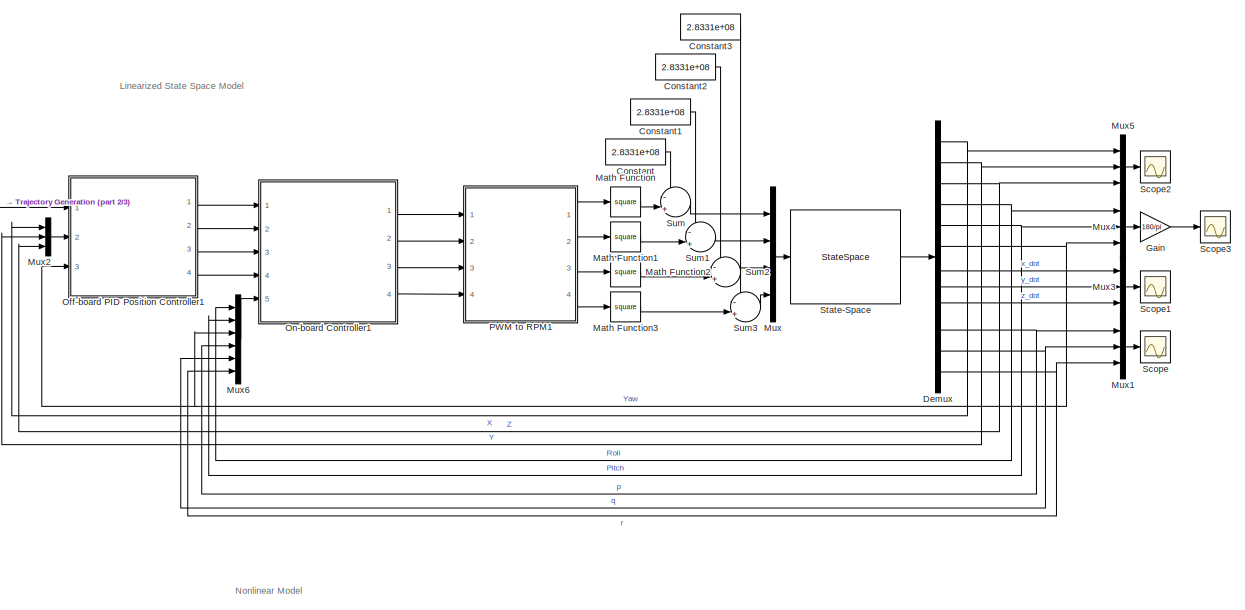
[diagram: root canvas - part 1/3, full width, top band]
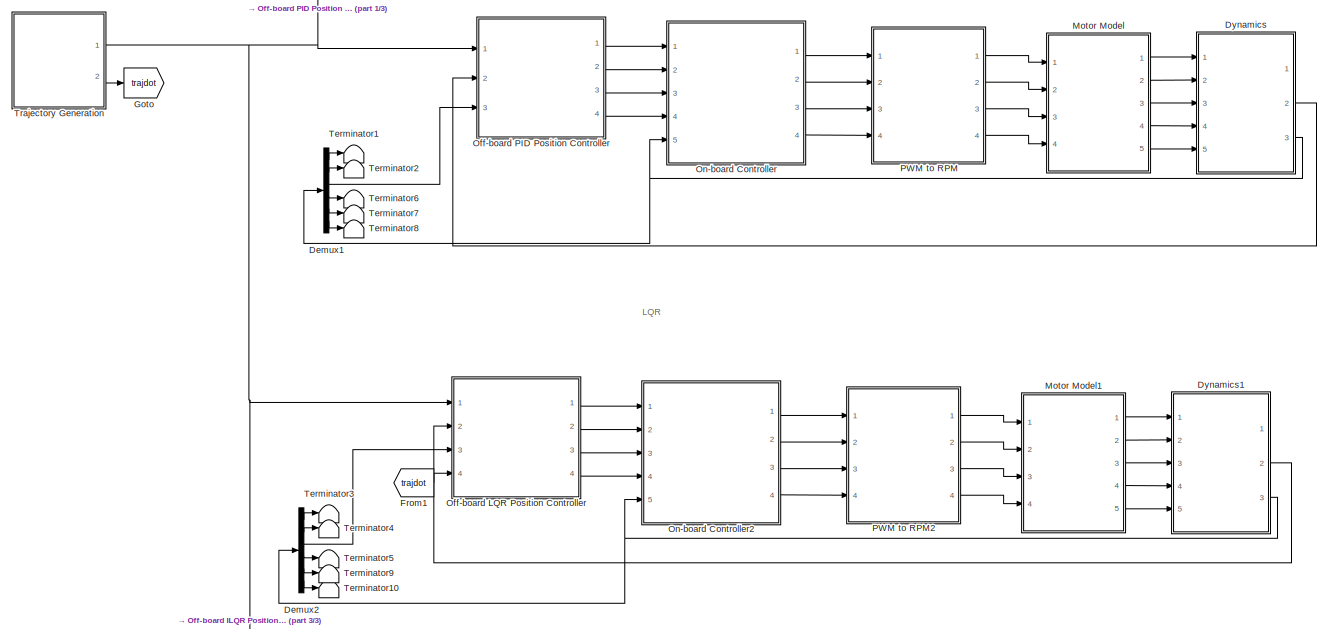
[diagram: root canvas - part 2/3, full width, middle band]
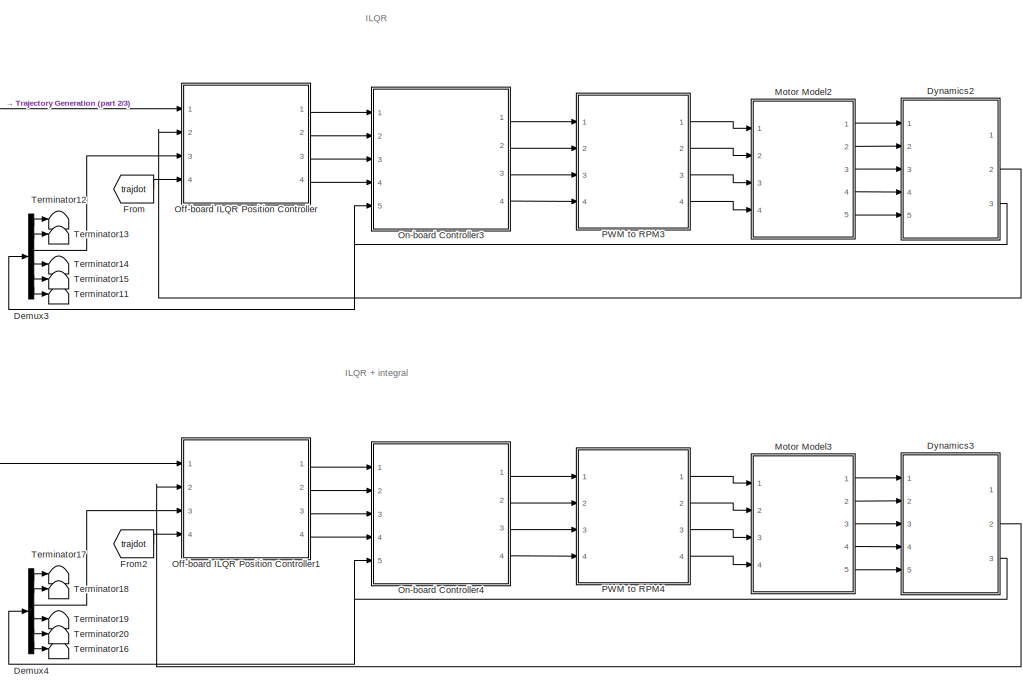
[diagram: root canvas - part 3/3, bottom center region]
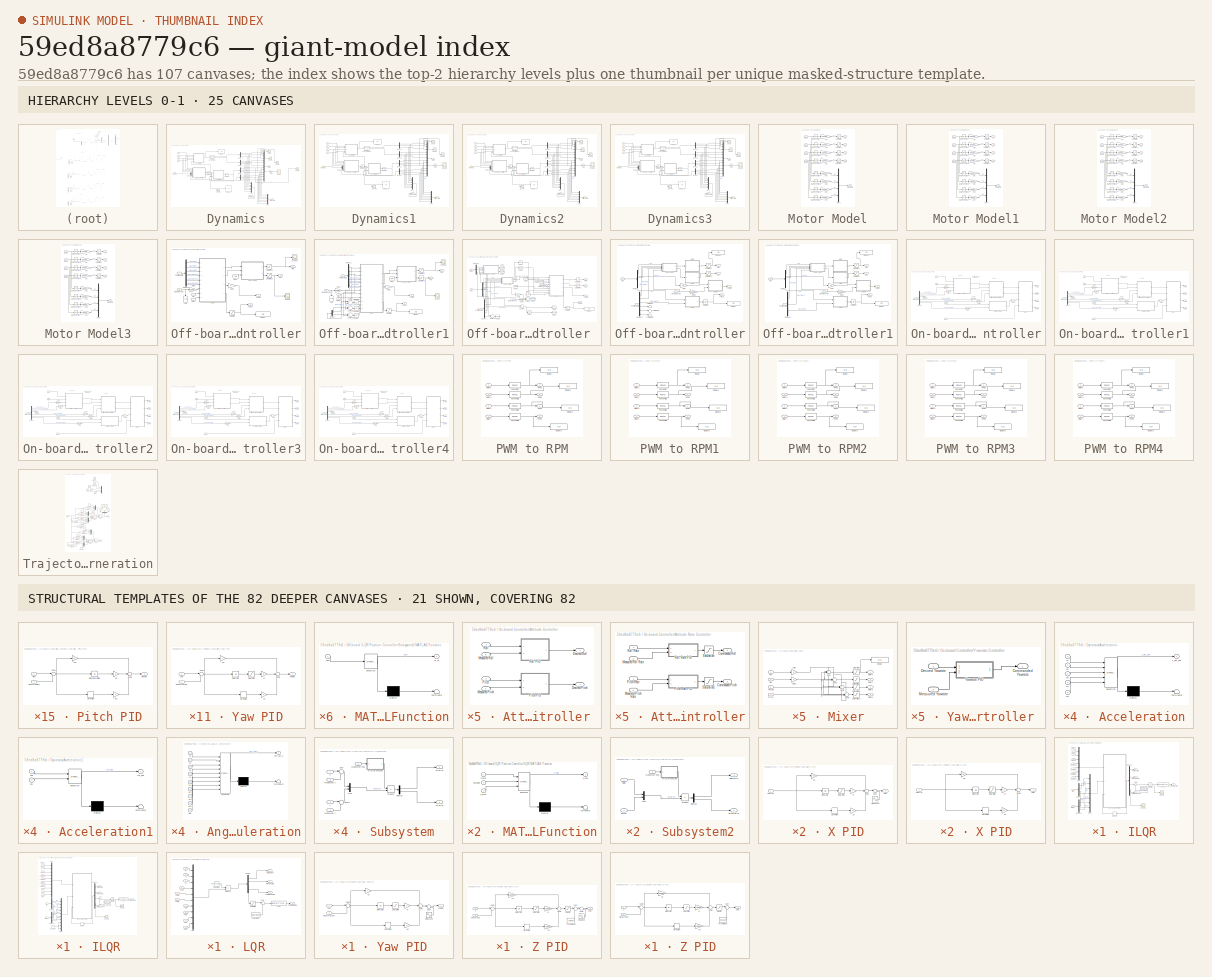
[diagram: thumbnail index - top-2 hierarchy levels (25 canvases) + 21 structural-template representatives of the remaining 82 canvases]
MODEL slx_59ed8a8779c6
KIND model
CONFIG AbsTol = auto
CONFIG FixedStep = 1/500
CONFIG MaxStep = auto
CONFIG MinStep = 1e-4
CONFIG RelTol = 1e-3
CONFIG SampleTimeConstraint = Unconstrained
CONFIG Solver = FixedStepAuto
CONFIG SolverMode = Auto
CONFIG SolverName = FixedStepAuto
CONFIG StartTime = 0.0
CONFIG StopTime = 18
BLOCK [Constant] Constant
  Commented = on
  Value = 2.8331e+08
BLOCK [Constant] Constant1
  Commented = on
  Value = 2.8331e+08
BLOCK [Constant] Constant2
  Commented = on
  Value = 2.8331e+08
BLOCK [Constant] Constant3
  Commented = on
  Value = 2.8331e+08
BLOCK [Demux] Demux
  Commented = on
  DisplayOption = bar
  Outputs = 12
  Ports = [1, 12]
BLOCK [Demux] Demux1
  DisplayOption = bar
  Outputs = 6
  Ports = [1, 6]
BLOCK [Demux] Demux2
  DisplayOption = bar
  Outputs = 6
  Ports = [1, 6]
BLOCK [Demux] Demux3
  DisplayOption = bar
  Outputs = 6
  Ports = [1, 6]
BLOCK [Demux] Demux4
  DisplayOption = bar
  Outputs = 6
  Ports = [1, 6]
BLOCK [SubSystem] Dynamics
  Ports = [5, 3]
  RequestExecContextInheritance = off
  Variant = off
BLOCK [SubSystem] Dynamics/Acceleration
  ErrorFcn = Stateflow.Translate.translate
  PermitHierarchicalResolution = ExplicitOnly
  Ports = [5, 1]
  RequestExecContextInheritance = off
  SFBlockType = MATLAB Function
  TreatAsAtomicUnit = on
  Variant = off
BLOCK [Demux] Dynamics/Acceleration/ Demux 
  Outputs = 1
  Ports = [1, 1]
BLOCK [S-Function] Dynamics/Acceleration/ SFunction 
  EnableBusSupport = on
  FunctionName = sf_sfun
  PortCounts = [5 2]
  Ports = [5, 2]
  SFunctionDeploymentMode = off
  Tag = Stateflow S-Function crazyflie 2
BLOCK [Terminator] Dynamics/Acceleration/ Terminator 
BLOCK [Inport] Dynamics/Acceleration/F1
  IconDisplay = Port number
BLOCK [Inport] Dynamics/Acceleration/F2
  IconDisplay = Port number
  Port = 2
BLOCK [Inport] Dynamics/Acceleration/F3
  IconDisplay = Port number
  Port = 3
BLOCK [Inport] Dynamics/Acceleration/F4
  IconDisplay = Port number
  Port = 4
BLOCK [Outport] Dynamics/Acceleration/r_dot_dot
  IconDisplay = Port number
BLOCK [Inport] Dynamics/Acceleration/rpy
  IconDisplay = Port number
  Port = 5
BLOCK [SubSystem] Dynamics/Acceleration1
  ErrorFcn = Stateflow.Translate.translate
  PermitHierarchicalResolution = ExplicitOnly
  Ports = [2, 1]
  RequestExecContextInheritance = off
  SFBlockType = MATLAB Function
  TreatAsAtomicUnit = on
  Variant = off
BLOCK [Demux] Dynamics/Acceleration1/ Demux 
  Outputs = 1
  Ports = [1, 1]
BLOCK [S-Function] Dynamics/Acceleration1/ SFunction 
  EnableBusSupport = on
  FunctionName = sf_sfun
  PortCounts = [2 2]
  Ports = [2, 2]
  SFunctionDeploymentMode = off
  Tag = Stateflow S-Function crazyflie 3
BLOCK [Terminator] Dynamics/Acceleration1/ Terminator 
BLOCK [Inport] Dynamics/Acceleration1/pqr
  IconDisplay = Port number
BLOCK [Inport] Dynamics/Acceleration1/rpy
  IconDisplay = Port number
  Port = 2
BLOCK [Outport] Dynamics/Acceleration1/rpy_dot
  IconDisplay = Port number
BLOCK [SubSystem] Dynamics/Angular Acceleration
  ErrorFcn = Stateflow.Translate.translate
  PermitHierarchicalResolution = ExplicitOnly
  Ports = [9, 1]
  RequestExecContextInheritance = off
  SFBlockType = MATLAB Function
  TreatAsAtomicUnit = on
  Variant = off
BLOCK [Demux] Dynamics/Angular Acceleration/ Demux 
  Outputs = 1
  Ports = [1, 1]
BLOCK [S-Function] Dynamics/Angular Acceleration/ SFunction 
  EnableBusSupport = on
  FunctionName = sf_sfun
  PortCounts = [9 2]
  Ports = [9, 2]
  SFunctionDeploymentMode = off
  Tag = Stateflow S-Function crazyflie 1
BLOCK [Terminator] Dynamics/Angular Acceleration/ Terminator 
BLOCK [Inport] Dynamics/Angular Acceleration/F1
  IconDisplay = Port number
BLOCK [Inport] Dynamics/Angular Acceleration/F2
  IconDisplay = Port number
  Port = 2
BLOCK [Inport] Dynamics/Angular Acceleration/F3
  IconDisplay = Port number
  Port = 3
BLOCK [Inport] Dynamics/Angular Acceleration/F4
  IconDisplay = Port number
  Port = 4
BLOCK [Inport] Dynamics/Angular Acceleration/M1
  IconDisplay = Port number
  Port = 5
BLOCK [Inport] Dynamics/Angular Acceleration/M2
  IconDisplay = Port number
  Port = 6
BLOCK [Inport] Dynamics/Angular Acceleration/M3
  IconDisplay = Port number
  Port = 7
BLOCK [Inport] Dynamics/Angular Acceleration/M4
  IconDisplay = Port number
  Port = 8
BLOCK [Inport] Dynamics/Angular Acceleration/pqr
  IconDisplay = Port number
  Port = 9
BLOCK [Outport] Dynamics/Angular Acceleration/pqr_dot_x
  IconDisplay = Port number
BLOCK [Outport] Dynamics/Attitude State
  IconDisplay = Port number
  Port = 3
BLOCK [Demux] Dynamics/Demux1
  DisplayOption = bar
  Outputs = 3
  Ports = [1, 3]
BLOCK [Demux] Dynamics/Demux2
  DisplayOption = bar
  Outputs = 3
  Ports = [1, 3]
BLOCK [Demux] Dynamics/Demux3
  DisplayOption = bar
  Outputs = 3
  Ports = [1, 3]
BLOCK [Demux] Dynamics/Demux5
  DisplayOption = bar
  Ports = [1, 4]
BLOCK [Demux] Dynamics/Demux6
  DisplayOption = bar
  Outputs = 3
  Ports = [1, 3]
BLOCK [Display] Dynamics/Display
  Decimation = 1
  Ports = [1]
BLOCK [Display] Dynamics/Display1
  Decimation = 1
  Ports = [1]
BLOCK [Inport] Dynamics/F1
  IconDisplay = Port number
BLOCK [Inport] Dynamics/F2
  IconDisplay = Port number
  Port = 2
BLOCK [Inport] Dynamics/F3
  IconDisplay = Port number
  Port = 3
BLOCK [Inport] Dynamics/F4
  IconDisplay = Port number
  Port = 4
BLOCK [Gain] Dynamics/Gain
  Gain = 180/pi
  OutDataTypeStr = Inherit: Inherit via internal rule
  ParamDataTypeStr = Inherit: Inherit via internal rule
  SaturateOnIntegerOverflow = off
BLOCK [Integrator] Dynamics/Integrator
  InitialCondition = [0;0;0]
  Ports = [1, 1]
BLOCK [SecondOrderIntegrator] Dynamics/Integrator, Second-Order
  ICDXDT = [0;0;0]
  ICX = [0;0;0]
  LimitDXDT = on
  LimitX = on
  LowerLimitDXDT = -Inf
  LowerLimitX = [-inf,-inf,0]
  Ports = [1, 2]
  StateNameDXDT = ['dx', 'dy', 'dz']
  StateNameX = ['x', 'y', 'z']
  UpperLimitDXDT = Inf
  UpperLimitX = [inf,inf,inf]
BLOCK [Integrator] Dynamics/Integrator1
  InitialCondition = [0;0;0]
  Ports = [1, 1]
BLOCK [Inport] Dynamics/Moments
  IconDisplay = Port number
  Port = 5
BLOCK [Mux] Dynamics/Mux
  DisplayOption = bar
  Inputs = 12
  Ports = [12, 1]
BLOCK [Mux] Dynamics/Mux1
  DisplayOption = bar
  Inputs = 6
  Ports = [6, 1]
BLOCK [Mux] Dynamics/Mux2
  DisplayOption = bar
  Inputs = 6
  Ports = [6, 1]
BLOCK [Outport] Dynamics/Position State
  IconDisplay = Port number
  Port = 2
BLOCK [Scope] Dynamics/Scope
  Ports = [1]
  ScopeSpecificationString = Simulink.scopes.TimeScopeBlockCfg('CurrentConfiguration', extmgr.ConfigurationSet(extmgr.Configuration('Core','General UI',true),extmgr.Configuration('Core','Source UI',true),extmgr.Configuration('Sources','WiredSimulink',true,'DataLoggingVariableName','x_pos','DataLogging',true,'DataLoggingSaveFormat','Array'),extmgr.Configuration('Visuals','Time Domain',true,'SerializedDisplays',{struct('MinYLim...<+1406ch>
BLOCK [Scope] Dynamics/Scope1
  Ports = [1]
  ScopeSpecificationString = Simulink.scopes.TimeScopeBlockCfg('CurrentConfiguration', extmgr.ConfigurationSet(extmgr.Configuration('Core','General UI',true),extmgr.Configuration('Core','Source UI',true),extmgr.Configuration('Sources','WiredSimulink',true,'DataLoggingVariableName','y_pos','DataLogging',true,'DataLoggingSaveFormat','Array'),extmgr.Configuration('Visuals','Time Domain',true,'SerializedDisplays',{struct('MinYLim...<+1435ch>
BLOCK [Scope] Dynamics/Scope2
  Ports = [1]
  ScopeSpecificationString = Simulink.scopes.TimeScopeBlockCfg('CurrentConfiguration', extmgr.ConfigurationSet(extmgr.Configuration('Core','General UI',true),extmgr.Configuration('Core','Source UI',true),extmgr.Configuration('Sources','WiredSimulink',true,'DataLoggingVariableName','ScopeData1'),extmgr.Configuration('Visuals','Time Domain',true,'SerializedDisplays',{struct('MinYLimReal','-0.00075','MaxYLimReal','0.00059','YLab...<+1423ch>  <repeated x4 — deduplicated; at blocks: Scope2>
BLOCK [Scope] Dynamics/Scope3
  Ports = [1]
  ScopeSpecificationString = Simulink.scopes.TimeScopeBlockCfg('CurrentConfiguration', extmgr.ConfigurationSet(extmgr.Configuration('Core','General UI',true),extmgr.Configuration('Core','Source UI',true),extmgr.Configuration('Sources','WiredSimulink',true,'DataLoggingVariableName','yaw_pos','DataLogging',true,'DataLoggingSaveFormat','Array'),extmgr.Configuration('Visuals','Time Domain',true,'SerializedDisplays',{struct('MinYL...<+1415ch>
BLOCK [Scope] Dynamics/Scope4
  Ports = [1]
  ScopeSpecificationString = Simulink.scopes.TimeScopeBlockCfg('CurrentConfiguration', extmgr.ConfigurationSet(extmgr.Configuration('Core','General UI',true),extmgr.Configuration('Core','Source UI',true),extmgr.Configuration('Sources','WiredSimulink',true,'DataLoggingVariableName','z_pos','DataLogging',true,'DataLoggingSaveFormat','Array'),extmgr.Configuration('Visuals','Time Domain',true,'SerializedDisplays',{struct('MinYLim...<+1434ch>
BLOCK [Scope] Dynamics/Scope5
  Ports = [1]
  ScopeSpecificationString = Simulink.scopes.TimeScopeBlockCfg('CurrentConfiguration', extmgr.ConfigurationSet(extmgr.Configuration('Core','General UI',true),extmgr.Configuration('Core','Source UI',true),extmgr.Configuration('Sources','WiredSimulink',true,'DataLoggingVariableName','ScopeData2'),extmgr.Configuration('Visuals','Time Domain',true,'SerializedDisplays',{struct('MinYLimReal','-0.19013','MaxYLimReal','0.34804','YLab...<+1363ch>
BLOCK [Outport] Dynamics/State
  IconDisplay = Port number
BLOCK [SubSystem] Dynamics1
  Ports = [5, 3]
  RequestExecContextInheritance = off
  Variant = off
BLOCK [SubSystem] Dynamics1/Acceleration
  ErrorFcn = Stateflow.Translate.translate
  PermitHierarchicalResolution = ExplicitOnly
  Ports = [5, 1]
  RequestExecContextInheritance = off
  SFBlockType = MATLAB Function
  TreatAsAtomicUnit = on
  Variant = off
BLOCK [Demux] Dynamics1/Acceleration/ Demux 
  Outputs = 1
  Ports = [1, 1]
BLOCK [S-Function] Dynamics1/Acceleration/ SFunction 
  EnableBusSupport = on
  FunctionName = sf_sfun
  PortCounts = [5 2]
  Ports = [5, 2]
  SFunctionDeploymentMode = off
  Tag = Stateflow S-Function crazyflie 6
BLOCK [Terminator] Dynamics1/Acceleration/ Terminator 
BLOCK [Inport] Dynamics1/Acceleration/F1
  IconDisplay = Port number
BLOCK [Inport] Dynamics1/Acceleration/F2
  IconDisplay = Port number
  Port = 2
BLOCK [Inport] Dynamics1/Acceleration/F3
  IconDisplay = Port number
  Port = 3
BLOCK [Inport] Dynamics1/Acceleration/F4
  IconDisplay = Port number
  Port = 4
BLOCK [Outport] Dynamics1/Acceleration/r_dot_dot
  IconDisplay = Port number
BLOCK [Inport] Dynamics1/Acceleration/rpy
  IconDisplay = Port number
  Port = 5
BLOCK [SubSystem] Dynamics1/Acceleration1
  ErrorFcn = Stateflow.Translate.translate
  PermitHierarchicalResolution = ExplicitOnly
  Ports = [2, 1]
  RequestExecContextInheritance = off
  SFBlockType = MATLAB Function
  TreatAsAtomicUnit = on
  Variant = off
BLOCK [Demux] Dynamics1/Acceleration1/ Demux 
  Outputs = 1
  Ports = [1, 1]
BLOCK [S-Function] Dynamics1/Acceleration1/ SFunction 
  EnableBusSupport = on
  FunctionName = sf_sfun
  PortCounts = [2 2]
  Ports = [2, 2]
  SFunctionDeploymentMode = off
  Tag = Stateflow S-Function crazyflie 7
BLOCK [Terminator] Dynamics1/Acceleration1/ Terminator 
BLOCK [Inport] Dynamics1/Acceleration1/pqr
  IconDisplay = Port number
BLOCK [Inport] Dynamics1/Acceleration1/rpy
  IconDisplay = Port number
  Port = 2
BLOCK [Outport] Dynamics1/Acceleration1/rpy_dot
  IconDisplay = Port number
BLOCK [SubSystem] Dynamics1/Angular Acceleration
  ErrorFcn = Stateflow.Translate.translate
  PermitHierarchicalResolution = ExplicitOnly
  Ports = [9, 1]
  RequestExecContextInheritance = off
  SFBlockType = MATLAB Function
  TreatAsAtomicUnit = on
  Variant = off
BLOCK [Demux] Dynamics1/Angular Acceleration/ Demux 
  Outputs = 1
  Ports = [1, 1]
BLOCK [S-Function] Dynamics1/Angular Acceleration/ SFunction 
  EnableBusSupport = on
  FunctionName = sf_sfun
  PortCounts = [9 2]
  Ports = [9, 2]
  SFunctionDeploymentMode = off
  Tag = Stateflow S-Function crazyflie 8
BLOCK [Terminator] Dynamics1/Angular Acceleration/ Terminator 
BLOCK [Inport] Dynamics1/Angular Acceleration/F1
  IconDisplay = Port number
BLOCK [Inport] Dynamics1/Angular Acceleration/F2
  IconDisplay = Port number
  Port = 2
BLOCK [Inport] Dynamics1/Angular Acceleration/F3
  IconDisplay = Port number
  Port = 3
BLOCK [Inport] Dynamics1/Angular Acceleration/F4
  IconDisplay = Port number
  Port = 4
BLOCK [Inport] Dynamics1/Angular Acceleration/M1
  IconDisplay = Port number
  Port = 5
BLOCK [Inport] Dynamics1/Angular Acceleration/M2
  IconDisplay = Port number
  Port = 6
BLOCK [Inport] Dynamics1/Angular Acceleration/M3
  IconDisplay = Port number
  Port = 7
BLOCK [Inport] Dynamics1/Angular Acceleration/M4
  IconDisplay = Port number
  Port = 8
BLOCK [Inport] Dynamics1/Angular Acceleration/pqr
  IconDisplay = Port number
  Port = 9
BLOCK [Outport] Dynamics1/Angular Acceleration/pqr_dot_x
  IconDisplay = Port number
BLOCK [Outport] Dynamics1/Attitude State
  IconDisplay = Port number
  Port = 3
BLOCK [Demux] Dynamics1/Demux1
  DisplayOption = bar
  Outputs = 3
  Ports = [1, 3]
BLOCK [Demux] Dynamics1/Demux2
  DisplayOption = bar
  Outputs = 3
  Ports = [1, 3]
BLOCK [Demux] Dynamics1/Demux3
  DisplayOption = bar
  Outputs = 3
  Ports = [1, 3]
BLOCK [Demux] Dynamics1/Demux5
  DisplayOption = bar
  Ports = [1, 4]
BLOCK [Demux] Dynamics1/Demux6
  DisplayOption = bar
  Outputs = 3
  Ports = [1, 3]
BLOCK [Display] Dynamics1/Display
  Decimation = 1
  Ports = [1]
BLOCK [Display] Dynamics1/Display1
  Decimation = 1
  Ports = [1]
BLOCK [Inport] Dynamics1/F1
  IconDisplay = Port number
BLOCK [Inport] Dynamics1/F2
  IconDisplay = Port number
  Port = 2
BLOCK [Inport] Dynamics1/F3
  IconDisplay = Port number
  Port = 3
BLOCK [Inport] Dynamics1/F4
  IconDisplay = Port number
  Port = 4
BLOCK [Gain] Dynamics1/Gain
  Gain = 180/pi
  OutDataTypeStr = Inherit: Inherit via internal rule
  ParamDataTypeStr = Inherit: Inherit via internal rule
  SaturateOnIntegerOverflow = off
BLOCK [Integrator] Dynamics1/Integrator
  InitialCondition = [0;0;0]
  Ports = [1, 1]
BLOCK [SecondOrderIntegrator] Dynamics1/Integrator, Second-Order
  ICDXDT = [0;0;0]
  ICX = [0;0;0]
  LimitDXDT = on
  LimitX = on
  LowerLimitDXDT = -Inf
  LowerLimitX = [-inf,-inf,0]
  Ports = [1, 2]
  StateNameDXDT = ['dx', 'dy', 'dz']
  StateNameX = ['x', 'y', 'z']
  UpperLimitDXDT = Inf
  UpperLimitX = [inf,inf,inf]
BLOCK [Integrator] Dynamics1/Integrator1
  InitialCondition = [0;0;0]
  Ports = [1, 1]
BLOCK [Inport] Dynamics1/Moments
  IconDisplay = Port number
  Port = 5
BLOCK [Mux] Dynamics1/Mux
  DisplayOption = bar
  Inputs = 12
  Ports = [12, 1]
BLOCK [Mux] Dynamics1/Mux1
  DisplayOption = bar
  Inputs = 6
  Ports = [6, 1]
BLOCK [Mux] Dynamics1/Mux2
  DisplayOption = bar
  Inputs = 6
  Ports = [6, 1]
BLOCK [Outport] Dynamics1/Position State
  IconDisplay = Port number
  Port = 2
BLOCK [Scope] Dynamics1/Scope
  Ports = [1]
  ScopeSpecificationString = Simulink.scopes.TimeScopeBlockCfg('CurrentConfiguration', extmgr.ConfigurationSet(extmgr.Configuration('Core','General UI',true),extmgr.Configuration('Core','Source UI',true),extmgr.Configuration('Sources','WiredSimulink',true,'DataLoggingVariableName','x_lqr','DataLoggingSaveFormat','Array','DataLogging',true),extmgr.Configuration('Visuals','Time Domain',true,'SerializedDisplays',{struct('MinYLim...<+1406ch>
BLOCK [Scope] Dynamics1/Scope1
  Ports = [1]
  ScopeSpecificationString = Simulink.scopes.TimeScopeBlockCfg('CurrentConfiguration', extmgr.ConfigurationSet(extmgr.Configuration('Core','General UI',true),extmgr.Configuration('Core','Source UI',true),extmgr.Configuration('Sources','WiredSimulink',true,'DataLoggingVariableName','y_lqr','DataLoggingSaveFormat','Array','DataLogging',true),extmgr.Configuration('Visuals','Time Domain',true,'SerializedDisplays',{struct('MinYLim...<+1435ch>
BLOCK [Scope] Dynamics1/Scope2
  Ports = [1]
BLOCK [Scope] Dynamics1/Scope3
  Ports = [1]
  ScopeSpecificationString = Simulink.scopes.TimeScopeBlockCfg('CurrentConfiguration', extmgr.ConfigurationSet(extmgr.Configuration('Core','General UI',true),extmgr.Configuration('Core','Source UI',true),extmgr.Configuration('Sources','WiredSimulink',true,'DataLoggingVariableName','yaw_lqr','DataLoggingSaveFormat','Array','DataLogging',true),extmgr.Configuration('Visuals','Time Domain',true,'SerializedDisplays',{struct('MinYL...<+1415ch>
BLOCK [Scope] Dynamics1/Scope4
  Ports = [1]
  ScopeSpecificationString = Simulink.scopes.TimeScopeBlockCfg('CurrentConfiguration', extmgr.ConfigurationSet(extmgr.Configuration('Core','General UI',true),extmgr.Configuration('Core','Source UI',true),extmgr.Configuration('Sources','WiredSimulink',true,'DataLoggingVariableName','z_lqr','DataLoggingSaveFormat','Array','DataLogging',true),extmgr.Configuration('Visuals','Time Domain',true,'SerializedDisplays',{struct('MinYLim...<+1433ch>
BLOCK [Outport] Dynamics1/State
  IconDisplay = Port number
BLOCK [SubSystem] Dynamics2
  Ports = [5, 3]
  RequestExecContextInheritance = off
  Variant = off
BLOCK [SubSystem] Dynamics2/Acceleration
  ErrorFcn = Stateflow.Translate.translate
  PermitHierarchicalResolution = ExplicitOnly
  Ports = [5, 1]
  RequestExecContextInheritance = off
  SFBlockType = MATLAB Function
  TreatAsAtomicUnit = on
  Variant = off
BLOCK [Demux] Dynamics2/Acceleration/ Demux 
  Outputs = 1
  Ports = [1, 1]
BLOCK [S-Function] Dynamics2/Acceleration/ SFunction 
  EnableBusSupport = on
  FunctionName = sf_sfun
  PortCounts = [5 2]
  Ports = [5, 2]
  SFunctionDeploymentMode = off
  Tag = Stateflow S-Function crazyflie 10
BLOCK [Terminator] Dynamics2/Acceleration/ Terminator 
BLOCK [Inport] Dynamics2/Acceleration/F1
  IconDisplay = Port number
BLOCK [Inport] Dynamics2/Acceleration/F2
  IconDisplay = Port number
  Port = 2
BLOCK [Inport] Dynamics2/Acceleration/F3
  IconDisplay = Port number
  Port = 3
BLOCK [Inport] Dynamics2/Acceleration/F4
  IconDisplay = Port number
  Port = 4
BLOCK [Outport] Dynamics2/Acceleration/r_dot_dot
  IconDisplay = Port number
BLOCK [Inport] Dynamics2/Acceleration/rpy
  IconDisplay = Port number
  Port = 5
BLOCK [SubSystem] Dynamics2/Acceleration1
  ErrorFcn = Stateflow.Translate.translate
  PermitHierarchicalResolution = ExplicitOnly
  Ports = [2, 1]
  RequestExecContextInheritance = off
  SFBlockType = MATLAB Function
  TreatAsAtomicUnit = on
  Variant = off
BLOCK [Demux] Dynamics2/Acceleration1/ Demux 
  Outputs = 1
  Ports = [1, 1]
BLOCK [S-Function] Dynamics2/Acceleration1/ SFunction 
  EnableBusSupport = on
  FunctionName = sf_sfun
  PortCounts = [2 2]
  Ports = [2, 2]
  SFunctionDeploymentMode = off
  Tag = Stateflow S-Function crazyflie 11
BLOCK [Terminator] Dynamics2/Acceleration1/ Terminator 
BLOCK [Inport] Dynamics2/Acceleration1/pqr
  IconDisplay = Port number
BLOCK [Inport] Dynamics2/Acceleration1/rpy
  IconDisplay = Port number
  Port = 2
BLOCK [Outport] Dynamics2/Acceleration1/rpy_dot
  IconDisplay = Port number
BLOCK [SubSystem] Dynamics2/Angular Acceleration
  ErrorFcn = Stateflow.Translate.translate
  PermitHierarchicalResolution = ExplicitOnly
  Ports = [9, 1]
  RequestExecContextInheritance = off
  SFBlockType = MATLAB Function
  TreatAsAtomicUnit = on
  Variant = off
BLOCK [Demux] Dynamics2/Angular Acceleration/ Demux 
  Outputs = 1
  Ports = [1, 1]
BLOCK [S-Function] Dynamics2/Angular Acceleration/ SFunction 
  EnableBusSupport = on
  FunctionName = sf_sfun
  PortCounts = [9 2]
  Ports = [9, 2]
  SFunctionDeploymentMode = off
  Tag = Stateflow S-Function crazyflie 12
BLOCK [Terminator] Dynamics2/Angular Acceleration/ Terminator 
BLOCK [Inport] Dynamics2/Angular Acceleration/F1
  IconDisplay = Port number
BLOCK [Inport] Dynamics2/Angular Acceleration/F2
  IconDisplay = Port number
  Port = 2
BLOCK [Inport] Dynamics2/Angular Acceleration/F3
  IconDisplay = Port number
  Port = 3
BLOCK [Inport] Dynamics2/Angular Acceleration/F4
  IconDisplay = Port number
  Port = 4
BLOCK [Inport] Dynamics2/Angular Acceleration/M1
  IconDisplay = Port number
  Port = 5
BLOCK [Inport] Dynamics2/Angular Acceleration/M2
  IconDisplay = Port number
  Port = 6
BLOCK [Inport] Dynamics2/Angular Acceleration/M3
  IconDisplay = Port number
  Port = 7
BLOCK [Inport] Dynamics2/Angular Acceleration/M4
  IconDisplay = Port number
  Port = 8
BLOCK [Inport] Dynamics2/Angular Acceleration/pqr
  IconDisplay = Port number
  Port = 9
BLOCK [Outport] Dynamics2/Angular Acceleration/pqr_dot_x
  IconDisplay = Port number
BLOCK [Outport] Dynamics2/Attitude State
  IconDisplay = Port number
  Port = 3
BLOCK [Demux] Dynamics2/Demux1
  DisplayOption = bar
  Outputs = 3
  Ports = [1, 3]
BLOCK [Demux] Dynamics2/Demux2
  DisplayOption = bar
  Outputs = 3
  Ports = [1, 3]
BLOCK [Demux] Dynamics2/Demux3
  DisplayOption = bar
  Outputs = 3
  Ports = [1, 3]
BLOCK [Demux] Dynamics2/Demux5
  DisplayOption = bar
  Ports = [1, 4]
BLOCK [Demux] Dynamics2/Demux6
  DisplayOption = bar
  Outputs = 3
  Ports = [1, 3]
BLOCK [Display] Dynamics2/Display
  Decimation = 1
  Ports = [1]
BLOCK [Display] Dynamics2/Display1
  Decimation = 1
  Ports = [1]
BLOCK [Inport] Dynamics2/F1
  IconDisplay = Port number
BLOCK [Inport] Dynamics2/F2
  IconDisplay = Port number
  Port = 2
BLOCK [Inport] Dynamics2/F3
  IconDisplay = Port number
  Port = 3
BLOCK [Inport] Dynamics2/F4
  IconDisplay = Port number
  Port = 4
BLOCK [Gain] Dynamics2/Gain
  Gain = 180/pi
  OutDataTypeStr = Inherit: Inherit via internal rule
  ParamDataTypeStr = Inherit: Inherit via internal rule
  SaturateOnIntegerOverflow = off
BLOCK [Integrator] Dynamics2/Integrator
  InitialCondition = [0;0;0]
  Ports = [1, 1]
BLOCK [SecondOrderIntegrator] Dynamics2/Integrator, Second-Order
  ICDXDT = [0;0;0]
  ICX = [0;0;0]
  LimitDXDT = on
  LimitX = on
  LowerLimitDXDT = -Inf
  LowerLimitX = [-inf,-inf,0]
  Ports = [1, 2]
  StateNameDXDT = ['dx', 'dy', 'dz']
  StateNameX = ['x', 'y', 'z']
  UpperLimitDXDT = Inf
  UpperLimitX = [inf,inf,inf]
BLOCK [Integrator] Dynamics2/Integrator1
  InitialCondition = [0;0;0]
  Ports = [1, 1]
BLOCK [Inport] Dynamics2/Moments
  IconDisplay = Port number
  Port = 5
BLOCK [Mux] Dynamics2/Mux
  DisplayOption = bar
  Inputs = 12
  Ports = [12, 1]
BLOCK [Mux] Dynamics2/Mux1
  DisplayOption = bar
  Inputs = 6
  Ports = [6, 1]
BLOCK [Mux] Dynamics2/Mux2
  DisplayOption = bar
  Inputs = 6
  Ports = [6, 1]
BLOCK [Outport] Dynamics2/Position State
  IconDisplay = Port number
  Port = 2
BLOCK [Scope] Dynamics2/Scope
  Ports = [1]
  ScopeSpecificationString = Simulink.scopes.TimeScopeBlockCfg('CurrentConfiguration', extmgr.ConfigurationSet(extmgr.Configuration('Core','General UI',true),extmgr.Configuration('Core','Source UI',true),extmgr.Configuration('Sources','WiredSimulink',true,'DataLoggingVariableName','x_ilqr','DataLoggingSaveFormat','Array','DataLogging',true),extmgr.Configuration('Visuals','Time Domain',true,'SerializedDisplays',{struct('MinYLi...<+1407ch>
BLOCK [Scope] Dynamics2/Scope1
  Ports = [1]
  ScopeSpecificationString = Simulink.scopes.TimeScopeBlockCfg('CurrentConfiguration', extmgr.ConfigurationSet(extmgr.Configuration('Core','General UI',true),extmgr.Configuration('Core','Source UI',true),extmgr.Configuration('Sources','WiredSimulink',true,'DataLoggingVariableName','y_ilqr','DataLoggingSaveFormat','Array','DataLogging',true),extmgr.Configuration('Visuals','Time Domain',true,'SerializedDisplays',{struct('MinYLi...<+1436ch>
BLOCK [Scope] Dynamics2/Scope2
  Ports = [1]
BLOCK [Scope] Dynamics2/Scope3
  Ports = [1]
  ScopeSpecificationString = Simulink.scopes.TimeScopeBlockCfg('CurrentConfiguration', extmgr.ConfigurationSet(extmgr.Configuration('Core','General UI',true),extmgr.Configuration('Core','Source UI',true),extmgr.Configuration('Sources','WiredSimulink',true,'DataLoggingVariableName','yaw_ilqr','DataLoggingSaveFormat','Array','DataLogging',true),extmgr.Configuration('Visuals','Time Domain',true,'SerializedDisplays',{struct('MinY...<+1422ch>
BLOCK [Scope] Dynamics2/Scope4
  Ports = [1]
  ScopeSpecificationString = Simulink.scopes.TimeScopeBlockCfg('CurrentConfiguration', extmgr.ConfigurationSet(extmgr.Configuration('Core','General UI',true),extmgr.Configuration('Core','Source UI',true),extmgr.Configuration('Sources','WiredSimulink',true,'DataLoggingVariableName','z_ilqr','DataLoggingSaveFormat','Array','DataLogging',true),extmgr.Configuration('Visuals','Time Domain',true,'SerializedDisplays',{struct('MinYLi...<+1434ch>
BLOCK [Outport] Dynamics2/State
  IconDisplay = Port number
BLOCK [SubSystem] Dynamics3
  Ports = [5, 3]
  RequestExecContextInheritance = off
  Variant = off
BLOCK [SubSystem] Dynamics3/Acceleration
  ErrorFcn = Stateflow.Translate.translate
  PermitHierarchicalResolution = ExplicitOnly
  Ports = [5, 1]
  RequestExecContextInheritance = off
  SFBlockType = MATLAB Function
  TreatAsAtomicUnit = on
  Variant = off
BLOCK [Demux] Dynamics3/Acceleration/ Demux 
  Outputs = 1
  Ports = [1, 1]
BLOCK [S-Function] Dynamics3/Acceleration/ SFunction 
  EnableBusSupport = on
  FunctionName = sf_sfun
  PortCounts = [5 2]
  Ports = [5, 2]
  SFunctionDeploymentMode = off
  Tag = Stateflow S-Function crazyflie 15
BLOCK [Terminator] Dynamics3/Acceleration/ Terminator 
BLOCK [Inport] Dynamics3/Acceleration/F1
  IconDisplay = Port number
BLOCK [Inport] Dynamics3/Acceleration/F2
  IconDisplay = Port number
  Port = 2
BLOCK [Inport] Dynamics3/Acceleration/F3
  IconDisplay = Port number
  Port = 3
BLOCK [Inport] Dynamics3/Acceleration/F4
  IconDisplay = Port number
  Port = 4
BLOCK [Outport] Dynamics3/Acceleration/r_dot_dot
  IconDisplay = Port number
BLOCK [Inport] Dynamics3/Acceleration/rpy
  IconDisplay = Port number
  Port = 5
BLOCK [SubSystem] Dynamics3/Acceleration1
  ErrorFcn = Stateflow.Translate.translate
  PermitHierarchicalResolution = ExplicitOnly
  Ports = [2, 1]
  RequestExecContextInheritance = off
  SFBlockType = MATLAB Function
  TreatAsAtomicUnit = on
  Variant = off
BLOCK [Demux] Dynamics3/Acceleration1/ Demux 
  Outputs = 1
  Ports = [1, 1]
BLOCK [S-Function] Dynamics3/Acceleration1/ SFunction 
  EnableBusSupport = on
  FunctionName = sf_sfun
  PortCounts = [2 2]
  Ports = [2, 2]
  SFunctionDeploymentMode = off
  Tag = Stateflow S-Function crazyflie 17
BLOCK [Terminator] Dynamics3/Acceleration1/ Terminator 
BLOCK [Inport] Dynamics3/Acceleration1/pqr
  IconDisplay = Port number
BLOCK [Inport] Dynamics3/Acceleration1/rpy
  IconDisplay = Port number
  Port = 2
BLOCK [Outport] Dynamics3/Acceleration1/rpy_dot
  IconDisplay = Port number
BLOCK [SubSystem] Dynamics3/Angular Acceleration
  ErrorFcn = Stateflow.Translate.translate
  PermitHierarchicalResolution = ExplicitOnly
  Ports = [9, 1]
  RequestExecContextInheritance = off
  SFBlockType = MATLAB Function
  TreatAsAtomicUnit = on
  Variant = off
BLOCK [Demux] Dynamics3/Angular Acceleration/ Demux 
  Outputs = 1
  Ports = [1, 1]
BLOCK [S-Function] Dynamics3/Angular Acceleration/ SFunction 
  EnableBusSupport = on
  FunctionName = sf_sfun
  PortCounts = [9 2]
  Ports = [9, 2]
  SFunctionDeploymentMode = off
  Tag = Stateflow S-Function crazyflie 18
BLOCK [Terminator] Dynamics3/Angular Acceleration/ Terminator 
BLOCK [Inport] Dynamics3/Angular Acceleration/F1
  IconDisplay = Port number
BLOCK [Inport] Dynamics3/Angular Acceleration/F2
  IconDisplay = Port number
  Port = 2
BLOCK [Inport] Dynamics3/Angular Acceleration/F3
  IconDisplay = Port number
  Port = 3
BLOCK [Inport] Dynamics3/Angular Acceleration/F4
  IconDisplay = Port number
  Port = 4
BLOCK [Inport] Dynamics3/Angular Acceleration/M1
  IconDisplay = Port number
  Port = 5
BLOCK [Inport] Dynamics3/Angular Acceleration/M2
  IconDisplay = Port number
  Port = 6
BLOCK [Inport] Dynamics3/Angular Acceleration/M3
  IconDisplay = Port number
  Port = 7
BLOCK [Inport] Dynamics3/Angular Acceleration/M4
  IconDisplay = Port number
  Port = 8
BLOCK [Inport] Dynamics3/Angular Acceleration/pqr
  IconDisplay = Port number
  Port = 9
BLOCK [Outport] Dynamics3/Angular Acceleration/pqr_dot_x
  IconDisplay = Port number
BLOCK [Outport] Dynamics3/Attitude State
  IconDisplay = Port number
  Port = 3
BLOCK [Demux] Dynamics3/Demux1
  DisplayOption = bar
  Outputs = 3
  Ports = [1, 3]
BLOCK [Demux] Dynamics3/Demux2
  DisplayOption = bar
  Outputs = 3
  Ports = [1, 3]
BLOCK [Demux] Dynamics3/Demux3
  DisplayOption = bar
  Outputs = 3
  Ports = [1, 3]
BLOCK [Demux] Dynamics3/Demux5
  DisplayOption = bar
  Ports = [1, 4]
BLOCK [Demux] Dynamics3/Demux6
  DisplayOption = bar
  Outputs = 3
  Ports = [1, 3]
BLOCK [Display] Dynamics3/Display
  Decimation = 1
  Ports = [1]
BLOCK [Display] Dynamics3/Display1
  Decimation = 1
  Ports = [1]
BLOCK [Inport] Dynamics3/F1
  IconDisplay = Port number
BLOCK [Inport] Dynamics3/F2
  IconDisplay = Port number
  Port = 2
BLOCK [Inport] Dynamics3/F3
  IconDisplay = Port number
  Port = 3
BLOCK [Inport] Dynamics3/F4
  IconDisplay = Port number
  Port = 4
BLOCK [Gain] Dynamics3/Gain
  Gain = 180/pi
  OutDataTypeStr = Inherit: Inherit via internal rule
  ParamDataTypeStr = Inherit: Inherit via internal rule
  SaturateOnIntegerOverflow = off
BLOCK [Integrator] Dynamics3/Integrator
  InitialCondition = [0;0;0]
  Ports = [1, 1]
BLOCK [SecondOrderIntegrator] Dynamics3/Integrator, Second-Order
  ICDXDT = [0;0;0]
  ICX = [0;0;0]
  LimitDXDT = on
  LimitX = on
  LowerLimitDXDT = -Inf
  LowerLimitX = [-inf,-inf,0]
  Ports = [1, 2]
  StateNameDXDT = ['dx', 'dy', 'dz']
  StateNameX = ['x', 'y', 'z']
  UpperLimitDXDT = Inf
  UpperLimitX = [inf,inf,inf]
BLOCK [Integrator] Dynamics3/Integrator1
  InitialCondition = [0;0;0]
  Ports = [1, 1]
BLOCK [Inport] Dynamics3/Moments
  IconDisplay = Port number
  Port = 5
BLOCK [Mux] Dynamics3/Mux
  DisplayOption = bar
  Inputs = 12
  Ports = [12, 1]
BLOCK [Mux] Dynamics3/Mux1
  DisplayOption = bar
  Inputs = 6
  Ports = [6, 1]
BLOCK [Mux] Dynamics3/Mux2
  DisplayOption = bar
  Inputs = 6
  Ports = [6, 1]
BLOCK [Outport] Dynamics3/Position State
  IconDisplay = Port number
  Port = 2
BLOCK [Scope] Dynamics3/Scope
  Ports = [1]
  ScopeSpecificationString = Simulink.scopes.TimeScopeBlockCfg('CurrentConfiguration', extmgr.ConfigurationSet(extmgr.Configuration('Core','General UI',true),extmgr.Configuration('Core','Source UI',true),extmgr.Configuration('Sources','WiredSimulink',true,'DataLoggingVariableName','x_ilqri','DataLoggingSaveFormat','Array','DataLogging',true),extmgr.Configuration('Visuals','Time Domain',true,'SerializedDisplays',{struct('MinYL...<+1404ch>
BLOCK [Scope] Dynamics3/Scope1
  Ports = [1]
  ScopeSpecificationString = Simulink.scopes.TimeScopeBlockCfg('CurrentConfiguration', extmgr.ConfigurationSet(extmgr.Configuration('Core','General UI',true),extmgr.Configuration('Core','Source UI',true),extmgr.Configuration('Sources','WiredSimulink',true,'DataLoggingVariableName','y_ilqri','DataLoggingSaveFormat','Array','DataLogging',true),extmgr.Configuration('Visuals','Time Domain',true,'SerializedDisplays',{struct('MinYL...<+1437ch>
BLOCK [Scope] Dynamics3/Scope2
  Ports = [1]
BLOCK [Scope] Dynamics3/Scope3
  Ports = [1]
  ScopeSpecificationString = Simulink.scopes.TimeScopeBlockCfg('CurrentConfiguration', extmgr.ConfigurationSet(extmgr.Configuration('Core','General UI',true),extmgr.Configuration('Core','Source UI',true),extmgr.Configuration('Sources','WiredSimulink',true,'DataLoggingVariableName','yaw_ilqri','DataLoggingSaveFormat','Array','DataLogging',true),extmgr.Configuration('Visuals','Time Domain',true,'SerializedDisplays',{struct('Min...<+1423ch>
BLOCK [Scope] Dynamics3/Scope4
  Ports = [1]
  ScopeSpecificationString = Simulink.scopes.TimeScopeBlockCfg('CurrentConfiguration', extmgr.ConfigurationSet(extmgr.Configuration('Core','General UI',true),extmgr.Configuration('Core','Source UI',true),extmgr.Configuration('Sources','WiredSimulink',true,'DataLoggingVariableName','z_ilqri','DataLoggingSaveFormat','Array','DataLogging',true),extmgr.Configuration('Visuals','Time Domain',true,'SerializedDisplays',{struct('MinYL...<+1431ch>
BLOCK [Outport] Dynamics3/State
  IconDisplay = Port number
BLOCK [From] From
  GotoTag = trajdot
BLOCK [From] From1
  GotoTag = trajdot
BLOCK [From] From2
  GotoTag = trajdot
BLOCK [Gain] Gain
  Commented = on
  Gain = 180/pi
  OutDataTypeStr = Inherit: Inherit via internal rule
  ParamDataTypeStr = Inherit: Inherit via internal rule
  SaturateOnIntegerOverflow = off
BLOCK [Goto] Goto
  GotoTag = trajdot
BLOCK [Math] Math Function
  Commented = on
  Operator = square
  Ports = [1, 1]
BLOCK [Math] Math Function1
  Commented = on
  Operator = square
  Ports = [1, 1]
BLOCK [Math] Math Function2
  Commented = on
  Operator = square
  Ports = [1, 1]
BLOCK [Math] Math Function3
  Commented = on
  Operator = square
  Ports = [1, 1]
BLOCK [SubSystem] Motor Model
  Ports = [4, 5]
  RequestExecContextInheritance = off
  Variant = off
BLOCK [Outport] Motor Model/F1
  IconDisplay = Port number
BLOCK [Outport] Motor Model/F2
  IconDisplay = Port number
  Port = 2
BLOCK [Outport] Motor Model/F3
  IconDisplay = Port number
  Port = 3
BLOCK [Outport] Motor Model/F4
  IconDisplay = Port number
  Port = 4
BLOCK [Gain] Motor Model/Kf1
  Gain = 3.836E-10
  OutDataTypeStr = Inherit: Inherit via internal rule
  ParamDataTypeStr = Inherit: Inherit via internal rule
  SaturateOnIntegerOverflow = off
BLOCK [Gain] Motor Model/Kf2
  Gain = 3.836E-10
  OutDataTypeStr = Inherit: Inherit via internal rule
  ParamDataTypeStr = Inherit: Inherit via internal rule
  SaturateOnIntegerOverflow = off
BLOCK [Gain] Motor Model/Kf3
  Gain = 3.836E-10
  OutDataTypeStr = Inherit: Inherit via internal rule
  ParamDataTypeStr = Inherit: Inherit via internal rule
  SaturateOnIntegerOverflow = off
BLOCK [Gain] Motor Model/Kf4
  Gain = 3.836E-10
  OutDataTypeStr = Inherit: Inherit via internal rule
  ParamDataTypeStr = Inherit: Inherit via internal rule
  SaturateOnIntegerOverflow = off
BLOCK [Gain] Motor Model/Km1
  Gain = 1.651E-12
  OutDataTypeStr = Inherit: Inherit via internal rule
  ParamDataTypeStr = Inherit: Inherit via internal rule
  SaturateOnIntegerOverflow = off
BLOCK [Gain] Motor Model/Km2
  Gain = 1.651E-12
  OutDataTypeStr = Inherit: Inherit via internal rule
  ParamDataTypeStr = Inherit: Inherit via internal rule
  SaturateOnIntegerOverflow = off
BLOCK [Gain] Motor Model/Km3
  Gain = 1.651E-12
  OutDataTypeStr = Inherit: Inherit via internal rule
  ParamDataTypeStr = Inherit: Inherit via internal rule
  SaturateOnIntegerOverflow = off
BLOCK [Gain] Motor Model/Km4
  Gain = 1.651E-12
  OutDataTypeStr = Inherit: Inherit via internal rule
  ParamDataTypeStr = Inherit: Inherit via internal rule
  SaturateOnIntegerOverflow = off
BLOCK [Math] Motor Model/Math Function
  Operator = square
  Ports = [1, 1]
BLOCK [Math] Motor Model/Math Function1
  Operator = square
  Ports = [1, 1]
BLOCK [Math] Motor Model/Math Function2
  Operator = square
  Ports = [1, 1]
BLOCK [Math] Motor Model/Math Function3
  Operator = square
  Ports = [1, 1]
BLOCK [Math] Motor Model/Math Function4
  Operator = square
  Ports = [1, 1]
BLOCK [Math] Motor Model/Math Function5
  Operator = square
  Ports = [1, 1]
BLOCK [Math] Motor Model/Math Function6
  Operator = square
  Ports = [1, 1]
BLOCK [Math] Motor Model/Math Function7
  Operator = square
  Ports = [1, 1]
BLOCK [Outport] Motor Model/Moments
  IconDisplay = Port number
  Port = 5
BLOCK [Mux] Motor Model/Mux1
  DisplayOption = bar
  Ports = [4, 1]
BLOCK [Inport] Motor Model/RPM 1
  IconDisplay = Port number
BLOCK [Inport] Motor Model/RPM 2
  IconDisplay = Port number
  Port = 2
BLOCK [Inport] Motor Model/RPM 3
  IconDisplay = Port number
  Port = 3
BLOCK [Inport] Motor Model/RPM 4
  IconDisplay = Port number
  Port = 4
BLOCK [Saturate] Motor Model/Saturation
  InputPortMap = u0
  LowerLimit = 0
  Ports = [1, 1]
  UpperLimit = .2
BLOCK [Saturate] Motor Model/Saturation1
  InputPortMap = u0
  LowerLimit = 0
  Ports = [1, 1]
  UpperLimit = .2
BLOCK [Saturate] Motor Model/Saturation2
  InputPortMap = u0
  LowerLimit = 0
  Ports = [1, 1]
  UpperLimit = .2
BLOCK [Saturate] Motor Model/Saturation3
  InputPortMap = u0
  LowerLimit = 0
  Ports = [1, 1]
  UpperLimit = .2
BLOCK [SubSystem] Motor Model1
  Ports = [4, 5]
  RequestExecContextInheritance = off
  Variant = off
BLOCK [Outport] Motor Model1/F1
  IconDisplay = Port number
BLOCK [Outport] Motor Model1/F2
  IconDisplay = Port number
  Port = 2
BLOCK [Outport] Motor Model1/F3
  IconDisplay = Port number
  Port = 3
BLOCK [Outport] Motor Model1/F4
  IconDisplay = Port number
  Port = 4
BLOCK [Gain] Motor Model1/Kf1
  Gain = 3.836E-10
  OutDataTypeStr = Inherit: Inherit via internal rule
  ParamDataTypeStr = Inherit: Inherit via internal rule
  SaturateOnIntegerOverflow = off
BLOCK [Gain] Motor Model1/Kf2
  Gain = 3.836E-10
  OutDataTypeStr = Inherit: Inherit via internal rule
  ParamDataTypeStr = Inherit: Inherit via internal rule
  SaturateOnIntegerOverflow = off
BLOCK [Gain] Motor Model1/Kf3
  Gain = 3.836E-10
  OutDataTypeStr = Inherit: Inherit via internal rule
  ParamDataTypeStr = Inherit: Inherit via internal rule
  SaturateOnIntegerOverflow = off
BLOCK [Gain] Motor Model1/Kf4
  Gain = 3.836E-10
  OutDataTypeStr = Inherit: Inherit via internal rule
  ParamDataTypeStr = Inherit: Inherit via internal rule
  SaturateOnIntegerOverflow = off
BLOCK [Gain] Motor Model1/Km1
  Gain = 1.651E-12
  OutDataTypeStr = Inherit: Inherit via internal rule
  ParamDataTypeStr = Inherit: Inherit via internal rule
  SaturateOnIntegerOverflow = off
BLOCK [Gain] Motor Model1/Km2
  Gain = 1.651E-12
  OutDataTypeStr = Inherit: Inherit via internal rule
  ParamDataTypeStr = Inherit: Inherit via internal rule
  SaturateOnIntegerOverflow = off
BLOCK [Gain] Motor Model1/Km3
  Gain = 1.651E-12
  OutDataTypeStr = Inherit: Inherit via internal rule
  ParamDataTypeStr = Inherit: Inherit via internal rule
  SaturateOnIntegerOverflow = off
BLOCK [Gain] Motor Model1/Km4
  Gain = 1.651E-12
  OutDataTypeStr = Inherit: Inherit via internal rule
  ParamDataTypeStr = Inherit: Inherit via internal rule
  SaturateOnIntegerOverflow = off
BLOCK [Math] Motor Model1/Math Function
  Operator = square
  Ports = [1, 1]
BLOCK [Math] Motor Model1/Math Function1
  Operator = square
  Ports = [1, 1]
BLOCK [Math] Motor Model1/Math Function2
  Operator = square
  Ports = [1, 1]
BLOCK [Math] Motor Model1/Math Function3
  Operator = square
  Ports = [1, 1]
BLOCK [Math] Motor Model1/Math Function4
  Operator = square
  Ports = [1, 1]
BLOCK [Math] Motor Model1/Math Function5
  Operator = square
  Ports = [1, 1]
BLOCK [Math] Motor Model1/Math Function6
  Operator = square
  Ports = [1, 1]
BLOCK [Math] Motor Model1/Math Function7
  Operator = square
  Ports = [1, 1]
BLOCK [Outport] Motor Model1/Moments
  IconDisplay = Port number
  Port = 5
BLOCK [Mux] Motor Model1/Mux1
  DisplayOption = bar
  Ports = [4, 1]
BLOCK [Inport] Motor Model1/RPM 1
  IconDisplay = Port number
BLOCK [Inport] Motor Model1/RPM 2
  IconDisplay = Port number
  Port = 2
BLOCK [Inport] Motor Model1/RPM 3
  IconDisplay = Port number
  Port = 3
BLOCK [Inport] Motor Model1/RPM 4
  IconDisplay = Port number
  Port = 4
BLOCK [Saturate] Motor Model1/Saturation
  InputPortMap = u0
  LowerLimit = 0
  Ports = [1, 1]
  UpperLimit = .2
BLOCK [Saturate] Motor Model1/Saturation1
  InputPortMap = u0
  LowerLimit = 0
  Ports = [1, 1]
  UpperLimit = .2
BLOCK [Saturate] Motor Model1/Saturation2
  InputPortMap = u0
  LowerLimit = 0
  Ports = [1, 1]
  UpperLimit = .2
BLOCK [Saturate] Motor Model1/Saturation3
  InputPortMap = u0
  LowerLimit = 0
  Ports = [1, 1]
  UpperLimit = .2
BLOCK [SubSystem] Motor Model2
  Ports = [4, 5]
  RequestExecContextInheritance = off
  Variant = off
BLOCK [Outport] Motor Model2/F1
  IconDisplay = Port number
BLOCK [Outport] Motor Model2/F2
  IconDisplay = Port number
  Port = 2
BLOCK [Outport] Motor Model2/F3
  IconDisplay = Port number
  Port = 3
BLOCK [Outport] Motor Model2/F4
  IconDisplay = Port number
  Port = 4
BLOCK [Gain] Motor Model2/Kf1
  Gain = 3.836E-10
  OutDataTypeStr = Inherit: Inherit via internal rule
  ParamDataTypeStr = Inherit: Inherit via internal rule
  SaturateOnIntegerOverflow = off
BLOCK [Gain] Motor Model2/Kf2
  Gain = 3.836E-10
  OutDataTypeStr = Inherit: Inherit via internal rule
  ParamDataTypeStr = Inherit: Inherit via internal rule
  SaturateOnIntegerOverflow = off
BLOCK [Gain] Motor Model2/Kf3
  Gain = 3.836E-10
  OutDataTypeStr = Inherit: Inherit via internal rule
  ParamDataTypeStr = Inherit: Inherit via internal rule
  SaturateOnIntegerOverflow = off
BLOCK [Gain] Motor Model2/Kf4
  Gain = 3.836E-10
  OutDataTypeStr = Inherit: Inherit via internal rule
  ParamDataTypeStr = Inherit: Inherit via internal rule
  SaturateOnIntegerOverflow = off
BLOCK [Gain] Motor Model2/Km1
  Gain = 1.651E-12
  OutDataTypeStr = Inherit: Inherit via internal rule
  ParamDataTypeStr = Inherit: Inherit via internal rule
  SaturateOnIntegerOverflow = off
BLOCK [Gain] Motor Model2/Km2
  Gain = 1.651E-12
  OutDataTypeStr = Inherit: Inherit via internal rule
  ParamDataTypeStr = Inherit: Inherit via internal rule
  SaturateOnIntegerOverflow = off
BLOCK [Gain] Motor Model2/Km3
  Gain = 1.651E-12
  OutDataTypeStr = Inherit: Inherit via internal rule
  ParamDataTypeStr = Inherit: Inherit via internal rule
  SaturateOnIntegerOverflow = off
BLOCK [Gain] Motor Model2/Km4
  Gain = 1.651E-12
  OutDataTypeStr = Inherit: Inherit via internal rule
  ParamDataTypeStr = Inherit: Inherit via internal rule
  SaturateOnIntegerOverflow = off
BLOCK [Math] Motor Model2/Math Function
  Operator = square
  Ports = [1, 1]
BLOCK [Math] Motor Model2/Math Function1
  Operator = square
  Ports = [1, 1]
BLOCK [Math] Motor Model2/Math Function2
  Operator = square
  Ports = [1, 1]
BLOCK [Math] Motor Model2/Math Function3
  Operator = square
  Ports = [1, 1]
BLOCK [Math] Motor Model2/Math Function4
  Operator = square
  Ports = [1, 1]
BLOCK [Math] Motor Model2/Math Function5
  Operator = square
  Ports = [1, 1]
BLOCK [Math] Motor Model2/Math Function6
  Operator = square
  Ports = [1, 1]
BLOCK [Math] Motor Model2/Math Function7
  Operator = square
  Ports = [1, 1]
BLOCK [Outport] Motor Model2/Moments
  IconDisplay = Port number
  Port = 5
BLOCK [Mux] Motor Model2/Mux1
  DisplayOption = bar
  Ports = [4, 1]
BLOCK [Inport] Motor Model2/RPM 1
  IconDisplay = Port number
BLOCK [Inport] Motor Model2/RPM 2
  IconDisplay = Port number
  Port = 2
BLOCK [Inport] Motor Model2/RPM 3
  IconDisplay = Port number
  Port = 3
BLOCK [Inport] Motor Model2/RPM 4
  IconDisplay = Port number
  Port = 4
BLOCK [Saturate] Motor Model2/Saturation
  InputPortMap = u0
  LowerLimit = 0
  Ports = [1, 1]
  UpperLimit = .2
BLOCK [Saturate] Motor Model2/Saturation1
  InputPortMap = u0
  LowerLimit = 0
  Ports = [1, 1]
  UpperLimit = .2
BLOCK [Saturate] Motor Model2/Saturation2
  InputPortMap = u0
  LowerLimit = 0
  Ports = [1, 1]
  UpperLimit = .2
BLOCK [Saturate] Motor Model2/Saturation3
  InputPortMap = u0
  LowerLimit = 0
  Ports = [1, 1]
  UpperLimit = .2
BLOCK [SubSystem] Motor Model3
  Ports = [4, 5]
  RequestExecContextInheritance = off
  Variant = off
BLOCK [Outport] Motor Model3/F1
  IconDisplay = Port number
BLOCK [Outport] Motor Model3/F2
  IconDisplay = Port number
  Port = 2
BLOCK [Outport] Motor Model3/F3
  IconDisplay = Port number
  Port = 3
BLOCK [Outport] Motor Model3/F4
  IconDisplay = Port number
  Port = 4
BLOCK [Gain] Motor Model3/Kf1
  Gain = 3.836E-10
  OutDataTypeStr = Inherit: Inherit via internal rule
  ParamDataTypeStr = Inherit: Inherit via internal rule
  SaturateOnIntegerOverflow = off
BLOCK [Gain] Motor Model3/Kf2
  Gain = 3.836E-10
  OutDataTypeStr = Inherit: Inherit via internal rule
  ParamDataTypeStr = Inherit: Inherit via internal rule
  SaturateOnIntegerOverflow = off
BLOCK [Gain] Motor Model3/Kf3
  Gain = 3.836E-10
  OutDataTypeStr = Inherit: Inherit via internal rule
  ParamDataTypeStr = Inherit: Inherit via internal rule
  SaturateOnIntegerOverflow = off
BLOCK [Gain] Motor Model3/Kf4
  Gain = 3.836E-10
  OutDataTypeStr = Inherit: Inherit via internal rule
  ParamDataTypeStr = Inherit: Inherit via internal rule
  SaturateOnIntegerOverflow = off
BLOCK [Gain] Motor Model3/Km1
  Gain = 1.651E-12
  OutDataTypeStr = Inherit: Inherit via internal rule
  ParamDataTypeStr = Inherit: Inherit via internal rule
  SaturateOnIntegerOverflow = off
BLOCK [Gain] Motor Model3/Km2
  Gain = 1.651E-12
  OutDataTypeStr = Inherit: Inherit via internal rule
  ParamDataTypeStr = Inherit: Inherit via internal rule
  SaturateOnIntegerOverflow = off
BLOCK [Gain] Motor Model3/Km3
  Gain = 1.651E-12
  OutDataTypeStr = Inherit: Inherit via internal rule
  ParamDataTypeStr = Inherit: Inherit via internal rule
  SaturateOnIntegerOverflow = off
BLOCK [Gain] Motor Model3/Km4
  Gain = 1.651E-12
  OutDataTypeStr = Inherit: Inherit via internal rule
  ParamDataTypeStr = Inherit: Inherit via internal rule
  SaturateOnIntegerOverflow = off
BLOCK [Math] Motor Model3/Math Function
  Operator = square
  Ports = [1, 1]
BLOCK [Math] Motor Model3/Math Function1
  Operator = square
  Ports = [1, 1]
BLOCK [Math] Motor Model3/Math Function2
  Operator = square
  Ports = [1, 1]
BLOCK [Math] Motor Model3/Math Function3
  Operator = square
  Ports = [1, 1]
BLOCK [Math] Motor Model3/Math Function4
  Operator = square
  Ports = [1, 1]
BLOCK [Math] Motor Model3/Math Function5
  Operator = square
  Ports = [1, 1]
BLOCK [Math] Motor Model3/Math Function6
  Operator = square
  Ports = [1, 1]
BLOCK [Math] Motor Model3/Math Function7
  Operator = square
  Ports = [1, 1]
BLOCK [Outport] Motor Model3/Moments
  IconDisplay = Port number
  Port = 5
BLOCK [Mux] Motor Model3/Mux1
  DisplayOption = bar
  Ports = [4, 1]
BLOCK [Inport] Motor Model3/RPM 1
  IconDisplay = Port number
BLOCK [Inport] Motor Model3/RPM 2
  IconDisplay = Port number
  Port = 2
BLOCK [Inport] Motor Model3/RPM 3
  IconDisplay = Port number
  Port = 3
BLOCK [Inport] Motor Model3/RPM 4
  IconDisplay = Port number
  Port = 4
BLOCK [Saturate] Motor Model3/Saturation
  InputPortMap = u0
  LowerLimit = 0
  Ports = [1, 1]
  UpperLimit = .2
BLOCK [Saturate] Motor Model3/Saturation1
  InputPortMap = u0
  LowerLimit = 0
  Ports = [1, 1]
  UpperLimit = .2
BLOCK [Saturate] Motor Model3/Saturation2
  InputPortMap = u0
  LowerLimit = 0
  Ports = [1, 1]
  UpperLimit = .2
BLOCK [Saturate] Motor Model3/Saturation3
  InputPortMap = u0
  LowerLimit = 0
  Ports = [1, 1]
  UpperLimit = .2
BLOCK [Mux] Mux
  Commented = on
  DisplayOption = bar
  Ports = [4, 1]
BLOCK [Mux] Mux1
  Commented = on
  DisplayOption = bar
  Inputs = 3
  Ports = [3, 1]
BLOCK [Mux] Mux2
  Commented = on
  DisplayOption = bar
  Inputs = 3
  Ports = [3, 1]
BLOCK [Mux] Mux3
  Commented = on
  DisplayOption = bar
  Inputs = 3
  Ports = [3, 1]
BLOCK [Mux] Mux4
  Commented = on
  DisplayOption = bar
  Inputs = 3
  Ports = [3, 1]
BLOCK [Mux] Mux5
  Commented = on
  DisplayOption = bar
  Inputs = 3
  Ports = [3, 1]
BLOCK [Mux] Mux6
  Commented = on
  DisplayOption = bar
  Inputs = 6
  Ports = [6, 1]
BLOCK [SubSystem] Off-board ILQR Position Controller
  Ports = [4, 4]
  RequestExecContextInheritance = off
  Variant = off
BLOCK [Demux] Off-board ILQR Position Controller/Demux1
  DisplayOption = bar
  Outputs = 6
  Ports = [1, 6]
BLOCK [Display] Off-board ILQR Position Controller/Display
  Decimation = 1
  Ports = [1]
BLOCK [From] Off-board ILQR Position Controller/From
  GotoTag = yaw
BLOCK [Gain] Off-board ILQR Position Controller/Gain1
  OutDataTypeStr = Inherit: Inherit via internal rule
  ParamDataTypeStr = Inherit: Inherit via internal rule
  SaturateOnIntegerOverflow = off
BLOCK [Gain] Off-board ILQR Position Controller/Gain2
  Gain = 180/pi
  OutDataTypeStr = Inherit: Inherit via internal rule
  ParamDataTypeStr = Inherit: Inherit via internal rule
  SaturateOnIntegerOverflow = off
BLOCK [Goto] Off-board ILQR Position Controller/Goto
  GotoTag = yaw
BLOCK [SubSystem] Off-board ILQR Position Controller/ILQR
  Ports = [9, 4]
  RequestExecContextInheritance = off
  Variant = off
BLOCK [Constant] Off-board ILQR Position Controller/ILQR/Constant1
  Value = 9.81*0.041
BLOCK [Demux] Off-board ILQR Position Controller/ILQR/Demux
  DisplayOption = bar
  Ports = [1, 4]
BLOCK [Demux] Off-board ILQR Position Controller/ILQR/Demux1
  DisplayOption = bar
  Outputs = 3
  Ports = [1, 3]
BLOCK [Demux] Off-board ILQR Position Controller/ILQR/Demux2
  DisplayOption = bar
  Ports = [1, 4]
BLOCK [Fcn] Off-board ILQR Position Controller/ILQR/Fcn
  Expr = -86876*u^2+154046*u
BLOCK [SubSystem] Off-board ILQR Position Controller/ILQR/MATLAB Function
  ErrorFcn = Stateflow.Translate.translate
  PermitHierarchicalResolution = ExplicitOnly
  Ports = [3, 1]
  RequestExecContextInheritance = off
  SFBlockType = MATLAB Function
  TreatAsAtomicUnit = on
  Variant = off
BLOCK [Demux] Off-board ILQR Position Controller/ILQR/MATLAB Function/ Demux 
  Outputs = 1
  Ports = [1, 1]
BLOCK [S-Function] Off-board ILQR Position Controller/ILQR/MATLAB Function/ SFunction 
  EnableBusSupport = on
  FunctionName = sf_sfun
  PortCounts = [3 2]
  Ports = [3, 2]
  SFunctionDeploymentMode = off
  Tag = Stateflow S-Function crazyflie 13
BLOCK [Terminator] Off-board ILQR Position Controller/ILQR/MATLAB Function/ Terminator 
BLOCK [Inport] Off-board ILQR Position Controller/ILQR/MATLAB Function/setpoint
  IconDisplay = Port number
  Port = 2
BLOCK [Inport] Off-board ILQR Position Controller/ILQR/MATLAB Function/state
  IconDisplay = Port number
BLOCK [Outport] Off-board ILQR Position Controller/ILQR/MATLAB Function/u_new
  IconDisplay = Port number
BLOCK [Inport] Off-board ILQR Position Controller/ILQR/MATLAB Function/u_prev
  IconDisplay = Port number
  Port = 3
BLOCK [Memory] Off-board ILQR Position Controller/ILQR/Memory
  X0 = [0 0 0 0]'
BLOCK [Mux] Off-board ILQR Position Controller/ILQR/Mux
  DisplayOption = bar
  Inputs = 7
  Ports = [7, 1]
BLOCK [Mux] Off-board ILQR Position Controller/ILQR/Mux1
  DisplayOption = bar
  Inputs = 7
  Ports = [7, 1]
BLOCK [Outport] Off-board ILQR Position Controller/ILQR/Pitch Desired
  IconDisplay = Port number
  Port = 2
BLOCK [Outport] Off-board ILQR Position Controller/ILQR/Roll Desired
  IconDisplay = Port number
BLOCK [Saturate] Off-board ILQR Position Controller/ILQR/Saturation
  InputPortMap = u0
  LowerLimit = 0
  Ports = [1, 1]
  UpperLimit = 0.65
BLOCK [Scope] Off-board ILQR Position Controller/ILQR/Scope
  Ports = [1]
  ScopeSpecificationString = Simulink.scopes.TimeScopeBlockCfg('CurrentConfiguration', extmgr.ConfigurationSet(extmgr.Configuration('Core','General UI',true),extmgr.Configuration('Core','Source UI',true),extmgr.Configuration('Sources','WiredSimulink',true,'DataLoggingVariableName','ScopeData1'),extmgr.Configuration('Visuals','Time Domain',true,'SerializedDisplays',{struct('MinYLimReal','-0.02723','MaxYLimReal','0.658','YLabel...<+1380ch>
BLOCK [Scope] Off-board ILQR Position Controller/ILQR/Scope1
  Ports = [1]
  ScopeSpecificationString = Simulink.scopes.TimeScopeBlockCfg('CurrentConfiguration', extmgr.ConfigurationSet(extmgr.Configuration('Core','General UI',true),extmgr.Configuration('Core','Source UI',true),extmgr.Configuration('Sources','WiredSimulink',true,'DataLoggingVariableName','ScopeData2'),extmgr.Configuration('Visuals','Time Domain',true,'SerializedDisplays',{struct('MinYLimReal','-151.32304','MaxYLimReal','139.71994','...<+1381ch>
BLOCK [Sum] Off-board ILQR Position Controller/ILQR/Sum
  IconShape = round
  InputSameDT = off
  Inputs = |++
  OutDataTypeStr = Inherit: Inherit via internal rule
  Ports = [2, 1]
  SaturateOnIntegerOverflow = off
BLOCK [Outport] Off-board ILQR Position Controller/ILQR/Thrust Desired
  IconDisplay = Port number
  Port = 4
BLOCK [Outport] Off-board ILQR Position Controller/ILQR/Yaw rate Desired
  IconDisplay = Port number
  Port = 3
BLOCK [Inport] Off-board ILQR Position Controller/ILQR/traj
  IconDisplay = Port number
  Port = 8
BLOCK [Inport] Off-board ILQR Position Controller/ILQR/trajdot
  IconDisplay = Port number
  Port = 9
BLOCK [Inport] Off-board ILQR Position Controller/ILQR/x meas
  IconDisplay = Port number
BLOCK [Inport] Off-board ILQR Position Controller/ILQR/xdot meas
  IconDisplay = Port number
  Port = 4
BLOCK [Inport] Off-board ILQR Position Controller/ILQR/y meas
  IconDisplay = Port number
  Port = 2
BLOCK [Inport] Off-board ILQR Position Controller/ILQR/yaw meas 
  IconDisplay = Port number
  Port = 7
BLOCK [Inport] Off-board ILQR Position Controller/ILQR/ydot meas
  IconDisplay = Port number
  Port = 5
BLOCK [Inport] Off-board ILQR Position Controller/ILQR/z meas
  IconDisplay = Port number
  Port = 3
BLOCK [Inport] Off-board ILQR Position Controller/ILQR/zdot meas
  IconDisplay = Port number
  Port = 6
BLOCK [Inport] Off-board ILQR Position Controller/Meaured Yaw
  IconDisplay = Port number
  Port = 3
BLOCK [Outport] Off-board ILQR Position Controller/Pitch
  IconDisplay = Port number
  Port = 2
BLOCK [Inport] Off-board ILQR Position Controller/Position State
  IconDisplay = Port number
  Port = 2
BLOCK [Outport] Off-board ILQR Position Controller/Roll
  IconDisplay = Port number
BLOCK [Saturate] Off-board ILQR Position Controller/Saturation
  InputPortMap = u0
  LowerLimit = 1000
  Ports = [1, 1]
  UpperLimit = 60000
BLOCK [Saturate] Off-board ILQR Position Controller/Saturation1
  InputPortMap = u0
  LowerLimit = -30
  Ports = [1, 1]
  UpperLimit = 30
BLOCK [Saturate] Off-board ILQR Position Controller/Saturation2
  InputPortMap = u0
  LowerLimit = -30
  Ports = [1, 1]
  UpperLimit = 30
BLOCK [Scope] Off-board ILQR Position Controller/Scope
  Ports = [1]
  ScopeSpecificationString = Simulink.scopes.TimeScopeBlockCfg('CurrentConfiguration', extmgr.ConfigurationSet(extmgr.Configuration('Core','General UI',true),extmgr.Configuration('Core','Source UI',true),extmgr.Configuration('Sources','WiredSimulink',true,'DataLoggingVariableName','ScopeData1'),extmgr.Configuration('Visuals','Time Domain',true,'SerializedDisplays',{struct('MinYLimReal','-37.5','MaxYLimReal','37.5','YLabelReal...<+1352ch>
BLOCK [Scope] Off-board ILQR Position Controller/Scope1
  Ports = [1]
  ScopeSpecificationString = Simulink.scopes.TimeScopeBlockCfg('CurrentConfiguration', extmgr.ConfigurationSet(extmgr.Configuration('Core','General UI',true),extmgr.Configuration('Core','Source UI',true),extmgr.Configuration('Sources','WiredSimulink',true,'DataLoggingVariableName','ScopeData2'),extmgr.Configuration('Visuals','Time Domain',true,'SerializedDisplays',{struct('MinYLimReal','-37.5','MaxYLimReal','37.5','YLabelReal...<+1346ch>
BLOCK [SubSystem] Off-board ILQR Position Controller/Subsystem2
  Ports = [3, 2]
  RequestExecContextInheritance = off
  Variant = off
BLOCK [Demux] Off-board ILQR Position Controller/Subsystem2/Demux
  DisplayOption = bar
  Outputs = 2
  Ports = [1, 2]
BLOCK [SubSystem] Off-board ILQR Position Controller/Subsystem2/MATLAB Function
  ErrorFcn = Stateflow.Translate.translate
  PermitHierarchicalResolution = ExplicitOnly
  Ports = [1, 1]
  RequestExecContextInheritance = off
  SFBlockType = MATLAB Function
  TreatAsAtomicUnit = on
  Variant = off
BLOCK [Demux] Off-board ILQR Position Controller/Subsystem2/MATLAB Function/ Demux 
  Outputs = 1
  Ports = [1, 1]
BLOCK [S-Function] Off-board ILQR Position Controller/Subsystem2/MATLAB Function/ SFunction 
  EnableBusSupport = on
  FunctionName = sf_sfun
  PortCounts = [1 2]
  Ports = [1, 2]
  SFunctionDeploymentMode = off
  Tag = Stateflow S-Function crazyflie 16
BLOCK [Terminator] Off-board ILQR Position Controller/Subsystem2/MATLAB Function/ Terminator 
BLOCK [Outport] Off-board ILQR Position Controller/Subsystem2/MATLAB Function/R_m
  IconDisplay = Port number
BLOCK [Inport] Off-board ILQR Position Controller/Subsystem2/MATLAB Function/yaw
  IconDisplay = Port number
BLOCK [Inport] Off-board ILQR Position Controller/Subsystem2/Measured Yaw
  IconDisplay = Port number
  Port = 3
BLOCK [Mux] Off-board ILQR Position Controller/Subsystem2/Mux
  DisplayOption = bar
  Inputs = 2
  Ports = [2, 1]
BLOCK [Outport] Off-board ILQR Position Controller/Subsystem2/Pitchb Error
  IconDisplay = Port number
  Port = 2
BLOCK [Inport] Off-board ILQR Position Controller/Subsystem2/Pitchw
  IconDisplay = Port number
  Port = 2
BLOCK [Product] Off-board ILQR Position Controller/Subsystem2/Product
  InputSameDT = off
  Multiplication = Matrix(*)
  OutDataTypeStr = Inherit: Inherit via internal rule
  Ports = [2, 1]
  RndMeth = Floor
  SaturateOnIntegerOverflow = off
BLOCK [Outport] Off-board ILQR Position Controller/Subsystem2/Rollb Error
  IconDisplay = Port number
BLOCK [Inport] Off-board ILQR Position Controller/Subsystem2/Rollw
  IconDisplay = Port number
BLOCK [Outport] Off-board ILQR Position Controller/Thrust
  IconDisplay = Port number
  Port = 4
BLOCK [Inport] Off-board ILQR Position Controller/Traj
  IconDisplay = Port number
BLOCK [Inport] Off-board ILQR Position Controller/Trajdot 
  IconDisplay = Port number
  Port = 4
BLOCK [Outport] Off-board ILQR Position Controller/Yawrate
  IconDisplay = Port number
  Port = 3
BLOCK [SubSystem] Off-board ILQR Position Controller1
  Ports = [4, 4]
  RequestExecContextInheritance = off
  Variant = off
BLOCK [Demux] Off-board ILQR Position Controller1/Demux
  DisplayOption = bar
  Ports = [1, 4]
BLOCK [Demux] Off-board ILQR Position Controller1/Demux1
  DisplayOption = bar
  Outputs = 6
  Ports = [1, 6]
BLOCK [Display] Off-board ILQR Position Controller1/Display
  Decimation = 1
  Ports = [1]
BLOCK [From] Off-board ILQR Position Controller1/From
  GotoTag = yaw
BLOCK [Gain] Off-board ILQR Position Controller1/Gain1
  OutDataTypeStr = Inherit: Inherit via internal rule
  ParamDataTypeStr = Inherit: Inherit via internal rule
  SaturateOnIntegerOverflow = off
BLOCK [Gain] Off-board ILQR Position Controller1/Gain2
  Gain = 180/pi
  OutDataTypeStr = Inherit: Inherit via internal rule
  ParamDataTypeStr = Inherit: Inherit via internal rule
  SaturateOnIntegerOverflow = off
BLOCK [Goto] Off-board ILQR Position Controller1/Goto
  GotoTag = yaw
BLOCK [SubSystem] Off-board ILQR Position Controller1/ILQR
  Ports = [12, 4]
  RequestExecContextInheritance = off
  Variant = off
BLOCK [Constant] Off-board ILQR Position Controller1/ILQR/Constant
  Value = 0
BLOCK [Constant] Off-board ILQR Position Controller1/ILQR/Constant1
  Value = 9.81*0.041
BLOCK [Demux] Off-board ILQR Position Controller1/ILQR/Demux
  DisplayOption = bar
  Ports = [1, 4]
BLOCK [Demux] Off-board ILQR Position Controller1/ILQR/Demux1
  DisplayOption = bar
  Outputs = 3
  Ports = [1, 3]
BLOCK [Demux] Off-board ILQR Position Controller1/ILQR/Demux2
  DisplayOption = bar
  Ports = [1, 4]
BLOCK [Fcn] Off-board ILQR Position Controller1/ILQR/Fcn
  Expr = -86876*u^2+154046*u
BLOCK [SubSystem] Off-board ILQR Position Controller1/ILQR/MATLAB Function
  ErrorFcn = Stateflow.Translate.translate
  PermitHierarchicalResolution = ExplicitOnly
  Ports = [3, 1]
  RequestExecContextInheritance = off
  SFBlockType = MATLAB Function
  TreatAsAtomicUnit = on
  Variant = off
BLOCK [Demux] Off-board ILQR Position Controller1/ILQR/MATLAB Function/ Demux 
  Outputs = 1
  Ports = [1, 1]
BLOCK [S-Function] Off-board ILQR Position Controller1/ILQR/MATLAB Function/ SFunction 
  EnableBusSupport = on
  FunctionName = sf_sfun
  PortCounts = [3 2]
  Ports = [3, 2]
  SFunctionDeploymentMode = off
  Tag = Stateflow S-Function crazyflie 19
BLOCK [Terminator] Off-board ILQR Position Controller1/ILQR/MATLAB Function/ Terminator 
BLOCK [Inport] Off-board ILQR Position Controller1/ILQR/MATLAB Function/setpoint
  IconDisplay = Port number
  Port = 2
BLOCK [Inport] Off-board ILQR Position Controller1/ILQR/MATLAB Function/state
  IconDisplay = Port number
BLOCK [Outport] Off-board ILQR Position Controller1/ILQR/MATLAB Function/u_new
  IconDisplay = Port number
BLOCK [Inport] Off-board ILQR Position Controller1/ILQR/MATLAB Function/u_prev
  IconDisplay = Port number
  Port = 3
BLOCK [Memory] Off-board ILQR Position Controller1/ILQR/Memory
  X0 = [0 0 0 0]'
BLOCK [Mux] Off-board ILQR Position Controller1/ILQR/Mux
  DisplayOption = bar
  Inputs = 10
  Ports = [10, 1]
BLOCK [Mux] Off-board ILQR Position Controller1/ILQR/Mux1
  DisplayOption = bar
  Inputs = 10
  Ports = [10, 1]
BLOCK [Outport] Off-board ILQR Position Controller1/ILQR/Pitch Desired
  IconDisplay = Port number
  Port = 2
BLOCK [Outport] Off-board ILQR Position Controller1/ILQR/Roll Desired
  IconDisplay = Port number
BLOCK [Saturate] Off-board ILQR Position Controller1/ILQR/Saturation
  InputPortMap = u0
  LowerLimit = 0
  Ports = [1, 1]
  UpperLimit = 0.65
BLOCK [Scope] Off-board ILQR Position Controller1/ILQR/Scope
  Ports = [1]
  ScopeSpecificationString = Simulink.scopes.TimeScopeBlockCfg('CurrentConfiguration', extmgr.ConfigurationSet(extmgr.Configuration('Core','General UI',true),extmgr.Configuration('Core','Source UI',true),extmgr.Configuration('Sources','WiredSimulink',true,'DataLoggingVariableName','ScopeData1'),extmgr.Configuration('Visuals','Time Domain',true,'SerializedDisplays',{struct('MinYLimReal','-0.02723','MaxYLimReal','0.658','YLabel...<+1380ch>
BLOCK [Scope] Off-board ILQR Position Controller1/ILQR/Scope1
  Ports = [1]
  ScopeSpecificationString = Simulink.scopes.TimeScopeBlockCfg('CurrentConfiguration', extmgr.ConfigurationSet(extmgr.Configuration('Core','General UI',true),extmgr.Configuration('Core','Source UI',true),extmgr.Configuration('Sources','WiredSimulink',true,'DataLoggingVariableName','ScopeData2'),extmgr.Configuration('Visuals','Time Domain',true,'SerializedDisplays',{struct('MinYLimReal','-151.32304','MaxYLimReal','139.71994','...<+1381ch>
BLOCK [Sum] Off-board ILQR Position Controller1/ILQR/Sum
  IconShape = round
  InputSameDT = off
  Inputs = |++
  OutDataTypeStr = Inherit: Inherit via internal rule
  Ports = [2, 1]
  SaturateOnIntegerOverflow = off
BLOCK [Outport] Off-board ILQR Position Controller1/ILQR/Thrust Desired
  IconDisplay = Port number
  Port = 4
BLOCK [Outport] Off-board ILQR Position Controller1/ILQR/Yaw rate Desired
  IconDisplay = Port number
  Port = 3
BLOCK [Inport] Off-board ILQR Position Controller1/ILQR/traj
  IconDisplay = Port number
  Port = 8
BLOCK [Inport] Off-board ILQR Position Controller1/ILQR/trajdot
  IconDisplay = Port number
  Port = 9
BLOCK [Inport] Off-board ILQR Position Controller1/ILQR/x meas
  IconDisplay = Port number
BLOCK [Inport] Off-board ILQR Position Controller1/ILQR/xdot meas
  IconDisplay = Port number
  Port = 4
BLOCK [Inport] Off-board ILQR Position Controller1/ILQR/xerr
  IconDisplay = Port number
  Port = 10
BLOCK [Inport] Off-board ILQR Position Controller1/ILQR/y meas
  IconDisplay = Port number
  Port = 2
BLOCK [Inport] Off-board ILQR Position Controller1/ILQR/yaw meas 
  IconDisplay = Port number
  Port = 7
BLOCK [Inport] Off-board ILQR Position Controller1/ILQR/ydot meas
  IconDisplay = Port number
  Port = 5
BLOCK [Inport] Off-board ILQR Position Controller1/ILQR/yerr
  IconDisplay = Port number
  Port = 11
BLOCK [Inport] Off-board ILQR Position Controller1/ILQR/z meas
  IconDisplay = Port number
  Port = 3
BLOCK [Inport] Off-board ILQR Position Controller1/ILQR/zdot meas
  IconDisplay = Port number
  Port = 6
BLOCK [Inport] Off-board ILQR Position Controller1/ILQR/zerr
  IconDisplay = Port number
  Port = 12
BLOCK [Integrator] Off-board ILQR Position Controller1/Integrator
  Ports = [1, 1]
BLOCK [Integrator] Off-board ILQR Position Controller1/Integrator1
  Ports = [1, 1]
BLOCK [Integrator] Off-board ILQR Position Controller1/Integrator2
  Ports = [1, 1]
BLOCK [Inport] Off-board ILQR Position Controller1/Meaured Yaw
  IconDisplay = Port number
  Port = 3
BLOCK [Outport] Off-board ILQR Position Controller1/Pitch
  IconDisplay = Port number
  Port = 2
BLOCK [Inport] Off-board ILQR Position Controller1/Position State
  IconDisplay = Port number
  Port = 2
BLOCK [Outport] Off-board ILQR Position Controller1/Roll
  IconDisplay = Port number
BLOCK [Saturate] Off-board ILQR Position Controller1/Saturation
  InputPortMap = u0
  LowerLimit = 1000
  Ports = [1, 1]
  UpperLimit = 60000
BLOCK [Saturate] Off-board ILQR Position Controller1/Saturation1
  InputPortMap = u0
  LowerLimit = -30
  Ports = [1, 1]
  UpperLimit = 30
BLOCK [Saturate] Off-board ILQR Position Controller1/Saturation2
  InputPortMap = u0
  LowerLimit = -30
  Ports = [1, 1]
  UpperLimit = 30
BLOCK [Scope] Off-board ILQR Position Controller1/Scope
  Ports = [1]
  ScopeSpecificationString = Simulink.scopes.TimeScopeBlockCfg('CurrentConfiguration', extmgr.ConfigurationSet(extmgr.Configuration('Core','General UI',true),extmgr.Configuration('Core','Source UI',true),extmgr.Configuration('Sources','WiredSimulink',true,'DataLoggingVariableName','ScopeData1'),extmgr.Configuration('Visuals','Time Domain',true,'SerializedDisplays',{struct('MinYLimReal','-37.5','MaxYLimReal','37.5','YLabelReal...<+1352ch>
BLOCK [Scope] Off-board ILQR Position Controller1/Scope1
  Ports = [1]
  ScopeSpecificationString = Simulink.scopes.TimeScopeBlockCfg('CurrentConfiguration', extmgr.ConfigurationSet(extmgr.Configuration('Core','General UI',true),extmgr.Configuration('Core','Source UI',true),extmgr.Configuration('Sources','WiredSimulink',true,'DataLoggingVariableName','ScopeData2'),extmgr.Configuration('Visuals','Time Domain',true,'SerializedDisplays',{struct('MinYLimReal','-37.5','MaxYLimReal','37.5','YLabelReal...<+1346ch>
BLOCK [SubSystem] Off-board ILQR Position Controller1/Subsystem2
  Ports = [3, 2]
  RequestExecContextInheritance = off
  Variant = off
BLOCK [Demux] Off-board ILQR Position Controller1/Subsystem2/Demux
  DisplayOption = bar
  Outputs = 2
  Ports = [1, 2]
BLOCK [SubSystem] Off-board ILQR Position Controller1/Subsystem2/MATLAB Function
  ErrorFcn = Stateflow.Translate.translate
  PermitHierarchicalResolution = ExplicitOnly
  Ports = [1, 1]
  RequestExecContextInheritance = off
  SFBlockType = MATLAB Function
  TreatAsAtomicUnit = on
  Variant = off
BLOCK [Demux] Off-board ILQR Position Controller1/Subsystem2/MATLAB Function/ Demux 
  Outputs = 1
  Ports = [1, 1]
BLOCK [S-Function] Off-board ILQR Position Controller1/Subsystem2/MATLAB Function/ SFunction 
  EnableBusSupport = on
  FunctionName = sf_sfun
  PortCounts = [1 2]
  Ports = [1, 2]
  SFunctionDeploymentMode = off
  Tag = Stateflow S-Function crazyflie 20
BLOCK [Terminator] Off-board ILQR Position Controller1/Subsystem2/MATLAB Function/ Terminator 
BLOCK [Outport] Off-board ILQR Position Controller1/Subsystem2/MATLAB Function/R_m
  IconDisplay = Port number
BLOCK [Inport] Off-board ILQR Position Controller1/Subsystem2/MATLAB Function/yaw
  IconDisplay = Port number
BLOCK [Inport] Off-board ILQR Position Controller1/Subsystem2/Measured Yaw
  IconDisplay = Port number
  Port = 3
BLOCK [Mux] Off-board ILQR Position Controller1/Subsystem2/Mux
  DisplayOption = bar
  Inputs = 2
  Ports = [2, 1]
BLOCK [Outport] Off-board ILQR Position Controller1/Subsystem2/Pitchb Error
  IconDisplay = Port number
  Port = 2
BLOCK [Inport] Off-board ILQR Position Controller1/Subsystem2/Pitchw
  IconDisplay = Port number
  Port = 2
BLOCK [Product] Off-board ILQR Position Controller1/Subsystem2/Product
  InputSameDT = off
  Multiplication = Matrix(*)
  OutDataTypeStr = Inherit: Inherit via internal rule
  Ports = [2, 1]
  RndMeth = Floor
  SaturateOnIntegerOverflow = off
BLOCK [Outport] Off-board ILQR Position Controller1/Subsystem2/Rollb Error
  IconDisplay = Port number
BLOCK [Inport] Off-board ILQR Position Controller1/Subsystem2/Rollw
  IconDisplay = Port number
BLOCK [Sum] Off-board ILQR Position Controller1/Subtract
  InputSameDT = off
  Inputs = +-
  OutDataTypeStr = Inherit: Inherit via internal rule
  Ports = [2, 1]
  SaturateOnIntegerOverflow = off
BLOCK [Sum] Off-board ILQR Position Controller1/Subtract1
  InputSameDT = off
  Inputs = +-
  OutDataTypeStr = Inherit: Inherit via internal rule
  Ports = [2, 1]
  SaturateOnIntegerOverflow = off
BLOCK [Sum] Off-board ILQR Position Controller1/Subtract2
  InputSameDT = off
  Inputs = +-
  OutDataTypeStr = Inherit: Inherit via internal rule
  Ports = [2, 1]
  SaturateOnIntegerOverflow = off
BLOCK [Outport] Off-board ILQR Position Controller1/Thrust
  IconDisplay = Port number
  Port = 4
BLOCK [Inport] Off-board ILQR Position Controller1/Traj
  IconDisplay = Port number
BLOCK [Inport] Off-board ILQR Position Controller1/Trajdot 
  IconDisplay = Port number
  Port = 4
BLOCK [Outport] Off-board ILQR Position Controller1/Yawrate
  IconDisplay = Port number
  Port = 3
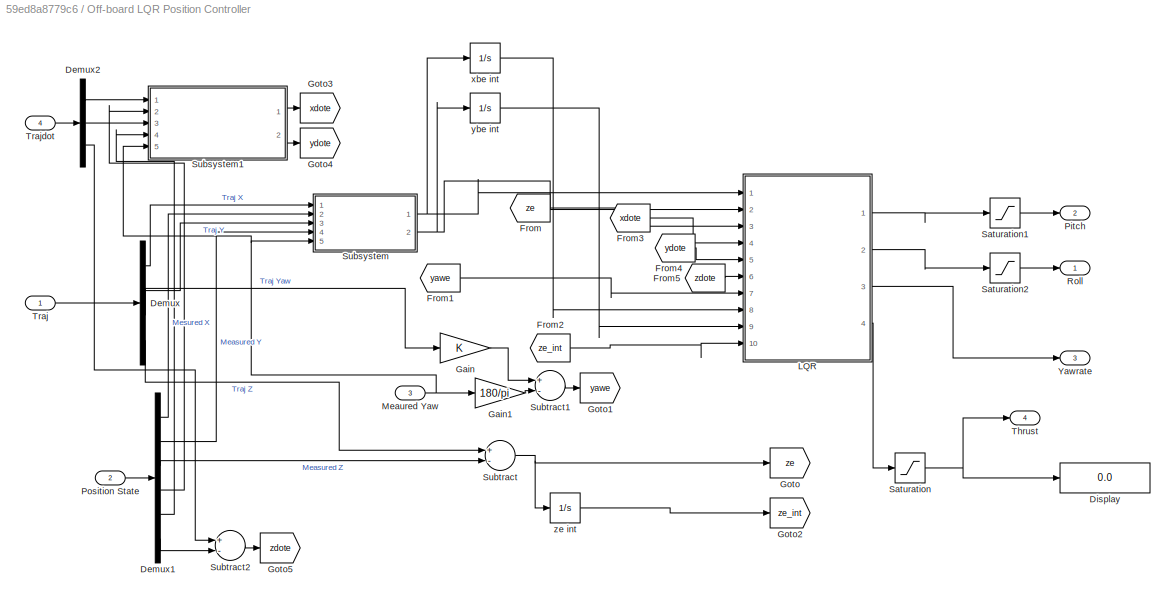
BLOCK [SubSystem] Off-board LQR Position Controller 
  Ports = [4, 4]
  RequestExecContextInheritance = off
  Variant = off
BLOCK [Demux] Off-board LQR Position Controller /Demux
  DisplayOption = bar
  Ports = [1, 4]
BLOCK [Demux] Off-board LQR Position Controller /Demux1
  DisplayOption = bar
  Outputs = 6
  Ports = [1, 6]
BLOCK [Demux] Off-board LQR Position Controller /Demux2
  DisplayOption = bar
  Outputs = 3
  Ports = [1, 3]
BLOCK [Display] Off-board LQR Position Controller /Display
  Decimation = 1
  Ports = [1]
BLOCK [From] Off-board LQR Position Controller /From
  GotoTag = ze
BLOCK [From] Off-board LQR Position Controller /From1
  GotoTag = yawe
BLOCK [From] Off-board LQR Position Controller /From2
  GotoTag = ze_int
BLOCK [From] Off-board LQR Position Controller /From3
  GotoTag = xdote
BLOCK [From] Off-board LQR Position Controller /From4
  GotoTag = ydote
BLOCK [From] Off-board LQR Position Controller /From5
  GotoTag = zdote
BLOCK [Gain] Off-board LQR Position Controller /Gain
  OutDataTypeStr = Inherit: Inherit via internal rule
  ParamDataTypeStr = Inherit: Inherit via internal rule
  SaturateOnIntegerOverflow = off
BLOCK [Gain] Off-board LQR Position Controller /Gain1
  Gain = 180/pi
  OutDataTypeStr = Inherit: Inherit via internal rule
  ParamDataTypeStr = Inherit: Inherit via internal rule
  SaturateOnIntegerOverflow = off
BLOCK [Goto] Off-board LQR Position Controller /Goto
  GotoTag = ze
BLOCK [Goto] Off-board LQR Position Controller /Goto1
  GotoTag = yawe
BLOCK [Goto] Off-board LQR Position Controller /Goto2
  GotoTag = ze_int
BLOCK [Goto] Off-board LQR Position Controller /Goto3
  GotoTag = xdote
BLOCK [Goto] Off-board LQR Position Controller /Goto4
  GotoTag = ydote
BLOCK [Goto] Off-board LQR Position Controller /Goto5
  GotoTag = zdote
BLOCK [SubSystem] Off-board LQR Position Controller /LQR
  Ports = [10, 4]
  RequestExecContextInheritance = off
  Variant = off
BLOCK [Constant] Off-board LQR Position Controller /LQR/Constant
  Value = [5.60004970078151	8.58620031779818e-15	1.79188398034056e-13	10.0569231021990	1.51538658702357e-16	6.75183288667297e-14	-5.69346371635233e-16	0.316227766016842	1.15721882726472e-16	7.37858743577978e-16;-4.45384218978841e-15	5.60004970078150	1.40244562919347e-12	1.51538658702357e-16	10.0569231021990	2.52099816991567e-13	-1.20831577789100e-16	3.71448157568776e-15	0.316227766016834	6.21616501237700e-1...<+418ch>
BLOCK [Constant] Off-board LQR Position Controller /LQR/Constant1
  Value = 9.81*0.041
BLOCK [Demux] Off-board LQR Position Controller /LQR/Demux
  DisplayOption = bar
  Ports = [1, 4]
BLOCK [Fcn] Off-board LQR Position Controller /LQR/Fcn
  Expr = -86876*u^2+154046*u
BLOCK [Mux] Off-board LQR Position Controller /LQR/Mux
  DisplayOption = bar
  Inputs = 10
  Ports = [10, 1]
BLOCK [Outport] Off-board LQR Position Controller /LQR/Pitch Desired
  IconDisplay = Port number
  Port = 2
BLOCK [Product] Off-board LQR Position Controller /LQR/Product
  InputSameDT = off
  Multiplication = Matrix(*)
  OutDataTypeStr = Inherit: Inherit via internal rule
  Ports = [2, 1]
  RndMeth = Floor
  SaturateOnIntegerOverflow = off
BLOCK [Outport] Off-board LQR Position Controller /LQR/Roll Desired
  IconDisplay = Port number
BLOCK [Saturate] Off-board LQR Position Controller /LQR/Saturation
  InputPortMap = u0
  LowerLimit = -0.041*9.81
  Ports = [1, 1]
  UpperLimit = 0.65
BLOCK [Sum] Off-board LQR Position Controller /LQR/Sum
  IconShape = round
  InputSameDT = off
  Inputs = |++
  OutDataTypeStr = Inherit: Inherit via internal rule
  Ports = [2, 1]
  SaturateOnIntegerOverflow = off
BLOCK [Outport] Off-board LQR Position Controller /LQR/Thrust Desired
  IconDisplay = Port number
  Port = 4
BLOCK [Outport] Off-board LQR Position Controller /LQR/Yaw rate Desired
  IconDisplay = Port number
  Port = 3
BLOCK [Inport] Off-board LQR Position Controller /LQR/xdote
  IconDisplay = Port number
  Port = 4
BLOCK [Inport] Off-board LQR Position Controller /LQR/xe
  IconDisplay = Port number
BLOCK [Inport] Off-board LQR Position Controller /LQR/xe int
  IconDisplay = Port number
  Port = 8
BLOCK [Inport] Off-board LQR Position Controller /LQR/yawe 
  IconDisplay = Port number
  Port = 7
BLOCK [Inport] Off-board LQR Position Controller /LQR/ydote
  IconDisplay = Port number
  Port = 5
BLOCK [Inport] Off-board LQR Position Controller /LQR/ye
  IconDisplay = Port number
  Port = 2
BLOCK [Inport] Off-board LQR Position Controller /LQR/ye int
  IconDisplay = Port number
  Port = 9
BLOCK [Inport] Off-board LQR Position Controller /LQR/zdote
  IconDisplay = Port number
  Port = 6
BLOCK [Inport] Off-board LQR Position Controller /LQR/ze
  IconDisplay = Port number
  Port = 3
BLOCK [Inport] Off-board LQR Position Controller /LQR/ze int
  IconDisplay = Port number
  Port = 10
BLOCK [Inport] Off-board LQR Position Controller /Meaured Yaw
  IconDisplay = Port number
  Port = 3
BLOCK [Outport] Off-board LQR Position Controller /Pitch
  IconDisplay = Port number
  Port = 2
BLOCK [Inport] Off-board LQR Position Controller /Position State
  IconDisplay = Port number
  Port = 2
BLOCK [Outport] Off-board LQR Position Controller /Roll
  IconDisplay = Port number
BLOCK [Saturate] Off-board LQR Position Controller /Saturation
  InputPortMap = u0
  LowerLimit = 1000
  Ports = [1, 1]
  UpperLimit = 60000
BLOCK [Saturate] Off-board LQR Position Controller /Saturation1
  InputPortMap = u0
  LowerLimit = -30
  Ports = [1, 1]
  UpperLimit = 30
BLOCK [Saturate] Off-board LQR Position Controller /Saturation2
  InputPortMap = u0
  LowerLimit = -30
  Ports = [1, 1]
  UpperLimit = 30
BLOCK [SubSystem] Off-board LQR Position Controller /Subsystem
  Ports = [5, 2]
  RequestExecContextInheritance = off
  Variant = off
BLOCK [Demux] Off-board LQR Position Controller /Subsystem/Demux
  DisplayOption = bar
  Outputs = 2
  Ports = [1, 2]
BLOCK [SubSystem] Off-board LQR Position Controller /Subsystem/MATLAB Function
  ErrorFcn = Stateflow.Translate.translate
  PermitHierarchicalResolution = ExplicitOnly
  Ports = [1, 1]
  RequestExecContextInheritance = off
  SFBlockType = MATLAB Function
  TreatAsAtomicUnit = on
  Variant = off
BLOCK [Demux] Off-board LQR Position Controller /Subsystem/MATLAB Function/ Demux 
  Outputs = 1
  Ports = [1, 1]
BLOCK [S-Function] Off-board LQR Position Controller /Subsystem/MATLAB Function/ SFunction 
  EnableBusSupport = on
  FunctionName = sf_sfun
  PortCounts = [1 2]
  Ports = [1, 2]
  SFunctionDeploymentMode = off
  Tag = Stateflow S-Function crazyflie 9
BLOCK [Terminator] Off-board LQR Position Controller /Subsystem/MATLAB Function/ Terminator 
BLOCK [Outport] Off-board LQR Position Controller /Subsystem/MATLAB Function/R_m
  IconDisplay = Port number
BLOCK [Inport] Off-board LQR Position Controller /Subsystem/MATLAB Function/yaw
  IconDisplay = Port number
BLOCK [Inport] Off-board LQR Position Controller /Subsystem/Measured X
  IconDisplay = Port number
  Port = 2
BLOCK [Inport] Off-board LQR Position Controller /Subsystem/Measured Y
  IconDisplay = Port number
  Port = 4
BLOCK [Inport] Off-board LQR Position Controller /Subsystem/Measured Yaw
  IconDisplay = Port number
  Port = 5
BLOCK [Mux] Off-board LQR Position Controller /Subsystem/Mux
  DisplayOption = bar
  Inputs = 2
  Ports = [2, 1]
BLOCK [Product] Off-board LQR Position Controller /Subsystem/Product
  InputSameDT = off
  Multiplication = Matrix(*)
  OutDataTypeStr = Inherit: Inherit via internal rule
  Ports = [2, 1]
  RndMeth = Floor
  SaturateOnIntegerOverflow = off
BLOCK [Sum] Off-board LQR Position Controller /Subsystem/Sum
  IconShape = round
  InputSameDT = off
  Inputs = |+-
  OutDataTypeStr = Inherit: Inherit via internal rule
  Ports = [2, 1]
  SaturateOnIntegerOverflow = off
BLOCK [Sum] Off-board LQR Position Controller /Subsystem/Sum1
  IconShape = round
  InputSameDT = off
  Inputs = |+-
  OutDataTypeStr = Inherit: Inherit via internal rule
  Ports = [2, 1]
  SaturateOnIntegerOverflow = off
BLOCK [Inport] Off-board LQR Position Controller /Subsystem/X
  IconDisplay = Port number
BLOCK [Outport] Off-board LQR Position Controller /Subsystem/Xb Error
  IconDisplay = Port number
BLOCK [Inport] Off-board LQR Position Controller /Subsystem/Y
  IconDisplay = Port number
  Port = 3
BLOCK [Outport] Off-board LQR Position Controller /Subsystem/Yb Error
  IconDisplay = Port number
  Port = 2
BLOCK [SubSystem] Off-board LQR Position Controller /Subsystem1
  Ports = [5, 2]
  RequestExecContextInheritance = off
  Variant = off
BLOCK [Demux] Off-board LQR Position Controller /Subsystem1/Demux
  DisplayOption = bar
  Outputs = 2
  Ports = [1, 2]
BLOCK [SubSystem] Off-board LQR Position Controller /Subsystem1/MATLAB Function
  ErrorFcn = Stateflow.Translate.translate
  PermitHierarchicalResolution = ExplicitOnly
  Ports = [1, 1]
  RequestExecContextInheritance = off
  SFBlockType = MATLAB Function
  TreatAsAtomicUnit = on
  Variant = off
BLOCK [Demux] Off-board LQR Position Controller /Subsystem1/MATLAB Function/ Demux 
  Outputs = 1
  Ports = [1, 1]
BLOCK [S-Function] Off-board LQR Position Controller /Subsystem1/MATLAB Function/ SFunction 
  EnableBusSupport = on
  FunctionName = sf_sfun
  PortCounts = [1 2]
  Ports = [1, 2]
  SFunctionDeploymentMode = off
  Tag = Stateflow S-Function crazyflie 14
BLOCK [Terminator] Off-board LQR Position Controller /Subsystem1/MATLAB Function/ Terminator 
BLOCK [Outport] Off-board LQR Position Controller /Subsystem1/MATLAB Function/R_m
  IconDisplay = Port number
BLOCK [Inport] Off-board LQR Position Controller /Subsystem1/MATLAB Function/yaw
  IconDisplay = Port number
BLOCK [Inport] Off-board LQR Position Controller /Subsystem1/Measured Xdot
  IconDisplay = Port number
  Port = 2
BLOCK [Inport] Off-board LQR Position Controller /Subsystem1/Measured Yaw
  IconDisplay = Port number
  Port = 5
BLOCK [Inport] Off-board LQR Position Controller /Subsystem1/Measured Ydot
  IconDisplay = Port number
  Port = 4
BLOCK [Mux] Off-board LQR Position Controller /Subsystem1/Mux
  DisplayOption = bar
  Inputs = 2
  Ports = [2, 1]
BLOCK [Product] Off-board LQR Position Controller /Subsystem1/Product
  InputSameDT = off
  Multiplication = Matrix(*)
  OutDataTypeStr = Inherit: Inherit via internal rule
  Ports = [2, 1]
  RndMeth = Floor
  SaturateOnIntegerOverflow = off
BLOCK [Sum] Off-board LQR Position Controller /Subsystem1/Sum
  IconShape = round
  InputSameDT = off
  Inputs = |+-
  OutDataTypeStr = Inherit: Inherit via internal rule
  Ports = [2, 1]
  SaturateOnIntegerOverflow = off
BLOCK [Sum] Off-board LQR Position Controller /Subsystem1/Sum1
  IconShape = round
  InputSameDT = off
  Inputs = |+-
  OutDataTypeStr = Inherit: Inherit via internal rule
  Ports = [2, 1]
  SaturateOnIntegerOverflow = off
BLOCK [Inport] Off-board LQR Position Controller /Subsystem1/Xdot
  IconDisplay = Port number
BLOCK [Outport] Off-board LQR Position Controller /Subsystem1/Xdotb Error
  IconDisplay = Port number
BLOCK [Inport] Off-board LQR Position Controller /Subsystem1/Ydot
  IconDisplay = Port number
  Port = 3
BLOCK [Outport] Off-board LQR Position Controller /Subsystem1/Ydotb Error
  IconDisplay = Port number
  Port = 2
BLOCK [Sum] Off-board LQR Position Controller /Subtract
  InputSameDT = off
  Inputs = +-
  OutDataTypeStr = Inherit: Inherit via internal rule
  Ports = [2, 1]
  SaturateOnIntegerOverflow = off
BLOCK [Sum] Off-board LQR Position Controller /Subtract1
  InputSameDT = off
  Inputs = +-
  OutDataTypeStr = Inherit: Inherit via internal rule
  Ports = [2, 1]
  SaturateOnIntegerOverflow = off
BLOCK [Sum] Off-board LQR Position Controller /Subtract2
  InputSameDT = off
  Inputs = +-
  OutDataTypeStr = Inherit: Inherit via internal rule
  Ports = [2, 1]
  SaturateOnIntegerOverflow = off
BLOCK [Outport] Off-board LQR Position Controller /Thrust
  IconDisplay = Port number
  Port = 4
BLOCK [Inport] Off-board LQR Position Controller /Traj
  IconDisplay = Port number
BLOCK [Inport] Off-board LQR Position Controller /Trajdot 
  IconDisplay = Port number
  Port = 4
BLOCK [Outport] Off-board LQR Position Controller /Yawrate
  IconDisplay = Port number
  Port = 3
BLOCK [Integrator] Off-board LQR Position Controller /xbe int
  Ports = [1, 1]
BLOCK [Integrator] Off-board LQR Position Controller /ybe int
  Ports = [1, 1]
BLOCK [Integrator] Off-board LQR Position Controller /ze int
  LimitOutput = on
  LowerSaturationLimit = -5
  Ports = [1, 1]
  UpperSaturationLimit = 5
BLOCK [SubSystem] Off-board PID Position Controller
  Ports = [3, 4]
  RequestExecContextInheritance = off
  Variant = off
BLOCK [Demux] Off-board PID Position Controller/Demux
  DisplayOption = bar
  Ports = [1, 4]
BLOCK [Demux] Off-board PID Position Controller/Demux1
  DisplayOption = bar
  Outputs = 6
  Ports = [1, 6]
BLOCK [Display] Off-board PID Position Controller/Display
  Decimation = 1
  Ports = [1]
BLOCK [Display] Off-board PID Position Controller/Display1
  Decimation = 1
  Ports = [1]
BLOCK [Gain] Off-board PID Position Controller/Gain
  OutDataTypeStr = Inherit: Inherit via internal rule
  ParamDataTypeStr = Inherit: Inherit via internal rule
  SaturateOnIntegerOverflow = off
BLOCK [Gain] Off-board PID Position Controller/Gain1
  Gain = 180/pi
  OutDataTypeStr = Inherit: Inherit via internal rule
  ParamDataTypeStr = Inherit: Inherit via internal rule
  SaturateOnIntegerOverflow = off
BLOCK [Inport] Off-board PID Position Controller/Meaured Yaw
  IconDisplay = Port number
  Port = 3
BLOCK [Outport] Off-board PID Position Controller/Pitch
  IconDisplay = Port number
  Port = 2
BLOCK [Inport] Off-board PID Position Controller/Position State
  IconDisplay = Port number
  Port = 2
BLOCK [Outport] Off-board PID Position Controller/Roll
  IconDisplay = Port number
BLOCK [Saturate] Off-board PID Position Controller/Saturation
  InputPortMap = u0
  LowerLimit = 1000
  Ports = [1, 1]
  UpperLimit = 60000
BLOCK [Saturate] Off-board PID Position Controller/Saturation1
  InputPortMap = u0
  LowerLimit = -30
  Ports = [1, 1]
  UpperLimit = 30
BLOCK [Saturate] Off-board PID Position Controller/Saturation2
  InputPortMap = u0
  LowerLimit = -30
  Ports = [1, 1]
  UpperLimit = 30
BLOCK [SubSystem] Off-board PID Position Controller/Subsystem
  Ports = [5, 2]
  RequestExecContextInheritance = off
  Variant = off
BLOCK [Demux] Off-board PID Position Controller/Subsystem/Demux
  DisplayOption = bar
  Outputs = 2
  Ports = [1, 2]
BLOCK [SubSystem] Off-board PID Position Controller/Subsystem/MATLAB Function
  ErrorFcn = Stateflow.Translate.translate
  PermitHierarchicalResolution = ExplicitOnly
  Ports = [1, 1]
  RequestExecContextInheritance = off
  SFBlockType = MATLAB Function
  TreatAsAtomicUnit = on
  Variant = off
BLOCK [Demux] Off-board PID Position Controller/Subsystem/MATLAB Function/ Demux 
  Outputs = 1
  Ports = [1, 1]
BLOCK [S-Function] Off-board PID Position Controller/Subsystem/MATLAB Function/ SFunction 
  EnableBusSupport = on
  FunctionName = sf_sfun
  PortCounts = [1 2]
  Ports = [1, 2]
  SFunctionDeploymentMode = off
  Tag = Stateflow S-Function crazyflie 4
BLOCK [Terminator] Off-board PID Position Controller/Subsystem/MATLAB Function/ Terminator 
BLOCK [Outport] Off-board PID Position Controller/Subsystem/MATLAB Function/R_m
  IconDisplay = Port number
BLOCK [Inport] Off-board PID Position Controller/Subsystem/MATLAB Function/yaw
  IconDisplay = Port number
BLOCK [Inport] Off-board PID Position Controller/Subsystem/Measured X
  IconDisplay = Port number
  Port = 2
BLOCK [Inport] Off-board PID Position Controller/Subsystem/Measured Y
  IconDisplay = Port number
  Port = 4
BLOCK [Inport] Off-board PID Position Controller/Subsystem/Measured Yaw
  IconDisplay = Port number
  Port = 5
BLOCK [Mux] Off-board PID Position Controller/Subsystem/Mux
  DisplayOption = bar
  Inputs = 2
  Ports = [2, 1]
BLOCK [Product] Off-board PID Position Controller/Subsystem/Product
  InputSameDT = off
  Multiplication = Matrix(*)
  OutDataTypeStr = Inherit: Inherit via internal rule
  Ports = [2, 1]
  RndMeth = Floor
  SaturateOnIntegerOverflow = off
BLOCK [Sum] Off-board PID Position Controller/Subsystem/Sum
  IconShape = round
  InputSameDT = off
  Inputs = |+-
  OutDataTypeStr = Inherit: Inherit via internal rule
  Ports = [2, 1]
  SaturateOnIntegerOverflow = off
BLOCK [Sum] Off-board PID Position Controller/Subsystem/Sum1
  IconShape = round
  InputSameDT = off
  Inputs = |+-
  OutDataTypeStr = Inherit: Inherit via internal rule
  Ports = [2, 1]
  SaturateOnIntegerOverflow = off
BLOCK [Inport] Off-board PID Position Controller/Subsystem/X
  IconDisplay = Port number
BLOCK [Outport] Off-board PID Position Controller/Subsystem/Xb Error
  IconDisplay = Port number
BLOCK [Inport] Off-board PID Position Controller/Subsystem/Y
  IconDisplay = Port number
  Port = 3
BLOCK [Outport] Off-board PID Position Controller/Subsystem/Yb Error
  IconDisplay = Port number
  Port = 2
BLOCK [Terminator] Off-board PID Position Controller/Terminator
BLOCK [Terminator] Off-board PID Position Controller/Terminator1
BLOCK [Terminator] Off-board PID Position Controller/Terminator2
BLOCK [Outport] Off-board PID Position Controller/Thrust
  IconDisplay = Port number
  Port = 4
BLOCK [Inport] Off-board PID Position Controller/Traj
  IconDisplay = Port number
BLOCK [SubSystem] Off-board PID Position Controller/X PID
  Ports = [1, 1]
  RequestExecContextInheritance = off
  Variant = off
BLOCK [Derivative] Off-board PID Position Controller/X PID/Derivative
BLOCK [Integrator] Off-board PID Position Controller/X PID/Integrator
  Ports = [1, 1]
BLOCK [Gain] Off-board PID Position Controller/X PID/Kd
  Gain = 10
  OutDataTypeStr = Inherit: Inherit via internal rule
  ParamDataTypeStr = Inherit: Inherit via internal rule
  SaturateOnIntegerOverflow = off
BLOCK [Gain] Off-board PID Position Controller/X PID/Ki
  Gain = 4
  OutDataTypeStr = Inherit: Inherit via internal rule
  ParamDataTypeStr = Inherit: Inherit via internal rule
  SaturateOnIntegerOverflow = off
BLOCK [Gain] Off-board PID Position Controller/X PID/Kp
  Gain = 18
  OutDataTypeStr = Inherit: Inherit via internal rule
  ParamDataTypeStr = Inherit: Inherit via internal rule
  SaturateOnIntegerOverflow = off
BLOCK [Saturate] Off-board PID Position Controller/X PID/Saturation
  InputPortMap = u0
  LowerLimit = -.2
  Ports = [1, 1]
  UpperLimit = .2
BLOCK [Sin] Off-board PID Position Controller/X PID/Sine Wave
  Amplitude = 0
  Ports = [0, 1]
  SampleTime = 0
BLOCK [Sum] Off-board PID Position Controller/X PID/Sum
  IconShape = round
  InputSameDT = off
  Inputs = |++
  OutDataTypeStr = Inherit: Inherit via internal rule
  Ports = [2, 1]
  SaturateOnIntegerOverflow = off
BLOCK [Sum] Off-board PID Position Controller/X PID/Sum3
  IconShape = round
  InputSameDT = off
  Inputs = +++
  OutDataTypeStr = Inherit: Inherit via internal rule
  Ports = [3, 1]
  SaturateOnIntegerOverflow = off
BLOCK [Outport] Off-board PID Position Controller/X PID/X PID
  IconDisplay = Port number
BLOCK [Inport] Off-board PID Position Controller/X PID/Xb Error
  IconDisplay = Port number
BLOCK [SubSystem] Off-board PID Position Controller/Y PID
  Ports = [1, 1]
  RequestExecContextInheritance = off
  Variant = off
BLOCK [Derivative] Off-board PID Position Controller/Y PID/Derivative
BLOCK [Integrator] Off-board PID Position Controller/Y PID/Integrator
  Ports = [1, 1]
BLOCK [Gain] Off-board PID Position Controller/Y PID/Kd
  Gain = 10
  OutDataTypeStr = Inherit: Inherit via internal rule
  ParamDataTypeStr = Inherit: Inherit via internal rule
  SaturateOnIntegerOverflow = off
BLOCK [Gain] Off-board PID Position Controller/Y PID/Ki
  Gain = 4
  OutDataTypeStr = Inherit: Inherit via internal rule
  ParamDataTypeStr = Inherit: Inherit via internal rule
  SaturateOnIntegerOverflow = off
BLOCK [Gain] Off-board PID Position Controller/Y PID/Kp
  Gain = 18
  OutDataTypeStr = Inherit: Inherit via internal rule
  ParamDataTypeStr = Inherit: Inherit via internal rule
  SaturateOnIntegerOverflow = off
BLOCK [Saturate] Off-board PID Position Controller/Y PID/Saturation
  InputPortMap = u0
  LowerLimit = -.2
  Ports = [1, 1]
  UpperLimit = .2
BLOCK [Sin] Off-board PID Position Controller/Y PID/Sine Wave
  Amplitude = 0
  Ports = [0, 1]
  SampleTime = 0
BLOCK [Sum] Off-board PID Position Controller/Y PID/Sum
  IconShape = round
  InputSameDT = off
  Inputs = |++
  OutDataTypeStr = Inherit: Inherit via internal rule
  Ports = [2, 1]
  SaturateOnIntegerOverflow = off
BLOCK [Sum] Off-board PID Position Controller/Y PID/Sum3
  IconShape = round
  InputSameDT = off
  Inputs = +++
  OutDataTypeStr = Inherit: Inherit via internal rule
  Ports = [3, 1]
  SaturateOnIntegerOverflow = off
BLOCK [Outport] Off-board PID Position Controller/Y PID/Y PID
  IconDisplay = Port number
BLOCK [Inport] Off-board PID Position Controller/Y PID/Yb Error
  IconDisplay = Port number
BLOCK [SubSystem] Off-board PID Position Controller/Yaw PID
  Ports = [2, 1]
  RequestExecContextInheritance = off
  Variant = off
BLOCK [Derivative] Off-board PID Position Controller/Yaw PID/Derivative
BLOCK [Integrator] Off-board PID Position Controller/Yaw PID/Integrator
  Ports = [1, 1]
BLOCK [Gain] Off-board PID Position Controller/Yaw PID/Kd
  OutDataTypeStr = Inherit: Inherit via internal rule
  ParamDataTypeStr = Inherit: Inherit via internal rule
  SaturateOnIntegerOverflow = off
BLOCK [Gain] Off-board PID Position Controller/Yaw PID/Ki
  Gain = 0
  OutDataTypeStr = Inherit: Inherit via internal rule
  ParamDataTypeStr = Inherit: Inherit via internal rule
  SaturateOnIntegerOverflow = off
BLOCK [Gain] Off-board PID Position Controller/Yaw PID/Kp
  Gain = 3
  OutDataTypeStr = Inherit: Inherit via internal rule
  ParamDataTypeStr = Inherit: Inherit via internal rule
  SaturateOnIntegerOverflow = off
BLOCK [Inport] Off-board PID Position Controller/Yaw PID/Measured Yaw
  IconDisplay = Port number
  Port = 2
BLOCK [Saturate] Off-board PID Position Controller/Yaw PID/Saturation
  InputPortMap = u0
  LowerLimit = -.2
  Ports = [1, 1]
  UpperLimit = .2
BLOCK [Sin] Off-board PID Position Controller/Yaw PID/Sine Wave
  Amplitude = 0
  Ports = [0, 1]
  SampleTime = 0
BLOCK [Sum] Off-board PID Position Controller/Yaw PID/Sum
  IconShape = round
  InputSameDT = off
  Inputs = |++
  OutDataTypeStr = Inherit: Inherit via internal rule
  Ports = [2, 1]
  SaturateOnIntegerOverflow = off
BLOCK [Sum] Off-board PID Position Controller/Yaw PID/Sum2
  IconShape = round
  InputSameDT = off
  Inputs = |+-
  OutDataTypeStr = Inherit: Inherit via internal rule
  Ports = [2, 1]
  SaturateOnIntegerOverflow = off
BLOCK [Sum] Off-board PID Position Controller/Yaw PID/Sum3
  IconShape = round
  InputSameDT = off
  Inputs = +++
  OutDataTypeStr = Inherit: Inherit via internal rule
  Ports = [3, 1]
  SaturateOnIntegerOverflow = off
BLOCK [Inport] Off-board PID Position Controller/Yaw PID/Yaw
  IconDisplay = Port number
BLOCK [Outport] Off-board PID Position Controller/Yaw PID/Yaw PID
  IconDisplay = Port number
BLOCK [Outport] Off-board PID Position Controller/Yawrate
  IconDisplay = Port number
  Port = 3
BLOCK [SubSystem] Off-board PID Position Controller/Z PID
  Ports = [2, 1]
  RequestExecContextInheritance = off
  Variant = off
BLOCK [Derivative] Off-board PID Position Controller/Z PID/Derivative
BLOCK [Integrator] Off-board PID Position Controller/Z PID/Integrator
  Ports = [1, 1]
BLOCK [Gain] Off-board PID Position Controller/Z PID/Kd
  Gain = 40000
  OutDataTypeStr = Inherit: Inherit via internal rule
  ParamDataTypeStr = Inherit: Inherit via internal rule
  SaturateOnIntegerOverflow = off
BLOCK [Gain] Off-board PID Position Controller/Z PID/Ki
  Gain = 10000
  OutDataTypeStr = Inherit: Inherit via internal rule
  ParamDataTypeStr = Inherit: Inherit via internal rule
  SaturateOnIntegerOverflow = off
BLOCK [Gain] Off-board PID Position Controller/Z PID/Kp
  Gain = 50000
  OutDataTypeStr = Inherit: Inherit via internal rule
  ParamDataTypeStr = Inherit: Inherit via internal rule
  SaturateOnIntegerOverflow = off
BLOCK [Inport] Off-board PID Position Controller/Z PID/Measured Z
  IconDisplay = Port number
  Port = 2
BLOCK [Saturate] Off-board PID Position Controller/Z PID/PID Limit
  InputPortMap = u0
  LowerLimit = -25000
  Ports = [1, 1]
  UpperLimit = 25000
BLOCK [Saturate] Off-board PID Position Controller/Z PID/Saturation
  InputPortMap = u0
  LowerLimit = -10
  Ports = [1, 1]
  UpperLimit = 10
BLOCK [Sin] Off-board PID Position Controller/Z PID/Sine Wave
  Amplitude = 0
  Ports = [0, 1]
  SampleTime = 0
BLOCK [Sum] Off-board PID Position Controller/Z PID/Sum
  IconShape = round
  InputSameDT = off
  Inputs = |++
  OutDataTypeStr = Inherit: Inherit via internal rule
  Ports = [2, 1]
  SaturateOnIntegerOverflow = off
BLOCK [Sum] Off-board PID Position Controller/Z PID/Sum1
  IconShape = round
  InputSameDT = off
  Inputs = |++
  OutDataTypeStr = Inherit: Inherit via internal rule
  Ports = [2, 1]
  SaturateOnIntegerOverflow = off
BLOCK [Sum] Off-board PID Position Controller/Z PID/Sum2
  IconShape = round
  InputSameDT = off
  Inputs = |+-
  OutDataTypeStr = Inherit: Inherit via internal rule
  Ports = [2, 1]
  SaturateOnIntegerOverflow = off
BLOCK [Sum] Off-board PID Position Controller/Z PID/Sum3
  IconShape = round
  InputSameDT = off
  Inputs = +++
  OutDataTypeStr = Inherit: Inherit via internal rule
  Ports = [3, 1]
  SaturateOnIntegerOverflow = off
BLOCK [Constant] Off-board PID Position Controller/Z PID/Thrust Base
  Value = 36500
BLOCK [Inport] Off-board PID Position Controller/Z PID/Z
  IconDisplay = Port number
BLOCK [Outport] Off-board PID Position Controller/Z PID/Z PID
  IconDisplay = Port number
BLOCK [SubSystem] Off-board PID Position Controller1
  Commented = on
  Ports = [3, 4]
  RequestExecContextInheritance = off
  Variant = off
BLOCK [Demux] Off-board PID Position Controller1/Demux
  DisplayOption = bar
  Ports = [1, 4]
BLOCK [Demux] Off-board PID Position Controller1/Demux1
  DisplayOption = bar
  Outputs = 3
  Ports = [1, 3]
BLOCK [Display] Off-board PID Position Controller1/Display
  Decimation = 1
  Ports = [1]
BLOCK [Display] Off-board PID Position Controller1/Display1
  Decimation = 1
  Ports = [1]
BLOCK [Gain] Off-board PID Position Controller1/Gain
  OutDataTypeStr = Inherit: Inherit via internal rule
  ParamDataTypeStr = Inherit: Inherit via internal rule
  SaturateOnIntegerOverflow = off
BLOCK [Gain] Off-board PID Position Controller1/Gain1
  Gain = 180/pi
  OutDataTypeStr = Inherit: Inherit via internal rule
  ParamDataTypeStr = Inherit: Inherit via internal rule
  SaturateOnIntegerOverflow = off
BLOCK [Inport] Off-board PID Position Controller1/Meaured Yaw
  IconDisplay = Port number
  Port = 3
BLOCK [Outport] Off-board PID Position Controller1/Pitch
  IconDisplay = Port number
  Port = 2
BLOCK [Inport] Off-board PID Position Controller1/Position State
  IconDisplay = Port number
  Port = 2
BLOCK [Outport] Off-board PID Position Controller1/Roll
  IconDisplay = Port number
BLOCK [Saturate] Off-board PID Position Controller1/Saturation
  InputPortMap = u0
  LowerLimit = 1000
  Ports = [1, 1]
  UpperLimit = 60000
BLOCK [Saturate] Off-board PID Position Controller1/Saturation1
  InputPortMap = u0
  LowerLimit = -30
  Ports = [1, 1]
  UpperLimit = 30
BLOCK [Saturate] Off-board PID Position Controller1/Saturation2
  InputPortMap = u0
  LowerLimit = -30
  Ports = [1, 1]
  UpperLimit = 30
BLOCK [SubSystem] Off-board PID Position Controller1/Subsystem
  Ports = [5, 2]
  RequestExecContextInheritance = off
  Variant = off
BLOCK [Demux] Off-board PID Position Controller1/Subsystem/Demux
  DisplayOption = bar
  Outputs = 2
  Ports = [1, 2]
BLOCK [SubSystem] Off-board PID Position Controller1/Subsystem/MATLAB Function
  ErrorFcn = Stateflow.Translate.translate
  PermitHierarchicalResolution = ExplicitOnly
  Ports = [1, 1]
  RequestExecContextInheritance = off
  SFBlockType = MATLAB Function
  TreatAsAtomicUnit = on
  Variant = off
BLOCK [Demux] Off-board PID Position Controller1/Subsystem/MATLAB Function/ Demux 
  Outputs = 1
  Ports = [1, 1]
BLOCK [S-Function] Off-board PID Position Controller1/Subsystem/MATLAB Function/ SFunction 
  EnableBusSupport = on
  FunctionName = sf_sfun
  PortCounts = [1 2]
  Ports = [1, 2]
  SFunctionDeploymentMode = off
  Tag = Stateflow S-Function crazyflie 5
BLOCK [Terminator] Off-board PID Position Controller1/Subsystem/MATLAB Function/ Terminator 
BLOCK [Outport] Off-board PID Position Controller1/Subsystem/MATLAB Function/R_m
  IconDisplay = Port number
BLOCK [Inport] Off-board PID Position Controller1/Subsystem/MATLAB Function/yaw
  IconDisplay = Port number
BLOCK [Inport] Off-board PID Position Controller1/Subsystem/Measured X
  IconDisplay = Port number
  Port = 2
BLOCK [Inport] Off-board PID Position Controller1/Subsystem/Measured Y
  IconDisplay = Port number
  Port = 4
BLOCK [Inport] Off-board PID Position Controller1/Subsystem/Measured Yaw
  IconDisplay = Port number
  Port = 5
BLOCK [Mux] Off-board PID Position Controller1/Subsystem/Mux
  DisplayOption = bar
  Inputs = 2
  Ports = [2, 1]
BLOCK [Product] Off-board PID Position Controller1/Subsystem/Product
  InputSameDT = off
  Multiplication = Matrix(*)
  OutDataTypeStr = Inherit: Inherit via internal rule
  Ports = [2, 1]
  RndMeth = Floor
  SaturateOnIntegerOverflow = off
BLOCK [Sum] Off-board PID Position Controller1/Subsystem/Sum
  IconShape = round
  InputSameDT = off
  Inputs = |+-
  OutDataTypeStr = Inherit: Inherit via internal rule
  Ports = [2, 1]
  SaturateOnIntegerOverflow = off
BLOCK [Sum] Off-board PID Position Controller1/Subsystem/Sum1
  IconShape = round
  InputSameDT = off
  Inputs = |+-
  OutDataTypeStr = Inherit: Inherit via internal rule
  Ports = [2, 1]
  SaturateOnIntegerOverflow = off
BLOCK [Inport] Off-board PID Position Controller1/Subsystem/X
  IconDisplay = Port number
BLOCK [Outport] Off-board PID Position Controller1/Subsystem/Xb Error
  IconDisplay = Port number
BLOCK [Inport] Off-board PID Position Controller1/Subsystem/Y
  IconDisplay = Port number
  Port = 3
BLOCK [Outport] Off-board PID Position Controller1/Subsystem/Yb Error
  IconDisplay = Port number
  Port = 2
BLOCK [Outport] Off-board PID Position Controller1/Thrust
  IconDisplay = Port number
  Port = 4
BLOCK [Inport] Off-board PID Position Controller1/Traj
  IconDisplay = Port number
BLOCK [SubSystem] Off-board PID Position Controller1/X PID
  Ports = [1, 1]
  RequestExecContextInheritance = off
  Variant = off
BLOCK [Derivative] Off-board PID Position Controller1/X PID/Derivative
BLOCK [Integrator] Off-board PID Position Controller1/X PID/Integrator
  Ports = [1, 1]
BLOCK [Gain] Off-board PID Position Controller1/X PID/Kd
  Gain = 10
  OutDataTypeStr = Inherit: Inherit via internal rule
  ParamDataTypeStr = Inherit: Inherit via internal rule
  SaturateOnIntegerOverflow = off
BLOCK [Gain] Off-board PID Position Controller1/X PID/Ki
  Gain = 4
  OutDataTypeStr = Inherit: Inherit via internal rule
  ParamDataTypeStr = Inherit: Inherit via internal rule
  SaturateOnIntegerOverflow = off
BLOCK [Gain] Off-board PID Position Controller1/X PID/Kp
  Gain = 18
  OutDataTypeStr = Inherit: Inherit via internal rule
  ParamDataTypeStr = Inherit: Inherit via internal rule
  SaturateOnIntegerOverflow = off
BLOCK [Saturate] Off-board PID Position Controller1/X PID/Saturation
  InputPortMap = u0
  LowerLimit = -.2
  Ports = [1, 1]
  UpperLimit = .2
BLOCK [Sum] Off-board PID Position Controller1/X PID/Sum3
  IconShape = round
  InputSameDT = off
  Inputs = +++
  OutDataTypeStr = Inherit: Inherit via internal rule
  Ports = [3, 1]
  SaturateOnIntegerOverflow = off
BLOCK [Outport] Off-board PID Position Controller1/X PID/X PID
  IconDisplay = Port number
BLOCK [Inport] Off-board PID Position Controller1/X PID/Xb Error
  IconDisplay = Port number
BLOCK [SubSystem] Off-board PID Position Controller1/Y PID
  Ports = [1, 1]
  RequestExecContextInheritance = off
  Variant = off
BLOCK [Derivative] Off-board PID Position Controller1/Y PID/Derivative
BLOCK [Integrator] Off-board PID Position Controller1/Y PID/Integrator
  Ports = [1, 1]
BLOCK [Gain] Off-board PID Position Controller1/Y PID/Kd
  Gain = 10
  OutDataTypeStr = Inherit: Inherit via internal rule
  ParamDataTypeStr = Inherit: Inherit via internal rule
  SaturateOnIntegerOverflow = off
BLOCK [Gain] Off-board PID Position Controller1/Y PID/Ki
  Gain = 4
  OutDataTypeStr = Inherit: Inherit via internal rule
  ParamDataTypeStr = Inherit: Inherit via internal rule
  SaturateOnIntegerOverflow = off
BLOCK [Gain] Off-board PID Position Controller1/Y PID/Kp
  Gain = 18
  OutDataTypeStr = Inherit: Inherit via internal rule
  ParamDataTypeStr = Inherit: Inherit via internal rule
  SaturateOnIntegerOverflow = off
BLOCK [Saturate] Off-board PID Position Controller1/Y PID/Saturation
  InputPortMap = u0
  LowerLimit = -.2
  Ports = [1, 1]
  UpperLimit = .2
BLOCK [Sum] Off-board PID Position Controller1/Y PID/Sum3
  IconShape = round
  InputSameDT = off
  Inputs = +++
  OutDataTypeStr = Inherit: Inherit via internal rule
  Ports = [3, 1]
  SaturateOnIntegerOverflow = off
BLOCK [Outport] Off-board PID Position Controller1/Y PID/Y PID
  IconDisplay = Port number
BLOCK [Inport] Off-board PID Position Controller1/Y PID/Yb Error
  IconDisplay = Port number
BLOCK [SubSystem] Off-board PID Position Controller1/Yaw PID
  Ports = [2, 1]
  RequestExecContextInheritance = off
  Variant = off
BLOCK [Derivative] Off-board PID Position Controller1/Yaw PID/Derivative
BLOCK [Integrator] Off-board PID Position Controller1/Yaw PID/Integrator
  Ports = [1, 1]
BLOCK [Gain] Off-board PID Position Controller1/Yaw PID/Kd
  OutDataTypeStr = Inherit: Inherit via internal rule
  ParamDataTypeStr = Inherit: Inherit via internal rule
  SaturateOnIntegerOverflow = off
BLOCK [Gain] Off-board PID Position Controller1/Yaw PID/Ki
  Gain = 0
  OutDataTypeStr = Inherit: Inherit via internal rule
  ParamDataTypeStr = Inherit: Inherit via internal rule
  SaturateOnIntegerOverflow = off
BLOCK [Gain] Off-board PID Position Controller1/Yaw PID/Kp
  Gain = 3
  OutDataTypeStr = Inherit: Inherit via internal rule
  ParamDataTypeStr = Inherit: Inherit via internal rule
  SaturateOnIntegerOverflow = off
BLOCK [Inport] Off-board PID Position Controller1/Yaw PID/Measured Yaw
  IconDisplay = Port number
  Port = 2
BLOCK [Saturate] Off-board PID Position Controller1/Yaw PID/Saturation
  InputPortMap = u0
  LowerLimit = -.2
  Ports = [1, 1]
  UpperLimit = .2
BLOCK [Sum] Off-board PID Position Controller1/Yaw PID/Sum2
  IconShape = round
  InputSameDT = off
  Inputs = |+-
  OutDataTypeStr = Inherit: Inherit via internal rule
  Ports = [2, 1]
  SaturateOnIntegerOverflow = off
BLOCK [Sum] Off-board PID Position Controller1/Yaw PID/Sum3
  IconShape = round
  InputSameDT = off
  Inputs = +++
  OutDataTypeStr = Inherit: Inherit via internal rule
  Ports = [3, 1]
  SaturateOnIntegerOverflow = off
BLOCK [Inport] Off-board PID Position Controller1/Yaw PID/Yaw
  IconDisplay = Port number
BLOCK [Outport] Off-board PID Position Controller1/Yaw PID/Yaw PID
  IconDisplay = Port number
BLOCK [Outport] Off-board PID Position Controller1/Yawrate
  IconDisplay = Port number
  Port = 3
BLOCK [SubSystem] Off-board PID Position Controller1/Z PID
  Ports = [2, 1]
  RequestExecContextInheritance = off
  Variant = off
BLOCK [Derivative] Off-board PID Position Controller1/Z PID/Derivative
BLOCK [Integrator] Off-board PID Position Controller1/Z PID/Integrator
  Ports = [1, 1]
BLOCK [Gain] Off-board PID Position Controller1/Z PID/Kd
  Gain = 40000
  OutDataTypeStr = Inherit: Inherit via internal rule
  ParamDataTypeStr = Inherit: Inherit via internal rule
  SaturateOnIntegerOverflow = off
BLOCK [Gain] Off-board PID Position Controller1/Z PID/Ki
  Gain = 10000
  OutDataTypeStr = Inherit: Inherit via internal rule
  ParamDataTypeStr = Inherit: Inherit via internal rule
  SaturateOnIntegerOverflow = off
BLOCK [Gain] Off-board PID Position Controller1/Z PID/Kp
  Gain = 50000
  OutDataTypeStr = Inherit: Inherit via internal rule
  ParamDataTypeStr = Inherit: Inherit via internal rule
  SaturateOnIntegerOverflow = off
BLOCK [Inport] Off-board PID Position Controller1/Z PID/Measured Z
  IconDisplay = Port number
  Port = 2
BLOCK [Saturate] Off-board PID Position Controller1/Z PID/PID Limit
  InputPortMap = u0
  LowerLimit = -25000
  Ports = [1, 1]
  UpperLimit = 25000
BLOCK [Saturate] Off-board PID Position Controller1/Z PID/Saturation
  InputPortMap = u0
  LowerLimit = -10
  Ports = [1, 1]
  UpperLimit = 10
BLOCK [Sum] Off-board PID Position Controller1/Z PID/Sum
  IconShape = round
  InputSameDT = off
  Inputs = |++
  OutDataTypeStr = Inherit: Inherit via internal rule
  Ports = [2, 1]
  SaturateOnIntegerOverflow = off
BLOCK [Sum] Off-board PID Position Controller1/Z PID/Sum2
  IconShape = round
  InputSameDT = off
  Inputs = |+-
  OutDataTypeStr = Inherit: Inherit via internal rule
  Ports = [2, 1]
  SaturateOnIntegerOverflow = off
BLOCK [Sum] Off-board PID Position Controller1/Z PID/Sum3
  IconShape = round
  InputSameDT = off
  Inputs = +++
  OutDataTypeStr = Inherit: Inherit via internal rule
  Ports = [3, 1]
  SaturateOnIntegerOverflow = off
BLOCK [Constant] Off-board PID Position Controller1/Z PID/Thrust Base
  Value = 35125.3
BLOCK [Inport] Off-board PID Position Controller1/Z PID/Z
  IconDisplay = Port number
BLOCK [Outport] Off-board PID Position Controller1/Z PID/Z PID
  IconDisplay = Port number
BLOCK [SubSystem] On-board Controller
  Ports = [5, 4]
  RequestExecContextInheritance = off
  Variant = off
BLOCK [SubSystem] On-board Controller/Attitude Controller 
  Ports = [4, 2]
  RequestExecContextInheritance = off
  Variant = off
BLOCK [Outport] On-board Controller/Attitude Controller /Desired Pitch 
  IconDisplay = Port number
  Port = 2
BLOCK [Outport] On-board Controller/Attitude Controller /Desired Roll
  IconDisplay = Port number
BLOCK [Inport] On-board Controller/Attitude Controller /Measured Pitch
  IconDisplay = Port number
  Port = 4
BLOCK [Inport] On-board Controller/Attitude Controller /Measured Roll
  IconDisplay = Port number
  Port = 3
BLOCK [Inport] On-board Controller/Attitude Controller /Pitch
  IconDisplay = Port number
  Port = 2
BLOCK [SubSystem] On-board Controller/Attitude Controller /Pitch PID
  Ports = [2, 1]
  RequestExecContextInheritance = off
  Variant = off
BLOCK [Derivative] On-board Controller/Attitude Controller /Pitch PID/Derivative
BLOCK [Integrator] On-board Controller/Attitude Controller /Pitch PID/Integrator Limited
  LimitOutput = on
  LowerSaturationLimit = -20
  Ports = [1, 1]
  UpperSaturationLimit = 20
BLOCK [Gain] On-board Controller/Attitude Controller /Pitch PID/Kd1
  Gain = 0
  OutDataTypeStr = Inherit: Inherit via internal rule
  ParamDataTypeStr = Inherit: Inherit via internal rule
  SaturateOnIntegerOverflow = off
BLOCK [Gain] On-board Controller/Attitude Controller /Pitch PID/Ki1
  Gain = 4
  OutDataTypeStr = Inherit: Inherit via internal rule
  ParamDataTypeStr = Inherit: Inherit via internal rule
  SaturateOnIntegerOverflow = off
BLOCK [Gain] On-board Controller/Attitude Controller /Pitch PID/Kp1
  Gain = 10
  OutDataTypeStr = Inherit: Inherit via internal rule
  ParamDataTypeStr = Inherit: Inherit via internal rule
  SaturateOnIntegerOverflow = off
BLOCK [Inport] On-board Controller/Attitude Controller /Pitch PID/Measured Pitch
  IconDisplay = Port number
  Port = 2
BLOCK [Inport] On-board Controller/Attitude Controller /Pitch PID/Pitch
  IconDisplay = Port number
BLOCK [Outport] On-board Controller/Attitude Controller /Pitch PID/Pitch PID
  IconDisplay = Port number
BLOCK [Sum] On-board Controller/Attitude Controller /Pitch PID/Sum1
  IconShape = round
  InputSameDT = off
  Inputs = |+-
  OutDataTypeStr = Inherit: Inherit via internal rule
  Ports = [2, 1]
  SaturateOnIntegerOverflow = off
BLOCK [Sum] On-board Controller/Attitude Controller /Pitch PID/Sum6
  IconShape = round
  InputSameDT = off
  Inputs = +++
  OutDataTypeStr = Inherit: Inherit via internal rule
  Ports = [3, 1]
  SaturateOnIntegerOverflow = off
BLOCK [Inport] On-board Controller/Attitude Controller /Roll
  IconDisplay = Port number
BLOCK [SubSystem] On-board Controller/Attitude Controller /Roll PID
  Ports = [2, 1]
  RequestExecContextInheritance = off
  Variant = off
BLOCK [Derivative] On-board Controller/Attitude Controller /Roll PID/Derivative
BLOCK [Integrator] On-board Controller/Attitude Controller /Roll PID/Integrator Limited
  LimitOutput = on
  LowerSaturationLimit = -20
  Ports = [1, 1]
  UpperSaturationLimit = 20
BLOCK [Gain] On-board Controller/Attitude Controller /Roll PID/Kd
  Gain = 0
  OutDataTypeStr = Inherit: Inherit via internal rule
  ParamDataTypeStr = Inherit: Inherit via internal rule
  SaturateOnIntegerOverflow = off
BLOCK [Gain] On-board Controller/Attitude Controller /Roll PID/Ki
  Gain = 4
  OutDataTypeStr = Inherit: Inherit via internal rule
  ParamDataTypeStr = Inherit: Inherit via internal rule
  SaturateOnIntegerOverflow = off
BLOCK [Gain] On-board Controller/Attitude Controller /Roll PID/Kp
  Gain = 10
  OutDataTypeStr = Inherit: Inherit via internal rule
  ParamDataTypeStr = Inherit: Inherit via internal rule
  SaturateOnIntegerOverflow = off
BLOCK [Inport] On-board Controller/Attitude Controller /Roll PID/Measured Roll
  IconDisplay = Port number
  Port = 2
BLOCK [Inport] On-board Controller/Attitude Controller /Roll PID/Roll
  IconDisplay = Port number
BLOCK [Outport] On-board Controller/Attitude Controller /Roll PID/Roll PID
  IconDisplay = Port number
BLOCK [Sum] On-board Controller/Attitude Controller /Roll PID/Sum2
  IconShape = round
  InputSameDT = off
  Inputs = |+-
  OutDataTypeStr = Inherit: Inherit via internal rule
  Ports = [2, 1]
  SaturateOnIntegerOverflow = off
BLOCK [Sum] On-board Controller/Attitude Controller /Roll PID/Sum3
  IconShape = round
  InputSameDT = off
  Inputs = +++
  OutDataTypeStr = Inherit: Inherit via internal rule
  Ports = [3, 1]
  SaturateOnIntegerOverflow = off
BLOCK [SubSystem] On-board Controller/Attitude Rate Controller
  Ports = [4, 2]
  RequestExecContextInheritance = off
  Variant = off
BLOCK [Outport] On-board Controller/Attitude Rate Controller/Commanded Pitch
  IconDisplay = Port number
  Port = 2
BLOCK [Outport] On-board Controller/Attitude Rate Controller/Commanded Roll
  IconDisplay = Port number
BLOCK [Inport] On-board Controller/Attitude Rate Controller/Measured Pitch Rate
  IconDisplay = Port number
  Port = 4
BLOCK [Inport] On-board Controller/Attitude Rate Controller/Measured Roll Rate
  IconDisplay = Port number
  Port = 3
BLOCK [Inport] On-board Controller/Attitude Rate Controller/Pitch Rate
  IconDisplay = Port number
  Port = 2
BLOCK [SubSystem] On-board Controller/Attitude Rate Controller/Pitch Rate PID
  Ports = [2, 1]
  RequestExecContextInheritance = off
  Variant = off
BLOCK [Derivative] On-board Controller/Attitude Rate Controller/Pitch Rate PID/Derivative
BLOCK [Integrator] On-board Controller/Attitude Rate Controller/Pitch Rate PID/Integrator Limited
  LimitOutput = on
  LowerSaturationLimit = -33.3
  Ports = [1, 1]
  UpperSaturationLimit = 33.3
BLOCK [Gain] On-board Controller/Attitude Rate Controller/Pitch Rate PID/Kd
  Gain = 3
  OutDataTypeStr = Inherit: Inherit via internal rule
  ParamDataTypeStr = Inherit: Inherit via internal rule
  SaturateOnIntegerOverflow = off
BLOCK [Gain] On-board Controller/Attitude Rate Controller/Pitch Rate PID/Ki
  Gain = 550
  OutDataTypeStr = Inherit: Inherit via internal rule
  ParamDataTypeStr = Inherit: Inherit via internal rule
  SaturateOnIntegerOverflow = off
BLOCK [Gain] On-board Controller/Attitude Rate Controller/Pitch Rate PID/Kp
  Gain = 275
  OutDataTypeStr = Inherit: Inherit via internal rule
  ParamDataTypeStr = Inherit: Inherit via internal rule
  SaturateOnIntegerOverflow = off
BLOCK [Inport] On-board Controller/Attitude Rate Controller/Pitch Rate PID/Measured Pitch Rate
  IconDisplay = Port number
  Port = 2
BLOCK [Outport] On-board Controller/Attitude Rate Controller/Pitch Rate PID/Pitch Rate PID
  IconDisplay = Port number
BLOCK [Inport] On-board Controller/Attitude Rate Controller/Pitch Rate PID/Pitch Ratel
  IconDisplay = Port number
BLOCK [Sum] On-board Controller/Attitude Rate Controller/Pitch Rate PID/Sum2
  IconShape = round
  InputSameDT = off
  Inputs = |+-
  OutDataTypeStr = Inherit: Inherit via internal rule
  Ports = [2, 1]
  SaturateOnIntegerOverflow = off
BLOCK [Sum] On-board Controller/Attitude Rate Controller/Pitch Rate PID/Sum3
  IconShape = round
  InputSameDT = off
  Inputs = +++
  OutDataTypeStr = Inherit: Inherit via internal rule
  Ports = [3, 1]
  SaturateOnIntegerOverflow = off
BLOCK [Inport] On-board Controller/Attitude Rate Controller/Roll Rate
  IconDisplay = Port number
BLOCK [SubSystem] On-board Controller/Attitude Rate Controller/Roll Rate PID
  Ports = [2, 1]
  RequestExecContextInheritance = off
  Variant = off
BLOCK [Derivative] On-board Controller/Attitude Rate Controller/Roll Rate PID/Derivative
BLOCK [Integrator] On-board Controller/Attitude Rate Controller/Roll Rate PID/Integrator
  Ports = [1, 1]
BLOCK [Gain] On-board Controller/Attitude Rate Controller/Roll Rate PID/Kd
  Gain = 3
  OutDataTypeStr = Inherit: Inherit via internal rule
  ParamDataTypeStr = Inherit: Inherit via internal rule
  SaturateOnIntegerOverflow = off
BLOCK [Gain] On-board Controller/Attitude Rate Controller/Roll Rate PID/Ki
  Gain = 550
  OutDataTypeStr = Inherit: Inherit via internal rule
  ParamDataTypeStr = Inherit: Inherit via internal rule
  SaturateOnIntegerOverflow = off
BLOCK [Gain] On-board Controller/Attitude Rate Controller/Roll Rate PID/Kp
  Gain = 275
  OutDataTypeStr = Inherit: Inherit via internal rule
  ParamDataTypeStr = Inherit: Inherit via internal rule
  SaturateOnIntegerOverflow = off
BLOCK [Inport] On-board Controller/Attitude Rate Controller/Roll Rate PID/Measured Roll Rate
  IconDisplay = Port number
  Port = 2
BLOCK [Inport] On-board Controller/Attitude Rate Controller/Roll Rate PID/Roll Rate
  IconDisplay = Port number
BLOCK [Outport] On-board Controller/Attitude Rate Controller/Roll Rate PID/Roll Rate PID
  IconDisplay = Port number
BLOCK [Saturate] On-board Controller/Attitude Rate Controller/Roll Rate PID/Saturation
  InputPortMap = u0
  LowerLimit = -33.3
  Ports = [1, 1]
  UpperLimit = 33.3
BLOCK [Sum] On-board Controller/Attitude Rate Controller/Roll Rate PID/Sum2
  IconShape = round
  InputSameDT = off
  Inputs = |+-
  OutDataTypeStr = Inherit: Inherit via internal rule
  Ports = [2, 1]
  SaturateOnIntegerOverflow = off
BLOCK [Sum] On-board Controller/Attitude Rate Controller/Roll Rate PID/Sum3
  IconShape = round
  InputSameDT = off
  Inputs = +++
  OutDataTypeStr = Inherit: Inherit via internal rule
  Ports = [3, 1]
  SaturateOnIntegerOverflow = off
BLOCK [Saturate] On-board Controller/Attitude Rate Controller/Saturation
  InputPortMap = u0
  LowerLimit = -2^15
  Ports = [1, 1]
  UpperLimit = 2^15
BLOCK [Saturate] On-board Controller/Attitude Rate Controller/Saturation1
  InputPortMap = u0
  LowerLimit = -2^15
  Ports = [1, 1]
  UpperLimit = 2^15
BLOCK [Inport] On-board Controller/Attitude State
  IconDisplay = Port number
  Port = 5
BLOCK [Demux] On-board Controller/Demux
  DisplayOption = bar
  Outputs = 6
  Ports = [1, 6]
BLOCK [Gain] On-board Controller/Gain
  Gain = 180 / pi
  OutDataTypeStr = Inherit: Inherit via internal rule
  ParamDataTypeStr = Inherit: Inherit via internal rule
  SaturateOnIntegerOverflow = off
BLOCK [Gain] On-board Controller/Gain1
  Gain = 180 / pi
  OutDataTypeStr = Inherit: Inherit via internal rule
  ParamDataTypeStr = Inherit: Inherit via internal rule
  SaturateOnIntegerOverflow = off
BLOCK [Gain] On-board Controller/Gain2
  Gain = 180/pi
  OutDataTypeStr = Inherit: Inherit via internal rule
  ParamDataTypeStr = Inherit: Inherit via internal rule
  SaturateOnIntegerOverflow = off
BLOCK [Gain] On-board Controller/Gain3
  Gain = 180 / pi
  OutDataTypeStr = Inherit: Inherit via internal rule
  ParamDataTypeStr = Inherit: Inherit via internal rule
  SaturateOnIntegerOverflow = off
BLOCK [Gain] On-board Controller/Gain4
  Gain = 180 / pi
  OutDataTypeStr = Inherit: Inherit via internal rule
  ParamDataTypeStr = Inherit: Inherit via internal rule
  SaturateOnIntegerOverflow = off
BLOCK [Gain] On-board Controller/Gain5
  Gain = -1
  OutDataTypeStr = Inherit: Inherit via internal rule
  ParamDataTypeStr = Inherit: Inherit via internal rule
  SaturateOnIntegerOverflow = off
BLOCK [SubSystem] On-board Controller/Mixer
  Ports = [4, 4]
  RequestExecContextInheritance = off
  Variant = off
BLOCK [Display] On-board Controller/Mixer/Display
  Decimation = 1
  Ports = [1]
BLOCK [Gain] On-board Controller/Mixer/Gain
  Gain = .5
  OutDataTypeStr = Inherit: Inherit via internal rule
  ParamDataTypeStr = Inherit: Inherit via internal rule
  SaturateOnIntegerOverflow = off
BLOCK [Gain] On-board Controller/Mixer/Gain1
  Gain = .5
  OutDataTypeStr = Inherit: Inherit via internal rule
  ParamDataTypeStr = Inherit: Inherit via internal rule
  SaturateOnIntegerOverflow = off
BLOCK [Outport] On-board Controller/Mixer/Motor 1
  IconDisplay = Port number
BLOCK [Outport] On-board Controller/Mixer/Motor 2
  IconDisplay = Port number
  Port = 2
BLOCK [Outport] On-board Controller/Mixer/Motor 3
  IconDisplay = Port number
  Port = 3
BLOCK [Outport] On-board Controller/Mixer/Motor 4
  IconDisplay = Port number
  Port = 4
BLOCK [Inport] On-board Controller/Mixer/Pitch
  IconDisplay = Port number
  Port = 2
BLOCK [Inport] On-board Controller/Mixer/Roll
  IconDisplay = Port number
BLOCK [Saturate] On-board Controller/Mixer/Saturation
  InputPortMap = u0
  LowerLimit = 0
  Ports = [1, 1]
  UpperLimit = 2^16
BLOCK [Saturate] On-board Controller/Mixer/Saturation1
  InputPortMap = u0
  LowerLimit = 0
  Ports = [1, 1]
  UpperLimit = 2^16
BLOCK [Saturate] On-board Controller/Mixer/Saturation2
  InputPortMap = u0
  LowerLimit = 0
  Ports = [1, 1]
  UpperLimit = 2^16
BLOCK [Saturate] On-board Controller/Mixer/Saturation3
  InputPortMap = u0
  LowerLimit = 0
  Ports = [1, 1]
  UpperLimit = 2^16
BLOCK [Sum] On-board Controller/Mixer/Sum
  IconShape = round
  InputSameDT = off
  Inputs = -+++
  OutDataTypeStr = Inherit: Inherit via internal rule
  Ports = [4, 1]
  SaturateOnIntegerOverflow = off
BLOCK [Sum] On-board Controller/Mixer/Sum1
  IconShape = round
  InputSameDT = off
  Inputs = ---+
  OutDataTypeStr = Inherit: Inherit via internal rule
  Ports = [4, 1]
  SaturateOnIntegerOverflow = off
BLOCK [Sum] On-board Controller/Mixer/Sum2
  IconShape = round
  InputSameDT = off
  Inputs = +-++
  OutDataTypeStr = Inherit: Inherit via internal rule
  Ports = [4, 1]
  SaturateOnIntegerOverflow = off
BLOCK [Sum] On-board Controller/Mixer/Sum3
  IconShape = round
  InputSameDT = off
  Inputs = ++-+
  OutDataTypeStr = Inherit: Inherit via internal rule
  Ports = [4, 1]
  SaturateOnIntegerOverflow = off
BLOCK [Inport] On-board Controller/Mixer/Thrust
  IconDisplay = Port number
  Port = 4
BLOCK [Inport] On-board Controller/Mixer/Yawrate
  IconDisplay = Port number
  Port = 3
BLOCK [Outport] On-board Controller/Motor 1
  IconDisplay = Port number
BLOCK [Outport] On-board Controller/Motor 2
  IconDisplay = Port number
  Port = 2
BLOCK [Outport] On-board Controller/Motor 3
  IconDisplay = Port number
  Port = 3
BLOCK [Outport] On-board Controller/Motor 4
  IconDisplay = Port number
  Port = 4
BLOCK [Inport] On-board Controller/Pitch
  IconDisplay = Port number
  Port = 2
BLOCK [Inport] On-board Controller/Roll
  IconDisplay = Port number
BLOCK [Terminator] On-board Controller/Terminator
BLOCK [Inport] On-board Controller/Thrust
  IconDisplay = Port number
  Port = 4
BLOCK [Inport] On-board Controller/Yawrate
  IconDisplay = Port number
  Port = 3
BLOCK [SubSystem] On-board Controller/Yawrate Controller 
  Ports = [2, 1]
  RequestExecContextInheritance = off
  Variant = off
BLOCK [Outport] On-board Controller/Yawrate Controller /Commanded Yawrate
  IconDisplay = Port number
BLOCK [Inport] On-board Controller/Yawrate Controller /Desired Yawrate
  IconDisplay = Port number
BLOCK [Inport] On-board Controller/Yawrate Controller /Measured Yawrate
  IconDisplay = Port number
  Port = 2
BLOCK [SubSystem] On-board Controller/Yawrate Controller /Yawrate PID
  Ports = [2, 1]
  RequestExecContextInheritance = off
  Variant = off
BLOCK [Derivative] On-board Controller/Yawrate Controller /Yawrate PID/Derivative
BLOCK [Integrator] On-board Controller/Yawrate Controller /Yawrate PID/Integrator
  Ports = [1, 1]
BLOCK [Gain] On-board Controller/Yawrate Controller /Yawrate PID/Kd
  Gain = 0
  OutDataTypeStr = Inherit: Inherit via internal rule
  ParamDataTypeStr = Inherit: Inherit via internal rule
  SaturateOnIntegerOverflow = off
BLOCK [Gain] On-board Controller/Yawrate Controller /Yawrate PID/Ki
  Gain = 16.7
  OutDataTypeStr = Inherit: Inherit via internal rule
  ParamDataTypeStr = Inherit: Inherit via internal rule
  SaturateOnIntegerOverflow = off
BLOCK [Gain] On-board Controller/Yawrate Controller /Yawrate PID/Kp
  Gain = 70
  OutDataTypeStr = Inherit: Inherit via internal rule
  ParamDataTypeStr = Inherit: Inherit via internal rule
  SaturateOnIntegerOverflow = off
BLOCK [Inport] On-board Controller/Yawrate Controller /Yawrate PID/Measured Yawrate
  IconDisplay = Port number
  Port = 2
BLOCK [Saturate] On-board Controller/Yawrate Controller /Yawrate PID/Saturation
  InputPortMap = u0
  LowerLimit = -166.7
  Ports = [1, 1]
  UpperLimit = 166.7
BLOCK [Sum] On-board Controller/Yawrate Controller /Yawrate PID/Sum
  IconShape = round
  InputSameDT = off
  Inputs = |+-
  OutDataTypeStr = Inherit: Inherit via internal rule
  Ports = [2, 1]
  SaturateOnIntegerOverflow = off
BLOCK [Sum] On-board Controller/Yawrate Controller /Yawrate PID/Sum1
  IconShape = round
  InputSameDT = off
  Inputs = +++
  OutDataTypeStr = Inherit: Inherit via internal rule
  Ports = [3, 1]
  SaturateOnIntegerOverflow = off
BLOCK [Inport] On-board Controller/Yawrate Controller /Yawrate PID/Yawrate
  IconDisplay = Port number
BLOCK [Outport] On-board Controller/Yawrate Controller /Yawrate PID/Yawrate PID
  IconDisplay = Port number
BLOCK [SubSystem] On-board Controller1
  Commented = on
  Ports = [5, 4]
  RequestExecContextInheritance = off
  Variant = off
BLOCK [SubSystem] On-board Controller1/Attitude Controller 
  Ports = [4, 2]
  RequestExecContextInheritance = off
  Variant = off
BLOCK [Outport] On-board Controller1/Attitude Controller /Desired Pitch 
  IconDisplay = Port number
  Port = 2
BLOCK [Outport] On-board Controller1/Attitude Controller /Desired Roll
  IconDisplay = Port number
BLOCK [Inport] On-board Controller1/Attitude Controller /Measured Pitch
  IconDisplay = Port number
  Port = 4
BLOCK [Inport] On-board Controller1/Attitude Controller /Measured Roll
  IconDisplay = Port number
  Port = 3
BLOCK [Inport] On-board Controller1/Attitude Controller /Pitch
  IconDisplay = Port number
  Port = 2
BLOCK [SubSystem] On-board Controller1/Attitude Controller /Pitch PID
  Ports = [2, 1]
  RequestExecContextInheritance = off
  Variant = off
BLOCK [Derivative] On-board Controller1/Attitude Controller /Pitch PID/Derivative
BLOCK [Integrator] On-board Controller1/Attitude Controller /Pitch PID/Integrator Limited
  LimitOutput = on
  LowerSaturationLimit = -20
  Ports = [1, 1]
  UpperSaturationLimit = 20
BLOCK [Gain] On-board Controller1/Attitude Controller /Pitch PID/Kd1
  Gain = 0
  OutDataTypeStr = Inherit: Inherit via internal rule
  ParamDataTypeStr = Inherit: Inherit via internal rule
  SaturateOnIntegerOverflow = off
BLOCK [Gain] On-board Controller1/Attitude Controller /Pitch PID/Ki1
  Gain = 4
  OutDataTypeStr = Inherit: Inherit via internal rule
  ParamDataTypeStr = Inherit: Inherit via internal rule
  SaturateOnIntegerOverflow = off
BLOCK [Gain] On-board Controller1/Attitude Controller /Pitch PID/Kp1
  Gain = 10
  OutDataTypeStr = Inherit: Inherit via internal rule
  ParamDataTypeStr = Inherit: Inherit via internal rule
  SaturateOnIntegerOverflow = off
BLOCK [Inport] On-board Controller1/Attitude Controller /Pitch PID/Measured Pitch
  IconDisplay = Port number
  Port = 2
BLOCK [Inport] On-board Controller1/Attitude Controller /Pitch PID/Pitch
  IconDisplay = Port number
BLOCK [Outport] On-board Controller1/Attitude Controller /Pitch PID/Pitch PID
  IconDisplay = Port number
BLOCK [Sum] On-board Controller1/Attitude Controller /Pitch PID/Sum1
  IconShape = round
  InputSameDT = off
  Inputs = |+-
  OutDataTypeStr = Inherit: Inherit via internal rule
  Ports = [2, 1]
  SaturateOnIntegerOverflow = off
BLOCK [Sum] On-board Controller1/Attitude Controller /Pitch PID/Sum6
  IconShape = round
  InputSameDT = off
  Inputs = +++
  OutDataTypeStr = Inherit: Inherit via internal rule
  Ports = [3, 1]
  SaturateOnIntegerOverflow = off
BLOCK [Inport] On-board Controller1/Attitude Controller /Roll
  IconDisplay = Port number
BLOCK [SubSystem] On-board Controller1/Attitude Controller /Roll PID
  Ports = [2, 1]
  RequestExecContextInheritance = off
  Variant = off
BLOCK [Derivative] On-board Controller1/Attitude Controller /Roll PID/Derivative
BLOCK [Integrator] On-board Controller1/Attitude Controller /Roll PID/Integrator Limited
  LimitOutput = on
  LowerSaturationLimit = -20
  Ports = [1, 1]
  UpperSaturationLimit = 20
BLOCK [Gain] On-board Controller1/Attitude Controller /Roll PID/Kd
  Gain = 0
  OutDataTypeStr = Inherit: Inherit via internal rule
  ParamDataTypeStr = Inherit: Inherit via internal rule
  SaturateOnIntegerOverflow = off
BLOCK [Gain] On-board Controller1/Attitude Controller /Roll PID/Ki
  Gain = 4
  OutDataTypeStr = Inherit: Inherit via internal rule
  ParamDataTypeStr = Inherit: Inherit via internal rule
  SaturateOnIntegerOverflow = off
BLOCK [Gain] On-board Controller1/Attitude Controller /Roll PID/Kp
  Gain = 10
  OutDataTypeStr = Inherit: Inherit via internal rule
  ParamDataTypeStr = Inherit: Inherit via internal rule
  SaturateOnIntegerOverflow = off
BLOCK [Inport] On-board Controller1/Attitude Controller /Roll PID/Measured Roll
  IconDisplay = Port number
  Port = 2
BLOCK [Inport] On-board Controller1/Attitude Controller /Roll PID/Roll
  IconDisplay = Port number
BLOCK [Outport] On-board Controller1/Attitude Controller /Roll PID/Roll PID
  IconDisplay = Port number
BLOCK [Sum] On-board Controller1/Attitude Controller /Roll PID/Sum2
  IconShape = round
  InputSameDT = off
  Inputs = |+-
  OutDataTypeStr = Inherit: Inherit via internal rule
  Ports = [2, 1]
  SaturateOnIntegerOverflow = off
BLOCK [Sum] On-board Controller1/Attitude Controller /Roll PID/Sum3
  IconShape = round
  InputSameDT = off
  Inputs = +++
  OutDataTypeStr = Inherit: Inherit via internal rule
  Ports = [3, 1]
  SaturateOnIntegerOverflow = off
BLOCK [SubSystem] On-board Controller1/Attitude Rate Controller
  Ports = [4, 2]
  RequestExecContextInheritance = off
  Variant = off
BLOCK [Outport] On-board Controller1/Attitude Rate Controller/Commanded Pitch
  IconDisplay = Port number
  Port = 2
BLOCK [Outport] On-board Controller1/Attitude Rate Controller/Commanded Roll
  IconDisplay = Port number
BLOCK [Inport] On-board Controller1/Attitude Rate Controller/Measured Pitch Rate
  IconDisplay = Port number
  Port = 4
BLOCK [Inport] On-board Controller1/Attitude Rate Controller/Measured Roll Rate
  IconDisplay = Port number
  Port = 3
BLOCK [Inport] On-board Controller1/Attitude Rate Controller/Pitch Rate
  IconDisplay = Port number
  Port = 2
BLOCK [SubSystem] On-board Controller1/Attitude Rate Controller/Pitch Rate PID
  Ports = [2, 1]
  RequestExecContextInheritance = off
  Variant = off
BLOCK [Derivative] On-board Controller1/Attitude Rate Controller/Pitch Rate PID/Derivative
BLOCK [Integrator] On-board Controller1/Attitude Rate Controller/Pitch Rate PID/Integrator Limited
  LimitOutput = on
  LowerSaturationLimit = -33.3
  Ports = [1, 1]
  UpperSaturationLimit = 33.3
BLOCK [Gain] On-board Controller1/Attitude Rate Controller/Pitch Rate PID/Kd
  Gain = 2.5
  OutDataTypeStr = Inherit: Inherit via internal rule
  ParamDataTypeStr = Inherit: Inherit via internal rule
  SaturateOnIntegerOverflow = off
BLOCK [Gain] On-board Controller1/Attitude Rate Controller/Pitch Rate PID/Ki
  Gain = 500
  OutDataTypeStr = Inherit: Inherit via internal rule
  ParamDataTypeStr = Inherit: Inherit via internal rule
  SaturateOnIntegerOverflow = off
BLOCK [Gain] On-board Controller1/Attitude Rate Controller/Pitch Rate PID/Kp
  Gain = 250
  OutDataTypeStr = Inherit: Inherit via internal rule
  ParamDataTypeStr = Inherit: Inherit via internal rule
  SaturateOnIntegerOverflow = off
BLOCK [Inport] On-board Controller1/Attitude Rate Controller/Pitch Rate PID/Measured Pitch Rate
  IconDisplay = Port number
  Port = 2
BLOCK [Outport] On-board Controller1/Attitude Rate Controller/Pitch Rate PID/Pitch Rate PID
  IconDisplay = Port number
BLOCK [Inport] On-board Controller1/Attitude Rate Controller/Pitch Rate PID/Pitch Ratel
  IconDisplay = Port number
BLOCK [Sum] On-board Controller1/Attitude Rate Controller/Pitch Rate PID/Sum2
  IconShape = round
  InputSameDT = off
  Inputs = |+-
  OutDataTypeStr = Inherit: Inherit via internal rule
  Ports = [2, 1]
  SaturateOnIntegerOverflow = off
BLOCK [Sum] On-board Controller1/Attitude Rate Controller/Pitch Rate PID/Sum3
  IconShape = round
  InputSameDT = off
  Inputs = +++
  OutDataTypeStr = Inherit: Inherit via internal rule
  Ports = [3, 1]
  SaturateOnIntegerOverflow = off
BLOCK [Inport] On-board Controller1/Attitude Rate Controller/Roll Rate
  IconDisplay = Port number
BLOCK [SubSystem] On-board Controller1/Attitude Rate Controller/Roll Rate PID
  Ports = [2, 1]
  RequestExecContextInheritance = off
  Variant = off
BLOCK [Derivative] On-board Controller1/Attitude Rate Controller/Roll Rate PID/Derivative
BLOCK [Integrator] On-board Controller1/Attitude Rate Controller/Roll Rate PID/Integrator
  Ports = [1, 1]
BLOCK [Gain] On-board Controller1/Attitude Rate Controller/Roll Rate PID/Kd
  Gain = 2.5
  OutDataTypeStr = Inherit: Inherit via internal rule
  ParamDataTypeStr = Inherit: Inherit via internal rule
  SaturateOnIntegerOverflow = off
BLOCK [Gain] On-board Controller1/Attitude Rate Controller/Roll Rate PID/Ki
  Gain = 500
  OutDataTypeStr = Inherit: Inherit via internal rule
  ParamDataTypeStr = Inherit: Inherit via internal rule
  SaturateOnIntegerOverflow = off
BLOCK [Gain] On-board Controller1/Attitude Rate Controller/Roll Rate PID/Kp
  Gain = 250
  OutDataTypeStr = Inherit: Inherit via internal rule
  ParamDataTypeStr = Inherit: Inherit via internal rule
  SaturateOnIntegerOverflow = off
BLOCK [Inport] On-board Controller1/Attitude Rate Controller/Roll Rate PID/Measured Roll Rate
  IconDisplay = Port number
  Port = 2
BLOCK [Inport] On-board Controller1/Attitude Rate Controller/Roll Rate PID/Roll Rate
  IconDisplay = Port number
BLOCK [Outport] On-board Controller1/Attitude Rate Controller/Roll Rate PID/Roll Rate PID
  IconDisplay = Port number
BLOCK [Saturate] On-board Controller1/Attitude Rate Controller/Roll Rate PID/Saturation
  InputPortMap = u0
  LowerLimit = -33.3
  Ports = [1, 1]
  UpperLimit = 33.3
BLOCK [Sum] On-board Controller1/Attitude Rate Controller/Roll Rate PID/Sum2
  IconShape = round
  InputSameDT = off
  Inputs = |+-
  OutDataTypeStr = Inherit: Inherit via internal rule
  Ports = [2, 1]
  SaturateOnIntegerOverflow = off
BLOCK [Sum] On-board Controller1/Attitude Rate Controller/Roll Rate PID/Sum3
  IconShape = round
  InputSameDT = off
  Inputs = +++
  OutDataTypeStr = Inherit: Inherit via internal rule
  Ports = [3, 1]
  SaturateOnIntegerOverflow = off
BLOCK [Saturate] On-board Controller1/Attitude Rate Controller/Saturation
  InputPortMap = u0
  LowerLimit = -2^15
  Ports = [1, 1]
  UpperLimit = 2^15
BLOCK [Saturate] On-board Controller1/Attitude Rate Controller/Saturation1
  InputPortMap = u0
  LowerLimit = -2^15
  Ports = [1, 1]
  UpperLimit = 2^15
BLOCK [Inport] On-board Controller1/Attitude State
  IconDisplay = Port number
  Port = 5
BLOCK [Demux] On-board Controller1/Demux
  DisplayOption = bar
  Outputs = 6
  Ports = [1, 6]
BLOCK [Gain] On-board Controller1/Gain
  Gain = 180 / pi
  OutDataTypeStr = Inherit: Inherit via internal rule
  ParamDataTypeStr = Inherit: Inherit via internal rule
  SaturateOnIntegerOverflow = off
BLOCK [Gain] On-board Controller1/Gain1
  Gain = 180 / pi
  OutDataTypeStr = Inherit: Inherit via internal rule
  ParamDataTypeStr = Inherit: Inherit via internal rule
  SaturateOnIntegerOverflow = off
BLOCK [Gain] On-board Controller1/Gain2
  Gain = 180/pi
  OutDataTypeStr = Inherit: Inherit via internal rule
  ParamDataTypeStr = Inherit: Inherit via internal rule
  SaturateOnIntegerOverflow = off
BLOCK [Gain] On-board Controller1/Gain3
  Gain = 180 / pi
  OutDataTypeStr = Inherit: Inherit via internal rule
  ParamDataTypeStr = Inherit: Inherit via internal rule
  SaturateOnIntegerOverflow = off
BLOCK [Gain] On-board Controller1/Gain4
  Gain = 180 / pi
  OutDataTypeStr = Inherit: Inherit via internal rule
  ParamDataTypeStr = Inherit: Inherit via internal rule
  SaturateOnIntegerOverflow = off
BLOCK [Gain] On-board Controller1/Gain5
  Gain = -1
  OutDataTypeStr = Inherit: Inherit via internal rule
  ParamDataTypeStr = Inherit: Inherit via internal rule
  SaturateOnIntegerOverflow = off
BLOCK [SubSystem] On-board Controller1/Mixer
  Ports = [4, 4]
  RequestExecContextInheritance = off
  Variant = off
BLOCK [Display] On-board Controller1/Mixer/Display
  Decimation = 1
  Ports = [1]
BLOCK [Gain] On-board Controller1/Mixer/Gain
  Gain = .5
  OutDataTypeStr = Inherit: Inherit via internal rule
  ParamDataTypeStr = Inherit: Inherit via internal rule
  SaturateOnIntegerOverflow = off
BLOCK [Gain] On-board Controller1/Mixer/Gain1
  Gain = .5
  OutDataTypeStr = Inherit: Inherit via internal rule
  ParamDataTypeStr = Inherit: Inherit via internal rule
  SaturateOnIntegerOverflow = off
BLOCK [Outport] On-board Controller1/Mixer/Motor 1
  IconDisplay = Port number
BLOCK [Outport] On-board Controller1/Mixer/Motor 2
  IconDisplay = Port number
  Port = 2
BLOCK [Outport] On-board Controller1/Mixer/Motor 3
  IconDisplay = Port number
  Port = 3
BLOCK [Outport] On-board Controller1/Mixer/Motor 4
  IconDisplay = Port number
  Port = 4
BLOCK [Inport] On-board Controller1/Mixer/Pitch
  IconDisplay = Port number
  Port = 2
BLOCK [Inport] On-board Controller1/Mixer/Roll
  IconDisplay = Port number
BLOCK [Saturate] On-board Controller1/Mixer/Saturation
  InputPortMap = u0
  LowerLimit = 0
  Ports = [1, 1]
  UpperLimit = 2^16
BLOCK [Saturate] On-board Controller1/Mixer/Saturation1
  InputPortMap = u0
  LowerLimit = 0
  Ports = [1, 1]
  UpperLimit = 2^16
BLOCK [Saturate] On-board Controller1/Mixer/Saturation2
  InputPortMap = u0
  LowerLimit = 0
  Ports = [1, 1]
  UpperLimit = 2^16
BLOCK [Saturate] On-board Controller1/Mixer/Saturation3
  InputPortMap = u0
  LowerLimit = 0
  Ports = [1, 1]
  UpperLimit = 2^16
BLOCK [Sum] On-board Controller1/Mixer/Sum
  IconShape = round
  InputSameDT = off
  Inputs = -+++
  OutDataTypeStr = Inherit: Inherit via internal rule
  Ports = [4, 1]
  SaturateOnIntegerOverflow = off
BLOCK [Sum] On-board Controller1/Mixer/Sum1
  IconShape = round
  InputSameDT = off
  Inputs = ---+
  OutDataTypeStr = Inherit: Inherit via internal rule
  Ports = [4, 1]
  SaturateOnIntegerOverflow = off
BLOCK [Sum] On-board Controller1/Mixer/Sum2
  IconShape = round
  InputSameDT = off
  Inputs = +-++
  OutDataTypeStr = Inherit: Inherit via internal rule
  Ports = [4, 1]
  SaturateOnIntegerOverflow = off
BLOCK [Sum] On-board Controller1/Mixer/Sum3
  IconShape = round
  InputSameDT = off
  Inputs = ++-+
  OutDataTypeStr = Inherit: Inherit via internal rule
  Ports = [4, 1]
  SaturateOnIntegerOverflow = off
BLOCK [Inport] On-board Controller1/Mixer/Thrust
  IconDisplay = Port number
  Port = 4
BLOCK [Inport] On-board Controller1/Mixer/Yawrate
  IconDisplay = Port number
  Port = 3
BLOCK [Outport] On-board Controller1/Motor 1
  IconDisplay = Port number
BLOCK [Outport] On-board Controller1/Motor 2
  IconDisplay = Port number
  Port = 2
BLOCK [Outport] On-board Controller1/Motor 3
  IconDisplay = Port number
  Port = 3
BLOCK [Outport] On-board Controller1/Motor 4
  IconDisplay = Port number
  Port = 4
BLOCK [Inport] On-board Controller1/Pitch
  IconDisplay = Port number
  Port = 2
BLOCK [Inport] On-board Controller1/Roll
  IconDisplay = Port number
BLOCK [Terminator] On-board Controller1/Terminator
BLOCK [Inport] On-board Controller1/Thrust
  IconDisplay = Port number
  Port = 4
BLOCK [Inport] On-board Controller1/Yawrate
  IconDisplay = Port number
  Port = 3
BLOCK [SubSystem] On-board Controller1/Yawrate Controller 
  Ports = [2, 1]
  RequestExecContextInheritance = off
  Variant = off
BLOCK [Outport] On-board Controller1/Yawrate Controller /Commanded Yawrate
  IconDisplay = Port number
BLOCK [Inport] On-board Controller1/Yawrate Controller /Desired Yawrate
  IconDisplay = Port number
BLOCK [Inport] On-board Controller1/Yawrate Controller /Measured Yawrate
  IconDisplay = Port number
  Port = 2
BLOCK [SubSystem] On-board Controller1/Yawrate Controller /Yawrate PID
  Ports = [2, 1]
  RequestExecContextInheritance = off
  Variant = off
BLOCK [Derivative] On-board Controller1/Yawrate Controller /Yawrate PID/Derivative
BLOCK [Integrator] On-board Controller1/Yawrate Controller /Yawrate PID/Integrator
  Ports = [1, 1]
BLOCK [Gain] On-board Controller1/Yawrate Controller /Yawrate PID/Kd
  Gain = 0
  OutDataTypeStr = Inherit: Inherit via internal rule
  ParamDataTypeStr = Inherit: Inherit via internal rule
  SaturateOnIntegerOverflow = off
BLOCK [Gain] On-board Controller1/Yawrate Controller /Yawrate PID/Ki
  Gain = 16.7
  OutDataTypeStr = Inherit: Inherit via internal rule
  ParamDataTypeStr = Inherit: Inherit via internal rule
  SaturateOnIntegerOverflow = off
BLOCK [Gain] On-board Controller1/Yawrate Controller /Yawrate PID/Kp
  Gain = 70
  OutDataTypeStr = Inherit: Inherit via internal rule
  ParamDataTypeStr = Inherit: Inherit via internal rule
  SaturateOnIntegerOverflow = off
BLOCK [Inport] On-board Controller1/Yawrate Controller /Yawrate PID/Measured Yawrate
  IconDisplay = Port number
  Port = 2
BLOCK [Saturate] On-board Controller1/Yawrate Controller /Yawrate PID/Saturation
  InputPortMap = u0
  LowerLimit = -166.7
  Ports = [1, 1]
  UpperLimit = 166.7
BLOCK [Sum] On-board Controller1/Yawrate Controller /Yawrate PID/Sum
  IconShape = round
  InputSameDT = off
  Inputs = |+-
  OutDataTypeStr = Inherit: Inherit via internal rule
  Ports = [2, 1]
  SaturateOnIntegerOverflow = off
BLOCK [Sum] On-board Controller1/Yawrate Controller /Yawrate PID/Sum1
  IconShape = round
  InputSameDT = off
  Inputs = +++
  OutDataTypeStr = Inherit: Inherit via internal rule
  Ports = [3, 1]
  SaturateOnIntegerOverflow = off
BLOCK [Inport] On-board Controller1/Yawrate Controller /Yawrate PID/Yawrate
  IconDisplay = Port number
BLOCK [Outport] On-board Controller1/Yawrate Controller /Yawrate PID/Yawrate PID
  IconDisplay = Port number
BLOCK [SubSystem] On-board Controller2
  Ports = [5, 4]
  RequestExecContextInheritance = off
  Variant = off
BLOCK [SubSystem] On-board Controller2/Attitude Controller 
  Ports = [4, 2]
  RequestExecContextInheritance = off
  Variant = off
BLOCK [Outport] On-board Controller2/Attitude Controller /Desired Pitch 
  IconDisplay = Port number
  Port = 2
BLOCK [Outport] On-board Controller2/Attitude Controller /Desired Roll
  IconDisplay = Port number
BLOCK [Inport] On-board Controller2/Attitude Controller /Measured Pitch
  IconDisplay = Port number
  Port = 4
BLOCK [Inport] On-board Controller2/Attitude Controller /Measured Roll
  IconDisplay = Port number
  Port = 3
BLOCK [Inport] On-board Controller2/Attitude Controller /Pitch
  IconDisplay = Port number
  Port = 2
BLOCK [SubSystem] On-board Controller2/Attitude Controller /Pitch PID
  Ports = [2, 1]
  RequestExecContextInheritance = off
  Variant = off
BLOCK [Derivative] On-board Controller2/Attitude Controller /Pitch PID/Derivative
BLOCK [Integrator] On-board Controller2/Attitude Controller /Pitch PID/Integrator Limited
  LimitOutput = on
  LowerSaturationLimit = -20
  Ports = [1, 1]
  UpperSaturationLimit = 20
BLOCK [Gain] On-board Controller2/Attitude Controller /Pitch PID/Kd1
  Gain = 0
  OutDataTypeStr = Inherit: Inherit via internal rule
  ParamDataTypeStr = Inherit: Inherit via internal rule
  SaturateOnIntegerOverflow = off
BLOCK [Gain] On-board Controller2/Attitude Controller /Pitch PID/Ki1
  Gain = 4
  OutDataTypeStr = Inherit: Inherit via internal rule
  ParamDataTypeStr = Inherit: Inherit via internal rule
  SaturateOnIntegerOverflow = off
BLOCK [Gain] On-board Controller2/Attitude Controller /Pitch PID/Kp1
  Gain = 10
  OutDataTypeStr = Inherit: Inherit via internal rule
  ParamDataTypeStr = Inherit: Inherit via internal rule
  SaturateOnIntegerOverflow = off
BLOCK [Inport] On-board Controller2/Attitude Controller /Pitch PID/Measured Pitch
  IconDisplay = Port number
  Port = 2
BLOCK [Inport] On-board Controller2/Attitude Controller /Pitch PID/Pitch
  IconDisplay = Port number
BLOCK [Outport] On-board Controller2/Attitude Controller /Pitch PID/Pitch PID
  IconDisplay = Port number
BLOCK [Sum] On-board Controller2/Attitude Controller /Pitch PID/Sum1
  IconShape = round
  InputSameDT = off
  Inputs = |+-
  OutDataTypeStr = Inherit: Inherit via internal rule
  Ports = [2, 1]
  SaturateOnIntegerOverflow = off
BLOCK [Sum] On-board Controller2/Attitude Controller /Pitch PID/Sum6
  IconShape = round
  InputSameDT = off
  Inputs = +++
  OutDataTypeStr = Inherit: Inherit via internal rule
  Ports = [3, 1]
  SaturateOnIntegerOverflow = off
BLOCK [Inport] On-board Controller2/Attitude Controller /Roll
  IconDisplay = Port number
BLOCK [SubSystem] On-board Controller2/Attitude Controller /Roll PID
  Ports = [2, 1]
  RequestExecContextInheritance = off
  Variant = off
BLOCK [Derivative] On-board Controller2/Attitude Controller /Roll PID/Derivative
BLOCK [Integrator] On-board Controller2/Attitude Controller /Roll PID/Integrator Limited
  LimitOutput = on
  LowerSaturationLimit = -20
  Ports = [1, 1]
  UpperSaturationLimit = 20
BLOCK [Gain] On-board Controller2/Attitude Controller /Roll PID/Kd
  Gain = 0
  OutDataTypeStr = Inherit: Inherit via internal rule
  ParamDataTypeStr = Inherit: Inherit via internal rule
  SaturateOnIntegerOverflow = off
BLOCK [Gain] On-board Controller2/Attitude Controller /Roll PID/Ki
  Gain = 4
  OutDataTypeStr = Inherit: Inherit via internal rule
  ParamDataTypeStr = Inherit: Inherit via internal rule
  SaturateOnIntegerOverflow = off
BLOCK [Gain] On-board Controller2/Attitude Controller /Roll PID/Kp
  Gain = 10
  OutDataTypeStr = Inherit: Inherit via internal rule
  ParamDataTypeStr = Inherit: Inherit via internal rule
  SaturateOnIntegerOverflow = off
BLOCK [Inport] On-board Controller2/Attitude Controller /Roll PID/Measured Roll
  IconDisplay = Port number
  Port = 2
BLOCK [Inport] On-board Controller2/Attitude Controller /Roll PID/Roll
  IconDisplay = Port number
BLOCK [Outport] On-board Controller2/Attitude Controller /Roll PID/Roll PID
  IconDisplay = Port number
BLOCK [Sum] On-board Controller2/Attitude Controller /Roll PID/Sum2
  IconShape = round
  InputSameDT = off
  Inputs = |+-
  OutDataTypeStr = Inherit: Inherit via internal rule
  Ports = [2, 1]
  SaturateOnIntegerOverflow = off
BLOCK [Sum] On-board Controller2/Attitude Controller /Roll PID/Sum3
  IconShape = round
  InputSameDT = off
  Inputs = +++
  OutDataTypeStr = Inherit: Inherit via internal rule
  Ports = [3, 1]
  SaturateOnIntegerOverflow = off
BLOCK [SubSystem] On-board Controller2/Attitude Rate Controller
  Ports = [4, 2]
  RequestExecContextInheritance = off
  Variant = off
BLOCK [Outport] On-board Controller2/Attitude Rate Controller/Commanded Pitch
  IconDisplay = Port number
  Port = 2
BLOCK [Outport] On-board Controller2/Attitude Rate Controller/Commanded Roll
  IconDisplay = Port number
BLOCK [Inport] On-board Controller2/Attitude Rate Controller/Measured Pitch Rate
  IconDisplay = Port number
  Port = 4
BLOCK [Inport] On-board Controller2/Attitude Rate Controller/Measured Roll Rate
  IconDisplay = Port number
  Port = 3
BLOCK [Inport] On-board Controller2/Attitude Rate Controller/Pitch Rate
  IconDisplay = Port number
  Port = 2
BLOCK [SubSystem] On-board Controller2/Attitude Rate Controller/Pitch Rate PID
  Ports = [2, 1]
  RequestExecContextInheritance = off
  Variant = off
BLOCK [Derivative] On-board Controller2/Attitude Rate Controller/Pitch Rate PID/Derivative
BLOCK [Integrator] On-board Controller2/Attitude Rate Controller/Pitch Rate PID/Integrator Limited
  LimitOutput = on
  LowerSaturationLimit = -33.3
  Ports = [1, 1]
  UpperSaturationLimit = 33.3
BLOCK [Gain] On-board Controller2/Attitude Rate Controller/Pitch Rate PID/Kd
  Gain = 3
  OutDataTypeStr = Inherit: Inherit via internal rule
  ParamDataTypeStr = Inherit: Inherit via internal rule
  SaturateOnIntegerOverflow = off
BLOCK [Gain] On-board Controller2/Attitude Rate Controller/Pitch Rate PID/Ki
  Gain = 550
  OutDataTypeStr = Inherit: Inherit via internal rule
  ParamDataTypeStr = Inherit: Inherit via internal rule
  SaturateOnIntegerOverflow = off
BLOCK [Gain] On-board Controller2/Attitude Rate Controller/Pitch Rate PID/Kp
  Gain = 275
  OutDataTypeStr = Inherit: Inherit via internal rule
  ParamDataTypeStr = Inherit: Inherit via internal rule
  SaturateOnIntegerOverflow = off
BLOCK [Inport] On-board Controller2/Attitude Rate Controller/Pitch Rate PID/Measured Pitch Rate
  IconDisplay = Port number
  Port = 2
BLOCK [Outport] On-board Controller2/Attitude Rate Controller/Pitch Rate PID/Pitch Rate PID
  IconDisplay = Port number
BLOCK [Inport] On-board Controller2/Attitude Rate Controller/Pitch Rate PID/Pitch Ratel
  IconDisplay = Port number
BLOCK [Sum] On-board Controller2/Attitude Rate Controller/Pitch Rate PID/Sum2
  IconShape = round
  InputSameDT = off
  Inputs = |+-
  OutDataTypeStr = Inherit: Inherit via internal rule
  Ports = [2, 1]
  SaturateOnIntegerOverflow = off
BLOCK [Sum] On-board Controller2/Attitude Rate Controller/Pitch Rate PID/Sum3
  IconShape = round
  InputSameDT = off
  Inputs = +++
  OutDataTypeStr = Inherit: Inherit via internal rule
  Ports = [3, 1]
  SaturateOnIntegerOverflow = off
BLOCK [Inport] On-board Controller2/Attitude Rate Controller/Roll Rate
  IconDisplay = Port number
BLOCK [SubSystem] On-board Controller2/Attitude Rate Controller/Roll Rate PID
  Ports = [2, 1]
  RequestExecContextInheritance = off
  Variant = off
BLOCK [Derivative] On-board Controller2/Attitude Rate Controller/Roll Rate PID/Derivative
BLOCK [Integrator] On-board Controller2/Attitude Rate Controller/Roll Rate PID/Integrator
  Ports = [1, 1]
BLOCK [Gain] On-board Controller2/Attitude Rate Controller/Roll Rate PID/Kd
  Gain = 3
  OutDataTypeStr = Inherit: Inherit via internal rule
  ParamDataTypeStr = Inherit: Inherit via internal rule
  SaturateOnIntegerOverflow = off
BLOCK [Gain] On-board Controller2/Attitude Rate Controller/Roll Rate PID/Ki
  Gain = 550
  OutDataTypeStr = Inherit: Inherit via internal rule
  ParamDataTypeStr = Inherit: Inherit via internal rule
  SaturateOnIntegerOverflow = off
BLOCK [Gain] On-board Controller2/Attitude Rate Controller/Roll Rate PID/Kp
  Gain = 275
  OutDataTypeStr = Inherit: Inherit via internal rule
  ParamDataTypeStr = Inherit: Inherit via internal rule
  SaturateOnIntegerOverflow = off
BLOCK [Inport] On-board Controller2/Attitude Rate Controller/Roll Rate PID/Measured Roll Rate
  IconDisplay = Port number
  Port = 2
BLOCK [Inport] On-board Controller2/Attitude Rate Controller/Roll Rate PID/Roll Rate
  IconDisplay = Port number
BLOCK [Outport] On-board Controller2/Attitude Rate Controller/Roll Rate PID/Roll Rate PID
  IconDisplay = Port number
BLOCK [Saturate] On-board Controller2/Attitude Rate Controller/Roll Rate PID/Saturation
  InputPortMap = u0
  LowerLimit = -33.3
  Ports = [1, 1]
  UpperLimit = 33.3
BLOCK [Sum] On-board Controller2/Attitude Rate Controller/Roll Rate PID/Sum2
  IconShape = round
  InputSameDT = off
  Inputs = |+-
  OutDataTypeStr = Inherit: Inherit via internal rule
  Ports = [2, 1]
  SaturateOnIntegerOverflow = off
BLOCK [Sum] On-board Controller2/Attitude Rate Controller/Roll Rate PID/Sum3
  IconShape = round
  InputSameDT = off
  Inputs = +++
  OutDataTypeStr = Inherit: Inherit via internal rule
  Ports = [3, 1]
  SaturateOnIntegerOverflow = off
BLOCK [Saturate] On-board Controller2/Attitude Rate Controller/Saturation
  InputPortMap = u0
  LowerLimit = -2^15
  Ports = [1, 1]
  UpperLimit = 2^15
BLOCK [Saturate] On-board Controller2/Attitude Rate Controller/Saturation1
  InputPortMap = u0
  LowerLimit = -2^15
  Ports = [1, 1]
  UpperLimit = 2^15
BLOCK [Inport] On-board Controller2/Attitude State
  IconDisplay = Port number
  Port = 5
BLOCK [Demux] On-board Controller2/Demux
  DisplayOption = bar
  Outputs = 6
  Ports = [1, 6]
BLOCK [Gain] On-board Controller2/Gain
  Gain = 180 / pi
  OutDataTypeStr = Inherit: Inherit via internal rule
  ParamDataTypeStr = Inherit: Inherit via internal rule
  SaturateOnIntegerOverflow = off
BLOCK [Gain] On-board Controller2/Gain1
  Gain = 180 / pi
  OutDataTypeStr = Inherit: Inherit via internal rule
  ParamDataTypeStr = Inherit: Inherit via internal rule
  SaturateOnIntegerOverflow = off
BLOCK [Gain] On-board Controller2/Gain2
  Gain = 180/pi
  OutDataTypeStr = Inherit: Inherit via internal rule
  ParamDataTypeStr = Inherit: Inherit via internal rule
  SaturateOnIntegerOverflow = off
BLOCK [Gain] On-board Controller2/Gain3
  Gain = 180 / pi
  OutDataTypeStr = Inherit: Inherit via internal rule
  ParamDataTypeStr = Inherit: Inherit via internal rule
  SaturateOnIntegerOverflow = off
BLOCK [Gain] On-board Controller2/Gain4
  Gain = 180 / pi
  OutDataTypeStr = Inherit: Inherit via internal rule
  ParamDataTypeStr = Inherit: Inherit via internal rule
  SaturateOnIntegerOverflow = off
BLOCK [Gain] On-board Controller2/Gain5
  Gain = -1
  OutDataTypeStr = Inherit: Inherit via internal rule
  ParamDataTypeStr = Inherit: Inherit via internal rule
  SaturateOnIntegerOverflow = off
BLOCK [SubSystem] On-board Controller2/Mixer
  Ports = [4, 4]
  RequestExecContextInheritance = off
  Variant = off
BLOCK [Display] On-board Controller2/Mixer/Display
  Decimation = 1
  Ports = [1]
BLOCK [Gain] On-board Controller2/Mixer/Gain
  Gain = .5
  OutDataTypeStr = Inherit: Inherit via internal rule
  ParamDataTypeStr = Inherit: Inherit via internal rule
  SaturateOnIntegerOverflow = off
BLOCK [Gain] On-board Controller2/Mixer/Gain1
  Gain = .5
  OutDataTypeStr = Inherit: Inherit via internal rule
  ParamDataTypeStr = Inherit: Inherit via internal rule
  SaturateOnIntegerOverflow = off
BLOCK [Outport] On-board Controller2/Mixer/Motor 1
  IconDisplay = Port number
BLOCK [Outport] On-board Controller2/Mixer/Motor 2
  IconDisplay = Port number
  Port = 2
BLOCK [Outport] On-board Controller2/Mixer/Motor 3
  IconDisplay = Port number
  Port = 3
BLOCK [Outport] On-board Controller2/Mixer/Motor 4
  IconDisplay = Port number
  Port = 4
BLOCK [Inport] On-board Controller2/Mixer/Pitch
  IconDisplay = Port number
  Port = 2
BLOCK [Inport] On-board Controller2/Mixer/Roll
  IconDisplay = Port number
BLOCK [Saturate] On-board Controller2/Mixer/Saturation
  InputPortMap = u0
  LowerLimit = 0
  Ports = [1, 1]
  UpperLimit = 2^16
BLOCK [Saturate] On-board Controller2/Mixer/Saturation1
  InputPortMap = u0
  LowerLimit = 0
  Ports = [1, 1]
  UpperLimit = 2^16
BLOCK [Saturate] On-board Controller2/Mixer/Saturation2
  InputPortMap = u0
  LowerLimit = 0
  Ports = [1, 1]
  UpperLimit = 2^16
BLOCK [Saturate] On-board Controller2/Mixer/Saturation3
  InputPortMap = u0
  LowerLimit = 0
  Ports = [1, 1]
  UpperLimit = 2^16
BLOCK [Sum] On-board Controller2/Mixer/Sum
  IconShape = round
  InputSameDT = off
  Inputs = -+++
  OutDataTypeStr = Inherit: Inherit via internal rule
  Ports = [4, 1]
  SaturateOnIntegerOverflow = off
BLOCK [Sum] On-board Controller2/Mixer/Sum1
  IconShape = round
  InputSameDT = off
  Inputs = ---+
  OutDataTypeStr = Inherit: Inherit via internal rule
  Ports = [4, 1]
  SaturateOnIntegerOverflow = off
BLOCK [Sum] On-board Controller2/Mixer/Sum2
  IconShape = round
  InputSameDT = off
  Inputs = +-++
  OutDataTypeStr = Inherit: Inherit via internal rule
  Ports = [4, 1]
  SaturateOnIntegerOverflow = off
BLOCK [Sum] On-board Controller2/Mixer/Sum3
  IconShape = round
  InputSameDT = off
  Inputs = ++-+
  OutDataTypeStr = Inherit: Inherit via internal rule
  Ports = [4, 1]
  SaturateOnIntegerOverflow = off
BLOCK [Inport] On-board Controller2/Mixer/Thrust
  IconDisplay = Port number
  Port = 4
BLOCK [Inport] On-board Controller2/Mixer/Yawrate
  IconDisplay = Port number
  Port = 3
BLOCK [Outport] On-board Controller2/Motor 1
  IconDisplay = Port number
BLOCK [Outport] On-board Controller2/Motor 2
  IconDisplay = Port number
  Port = 2
BLOCK [Outport] On-board Controller2/Motor 3
  IconDisplay = Port number
  Port = 3
BLOCK [Outport] On-board Controller2/Motor 4
  IconDisplay = Port number
  Port = 4
BLOCK [Inport] On-board Controller2/Pitch
  IconDisplay = Port number
  Port = 2
BLOCK [Inport] On-board Controller2/Roll
  IconDisplay = Port number
BLOCK [Terminator] On-board Controller2/Terminator
BLOCK [Inport] On-board Controller2/Thrust
  IconDisplay = Port number
  Port = 4
BLOCK [Inport] On-board Controller2/Yawrate
  IconDisplay = Port number
  Port = 3
BLOCK [SubSystem] On-board Controller2/Yawrate Controller 
  Ports = [2, 1]
  RequestExecContextInheritance = off
  Variant = off
BLOCK [Outport] On-board Controller2/Yawrate Controller /Commanded Yawrate
  IconDisplay = Port number
BLOCK [Inport] On-board Controller2/Yawrate Controller /Desired Yawrate
  IconDisplay = Port number
BLOCK [Inport] On-board Controller2/Yawrate Controller /Measured Yawrate
  IconDisplay = Port number
  Port = 2
BLOCK [SubSystem] On-board Controller2/Yawrate Controller /Yawrate PID
  Ports = [2, 1]
  RequestExecContextInheritance = off
  Variant = off
BLOCK [Derivative] On-board Controller2/Yawrate Controller /Yawrate PID/Derivative
BLOCK [Integrator] On-board Controller2/Yawrate Controller /Yawrate PID/Integrator
  Ports = [1, 1]
BLOCK [Gain] On-board Controller2/Yawrate Controller /Yawrate PID/Kd
  Gain = 0
  OutDataTypeStr = Inherit: Inherit via internal rule
  ParamDataTypeStr = Inherit: Inherit via internal rule
  SaturateOnIntegerOverflow = off
BLOCK [Gain] On-board Controller2/Yawrate Controller /Yawrate PID/Ki
  Gain = 16.7
  OutDataTypeStr = Inherit: Inherit via internal rule
  ParamDataTypeStr = Inherit: Inherit via internal rule
  SaturateOnIntegerOverflow = off
BLOCK [Gain] On-board Controller2/Yawrate Controller /Yawrate PID/Kp
  Gain = 70
  OutDataTypeStr = Inherit: Inherit via internal rule
  ParamDataTypeStr = Inherit: Inherit via internal rule
  SaturateOnIntegerOverflow = off
BLOCK [Inport] On-board Controller2/Yawrate Controller /Yawrate PID/Measured Yawrate
  IconDisplay = Port number
  Port = 2
BLOCK [Saturate] On-board Controller2/Yawrate Controller /Yawrate PID/Saturation
  InputPortMap = u0
  LowerLimit = -166.7
  Ports = [1, 1]
  UpperLimit = 166.7
BLOCK [Sum] On-board Controller2/Yawrate Controller /Yawrate PID/Sum
  IconShape = round
  InputSameDT = off
  Inputs = |+-
  OutDataTypeStr = Inherit: Inherit via internal rule
  Ports = [2, 1]
  SaturateOnIntegerOverflow = off
BLOCK [Sum] On-board Controller2/Yawrate Controller /Yawrate PID/Sum1
  IconShape = round
  InputSameDT = off
  Inputs = +++
  OutDataTypeStr = Inherit: Inherit via internal rule
  Ports = [3, 1]
  SaturateOnIntegerOverflow = off
BLOCK [Inport] On-board Controller2/Yawrate Controller /Yawrate PID/Yawrate
  IconDisplay = Port number
BLOCK [Outport] On-board Controller2/Yawrate Controller /Yawrate PID/Yawrate PID
  IconDisplay = Port number
BLOCK [SubSystem] On-board Controller3
  Ports = [5, 4]
  RequestExecContextInheritance = off
  Variant = off
BLOCK [SubSystem] On-board Controller3/Attitude Controller 
  Ports = [4, 2]
  RequestExecContextInheritance = off
  Variant = off
BLOCK [Outport] On-board Controller3/Attitude Controller /Desired Pitch 
  IconDisplay = Port number
  Port = 2
BLOCK [Outport] On-board Controller3/Attitude Controller /Desired Roll
  IconDisplay = Port number
BLOCK [Inport] On-board Controller3/Attitude Controller /Measured Pitch
  IconDisplay = Port number
  Port = 4
BLOCK [Inport] On-board Controller3/Attitude Controller /Measured Roll
  IconDisplay = Port number
  Port = 3
BLOCK [Inport] On-board Controller3/Attitude Controller /Pitch
  IconDisplay = Port number
  Port = 2
BLOCK [SubSystem] On-board Controller3/Attitude Controller /Pitch PID
  Ports = [2, 1]
  RequestExecContextInheritance = off
  Variant = off
BLOCK [Derivative] On-board Controller3/Attitude Controller /Pitch PID/Derivative
BLOCK [Integrator] On-board Controller3/Attitude Controller /Pitch PID/Integrator Limited
  LimitOutput = on
  LowerSaturationLimit = -20
  Ports = [1, 1]
  UpperSaturationLimit = 20
BLOCK [Gain] On-board Controller3/Attitude Controller /Pitch PID/Kd1
  Gain = 0
  OutDataTypeStr = Inherit: Inherit via internal rule
  ParamDataTypeStr = Inherit: Inherit via internal rule
  SaturateOnIntegerOverflow = off
BLOCK [Gain] On-board Controller3/Attitude Controller /Pitch PID/Ki1
  Gain = 4
  OutDataTypeStr = Inherit: Inherit via internal rule
  ParamDataTypeStr = Inherit: Inherit via internal rule
  SaturateOnIntegerOverflow = off
BLOCK [Gain] On-board Controller3/Attitude Controller /Pitch PID/Kp1
  Gain = 10
  OutDataTypeStr = Inherit: Inherit via internal rule
  ParamDataTypeStr = Inherit: Inherit via internal rule
  SaturateOnIntegerOverflow = off
BLOCK [Inport] On-board Controller3/Attitude Controller /Pitch PID/Measured Pitch
  IconDisplay = Port number
  Port = 2
BLOCK [Inport] On-board Controller3/Attitude Controller /Pitch PID/Pitch
  IconDisplay = Port number
BLOCK [Outport] On-board Controller3/Attitude Controller /Pitch PID/Pitch PID
  IconDisplay = Port number
BLOCK [Sum] On-board Controller3/Attitude Controller /Pitch PID/Sum1
  IconShape = round
  InputSameDT = off
  Inputs = |+-
  OutDataTypeStr = Inherit: Inherit via internal rule
  Ports = [2, 1]
  SaturateOnIntegerOverflow = off
BLOCK [Sum] On-board Controller3/Attitude Controller /Pitch PID/Sum6
  IconShape = round
  InputSameDT = off
  Inputs = +++
  OutDataTypeStr = Inherit: Inherit via internal rule
  Ports = [3, 1]
  SaturateOnIntegerOverflow = off
BLOCK [Inport] On-board Controller3/Attitude Controller /Roll
  IconDisplay = Port number
BLOCK [SubSystem] On-board Controller3/Attitude Controller /Roll PID
  Ports = [2, 1]
  RequestExecContextInheritance = off
  Variant = off
BLOCK [Derivative] On-board Controller3/Attitude Controller /Roll PID/Derivative
BLOCK [Integrator] On-board Controller3/Attitude Controller /Roll PID/Integrator Limited
  LimitOutput = on
  LowerSaturationLimit = -20
  Ports = [1, 1]
  UpperSaturationLimit = 20
BLOCK [Gain] On-board Controller3/Attitude Controller /Roll PID/Kd
  Gain = 0
  OutDataTypeStr = Inherit: Inherit via internal rule
  ParamDataTypeStr = Inherit: Inherit via internal rule
  SaturateOnIntegerOverflow = off
BLOCK [Gain] On-board Controller3/Attitude Controller /Roll PID/Ki
  Gain = 4
  OutDataTypeStr = Inherit: Inherit via internal rule
  ParamDataTypeStr = Inherit: Inherit via internal rule
  SaturateOnIntegerOverflow = off
BLOCK [Gain] On-board Controller3/Attitude Controller /Roll PID/Kp
  Gain = 10
  OutDataTypeStr = Inherit: Inherit via internal rule
  ParamDataTypeStr = Inherit: Inherit via internal rule
  SaturateOnIntegerOverflow = off
BLOCK [Inport] On-board Controller3/Attitude Controller /Roll PID/Measured Roll
  IconDisplay = Port number
  Port = 2
BLOCK [Inport] On-board Controller3/Attitude Controller /Roll PID/Roll
  IconDisplay = Port number
BLOCK [Outport] On-board Controller3/Attitude Controller /Roll PID/Roll PID
  IconDisplay = Port number
BLOCK [Sum] On-board Controller3/Attitude Controller /Roll PID/Sum2
  IconShape = round
  InputSameDT = off
  Inputs = |+-
  OutDataTypeStr = Inherit: Inherit via internal rule
  Ports = [2, 1]
  SaturateOnIntegerOverflow = off
BLOCK [Sum] On-board Controller3/Attitude Controller /Roll PID/Sum3
  IconShape = round
  InputSameDT = off
  Inputs = +++
  OutDataTypeStr = Inherit: Inherit via internal rule
  Ports = [3, 1]
  SaturateOnIntegerOverflow = off
BLOCK [SubSystem] On-board Controller3/Attitude Rate Controller
  Ports = [4, 2]
  RequestExecContextInheritance = off
  Variant = off
BLOCK [Outport] On-board Controller3/Attitude Rate Controller/Commanded Pitch
  IconDisplay = Port number
  Port = 2
BLOCK [Outport] On-board Controller3/Attitude Rate Controller/Commanded Roll
  IconDisplay = Port number
BLOCK [Inport] On-board Controller3/Attitude Rate Controller/Measured Pitch Rate
  IconDisplay = Port number
  Port = 4
BLOCK [Inport] On-board Controller3/Attitude Rate Controller/Measured Roll Rate
  IconDisplay = Port number
  Port = 3
BLOCK [Inport] On-board Controller3/Attitude Rate Controller/Pitch Rate
  IconDisplay = Port number
  Port = 2
BLOCK [SubSystem] On-board Controller3/Attitude Rate Controller/Pitch Rate PID
  Ports = [2, 1]
  RequestExecContextInheritance = off
  Variant = off
BLOCK [Derivative] On-board Controller3/Attitude Rate Controller/Pitch Rate PID/Derivative
BLOCK [Integrator] On-board Controller3/Attitude Rate Controller/Pitch Rate PID/Integrator Limited
  LimitOutput = on
  LowerSaturationLimit = -33.3
  Ports = [1, 1]
  UpperSaturationLimit = 33.3
BLOCK [Gain] On-board Controller3/Attitude Rate Controller/Pitch Rate PID/Kd
  Gain = 3
  OutDataTypeStr = Inherit: Inherit via internal rule
  ParamDataTypeStr = Inherit: Inherit via internal rule
  SaturateOnIntegerOverflow = off
BLOCK [Gain] On-board Controller3/Attitude Rate Controller/Pitch Rate PID/Ki
  Gain = 550
  OutDataTypeStr = Inherit: Inherit via internal rule
  ParamDataTypeStr = Inherit: Inherit via internal rule
  SaturateOnIntegerOverflow = off
BLOCK [Gain] On-board Controller3/Attitude Rate Controller/Pitch Rate PID/Kp
  Gain = 275
  OutDataTypeStr = Inherit: Inherit via internal rule
  ParamDataTypeStr = Inherit: Inherit via internal rule
  SaturateOnIntegerOverflow = off
BLOCK [Inport] On-board Controller3/Attitude Rate Controller/Pitch Rate PID/Measured Pitch Rate
  IconDisplay = Port number
  Port = 2
BLOCK [Outport] On-board Controller3/Attitude Rate Controller/Pitch Rate PID/Pitch Rate PID
  IconDisplay = Port number
BLOCK [Inport] On-board Controller3/Attitude Rate Controller/Pitch Rate PID/Pitch Ratel
  IconDisplay = Port number
BLOCK [Sum] On-board Controller3/Attitude Rate Controller/Pitch Rate PID/Sum2
  IconShape = round
  InputSameDT = off
  Inputs = |+-
  OutDataTypeStr = Inherit: Inherit via internal rule
  Ports = [2, 1]
  SaturateOnIntegerOverflow = off
BLOCK [Sum] On-board Controller3/Attitude Rate Controller/Pitch Rate PID/Sum3
  IconShape = round
  InputSameDT = off
  Inputs = +++
  OutDataTypeStr = Inherit: Inherit via internal rule
  Ports = [3, 1]
  SaturateOnIntegerOverflow = off
BLOCK [Inport] On-board Controller3/Attitude Rate Controller/Roll Rate
  IconDisplay = Port number
BLOCK [SubSystem] On-board Controller3/Attitude Rate Controller/Roll Rate PID
  Ports = [2, 1]
  RequestExecContextInheritance = off
  Variant = off
BLOCK [Derivative] On-board Controller3/Attitude Rate Controller/Roll Rate PID/Derivative
BLOCK [Integrator] On-board Controller3/Attitude Rate Controller/Roll Rate PID/Integrator
  Ports = [1, 1]
BLOCK [Gain] On-board Controller3/Attitude Rate Controller/Roll Rate PID/Kd
  Gain = 3
  OutDataTypeStr = Inherit: Inherit via internal rule
  ParamDataTypeStr = Inherit: Inherit via internal rule
  SaturateOnIntegerOverflow = off
BLOCK [Gain] On-board Controller3/Attitude Rate Controller/Roll Rate PID/Ki
  Gain = 550
  OutDataTypeStr = Inherit: Inherit via internal rule
  ParamDataTypeStr = Inherit: Inherit via internal rule
  SaturateOnIntegerOverflow = off
BLOCK [Gain] On-board Controller3/Attitude Rate Controller/Roll Rate PID/Kp
  Gain = 275
  OutDataTypeStr = Inherit: Inherit via internal rule
  ParamDataTypeStr = Inherit: Inherit via internal rule
  SaturateOnIntegerOverflow = off
BLOCK [Inport] On-board Controller3/Attitude Rate Controller/Roll Rate PID/Measured Roll Rate
  IconDisplay = Port number
  Port = 2
BLOCK [Inport] On-board Controller3/Attitude Rate Controller/Roll Rate PID/Roll Rate
  IconDisplay = Port number
BLOCK [Outport] On-board Controller3/Attitude Rate Controller/Roll Rate PID/Roll Rate PID
  IconDisplay = Port number
BLOCK [Saturate] On-board Controller3/Attitude Rate Controller/Roll Rate PID/Saturation
  InputPortMap = u0
  LowerLimit = -33.3
  Ports = [1, 1]
  UpperLimit = 33.3
BLOCK [Sum] On-board Controller3/Attitude Rate Controller/Roll Rate PID/Sum2
  IconShape = round
  InputSameDT = off
  Inputs = |+-
  OutDataTypeStr = Inherit: Inherit via internal rule
  Ports = [2, 1]
  SaturateOnIntegerOverflow = off
BLOCK [Sum] On-board Controller3/Attitude Rate Controller/Roll Rate PID/Sum3
  IconShape = round
  InputSameDT = off
  Inputs = +++
  OutDataTypeStr = Inherit: Inherit via internal rule
  Ports = [3, 1]
  SaturateOnIntegerOverflow = off
BLOCK [Saturate] On-board Controller3/Attitude Rate Controller/Saturation
  InputPortMap = u0
  LowerLimit = -2^15
  Ports = [1, 1]
  UpperLimit = 2^15
BLOCK [Saturate] On-board Controller3/Attitude Rate Controller/Saturation1
  InputPortMap = u0
  LowerLimit = -2^15
  Ports = [1, 1]
  UpperLimit = 2^15
BLOCK [Inport] On-board Controller3/Attitude State
  IconDisplay = Port number
  Port = 5
BLOCK [Demux] On-board Controller3/Demux
  DisplayOption = bar
  Outputs = 6
  Ports = [1, 6]
BLOCK [Gain] On-board Controller3/Gain
  Gain = 180 / pi
  OutDataTypeStr = Inherit: Inherit via internal rule
  ParamDataTypeStr = Inherit: Inherit via internal rule
  SaturateOnIntegerOverflow = off
BLOCK [Gain] On-board Controller3/Gain1
  Gain = 180 / pi
  OutDataTypeStr = Inherit: Inherit via internal rule
  ParamDataTypeStr = Inherit: Inherit via internal rule
  SaturateOnIntegerOverflow = off
BLOCK [Gain] On-board Controller3/Gain2
  Gain = 180/pi
  OutDataTypeStr = Inherit: Inherit via internal rule
  ParamDataTypeStr = Inherit: Inherit via internal rule
  SaturateOnIntegerOverflow = off
BLOCK [Gain] On-board Controller3/Gain3
  Gain = 180 / pi
  OutDataTypeStr = Inherit: Inherit via internal rule
  ParamDataTypeStr = Inherit: Inherit via internal rule
  SaturateOnIntegerOverflow = off
BLOCK [Gain] On-board Controller3/Gain4
  Gain = 180 / pi
  OutDataTypeStr = Inherit: Inherit via internal rule
  ParamDataTypeStr = Inherit: Inherit via internal rule
  SaturateOnIntegerOverflow = off
BLOCK [Gain] On-board Controller3/Gain5
  Gain = -1
  OutDataTypeStr = Inherit: Inherit via internal rule
  ParamDataTypeStr = Inherit: Inherit via internal rule
  SaturateOnIntegerOverflow = off
BLOCK [SubSystem] On-board Controller3/Mixer
  Ports = [4, 4]
  RequestExecContextInheritance = off
  Variant = off
BLOCK [Display] On-board Controller3/Mixer/Display
  Decimation = 1
  Ports = [1]
BLOCK [Gain] On-board Controller3/Mixer/Gain
  Gain = .5
  OutDataTypeStr = Inherit: Inherit via internal rule
  ParamDataTypeStr = Inherit: Inherit via internal rule
  SaturateOnIntegerOverflow = off
BLOCK [Gain] On-board Controller3/Mixer/Gain1
  Gain = .5
  OutDataTypeStr = Inherit: Inherit via internal rule
  ParamDataTypeStr = Inherit: Inherit via internal rule
  SaturateOnIntegerOverflow = off
BLOCK [Outport] On-board Controller3/Mixer/Motor 1
  IconDisplay = Port number
BLOCK [Outport] On-board Controller3/Mixer/Motor 2
  IconDisplay = Port number
  Port = 2
BLOCK [Outport] On-board Controller3/Mixer/Motor 3
  IconDisplay = Port number
  Port = 3
BLOCK [Outport] On-board Controller3/Mixer/Motor 4
  IconDisplay = Port number
  Port = 4
BLOCK [Inport] On-board Controller3/Mixer/Pitch
  IconDisplay = Port number
  Port = 2
BLOCK [Inport] On-board Controller3/Mixer/Roll
  IconDisplay = Port number
BLOCK [Saturate] On-board Controller3/Mixer/Saturation
  InputPortMap = u0
  LowerLimit = 0
  Ports = [1, 1]
  UpperLimit = 2^16
BLOCK [Saturate] On-board Controller3/Mixer/Saturation1
  InputPortMap = u0
  LowerLimit = 0
  Ports = [1, 1]
  UpperLimit = 2^16
BLOCK [Saturate] On-board Controller3/Mixer/Saturation2
  InputPortMap = u0
  LowerLimit = 0
  Ports = [1, 1]
  UpperLimit = 2^16
BLOCK [Saturate] On-board Controller3/Mixer/Saturation3
  InputPortMap = u0
  LowerLimit = 0
  Ports = [1, 1]
  UpperLimit = 2^16
BLOCK [Sum] On-board Controller3/Mixer/Sum
  IconShape = round
  InputSameDT = off
  Inputs = -+++
  OutDataTypeStr = Inherit: Inherit via internal rule
  Ports = [4, 1]
  SaturateOnIntegerOverflow = off
BLOCK [Sum] On-board Controller3/Mixer/Sum1
  IconShape = round
  InputSameDT = off
  Inputs = ---+
  OutDataTypeStr = Inherit: Inherit via internal rule
  Ports = [4, 1]
  SaturateOnIntegerOverflow = off
BLOCK [Sum] On-board Controller3/Mixer/Sum2
  IconShape = round
  InputSameDT = off
  Inputs = +-++
  OutDataTypeStr = Inherit: Inherit via internal rule
  Ports = [4, 1]
  SaturateOnIntegerOverflow = off
BLOCK [Sum] On-board Controller3/Mixer/Sum3
  IconShape = round
  InputSameDT = off
  Inputs = ++-+
  OutDataTypeStr = Inherit: Inherit via internal rule
  Ports = [4, 1]
  SaturateOnIntegerOverflow = off
BLOCK [Inport] On-board Controller3/Mixer/Thrust
  IconDisplay = Port number
  Port = 4
BLOCK [Inport] On-board Controller3/Mixer/Yawrate
  IconDisplay = Port number
  Port = 3
BLOCK [Outport] On-board Controller3/Motor 1
  IconDisplay = Port number
BLOCK [Outport] On-board Controller3/Motor 2
  IconDisplay = Port number
  Port = 2
BLOCK [Outport] On-board Controller3/Motor 3
  IconDisplay = Port number
  Port = 3
BLOCK [Outport] On-board Controller3/Motor 4
  IconDisplay = Port number
  Port = 4
BLOCK [Inport] On-board Controller3/Pitch
  IconDisplay = Port number
  Port = 2
BLOCK [Inport] On-board Controller3/Roll
  IconDisplay = Port number
BLOCK [Terminator] On-board Controller3/Terminator
BLOCK [Inport] On-board Controller3/Thrust
  IconDisplay = Port number
  Port = 4
BLOCK [Inport] On-board Controller3/Yawrate
  IconDisplay = Port number
  Port = 3
BLOCK [SubSystem] On-board Controller3/Yawrate Controller 
  Ports = [2, 1]
  RequestExecContextInheritance = off
  Variant = off
BLOCK [Outport] On-board Controller3/Yawrate Controller /Commanded Yawrate
  IconDisplay = Port number
BLOCK [Inport] On-board Controller3/Yawrate Controller /Desired Yawrate
  IconDisplay = Port number
BLOCK [Inport] On-board Controller3/Yawrate Controller /Measured Yawrate
  IconDisplay = Port number
  Port = 2
BLOCK [SubSystem] On-board Controller3/Yawrate Controller /Yawrate PID
  Ports = [2, 1]
  RequestExecContextInheritance = off
  Variant = off
BLOCK [Derivative] On-board Controller3/Yawrate Controller /Yawrate PID/Derivative
BLOCK [Integrator] On-board Controller3/Yawrate Controller /Yawrate PID/Integrator
  Ports = [1, 1]
BLOCK [Gain] On-board Controller3/Yawrate Controller /Yawrate PID/Kd
  Gain = 0
  OutDataTypeStr = Inherit: Inherit via internal rule
  ParamDataTypeStr = Inherit: Inherit via internal rule
  SaturateOnIntegerOverflow = off
BLOCK [Gain] On-board Controller3/Yawrate Controller /Yawrate PID/Ki
  Gain = 16.7
  OutDataTypeStr = Inherit: Inherit via internal rule
  ParamDataTypeStr = Inherit: Inherit via internal rule
  SaturateOnIntegerOverflow = off
BLOCK [Gain] On-board Controller3/Yawrate Controller /Yawrate PID/Kp
  Gain = 70
  OutDataTypeStr = Inherit: Inherit via internal rule
  ParamDataTypeStr = Inherit: Inherit via internal rule
  SaturateOnIntegerOverflow = off
BLOCK [Inport] On-board Controller3/Yawrate Controller /Yawrate PID/Measured Yawrate
  IconDisplay = Port number
  Port = 2
BLOCK [Saturate] On-board Controller3/Yawrate Controller /Yawrate PID/Saturation
  InputPortMap = u0
  LowerLimit = -166.7
  Ports = [1, 1]
  UpperLimit = 166.7
BLOCK [Sum] On-board Controller3/Yawrate Controller /Yawrate PID/Sum
  IconShape = round
  InputSameDT = off
  Inputs = |+-
  OutDataTypeStr = Inherit: Inherit via internal rule
  Ports = [2, 1]
  SaturateOnIntegerOverflow = off
BLOCK [Sum] On-board Controller3/Yawrate Controller /Yawrate PID/Sum1
  IconShape = round
  InputSameDT = off
  Inputs = +++
  OutDataTypeStr = Inherit: Inherit via internal rule
  Ports = [3, 1]
  SaturateOnIntegerOverflow = off
BLOCK [Inport] On-board Controller3/Yawrate Controller /Yawrate PID/Yawrate
  IconDisplay = Port number
BLOCK [Outport] On-board Controller3/Yawrate Controller /Yawrate PID/Yawrate PID
  IconDisplay = Port number
BLOCK [SubSystem] On-board Controller4
  Ports = [5, 4]
  RequestExecContextInheritance = off
  Variant = off
BLOCK [SubSystem] On-board Controller4/Attitude Controller 
  Ports = [4, 2]
  RequestExecContextInheritance = off
  Variant = off
BLOCK [Outport] On-board Controller4/Attitude Controller /Desired Pitch 
  IconDisplay = Port number
  Port = 2
BLOCK [Outport] On-board Controller4/Attitude Controller /Desired Roll
  IconDisplay = Port number
BLOCK [Inport] On-board Controller4/Attitude Controller /Measured Pitch
  IconDisplay = Port number
  Port = 4
BLOCK [Inport] On-board Controller4/Attitude Controller /Measured Roll
  IconDisplay = Port number
  Port = 3
BLOCK [Inport] On-board Controller4/Attitude Controller /Pitch
  IconDisplay = Port number
  Port = 2
BLOCK [SubSystem] On-board Controller4/Attitude Controller /Pitch PID
  Ports = [2, 1]
  RequestExecContextInheritance = off
  Variant = off
BLOCK [Derivative] On-board Controller4/Attitude Controller /Pitch PID/Derivative
BLOCK [Integrator] On-board Controller4/Attitude Controller /Pitch PID/Integrator Limited
  LimitOutput = on
  LowerSaturationLimit = -20
  Ports = [1, 1]
  UpperSaturationLimit = 20
BLOCK [Gain] On-board Controller4/Attitude Controller /Pitch PID/Kd1
  Gain = 0
  OutDataTypeStr = Inherit: Inherit via internal rule
  ParamDataTypeStr = Inherit: Inherit via internal rule
  SaturateOnIntegerOverflow = off
BLOCK [Gain] On-board Controller4/Attitude Controller /Pitch PID/Ki1
  Gain = 4
  OutDataTypeStr = Inherit: Inherit via internal rule
  ParamDataTypeStr = Inherit: Inherit via internal rule
  SaturateOnIntegerOverflow = off
BLOCK [Gain] On-board Controller4/Attitude Controller /Pitch PID/Kp1
  Gain = 10
  OutDataTypeStr = Inherit: Inherit via internal rule
  ParamDataTypeStr = Inherit: Inherit via internal rule
  SaturateOnIntegerOverflow = off
BLOCK [Inport] On-board Controller4/Attitude Controller /Pitch PID/Measured Pitch
  IconDisplay = Port number
  Port = 2
BLOCK [Inport] On-board Controller4/Attitude Controller /Pitch PID/Pitch
  IconDisplay = Port number
BLOCK [Outport] On-board Controller4/Attitude Controller /Pitch PID/Pitch PID
  IconDisplay = Port number
BLOCK [Sum] On-board Controller4/Attitude Controller /Pitch PID/Sum1
  IconShape = round
  InputSameDT = off
  Inputs = |+-
  OutDataTypeStr = Inherit: Inherit via internal rule
  Ports = [2, 1]
  SaturateOnIntegerOverflow = off
BLOCK [Sum] On-board Controller4/Attitude Controller /Pitch PID/Sum6
  IconShape = round
  InputSameDT = off
  Inputs = +++
  OutDataTypeStr = Inherit: Inherit via internal rule
  Ports = [3, 1]
  SaturateOnIntegerOverflow = off
BLOCK [Inport] On-board Controller4/Attitude Controller /Roll
  IconDisplay = Port number
BLOCK [SubSystem] On-board Controller4/Attitude Controller /Roll PID
  Ports = [2, 1]
  RequestExecContextInheritance = off
  Variant = off
BLOCK [Derivative] On-board Controller4/Attitude Controller /Roll PID/Derivative
BLOCK [Integrator] On-board Controller4/Attitude Controller /Roll PID/Integrator Limited
  LimitOutput = on
  LowerSaturationLimit = -20
  Ports = [1, 1]
  UpperSaturationLimit = 20
BLOCK [Gain] On-board Controller4/Attitude Controller /Roll PID/Kd
  Gain = 0
  OutDataTypeStr = Inherit: Inherit via internal rule
  ParamDataTypeStr = Inherit: Inherit via internal rule
  SaturateOnIntegerOverflow = off
BLOCK [Gain] On-board Controller4/Attitude Controller /Roll PID/Ki
  Gain = 4
  OutDataTypeStr = Inherit: Inherit via internal rule
  ParamDataTypeStr = Inherit: Inherit via internal rule
  SaturateOnIntegerOverflow = off
BLOCK [Gain] On-board Controller4/Attitude Controller /Roll PID/Kp
  Gain = 10
  OutDataTypeStr = Inherit: Inherit via internal rule
  ParamDataTypeStr = Inherit: Inherit via internal rule
  SaturateOnIntegerOverflow = off
BLOCK [Inport] On-board Controller4/Attitude Controller /Roll PID/Measured Roll
  IconDisplay = Port number
  Port = 2
BLOCK [Inport] On-board Controller4/Attitude Controller /Roll PID/Roll
  IconDisplay = Port number
BLOCK [Outport] On-board Controller4/Attitude Controller /Roll PID/Roll PID
  IconDisplay = Port number
BLOCK [Sum] On-board Controller4/Attitude Controller /Roll PID/Sum2
  IconShape = round
  InputSameDT = off
  Inputs = |+-
  OutDataTypeStr = Inherit: Inherit via internal rule
  Ports = [2, 1]
  SaturateOnIntegerOverflow = off
BLOCK [Sum] On-board Controller4/Attitude Controller /Roll PID/Sum3
  IconShape = round
  InputSameDT = off
  Inputs = +++
  OutDataTypeStr = Inherit: Inherit via internal rule
  Ports = [3, 1]
  SaturateOnIntegerOverflow = off
BLOCK [SubSystem] On-board Controller4/Attitude Rate Controller
  Ports = [4, 2]
  RequestExecContextInheritance = off
  Variant = off
BLOCK [Outport] On-board Controller4/Attitude Rate Controller/Commanded Pitch
  IconDisplay = Port number
  Port = 2
BLOCK [Outport] On-board Controller4/Attitude Rate Controller/Commanded Roll
  IconDisplay = Port number
BLOCK [Inport] On-board Controller4/Attitude Rate Controller/Measured Pitch Rate
  IconDisplay = Port number
  Port = 4
BLOCK [Inport] On-board Controller4/Attitude Rate Controller/Measured Roll Rate
  IconDisplay = Port number
  Port = 3
BLOCK [Inport] On-board Controller4/Attitude Rate Controller/Pitch Rate
  IconDisplay = Port number
  Port = 2
BLOCK [SubSystem] On-board Controller4/Attitude Rate Controller/Pitch Rate PID
  Ports = [2, 1]
  RequestExecContextInheritance = off
  Variant = off
BLOCK [Derivative] On-board Controller4/Attitude Rate Controller/Pitch Rate PID/Derivative
BLOCK [Integrator] On-board Controller4/Attitude Rate Controller/Pitch Rate PID/Integrator Limited
  LimitOutput = on
  LowerSaturationLimit = -33.3
  Ports = [1, 1]
  UpperSaturationLimit = 33.3
BLOCK [Gain] On-board Controller4/Attitude Rate Controller/Pitch Rate PID/Kd
  Gain = 3
  OutDataTypeStr = Inherit: Inherit via internal rule
  ParamDataTypeStr = Inherit: Inherit via internal rule
  SaturateOnIntegerOverflow = off
BLOCK [Gain] On-board Controller4/Attitude Rate Controller/Pitch Rate PID/Ki
  Gain = 550
  OutDataTypeStr = Inherit: Inherit via internal rule
  ParamDataTypeStr = Inherit: Inherit via internal rule
  SaturateOnIntegerOverflow = off
BLOCK [Gain] On-board Controller4/Attitude Rate Controller/Pitch Rate PID/Kp
  Gain = 275
  OutDataTypeStr = Inherit: Inherit via internal rule
  ParamDataTypeStr = Inherit: Inherit via internal rule
  SaturateOnIntegerOverflow = off
BLOCK [Inport] On-board Controller4/Attitude Rate Controller/Pitch Rate PID/Measured Pitch Rate
  IconDisplay = Port number
  Port = 2
BLOCK [Outport] On-board Controller4/Attitude Rate Controller/Pitch Rate PID/Pitch Rate PID
  IconDisplay = Port number
BLOCK [Inport] On-board Controller4/Attitude Rate Controller/Pitch Rate PID/Pitch Ratel
  IconDisplay = Port number
BLOCK [Sum] On-board Controller4/Attitude Rate Controller/Pitch Rate PID/Sum2
  IconShape = round
  InputSameDT = off
  Inputs = |+-
  OutDataTypeStr = Inherit: Inherit via internal rule
  Ports = [2, 1]
  SaturateOnIntegerOverflow = off
BLOCK [Sum] On-board Controller4/Attitude Rate Controller/Pitch Rate PID/Sum3
  IconShape = round
  InputSameDT = off
  Inputs = +++
  OutDataTypeStr = Inherit: Inherit via internal rule
  Ports = [3, 1]
  SaturateOnIntegerOverflow = off
BLOCK [Inport] On-board Controller4/Attitude Rate Controller/Roll Rate
  IconDisplay = Port number
BLOCK [SubSystem] On-board Controller4/Attitude Rate Controller/Roll Rate PID
  Ports = [2, 1]
  RequestExecContextInheritance = off
  Variant = off
BLOCK [Derivative] On-board Controller4/Attitude Rate Controller/Roll Rate PID/Derivative
BLOCK [Integrator] On-board Controller4/Attitude Rate Controller/Roll Rate PID/Integrator
  Ports = [1, 1]
BLOCK [Gain] On-board Controller4/Attitude Rate Controller/Roll Rate PID/Kd
  Gain = 3
  OutDataTypeStr = Inherit: Inherit via internal rule
  ParamDataTypeStr = Inherit: Inherit via internal rule
  SaturateOnIntegerOverflow = off
BLOCK [Gain] On-board Controller4/Attitude Rate Controller/Roll Rate PID/Ki
  Gain = 550
  OutDataTypeStr = Inherit: Inherit via internal rule
  ParamDataTypeStr = Inherit: Inherit via internal rule
  SaturateOnIntegerOverflow = off
BLOCK [Gain] On-board Controller4/Attitude Rate Controller/Roll Rate PID/Kp
  Gain = 275
  OutDataTypeStr = Inherit: Inherit via internal rule
  ParamDataTypeStr = Inherit: Inherit via internal rule
  SaturateOnIntegerOverflow = off
BLOCK [Inport] On-board Controller4/Attitude Rate Controller/Roll Rate PID/Measured Roll Rate
  IconDisplay = Port number
  Port = 2
BLOCK [Inport] On-board Controller4/Attitude Rate Controller/Roll Rate PID/Roll Rate
  IconDisplay = Port number
BLOCK [Outport] On-board Controller4/Attitude Rate Controller/Roll Rate PID/Roll Rate PID
  IconDisplay = Port number
BLOCK [Saturate] On-board Controller4/Attitude Rate Controller/Roll Rate PID/Saturation
  InputPortMap = u0
  LowerLimit = -33.3
  Ports = [1, 1]
  UpperLimit = 33.3
BLOCK [Sum] On-board Controller4/Attitude Rate Controller/Roll Rate PID/Sum2
  IconShape = round
  InputSameDT = off
  Inputs = |+-
  OutDataTypeStr = Inherit: Inherit via internal rule
  Ports = [2, 1]
  SaturateOnIntegerOverflow = off
BLOCK [Sum] On-board Controller4/Attitude Rate Controller/Roll Rate PID/Sum3
  IconShape = round
  InputSameDT = off
  Inputs = +++
  OutDataTypeStr = Inherit: Inherit via internal rule
  Ports = [3, 1]
  SaturateOnIntegerOverflow = off
BLOCK [Saturate] On-board Controller4/Attitude Rate Controller/Saturation
  InputPortMap = u0
  LowerLimit = -2^15
  Ports = [1, 1]
  UpperLimit = 2^15
BLOCK [Saturate] On-board Controller4/Attitude Rate Controller/Saturation1
  InputPortMap = u0
  LowerLimit = -2^15
  Ports = [1, 1]
  UpperLimit = 2^15
BLOCK [Inport] On-board Controller4/Attitude State
  IconDisplay = Port number
  Port = 5
BLOCK [Demux] On-board Controller4/Demux
  DisplayOption = bar
  Outputs = 6
  Ports = [1, 6]
BLOCK [Gain] On-board Controller4/Gain
  Gain = 180 / pi
  OutDataTypeStr = Inherit: Inherit via internal rule
  ParamDataTypeStr = Inherit: Inherit via internal rule
  SaturateOnIntegerOverflow = off
BLOCK [Gain] On-board Controller4/Gain1
  Gain = 180 / pi
  OutDataTypeStr = Inherit: Inherit via internal rule
  ParamDataTypeStr = Inherit: Inherit via internal rule
  SaturateOnIntegerOverflow = off
BLOCK [Gain] On-board Controller4/Gain2
  Gain = 180/pi
  OutDataTypeStr = Inherit: Inherit via internal rule
  ParamDataTypeStr = Inherit: Inherit via internal rule
  SaturateOnIntegerOverflow = off
BLOCK [Gain] On-board Controller4/Gain3
  Gain = 180 / pi
  OutDataTypeStr = Inherit: Inherit via internal rule
  ParamDataTypeStr = Inherit: Inherit via internal rule
  SaturateOnIntegerOverflow = off
BLOCK [Gain] On-board Controller4/Gain4
  Gain = 180 / pi
  OutDataTypeStr = Inherit: Inherit via internal rule
  ParamDataTypeStr = Inherit: Inherit via internal rule
  SaturateOnIntegerOverflow = off
BLOCK [Gain] On-board Controller4/Gain5
  Gain = -1
  OutDataTypeStr = Inherit: Inherit via internal rule
  ParamDataTypeStr = Inherit: Inherit via internal rule
  SaturateOnIntegerOverflow = off
BLOCK [SubSystem] On-board Controller4/Mixer
  Ports = [4, 4]
  RequestExecContextInheritance = off
  Variant = off
BLOCK [Display] On-board Controller4/Mixer/Display
  Decimation = 1
  Ports = [1]
BLOCK [Gain] On-board Controller4/Mixer/Gain
  Gain = .5
  OutDataTypeStr = Inherit: Inherit via internal rule
  ParamDataTypeStr = Inherit: Inherit via internal rule
  SaturateOnIntegerOverflow = off
BLOCK [Gain] On-board Controller4/Mixer/Gain1
  Gain = .5
  OutDataTypeStr = Inherit: Inherit via internal rule
  ParamDataTypeStr = Inherit: Inherit via internal rule
  SaturateOnIntegerOverflow = off
BLOCK [Outport] On-board Controller4/Mixer/Motor 1
  IconDisplay = Port number
BLOCK [Outport] On-board Controller4/Mixer/Motor 2
  IconDisplay = Port number
  Port = 2
BLOCK [Outport] On-board Controller4/Mixer/Motor 3
  IconDisplay = Port number
  Port = 3
BLOCK [Outport] On-board Controller4/Mixer/Motor 4
  IconDisplay = Port number
  Port = 4
BLOCK [Inport] On-board Controller4/Mixer/Pitch
  IconDisplay = Port number
  Port = 2
BLOCK [Inport] On-board Controller4/Mixer/Roll
  IconDisplay = Port number
BLOCK [Saturate] On-board Controller4/Mixer/Saturation
  InputPortMap = u0
  LowerLimit = 0
  Ports = [1, 1]
  UpperLimit = 2^16
BLOCK [Saturate] On-board Controller4/Mixer/Saturation1
  InputPortMap = u0
  LowerLimit = 0
  Ports = [1, 1]
  UpperLimit = 2^16
BLOCK [Saturate] On-board Controller4/Mixer/Saturation2
  InputPortMap = u0
  LowerLimit = 0
  Ports = [1, 1]
  UpperLimit = 2^16
BLOCK [Saturate] On-board Controller4/Mixer/Saturation3
  InputPortMap = u0
  LowerLimit = 0
  Ports = [1, 1]
  UpperLimit = 2^16
BLOCK [Sum] On-board Controller4/Mixer/Sum
  IconShape = round
  InputSameDT = off
  Inputs = -+++
  OutDataTypeStr = Inherit: Inherit via internal rule
  Ports = [4, 1]
  SaturateOnIntegerOverflow = off
BLOCK [Sum] On-board Controller4/Mixer/Sum1
  IconShape = round
  InputSameDT = off
  Inputs = ---+
  OutDataTypeStr = Inherit: Inherit via internal rule
  Ports = [4, 1]
  SaturateOnIntegerOverflow = off
BLOCK [Sum] On-board Controller4/Mixer/Sum2
  IconShape = round
  InputSameDT = off
  Inputs = +-++
  OutDataTypeStr = Inherit: Inherit via internal rule
  Ports = [4, 1]
  SaturateOnIntegerOverflow = off
BLOCK [Sum] On-board Controller4/Mixer/Sum3
  IconShape = round
  InputSameDT = off
  Inputs = ++-+
  OutDataTypeStr = Inherit: Inherit via internal rule
  Ports = [4, 1]
  SaturateOnIntegerOverflow = off
BLOCK [Inport] On-board Controller4/Mixer/Thrust
  IconDisplay = Port number
  Port = 4
BLOCK [Inport] On-board Controller4/Mixer/Yawrate
  IconDisplay = Port number
  Port = 3
BLOCK [Outport] On-board Controller4/Motor 1
  IconDisplay = Port number
BLOCK [Outport] On-board Controller4/Motor 2
  IconDisplay = Port number
  Port = 2
BLOCK [Outport] On-board Controller4/Motor 3
  IconDisplay = Port number
  Port = 3
BLOCK [Outport] On-board Controller4/Motor 4
  IconDisplay = Port number
  Port = 4
BLOCK [Inport] On-board Controller4/Pitch
  IconDisplay = Port number
  Port = 2
BLOCK [Inport] On-board Controller4/Roll
  IconDisplay = Port number
BLOCK [Terminator] On-board Controller4/Terminator
BLOCK [Inport] On-board Controller4/Thrust
  IconDisplay = Port number
  Port = 4
BLOCK [Inport] On-board Controller4/Yawrate
  IconDisplay = Port number
  Port = 3
BLOCK [SubSystem] On-board Controller4/Yawrate Controller 
  Ports = [2, 1]
  RequestExecContextInheritance = off
  Variant = off
BLOCK [Outport] On-board Controller4/Yawrate Controller /Commanded Yawrate
  IconDisplay = Port number
BLOCK [Inport] On-board Controller4/Yawrate Controller /Desired Yawrate
  IconDisplay = Port number
BLOCK [Inport] On-board Controller4/Yawrate Controller /Measured Yawrate
  IconDisplay = Port number
  Port = 2
BLOCK [SubSystem] On-board Controller4/Yawrate Controller /Yawrate PID
  Ports = [2, 1]
  RequestExecContextInheritance = off
  Variant = off
BLOCK [Derivative] On-board Controller4/Yawrate Controller /Yawrate PID/Derivative
BLOCK [Integrator] On-board Controller4/Yawrate Controller /Yawrate PID/Integrator
  Ports = [1, 1]
BLOCK [Gain] On-board Controller4/Yawrate Controller /Yawrate PID/Kd
  Gain = 0
  OutDataTypeStr = Inherit: Inherit via internal rule
  ParamDataTypeStr = Inherit: Inherit via internal rule
  SaturateOnIntegerOverflow = off
BLOCK [Gain] On-board Controller4/Yawrate Controller /Yawrate PID/Ki
  Gain = 16.7
  OutDataTypeStr = Inherit: Inherit via internal rule
  ParamDataTypeStr = Inherit: Inherit via internal rule
  SaturateOnIntegerOverflow = off
BLOCK [Gain] On-board Controller4/Yawrate Controller /Yawrate PID/Kp
  Gain = 70
  OutDataTypeStr = Inherit: Inherit via internal rule
  ParamDataTypeStr = Inherit: Inherit via internal rule
  SaturateOnIntegerOverflow = off
BLOCK [Inport] On-board Controller4/Yawrate Controller /Yawrate PID/Measured Yawrate
  IconDisplay = Port number
  Port = 2
BLOCK [Saturate] On-board Controller4/Yawrate Controller /Yawrate PID/Saturation
  InputPortMap = u0
  LowerLimit = -166.7
  Ports = [1, 1]
  UpperLimit = 166.7
BLOCK [Sum] On-board Controller4/Yawrate Controller /Yawrate PID/Sum
  IconShape = round
  InputSameDT = off
  Inputs = |+-
  OutDataTypeStr = Inherit: Inherit via internal rule
  Ports = [2, 1]
  SaturateOnIntegerOverflow = off
BLOCK [Sum] On-board Controller4/Yawrate Controller /Yawrate PID/Sum1
  IconShape = round
  InputSameDT = off
  Inputs = +++
  OutDataTypeStr = Inherit: Inherit via internal rule
  Ports = [3, 1]
  SaturateOnIntegerOverflow = off
BLOCK [Inport] On-board Controller4/Yawrate Controller /Yawrate PID/Yawrate
  IconDisplay = Port number
BLOCK [Outport] On-board Controller4/Yawrate Controller /Yawrate PID/Yawrate PID
  IconDisplay = Port number
BLOCK [SubSystem] PWM to RPM
  Ports = [4, 4]
  RequestExecContextInheritance = off
  Variant = off
BLOCK [Display] PWM to RPM/Display
  Decimation = 1
  Ports = [1]
BLOCK [Display] PWM to RPM/Display1
  Decimation = 1
  Ports = [1]
BLOCK [Display] PWM to RPM/Display2
  Decimation = 1
  Ports = [1]
BLOCK [Display] PWM to RPM/Display3
  Decimation = 1
  Ports = [1]
BLOCK [Inport] PWM to RPM/Motor 1
  IconDisplay = Port number
BLOCK [Inport] PWM to RPM/Motor 2
  IconDisplay = Port number
  Port = 2
BLOCK [Inport] PWM to RPM/Motor 3
  IconDisplay = Port number
  Port = 3
BLOCK [Inport] PWM to RPM/Motor 4
  IconDisplay = Port number
  Port = 4
BLOCK [Polyval] PWM to RPM/Polynomial
  Coefs = [1.6809E-19 -3.0288E-14 2.0739E-09 -6.7596E-05 1.3515E+00 0]
BLOCK [Polyval] PWM to RPM/Polynomial1
  Coefs = [1.6809E-19 -3.0288E-14 2.0739E-09 -6.7596E-05 1.3515E+00 0]
BLOCK [Polyval] PWM to RPM/Polynomial2
  Coefs = [1.6809E-19 -3.0288E-14 2.0739E-09 -6.7596E-05 1.3515E+00 0]
BLOCK [Polyval] PWM to RPM/Polynomial3
  Coefs = [1.6809E-19 -3.0288E-14 2.0739E-09 -6.7596E-05 1.3515E+00 0]
BLOCK [Outport] PWM to RPM/RPM 1
  IconDisplay = Port number
BLOCK [Outport] PWM to RPM/RPM 2
  IconDisplay = Port number
  Port = 2
BLOCK [Outport] PWM to RPM/RPM 3
  IconDisplay = Port number
  Port = 3
BLOCK [Outport] PWM to RPM/RPM 4
  IconDisplay = Port number
  Port = 4
BLOCK [SubSystem] PWM to RPM1
  Commented = on
  Ports = [4, 4]
  RequestExecContextInheritance = off
  Variant = off
BLOCK [Display] PWM to RPM1/Display
  Decimation = 1
  Ports = [1]
BLOCK [Display] PWM to RPM1/Display1
  Decimation = 1
  Ports = [1]
BLOCK [Display] PWM to RPM1/Display2
  Decimation = 1
  Ports = [1]
BLOCK [Display] PWM to RPM1/Display3
  Decimation = 1
  Ports = [1]
BLOCK [Inport] PWM to RPM1/Motor 1
  IconDisplay = Port number
BLOCK [Inport] PWM to RPM1/Motor 2
  IconDisplay = Port number
  Port = 2
BLOCK [Inport] PWM to RPM1/Motor 3
  IconDisplay = Port number
  Port = 3
BLOCK [Inport] PWM to RPM1/Motor 4
  IconDisplay = Port number
  Port = 4
BLOCK [Polyval] PWM to RPM1/Polynomial
  Coefs = [1.6809E-19 -3.0288E-14 2.0739E-09 -6.7596E-05 1.3515E+00 0]
BLOCK [Polyval] PWM to RPM1/Polynomial1
  Coefs = [1.6809E-19 -3.0288E-14 2.0739E-09 -6.7596E-05 1.3515E+00 0]
BLOCK [Polyval] PWM to RPM1/Polynomial2
  Coefs = [1.6809E-19 -3.0288E-14 2.0739E-09 -6.7596E-05 1.3515E+00 0]
BLOCK [Polyval] PWM to RPM1/Polynomial3
  Coefs = [1.6809E-19 -3.0288E-14 2.0739E-09 -6.7596E-05 1.3515E+00 0]
BLOCK [Outport] PWM to RPM1/RPM 1
  IconDisplay = Port number
BLOCK [Outport] PWM to RPM1/RPM 2
  IconDisplay = Port number
  Port = 2
BLOCK [Outport] PWM to RPM1/RPM 3
  IconDisplay = Port number
  Port = 3
BLOCK [Outport] PWM to RPM1/RPM 4
  IconDisplay = Port number
  Port = 4
BLOCK [SubSystem] PWM to RPM2
  Ports = [4, 4]
  RequestExecContextInheritance = off
  Variant = off
BLOCK [Display] PWM to RPM2/Display
  Decimation = 1
  Ports = [1]
BLOCK [Display] PWM to RPM2/Display1
  Decimation = 1
  Ports = [1]
BLOCK [Display] PWM to RPM2/Display2
  Decimation = 1
  Ports = [1]
BLOCK [Display] PWM to RPM2/Display3
  Decimation = 1
  Ports = [1]
BLOCK [Inport] PWM to RPM2/Motor 1
  IconDisplay = Port number
BLOCK [Inport] PWM to RPM2/Motor 2
  IconDisplay = Port number
  Port = 2
BLOCK [Inport] PWM to RPM2/Motor 3
  IconDisplay = Port number
  Port = 3
BLOCK [Inport] PWM to RPM2/Motor 4
  IconDisplay = Port number
  Port = 4
BLOCK [Polyval] PWM to RPM2/Polynomial
  Coefs = [1.6809E-19 -3.0288E-14 2.0739E-09 -6.7596E-05 1.3515E+00 0]
BLOCK [Polyval] PWM to RPM2/Polynomial1
  Coefs = [1.6809E-19 -3.0288E-14 2.0739E-09 -6.7596E-05 1.3515E+00 0]
BLOCK [Polyval] PWM to RPM2/Polynomial2
  Coefs = [1.6809E-19 -3.0288E-14 2.0739E-09 -6.7596E-05 1.3515E+00 0]
BLOCK [Polyval] PWM to RPM2/Polynomial3
  Coefs = [1.6809E-19 -3.0288E-14 2.0739E-09 -6.7596E-05 1.3515E+00 0]
BLOCK [Outport] PWM to RPM2/RPM 1
  IconDisplay = Port number
BLOCK [Outport] PWM to RPM2/RPM 2
  IconDisplay = Port number
  Port = 2
BLOCK [Outport] PWM to RPM2/RPM 3
  IconDisplay = Port number
  Port = 3
BLOCK [Outport] PWM to RPM2/RPM 4
  IconDisplay = Port number
  Port = 4
BLOCK [SubSystem] PWM to RPM3
  Ports = [4, 4]
  RequestExecContextInheritance = off
  Variant = off
BLOCK [Display] PWM to RPM3/Display
  Decimation = 1
  Ports = [1]
BLOCK [Display] PWM to RPM3/Display1
  Decimation = 1
  Ports = [1]
BLOCK [Display] PWM to RPM3/Display2
  Decimation = 1
  Ports = [1]
BLOCK [Display] PWM to RPM3/Display3
  Decimation = 1
  Ports = [1]
BLOCK [Inport] PWM to RPM3/Motor 1
  IconDisplay = Port number
BLOCK [Inport] PWM to RPM3/Motor 2
  IconDisplay = Port number
  Port = 2
BLOCK [Inport] PWM to RPM3/Motor 3
  IconDisplay = Port number
  Port = 3
BLOCK [Inport] PWM to RPM3/Motor 4
  IconDisplay = Port number
  Port = 4
BLOCK [Polyval] PWM to RPM3/Polynomial
  Coefs = [1.6809E-19 -3.0288E-14 2.0739E-09 -6.7596E-05 1.3515E+00 0]
BLOCK [Polyval] PWM to RPM3/Polynomial1
  Coefs = [1.6809E-19 -3.0288E-14 2.0739E-09 -6.7596E-05 1.3515E+00 0]
BLOCK [Polyval] PWM to RPM3/Polynomial2
  Coefs = [1.6809E-19 -3.0288E-14 2.0739E-09 -6.7596E-05 1.3515E+00 0]
BLOCK [Polyval] PWM to RPM3/Polynomial3
  Coefs = [1.6809E-19 -3.0288E-14 2.0739E-09 -6.7596E-05 1.3515E+00 0]
BLOCK [Outport] PWM to RPM3/RPM 1
  IconDisplay = Port number
BLOCK [Outport] PWM to RPM3/RPM 2
  IconDisplay = Port number
  Port = 2
BLOCK [Outport] PWM to RPM3/RPM 3
  IconDisplay = Port number
  Port = 3
BLOCK [Outport] PWM to RPM3/RPM 4
  IconDisplay = Port number
  Port = 4
BLOCK [SubSystem] PWM to RPM4
  Ports = [4, 4]
  RequestExecContextInheritance = off
  Variant = off
BLOCK [Display] PWM to RPM4/Display
  Decimation = 1
  Ports = [1]
BLOCK [Display] PWM to RPM4/Display1
  Decimation = 1
  Ports = [1]
BLOCK [Display] PWM to RPM4/Display2
  Decimation = 1
  Ports = [1]
BLOCK [Display] PWM to RPM4/Display3
  Decimation = 1
  Ports = [1]
BLOCK [Inport] PWM to RPM4/Motor 1
  IconDisplay = Port number
BLOCK [Inport] PWM to RPM4/Motor 2
  IconDisplay = Port number
  Port = 2
BLOCK [Inport] PWM to RPM4/Motor 3
  IconDisplay = Port number
  Port = 3
BLOCK [Inport] PWM to RPM4/Motor 4
  IconDisplay = Port number
  Port = 4
BLOCK [Polyval] PWM to RPM4/Polynomial
  Coefs = [1.6809E-19 -3.0288E-14 2.0739E-09 -6.7596E-05 1.3515E+00 0]
BLOCK [Polyval] PWM to RPM4/Polynomial1
  Coefs = [1.6809E-19 -3.0288E-14 2.0739E-09 -6.7596E-05 1.3515E+00 0]
BLOCK [Polyval] PWM to RPM4/Polynomial2
  Coefs = [1.6809E-19 -3.0288E-14 2.0739E-09 -6.7596E-05 1.3515E+00 0]
BLOCK [Polyval] PWM to RPM4/Polynomial3
  Coefs = [1.6809E-19 -3.0288E-14 2.0739E-09 -6.7596E-05 1.3515E+00 0]
BLOCK [Outport] PWM to RPM4/RPM 1
  IconDisplay = Port number
BLOCK [Outport] PWM to RPM4/RPM 2
  IconDisplay = Port number
  Port = 2
BLOCK [Outport] PWM to RPM4/RPM 3
  IconDisplay = Port number
  Port = 3
BLOCK [Outport] PWM to RPM4/RPM 4
  IconDisplay = Port number
  Port = 4
BLOCK [Scope] Scope
  Commented = on
  Ports = [1]
  ScopeSpecificationString = Simulink.scopes.TimeScopeBlockCfg('CurrentConfiguration', extmgr.ConfigurationSet(extmgr.Configuration('Core','General UI',true),extmgr.Configuration('Core','Source UI',true),extmgr.Configuration('Sources','WiredSimulink',true,'DataLoggingVariableName','ScopeData1'),extmgr.Configuration('Visuals','Time Domain',true,'SerializedDisplays',{struct('MinYLimReal','-0.989','MaxYLimReal','2.74983','YLabel...<+1381ch>
BLOCK [Scope] Scope1
  Commented = on
  Ports = [1]
  ScopeSpecificationString = Simulink.scopes.TimeScopeBlockCfg('CurrentConfiguration', extmgr.ConfigurationSet(extmgr.Configuration('Core','General UI',true),extmgr.Configuration('Core','Source UI',true),extmgr.Configuration('Sources','WiredSimulink',true,'DataLoggingVariableName','ScopeData2'),extmgr.Configuration('Visuals','Time Domain',true,'SerializedDisplays',{struct('MinYLimReal','-0.69538','MaxYLimReal','0.36934','YLab...<+1378ch>
BLOCK [Scope] Scope2
  Commented = on
  Ports = [1]
  ScopeSpecificationString = Simulink.scopes.TimeScopeBlockCfg('CurrentConfiguration', extmgr.ConfigurationSet(extmgr.Configuration('Core','General UI',true),extmgr.Configuration('Core','Source UI',true),extmgr.Configuration('Sources','WiredSimulink',true,'DataLoggingVariableName','Pos_Lin','DataLogging',true,'DataLoggingSaveFormat','Array'),extmgr.Configuration('Visuals','Time Domain',true,'SerializedDisplays',{struct('MinYL...<+1443ch>
BLOCK [Scope] Scope3
  Commented = on
  Ports = [1]
  ScopeSpecificationString = Simulink.scopes.TimeScopeBlockCfg('CurrentConfiguration', extmgr.ConfigurationSet(extmgr.Configuration('Core','General UI',true),extmgr.Configuration('Core','Source UI',true),extmgr.Configuration('Sources','WiredSimulink',true,'DataLoggingVariableName','Att_Lin','DataLogging',true,'DataLoggingSaveFormat','Array'),extmgr.Configuration('Visuals','Time Domain',true,'SerializedDisplays',{struct('MinYL...<+1448ch>
BLOCK [StateSpace] State-Space
  A = A
  B = B
  C = C
  Commented = on
  D = D
  Ports = [1, 1]
  X0 = [0;0;1;0;0;0;0;0;0;0;0;0]
BLOCK [Sum] Sum
  Commented = on
  IconShape = round
  InputSameDT = off
  Inputs = -|+||
  OutDataTypeStr = Inherit: Inherit via internal rule
  Ports = [2, 1]
  SaturateOnIntegerOverflow = off
BLOCK [Sum] Sum1
  Commented = on
  IconShape = round
  InputSameDT = off
  Inputs = -|+||
  OutDataTypeStr = Inherit: Inherit via internal rule
  Ports = [2, 1]
  SaturateOnIntegerOverflow = off
BLOCK [Sum] Sum2
  Commented = on
  IconShape = round
  InputSameDT = off
  Inputs = -|+||
  OutDataTypeStr = Inherit: Inherit via internal rule
  Ports = [2, 1]
  SaturateOnIntegerOverflow = off
BLOCK [Sum] Sum3
  Commented = on
  IconShape = round
  InputSameDT = off
  Inputs = -|+||
  OutDataTypeStr = Inherit: Inherit via internal rule
  Ports = [2, 1]
  SaturateOnIntegerOverflow = off
BLOCK [Terminator] Terminator1
BLOCK [Terminator] Terminator10
BLOCK [Terminator] Terminator11
BLOCK [Terminator] Terminator12
BLOCK [Terminator] Terminator13
BLOCK [Terminator] Terminator14
BLOCK [Terminator] Terminator15
BLOCK [Terminator] Terminator16
BLOCK [Terminator] Terminator17
BLOCK [Terminator] Terminator18
BLOCK [Terminator] Terminator19
BLOCK [Terminator] Terminator2
BLOCK [Terminator] Terminator20
BLOCK [Terminator] Terminator3
BLOCK [Terminator] Terminator4
BLOCK [Terminator] Terminator5
BLOCK [Terminator] Terminator6
BLOCK [Terminator] Terminator7
BLOCK [Terminator] Terminator8
BLOCK [Terminator] Terminator9
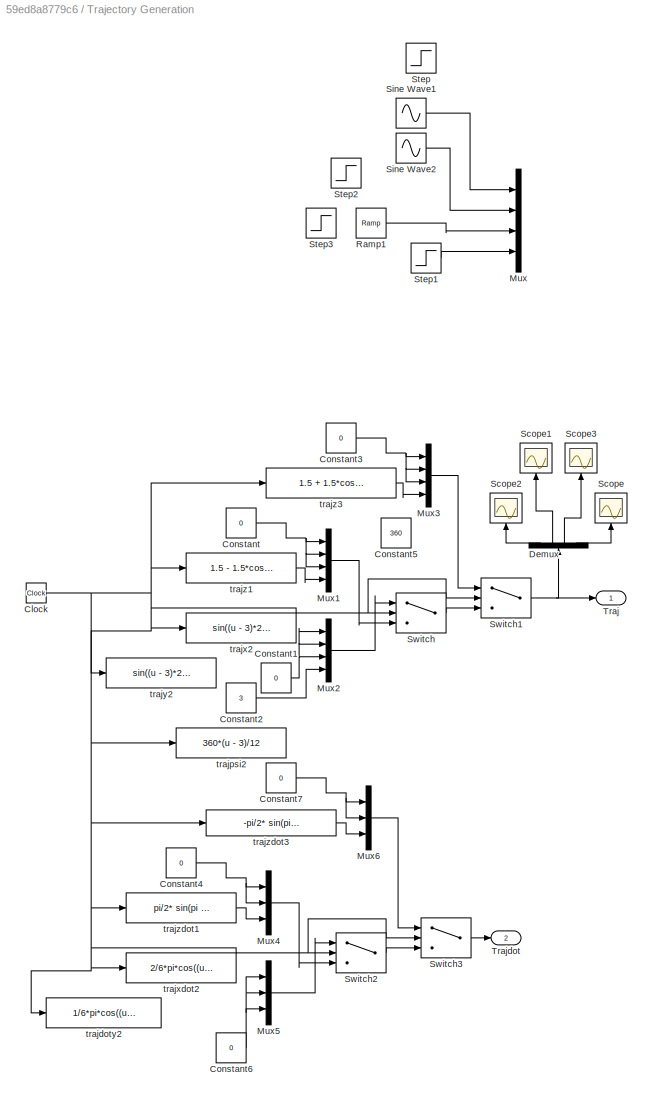
BLOCK [SubSystem] Trajectory Generation
  Ports = [0, 2]
  RequestExecContextInheritance = off
  Variant = off
BLOCK [Clock] Trajectory Generation/Clock
  DisplayTime = on
BLOCK [Constant] Trajectory Generation/Constant
  Value = 0
BLOCK [Constant] Trajectory Generation/Constant1
  Value = 0
BLOCK [Constant] Trajectory Generation/Constant2
  Value = 3
BLOCK [Constant] Trajectory Generation/Constant3
  Value = 0
BLOCK [Constant] Trajectory Generation/Constant4
  Value = 0
BLOCK [Constant] Trajectory Generation/Constant5
  Value = 360
BLOCK [Constant] Trajectory Generation/Constant6
  Value = 0
BLOCK [Constant] Trajectory Generation/Constant7
  Value = 0
BLOCK [Demux] Trajectory Generation/Demux
  DisplayOption = bar
  Ports = [1, 4]
BLOCK [Mux] Trajectory Generation/Mux
  DisplayOption = bar
  Ports = [4, 1]
BLOCK [Mux] Trajectory Generation/Mux1
  DisplayOption = bar
  Ports = [4, 1]
BLOCK [Mux] Trajectory Generation/Mux2
  DisplayOption = bar
  Ports = [4, 1]
BLOCK [Mux] Trajectory Generation/Mux3
  DisplayOption = bar
  Ports = [4, 1]
BLOCK [Mux] Trajectory Generation/Mux4
  DisplayOption = bar
  Inputs = 3
  Ports = [3, 1]
BLOCK [Mux] Trajectory Generation/Mux5
  DisplayOption = bar
  Inputs = 3
  Ports = [3, 1]
BLOCK [Mux] Trajectory Generation/Mux6
  DisplayOption = bar
  Inputs = 3
  Ports = [3, 1]
BLOCK [Reference] Trajectory Generation/Ramp1  REF=simulink/Sources/Ramp
  Ports = [0, 1]
  SourceBlock = simulink/Sources/Ramp
  SourceType = Ramp
BLOCK [Scope] Trajectory Generation/Scope
  Ports = [1]
  ScopeSpecificationString = Simulink.scopes.TimeScopeBlockCfg('CurrentConfiguration', extmgr.ConfigurationSet(extmgr.Configuration('Core','General UI',true),extmgr.Configuration('Core','Source UI',true),extmgr.Configuration('Sources','WiredSimulink',true,'DataLogging',true,'DataLoggingVariableName','z_ref','DataLoggingSaveFormat','Array'),extmgr.Configuration('Visuals','Time Domain',true,'SerializedDisplays',{struct('MinYLim...<+1398ch>
BLOCK [Scope] Trajectory Generation/Scope1
  Ports = [1]
  ScopeSpecificationString = Simulink.scopes.TimeScopeBlockCfg('CurrentConfiguration', extmgr.ConfigurationSet(extmgr.Configuration('Core','General UI',true),extmgr.Configuration('Core','Source UI',true),extmgr.Configuration('Sources','WiredSimulink',true,'DataLogging',true,'DataLoggingVariableName','y_ref','DataLoggingSaveFormat','Array'),extmgr.Configuration('Visuals','Time Domain',true,'SerializedDisplays',{struct('MinYLim...<+1398ch>
BLOCK [Scope] Trajectory Generation/Scope2
  Ports = [1]
  ScopeSpecificationString = Simulink.scopes.TimeScopeBlockCfg('CurrentConfiguration', extmgr.ConfigurationSet(extmgr.Configuration('Core','General UI',true),extmgr.Configuration('Core','Source UI',true),extmgr.Configuration('Sources','WiredSimulink',true,'DataLogging',true,'DataLoggingVariableName','x_ref','DataLoggingSaveFormat','Array'),extmgr.Configuration('Visuals','Time Domain',true,'SerializedDisplays',{struct('MinYLim...<+1394ch>
BLOCK [Scope] Trajectory Generation/Scope3
  Ports = [1]
  ScopeSpecificationString = Simulink.scopes.TimeScopeBlockCfg('CurrentConfiguration', extmgr.ConfigurationSet(extmgr.Configuration('Core','General UI',true),extmgr.Configuration('Core','Source UI',true),extmgr.Configuration('Sources','WiredSimulink',true,'DataLogging',true,'DataLoggingVariableName','yaw_ref','DataLoggingSaveFormat','Array'),extmgr.Configuration('Visuals','Time Domain',true,'SerializedDisplays',{struct('MinYL...<+1392ch>
BLOCK [Sin] Trajectory Generation/Sine Wave1
  Frequency = pi/10
  Phase = -pi/2
  Ports = [0, 1]
  SampleTime = 0
BLOCK [Sin] Trajectory Generation/Sine Wave2
  Frequency = pi/10
  Ports = [0, 1]
  SampleTime = 0
BLOCK [Step] Trajectory Generation/Step
  SampleTime = 0
  Time = 10
BLOCK [Step] Trajectory Generation/Step1
  SampleTime = 0
BLOCK [Step] Trajectory Generation/Step2
  SampleTime = 0
  Time = 5
BLOCK [Step] Trajectory Generation/Step3
  After = 60
  SampleTime = 0
  Time = 15
BLOCK [Switch] Trajectory Generation/Switch
  Criteria = u2 > Threshold
  InputSameDT = off
  SaturateOnIntegerOverflow = off
  Threshold = 3
BLOCK [Switch] Trajectory Generation/Switch1
  Criteria = u2 > Threshold
  InputSameDT = off
  SaturateOnIntegerOverflow = off
  Threshold = 15
BLOCK [Switch] Trajectory Generation/Switch2
  Criteria = u2 > Threshold
  InputSameDT = off
  SaturateOnIntegerOverflow = off
  Threshold = 3
BLOCK [Switch] Trajectory Generation/Switch3
  Criteria = u2 > Threshold
  InputSameDT = off
  SaturateOnIntegerOverflow = off
  Threshold = 15
BLOCK [Outport] Trajectory Generation/Traj
  IconDisplay = Port number
BLOCK [Outport] Trajectory Generation/Trajdot
  IconDisplay = Port number
  Port = 2
BLOCK [Fcn] Trajectory Generation/trajdoty2
  Expr = 1/6*pi*cos((u - 3)*2*pi/12)
BLOCK [Fcn] Trajectory Generation/trajpsi2
  Expr = 360*(u - 3)/12
BLOCK [Fcn] Trajectory Generation/trajx2 
  Expr = sin((u - 3)*2*pi/6)
BLOCK [Fcn] Trajectory Generation/trajxdot2
  Expr = 2/6*pi*cos((u - 3)*2*pi/6)
BLOCK [Fcn] Trajectory Generation/trajy2
  Expr = sin((u - 3)*2*pi/12)
BLOCK [Fcn] Trajectory Generation/trajz1 
  Expr = 1.5 - 1.5*cos(u*2*pi/6)
BLOCK [Fcn] Trajectory Generation/trajz3
  Expr = 1.5 + 1.5*cos((u - 9)*2*pi/6)
BLOCK [Fcn] Trajectory Generation/trajzdot1 
  Expr = pi/2* sin(pi *u/3)
BLOCK [Fcn] Trajectory Generation/trajzdot3
  Expr = -pi/2* sin(pi/3*(u - 15))
ANNOTATION (root): ILQR + integral
ANNOTATION (root): ILQR
ANNOTATION (root): LQR
ANNOTATION (root): Linearized State Space Model
ANNOTATION (root): Nonlinear Model
ANNOTATION On-board Controller: 250 Hz
ANNOTATION On-board Controller: 500 Hz
ANNOTATION On-board Controller: Map to desired attitude rate
ANNOTATION On-board Controller1: 250 Hz
ANNOTATION On-board Controller1: 500 Hz
ANNOTATION On-board Controller1: Map to desired attitude rate
ANNOTATION On-board Controller2: 250 Hz
ANNOTATION On-board Controller2: 500 Hz
ANNOTATION On-board Controller2: Map to desired attitude rate
ANNOTATION On-board Controller3: 250 Hz
ANNOTATION On-board Controller3: 500 Hz
ANNOTATION On-board Controller3: Map to desired attitude rate
ANNOTATION On-board Controller4: 250 Hz
ANNOTATION On-board Controller4: 500 Hz
ANNOTATION On-board Controller4: Map to desired attitude rate
LINE Constant1:1 -> Sum1:1
LINE Constant2:1 -> Sum2:1
LINE Constant3:1 -> Sum3:1
LINE Constant:1 -> Sum:1
LINE Demux1:1 -> Terminator1:1
LINE Demux1:2 -> Terminator2:1
LINE Demux1:3 -> Off-board PID Position Controller:3
LINE Demux1:4 -> Terminator6:1
LINE Demux1:5 -> Terminator7:1
LINE Demux1:6 -> Terminator8:1
LINE Demux2:1 -> Terminator3:1
LINE Demux2:2 -> Terminator4:1
LINE Demux2:3 -> Off-board LQR Position Controller :3
LINE Demux2:4 -> Terminator5:1
LINE Demux2:5 -> Terminator9:1
LINE Demux2:6 -> Terminator10:1
LINE Demux3:1 -> Terminator12:1
LINE Demux3:2 -> Terminator13:1
LINE Demux3:3 -> Off-board ILQR Position Controller:3
LINE Demux3:4 -> Terminator14:1
LINE Demux3:5 -> Terminator15:1
LINE Demux3:6 -> Terminator11:1
LINE Demux4:1 -> Terminator17:1
LINE Demux4:2 -> Terminator18:1
LINE Demux4:3 -> Off-board ILQR Position Controller1:3
LINE Demux4:4 -> Terminator19:1
LINE Demux4:5 -> Terminator20:1
LINE Demux4:6 -> Terminator16:1
NET Demux:1 -> Mux2:1, Mux5:1
NET Demux:10 -> Mux1:1, Mux6:4
NET Demux:11 -> Mux1:2, Mux6:5
NET Demux:12 -> Mux1:3, Mux6:6
NET Demux:2 -> Mux2:2, Mux5:2
NET Demux:3 -> Mux2:3, Mux5:3
NET Demux:4 -> Mux4:1, Mux6:1
NET Demux:5 -> Mux4:2, Mux6:2
NET Demux:6 -> Mux4:3, Mux6:3, Off-board PID Position Controller1:3
LINE Demux:7 -> Mux3:1
LINE Demux:8 -> Mux3:2
LINE Demux:9 -> Mux3:3
LINE Dynamics/Acceleration1:1 -> Dynamics/Integrator1:1
NET Dynamics/Acceleration:1 -> Dynamics/Display:1, Dynamics/Integrator, Second-Order:1
LINE Dynamics/Angular Acceleration:1 -> Dynamics/Integrator:1
NET Dynamics/Demux1:1 -> Dynamics/Mux1:1, Dynamics/Mux:1, Dynamics/Scope:1
NET Dynamics/Demux1:2 -> Dynamics/Mux1:2, Dynamics/Mux:2, Dynamics/Scope1:1
NET Dynamics/Demux1:3 -> Dynamics/Mux1:3, Dynamics/Mux:3, Dynamics/Scope4:1
NET Dynamics/Demux2:1 -> Dynamics/Mux2:1, Dynamics/Mux:7, Dynamics/Scope5:1
NET Dynamics/Demux2:2 -> Dynamics/Mux2:2, Dynamics/Mux:8
NET Dynamics/Demux2:3 -> Dynamics/Gain:1, Dynamics/Mux2:3, Dynamics/Mux:9
NET Dynamics/Demux3:1 -> Dynamics/Mux2:4, Dynamics/Mux:10
NET Dynamics/Demux3:2 -> Dynamics/Mux2:5, Dynamics/Mux:11
NET Dynamics/Demux3:3 -> Dynamics/Mux2:6, Dynamics/Mux:12
LINE Dynamics/Demux5:1 -> Dynamics/Angular Acceleration:5
LINE Dynamics/Demux5:2 -> Dynamics/Angular Acceleration:6
LINE Dynamics/Demux5:3 -> Dynamics/Angular Acceleration:7
LINE Dynamics/Demux5:4 -> Dynamics/Angular Acceleration:8
NET Dynamics/Demux6:1 -> Dynamics/Mux1:4, Dynamics/Mux:4
NET Dynamics/Demux6:2 -> Dynamics/Mux1:5, Dynamics/Mux:5
NET Dynamics/Demux6:3 -> Dynamics/Mux1:6, Dynamics/Mux:6
NET Dynamics/F1:1 -> Dynamics/Acceleration:1, Dynamics/Angular Acceleration:1
NET Dynamics/F2:1 -> Dynamics/Acceleration:2, Dynamics/Angular Acceleration:2
NET Dynamics/F3:1 -> Dynamics/Acceleration:3, Dynamics/Angular Acceleration:3
NET Dynamics/F4:1 -> Dynamics/Acceleration:4, Dynamics/Angular Acceleration:4
LINE Dynamics/Gain:1 -> Dynamics/Scope3:1
LINE Dynamics/Integrator, Second-Order:1 -> Dynamics/Demux1:1
LINE Dynamics/Integrator, Second-Order:2 -> Dynamics/Demux6:1
NET Dynamics/Integrator1:1 -> Dynamics/Acceleration1:2, Dynamics/Acceleration:5, Dynamics/Demux2:1, Dynamics/Display1:1, Dynamics/Scope2:1
NET Dynamics/Integrator:1 -> Dynamics/Acceleration1:1, Dynamics/Angular Acceleration:9, Dynamics/Demux3:1
LINE Dynamics/Moments:1 -> Dynamics/Demux5:1
LINE Dynamics/Mux1:1 -> Dynamics/Position State:1
LINE Dynamics/Mux2:1 -> Dynamics/Attitude State:1
LINE Dynamics/Mux:1 -> Dynamics/State:1
LINE Dynamics1/Acceleration1:1 -> Dynamics1/Integrator1:1
NET Dynamics1/Acceleration:1 -> Dynamics1/Display:1, Dynamics1/Integrator, Second-Order:1
LINE Dynamics1/Angular Acceleration:1 -> Dynamics1/Integrator:1
NET Dynamics1/Demux1:1 -> Dynamics1/Mux1:1, Dynamics1/Mux:1, Dynamics1/Scope:1
NET Dynamics1/Demux1:2 -> Dynamics1/Mux1:2, Dynamics1/Mux:2, Dynamics1/Scope1:1
NET Dynamics1/Demux1:3 -> Dynamics1/Mux1:3, Dynamics1/Mux:3, Dynamics1/Scope4:1
NET Dynamics1/Demux2:1 -> Dynamics1/Mux2:1, Dynamics1/Mux:7
NET Dynamics1/Demux2:2 -> Dynamics1/Mux2:2, Dynamics1/Mux:8
NET Dynamics1/Demux2:3 -> Dynamics1/Gain:1, Dynamics1/Mux2:3, Dynamics1/Mux:9
NET Dynamics1/Demux3:1 -> Dynamics1/Mux2:4, Dynamics1/Mux:10
NET Dynamics1/Demux3:2 -> Dynamics1/Mux2:5, Dynamics1/Mux:11
NET Dynamics1/Demux3:3 -> Dynamics1/Mux2:6, Dynamics1/Mux:12
LINE Dynamics1/Demux5:1 -> Dynamics1/Angular Acceleration:5
LINE Dynamics1/Demux5:2 -> Dynamics1/Angular Acceleration:6
LINE Dynamics1/Demux5:3 -> Dynamics1/Angular Acceleration:7
LINE Dynamics1/Demux5:4 -> Dynamics1/Angular Acceleration:8
NET Dynamics1/Demux6:1 -> Dynamics1/Mux1:4, Dynamics1/Mux:4
NET Dynamics1/Demux6:2 -> Dynamics1/Mux1:5, Dynamics1/Mux:5
NET Dynamics1/Demux6:3 -> Dynamics1/Mux1:6, Dynamics1/Mux:6
NET Dynamics1/F1:1 -> Dynamics1/Acceleration:1, Dynamics1/Angular Acceleration:1
NET Dynamics1/F2:1 -> Dynamics1/Acceleration:2, Dynamics1/Angular Acceleration:2
NET Dynamics1/F3:1 -> Dynamics1/Acceleration:3, Dynamics1/Angular Acceleration:3
NET Dynamics1/F4:1 -> Dynamics1/Acceleration:4, Dynamics1/Angular Acceleration:4
LINE Dynamics1/Gain:1 -> Dynamics1/Scope3:1
LINE Dynamics1/Integrator, Second-Order:1 -> Dynamics1/Demux1:1
LINE Dynamics1/Integrator, Second-Order:2 -> Dynamics1/Demux6:1
NET Dynamics1/Integrator1:1 -> Dynamics1/Acceleration1:2, Dynamics1/Acceleration:5, Dynamics1/Demux2:1, Dynamics1/Display1:1, Dynamics1/Scope2:1
NET Dynamics1/Integrator:1 -> Dynamics1/Acceleration1:1, Dynamics1/Angular Acceleration:9, Dynamics1/Demux3:1
LINE Dynamics1/Moments:1 -> Dynamics1/Demux5:1
LINE Dynamics1/Mux1:1 -> Dynamics1/Position State:1
LINE Dynamics1/Mux2:1 -> Dynamics1/Attitude State:1
LINE Dynamics1/Mux:1 -> Dynamics1/State:1
LINE Dynamics1:2 -> Off-board LQR Position Controller :2
NET Dynamics1:3 -> Demux2:1, On-board Controller2:5
LINE Dynamics2/Acceleration1:1 -> Dynamics2/Integrator1:1
NET Dynamics2/Acceleration:1 -> Dynamics2/Display:1, Dynamics2/Integrator, Second-Order:1
LINE Dynamics2/Angular Acceleration:1 -> Dynamics2/Integrator:1
NET Dynamics2/Demux1:1 -> Dynamics2/Mux1:1, Dynamics2/Mux:1, Dynamics2/Scope:1
NET Dynamics2/Demux1:2 -> Dynamics2/Mux1:2, Dynamics2/Mux:2, Dynamics2/Scope1:1
NET Dynamics2/Demux1:3 -> Dynamics2/Mux1:3, Dynamics2/Mux:3, Dynamics2/Scope4:1
NET Dynamics2/Demux2:1 -> Dynamics2/Mux2:1, Dynamics2/Mux:7
NET Dynamics2/Demux2:2 -> Dynamics2/Mux2:2, Dynamics2/Mux:8
NET Dynamics2/Demux2:3 -> Dynamics2/Gain:1, Dynamics2/Mux2:3, Dynamics2/Mux:9
NET Dynamics2/Demux3:1 -> Dynamics2/Mux2:4, Dynamics2/Mux:10
NET Dynamics2/Demux3:2 -> Dynamics2/Mux2:5, Dynamics2/Mux:11
NET Dynamics2/Demux3:3 -> Dynamics2/Mux2:6, Dynamics2/Mux:12
LINE Dynamics2/Demux5:1 -> Dynamics2/Angular Acceleration:5
LINE Dynamics2/Demux5:2 -> Dynamics2/Angular Acceleration:6
LINE Dynamics2/Demux5:3 -> Dynamics2/Angular Acceleration:7
LINE Dynamics2/Demux5:4 -> Dynamics2/Angular Acceleration:8
NET Dynamics2/Demux6:1 -> Dynamics2/Mux1:4, Dynamics2/Mux:4
NET Dynamics2/Demux6:2 -> Dynamics2/Mux1:5, Dynamics2/Mux:5
NET Dynamics2/Demux6:3 -> Dynamics2/Mux1:6, Dynamics2/Mux:6
NET Dynamics2/F1:1 -> Dynamics2/Acceleration:1, Dynamics2/Angular Acceleration:1
NET Dynamics2/F2:1 -> Dynamics2/Acceleration:2, Dynamics2/Angular Acceleration:2
NET Dynamics2/F3:1 -> Dynamics2/Acceleration:3, Dynamics2/Angular Acceleration:3
NET Dynamics2/F4:1 -> Dynamics2/Acceleration:4, Dynamics2/Angular Acceleration:4
LINE Dynamics2/Gain:1 -> Dynamics2/Scope3:1
LINE Dynamics2/Integrator, Second-Order:1 -> Dynamics2/Demux1:1
LINE Dynamics2/Integrator, Second-Order:2 -> Dynamics2/Demux6:1
NET Dynamics2/Integrator1:1 -> Dynamics2/Acceleration1:2, Dynamics2/Acceleration:5, Dynamics2/Demux2:1, Dynamics2/Display1:1, Dynamics2/Scope2:1
NET Dynamics2/Integrator:1 -> Dynamics2/Acceleration1:1, Dynamics2/Angular Acceleration:9, Dynamics2/Demux3:1
LINE Dynamics2/Moments:1 -> Dynamics2/Demux5:1
LINE Dynamics2/Mux1:1 -> Dynamics2/Position State:1
LINE Dynamics2/Mux2:1 -> Dynamics2/Attitude State:1
LINE Dynamics2/Mux:1 -> Dynamics2/State:1
LINE Dynamics2:2 -> Off-board ILQR Position Controller:2
NET Dynamics2:3 -> Demux3:1, On-board Controller3:5
LINE Dynamics3/Acceleration1:1 -> Dynamics3/Integrator1:1
NET Dynamics3/Acceleration:1 -> Dynamics3/Display:1, Dynamics3/Integrator, Second-Order:1
LINE Dynamics3/Angular Acceleration:1 -> Dynamics3/Integrator:1
NET Dynamics3/Demux1:1 -> Dynamics3/Mux1:1, Dynamics3/Mux:1, Dynamics3/Scope:1
NET Dynamics3/Demux1:2 -> Dynamics3/Mux1:2, Dynamics3/Mux:2, Dynamics3/Scope1:1
NET Dynamics3/Demux1:3 -> Dynamics3/Mux1:3, Dynamics3/Mux:3, Dynamics3/Scope4:1
NET Dynamics3/Demux2:1 -> Dynamics3/Mux2:1, Dynamics3/Mux:7
NET Dynamics3/Demux2:2 -> Dynamics3/Mux2:2, Dynamics3/Mux:8
NET Dynamics3/Demux2:3 -> Dynamics3/Gain:1, Dynamics3/Mux2:3, Dynamics3/Mux:9
NET Dynamics3/Demux3:1 -> Dynamics3/Mux2:4, Dynamics3/Mux:10
NET Dynamics3/Demux3:2 -> Dynamics3/Mux2:5, Dynamics3/Mux:11
NET Dynamics3/Demux3:3 -> Dynamics3/Mux2:6, Dynamics3/Mux:12
LINE Dynamics3/Demux5:1 -> Dynamics3/Angular Acceleration:5
LINE Dynamics3/Demux5:2 -> Dynamics3/Angular Acceleration:6
LINE Dynamics3/Demux5:3 -> Dynamics3/Angular Acceleration:7
LINE Dynamics3/Demux5:4 -> Dynamics3/Angular Acceleration:8
NET Dynamics3/Demux6:1 -> Dynamics3/Mux1:4, Dynamics3/Mux:4
NET Dynamics3/Demux6:2 -> Dynamics3/Mux1:5, Dynamics3/Mux:5
NET Dynamics3/Demux6:3 -> Dynamics3/Mux1:6, Dynamics3/Mux:6
NET Dynamics3/F1:1 -> Dynamics3/Acceleration:1, Dynamics3/Angular Acceleration:1
NET Dynamics3/F2:1 -> Dynamics3/Acceleration:2, Dynamics3/Angular Acceleration:2
NET Dynamics3/F3:1 -> Dynamics3/Acceleration:3, Dynamics3/Angular Acceleration:3
NET Dynamics3/F4:1 -> Dynamics3/Acceleration:4, Dynamics3/Angular Acceleration:4
LINE Dynamics3/Gain:1 -> Dynamics3/Scope3:1
LINE Dynamics3/Integrator, Second-Order:1 -> Dynamics3/Demux1:1
LINE Dynamics3/Integrator, Second-Order:2 -> Dynamics3/Demux6:1
NET Dynamics3/Integrator1:1 -> Dynamics3/Acceleration1:2, Dynamics3/Acceleration:5, Dynamics3/Demux2:1, Dynamics3/Display1:1, Dynamics3/Scope2:1
NET Dynamics3/Integrator:1 -> Dynamics3/Acceleration1:1, Dynamics3/Angular Acceleration:9, Dynamics3/Demux3:1
LINE Dynamics3/Moments:1 -> Dynamics3/Demux5:1
LINE Dynamics3/Mux1:1 -> Dynamics3/Position State:1
LINE Dynamics3/Mux2:1 -> Dynamics3/Attitude State:1
LINE Dynamics3/Mux:1 -> Dynamics3/State:1
LINE Dynamics3:2 -> Off-board ILQR Position Controller1:2
NET Dynamics3:3 -> Demux4:1, On-board Controller4:5
LINE Dynamics:2 -> Off-board PID Position Controller:2
NET Dynamics:3 -> Demux1:1, On-board Controller:5
LINE From1:1 -> Off-board LQR Position Controller :4
LINE From2:1 -> Off-board ILQR Position Controller1:4
LINE From:1 -> Off-board ILQR Position Controller:4
LINE Gain:1 -> Scope3:1
LINE Math Function1:1 -> Sum1:2
LINE Math Function2:1 -> Sum2:2
LINE Math Function3:1 -> Sum3:2
LINE Math Function:1 -> Sum:2
LINE Motor Model/Kf1:1 -> Motor Model/Saturation:1
LINE Motor Model/Kf2:1 -> Motor Model/Saturation1:1
LINE Motor Model/Kf3:1 -> Motor Model/Saturation2:1
LINE Motor Model/Kf4:1 -> Motor Model/Saturation3:1
LINE Motor Model/Km1:1 -> Motor Model/Mux1:1
LINE Motor Model/Km2:1 -> Motor Model/Mux1:2
LINE Motor Model/Km3:1 -> Motor Model/Mux1:3
LINE Motor Model/Km4:1 -> Motor Model/Mux1:4
LINE Motor Model/Math Function1:1 -> Motor Model/Kf2:1
LINE Motor Model/Math Function2:1 -> Motor Model/Kf3:1
LINE Motor Model/Math Function3:1 -> Motor Model/Kf4:1
LINE Motor Model/Math Function4:1 -> Motor Model/Km1:1
LINE Motor Model/Math Function5:1 -> Motor Model/Km2:1
LINE Motor Model/Math Function6:1 -> Motor Model/Km3:1
LINE Motor Model/Math Function7:1 -> Motor Model/Km4:1
LINE Motor Model/Math Function:1 -> Motor Model/Kf1:1
LINE Motor Model/Mux1:1 -> Motor Model/Moments:1
NET Motor Model/RPM 1:1 -> Motor Model/Math Function4:1, Motor Model/Math Function:1
NET Motor Model/RPM 2:1 -> Motor Model/Math Function1:1, Motor Model/Math Function5:1
NET Motor Model/RPM 3:1 -> Motor Model/Math Function2:1, Motor Model/Math Function6:1
NET Motor Model/RPM 4:1 -> Motor Model/Math Function3:1, Motor Model/Math Function7:1
LINE Motor Model/Saturation1:1 -> Motor Model/F2:1
LINE Motor Model/Saturation2:1 -> Motor Model/F3:1
LINE Motor Model/Saturation3:1 -> Motor Model/F4:1
LINE Motor Model/Saturation:1 -> Motor Model/F1:1
LINE Motor Model1/Kf1:1 -> Motor Model1/Saturation:1
LINE Motor Model1/Kf2:1 -> Motor Model1/Saturation1:1
LINE Motor Model1/Kf3:1 -> Motor Model1/Saturation2:1
LINE Motor Model1/Kf4:1 -> Motor Model1/Saturation3:1
LINE Motor Model1/Km1:1 -> Motor Model1/Mux1:1
LINE Motor Model1/Km2:1 -> Motor Model1/Mux1:2
LINE Motor Model1/Km3:1 -> Motor Model1/Mux1:3
LINE Motor Model1/Km4:1 -> Motor Model1/Mux1:4
LINE Motor Model1/Math Function1:1 -> Motor Model1/Kf2:1
LINE Motor Model1/Math Function2:1 -> Motor Model1/Kf3:1
LINE Motor Model1/Math Function3:1 -> Motor Model1/Kf4:1
LINE Motor Model1/Math Function4:1 -> Motor Model1/Km1:1
LINE Motor Model1/Math Function5:1 -> Motor Model1/Km2:1
LINE Motor Model1/Math Function6:1 -> Motor Model1/Km3:1
LINE Motor Model1/Math Function7:1 -> Motor Model1/Km4:1
LINE Motor Model1/Math Function:1 -> Motor Model1/Kf1:1
LINE Motor Model1/Mux1:1 -> Motor Model1/Moments:1
NET Motor Model1/RPM 1:1 -> Motor Model1/Math Function4:1, Motor Model1/Math Function:1
NET Motor Model1/RPM 2:1 -> Motor Model1/Math Function1:1, Motor Model1/Math Function5:1
NET Motor Model1/RPM 3:1 -> Motor Model1/Math Function2:1, Motor Model1/Math Function6:1
NET Motor Model1/RPM 4:1 -> Motor Model1/Math Function3:1, Motor Model1/Math Function7:1
LINE Motor Model1/Saturation1:1 -> Motor Model1/F2:1
LINE Motor Model1/Saturation2:1 -> Motor Model1/F3:1
LINE Motor Model1/Saturation3:1 -> Motor Model1/F4:1
LINE Motor Model1/Saturation:1 -> Motor Model1/F1:1
LINE Motor Model1:1 -> Dynamics1:1
LINE Motor Model1:2 -> Dynamics1:2
LINE Motor Model1:3 -> Dynamics1:3
LINE Motor Model1:4 -> Dynamics1:4
LINE Motor Model1:5 -> Dynamics1:5
LINE Motor Model2/Kf1:1 -> Motor Model2/Saturation:1
LINE Motor Model2/Kf2:1 -> Motor Model2/Saturation1:1
LINE Motor Model2/Kf3:1 -> Motor Model2/Saturation2:1
LINE Motor Model2/Kf4:1 -> Motor Model2/Saturation3:1
LINE Motor Model2/Km1:1 -> Motor Model2/Mux1:1
LINE Motor Model2/Km2:1 -> Motor Model2/Mux1:2
LINE Motor Model2/Km3:1 -> Motor Model2/Mux1:3
LINE Motor Model2/Km4:1 -> Motor Model2/Mux1:4
LINE Motor Model2/Math Function1:1 -> Motor Model2/Kf2:1
LINE Motor Model2/Math Function2:1 -> Motor Model2/Kf3:1
LINE Motor Model2/Math Function3:1 -> Motor Model2/Kf4:1
LINE Motor Model2/Math Function4:1 -> Motor Model2/Km1:1
LINE Motor Model2/Math Function5:1 -> Motor Model2/Km2:1
LINE Motor Model2/Math Function6:1 -> Motor Model2/Km3:1
LINE Motor Model2/Math Function7:1 -> Motor Model2/Km4:1
LINE Motor Model2/Math Function:1 -> Motor Model2/Kf1:1
LINE Motor Model2/Mux1:1 -> Motor Model2/Moments:1
NET Motor Model2/RPM 1:1 -> Motor Model2/Math Function4:1, Motor Model2/Math Function:1
NET Motor Model2/RPM 2:1 -> Motor Model2/Math Function1:1, Motor Model2/Math Function5:1
NET Motor Model2/RPM 3:1 -> Motor Model2/Math Function2:1, Motor Model2/Math Function6:1
NET Motor Model2/RPM 4:1 -> Motor Model2/Math Function3:1, Motor Model2/Math Function7:1
LINE Motor Model2/Saturation1:1 -> Motor Model2/F2:1
LINE Motor Model2/Saturation2:1 -> Motor Model2/F3:1
LINE Motor Model2/Saturation3:1 -> Motor Model2/F4:1
LINE Motor Model2/Saturation:1 -> Motor Model2/F1:1
LINE Motor Model2:1 -> Dynamics2:1
LINE Motor Model2:2 -> Dynamics2:2
LINE Motor Model2:3 -> Dynamics2:3
LINE Motor Model2:4 -> Dynamics2:4
LINE Motor Model2:5 -> Dynamics2:5
LINE Motor Model3/Kf1:1 -> Motor Model3/Saturation:1
LINE Motor Model3/Kf2:1 -> Motor Model3/Saturation1:1
LINE Motor Model3/Kf3:1 -> Motor Model3/Saturation2:1
LINE Motor Model3/Kf4:1 -> Motor Model3/Saturation3:1
LINE Motor Model3/Km1:1 -> Motor Model3/Mux1:1
LINE Motor Model3/Km2:1 -> Motor Model3/Mux1:2
LINE Motor Model3/Km3:1 -> Motor Model3/Mux1:3
LINE Motor Model3/Km4:1 -> Motor Model3/Mux1:4
LINE Motor Model3/Math Function1:1 -> Motor Model3/Kf2:1
LINE Motor Model3/Math Function2:1 -> Motor Model3/Kf3:1
LINE Motor Model3/Math Function3:1 -> Motor Model3/Kf4:1
LINE Motor Model3/Math Function4:1 -> Motor Model3/Km1:1
LINE Motor Model3/Math Function5:1 -> Motor Model3/Km2:1
LINE Motor Model3/Math Function6:1 -> Motor Model3/Km3:1
LINE Motor Model3/Math Function7:1 -> Motor Model3/Km4:1
LINE Motor Model3/Math Function:1 -> Motor Model3/Kf1:1
LINE Motor Model3/Mux1:1 -> Motor Model3/Moments:1
NET Motor Model3/RPM 1:1 -> Motor Model3/Math Function4:1, Motor Model3/Math Function:1
NET Motor Model3/RPM 2:1 -> Motor Model3/Math Function1:1, Motor Model3/Math Function5:1
NET Motor Model3/RPM 3:1 -> Motor Model3/Math Function2:1, Motor Model3/Math Function6:1
NET Motor Model3/RPM 4:1 -> Motor Model3/Math Function3:1, Motor Model3/Math Function7:1
LINE Motor Model3/Saturation1:1 -> Motor Model3/F2:1
LINE Motor Model3/Saturation2:1 -> Motor Model3/F3:1
LINE Motor Model3/Saturation3:1 -> Motor Model3/F4:1
LINE Motor Model3/Saturation:1 -> Motor Model3/F1:1
LINE Motor Model3:1 -> Dynamics3:1
LINE Motor Model3:2 -> Dynamics3:2
LINE Motor Model3:3 -> Dynamics3:3
LINE Motor Model3:4 -> Dynamics3:4
LINE Motor Model3:5 -> Dynamics3:5
LINE Motor Model:1 -> Dynamics:1
LINE Motor Model:2 -> Dynamics:2
LINE Motor Model:3 -> Dynamics:3
LINE Motor Model:4 -> Dynamics:4
LINE Motor Model:5 -> Dynamics:5
LINE Mux1:1 -> Scope:1
LINE Mux2:1 -> Off-board PID Position Controller1:2
LINE Mux3:1 -> Scope1:1
LINE Mux4:1 -> Gain:1
LINE Mux5:1 -> Scope2:1
LINE Mux6:1 -> On-board Controller1:5
LINE Mux:1 -> State-Space:1
LINE Off-board ILQR Position Controller/Demux1:1 -> Off-board ILQR Position Controller/ILQR:1
LINE Off-board ILQR Position Controller/Demux1:2 -> Off-board ILQR Position Controller/ILQR:2
LINE Off-board ILQR Position Controller/Demux1:3 -> Off-board ILQR Position Controller/ILQR:3
LINE Off-board ILQR Position Controller/Demux1:4 -> Off-board ILQR Position Controller/ILQR:4
LINE Off-board ILQR Position Controller/Demux1:5 -> Off-board ILQR Position Controller/ILQR:5
LINE Off-board ILQR Position Controller/Demux1:6 -> Off-board ILQR Position Controller/ILQR:6
LINE Off-board ILQR Position Controller/From:1 -> Off-board ILQR Position Controller/Subsystem2:3
LINE Off-board ILQR Position Controller/Gain1:1 -> Off-board ILQR Position Controller/Yawrate:1
LINE Off-board ILQR Position Controller/Gain2:1 -> Off-board ILQR Position Controller/ILQR:7
LINE Off-board ILQR Position Controller/ILQR/Constant1:1 -> Off-board ILQR Position Controller/ILQR/Sum:2
LINE Off-board ILQR Position Controller/ILQR/Demux1:1 -> Off-board ILQR Position Controller/ILQR/Mux1:4
LINE Off-board ILQR Position Controller/ILQR/Demux1:2 -> Off-board ILQR Position Controller/ILQR/Mux1:5
LINE Off-board ILQR Position Controller/ILQR/Demux1:3 -> Off-board ILQR Position Controller/ILQR/Mux1:6
LINE Off-board ILQR Position Controller/ILQR/Demux2:1 -> Off-board ILQR Position Controller/ILQR/Roll Desired:1
LINE Off-board ILQR Position Controller/ILQR/Demux2:2 -> Off-board ILQR Position Controller/ILQR/Pitch Desired:1
LINE Off-board ILQR Position Controller/ILQR/Demux2:3 -> Off-board ILQR Position Controller/ILQR/Sum:1
NET Off-board ILQR Position Controller/ILQR/Demux2:4 -> Off-board ILQR Position Controller/ILQR/Scope1:1, Off-board ILQR Position Controller/ILQR/Yaw rate Desired:1
LINE Off-board ILQR Position Controller/ILQR/Demux:1 -> Off-board ILQR Position Controller/ILQR/Mux1:1
LINE Off-board ILQR Position Controller/ILQR/Demux:2 -> Off-board ILQR Position Controller/ILQR/Mux1:2
LINE Off-board ILQR Position Controller/ILQR/Demux:3 -> Off-board ILQR Position Controller/ILQR/Mux1:7
LINE Off-board ILQR Position Controller/ILQR/Demux:4 -> Off-board ILQR Position Controller/ILQR/Mux1:3
LINE Off-board ILQR Position Controller/ILQR/Fcn:1 -> Off-board ILQR Position Controller/ILQR/Thrust Desired:1
NET Off-board ILQR Position Controller/ILQR/MATLAB Function:1 -> Off-board ILQR Position Controller/ILQR/Demux2:1, Off-board ILQR Position Controller/ILQR/Memory:1
LINE Off-board ILQR Position Controller/ILQR/Memory:1 -> Off-board ILQR Position Controller/ILQR/MATLAB Function:3
LINE Off-board ILQR Position Controller/ILQR/Mux1:1 -> Off-board ILQR Position Controller/ILQR/MATLAB Function:2
LINE Off-board ILQR Position Controller/ILQR/Mux:1 -> Off-board ILQR Position Controller/ILQR/MATLAB Function:1
NET Off-board ILQR Position Controller/ILQR/Saturation:1 -> Off-board ILQR Position Controller/ILQR/Fcn:1, Off-board ILQR Position Controller/ILQR/Scope:1
LINE Off-board ILQR Position Controller/ILQR/Sum:1 -> Off-board ILQR Position Controller/ILQR/Saturation:1
LINE Off-board ILQR Position Controller/ILQR/traj:1 -> Off-board ILQR Position Controller/ILQR/Demux:1
LINE Off-board ILQR Position Controller/ILQR/trajdot:1 -> Off-board ILQR Position Controller/ILQR/Demux1:1
LINE Off-board ILQR Position Controller/ILQR/x meas:1 -> Off-board ILQR Position Controller/ILQR/Mux:1
LINE Off-board ILQR Position Controller/ILQR/xdot meas:1 -> Off-board ILQR Position Controller/ILQR/Mux:4
LINE Off-board ILQR Position Controller/ILQR/y meas:1 -> Off-board ILQR Position Controller/ILQR/Mux:2
LINE Off-board ILQR Position Controller/ILQR/yaw meas :1 -> Off-board ILQR Position Controller/ILQR/Mux:7
LINE Off-board ILQR Position Controller/ILQR/ydot meas:1 -> Off-board ILQR Position Controller/ILQR/Mux:5
LINE Off-board ILQR Position Controller/ILQR/z meas:1 -> Off-board ILQR Position Controller/ILQR/Mux:3
LINE Off-board ILQR Position Controller/ILQR/zdot meas:1 -> Off-board ILQR Position Controller/ILQR/Mux:6
LINE Off-board ILQR Position Controller/ILQR:1 -> Off-board ILQR Position Controller/Subsystem2:1
LINE Off-board ILQR Position Controller/ILQR:2 -> Off-board ILQR Position Controller/Subsystem2:2
LINE Off-board ILQR Position Controller/ILQR:3 -> Off-board ILQR Position Controller/Gain1:1
LINE Off-board ILQR Position Controller/ILQR:4 -> Off-board ILQR Position Controller/Saturation:1
NET Off-board ILQR Position Controller/Meaured Yaw:1 -> Off-board ILQR Position Controller/Gain2:1, Off-board ILQR Position Controller/Goto:1
LINE Off-board ILQR Position Controller/Position State:1 -> Off-board ILQR Position Controller/Demux1:1
NET Off-board ILQR Position Controller/Saturation1:1 -> Off-board ILQR Position Controller/Pitch:1, Off-board ILQR Position Controller/Scope1:1
NET Off-board ILQR Position Controller/Saturation2:1 -> Off-board ILQR Position Controller/Roll:1, Off-board ILQR Position Controller/Scope:1
NET Off-board ILQR Position Controller/Saturation:1 -> Off-board ILQR Position Controller/Display:1, Off-board ILQR Position Controller/Thrust:1
LINE Off-board ILQR Position Controller/Subsystem2/Demux:1 -> Off-board ILQR Position Controller/Subsystem2/Rollb Error:1
LINE Off-board ILQR Position Controller/Subsystem2/Demux:2 -> Off-board ILQR Position Controller/Subsystem2/Pitchb Error:1
LINE Off-board ILQR Position Controller/Subsystem2/MATLAB Function:1 -> Off-board ILQR Position Controller/Subsystem2/Product:1
LINE Off-board ILQR Position Controller/Subsystem2/Measured Yaw:1 -> Off-board ILQR Position Controller/Subsystem2/MATLAB Function:1
LINE Off-board ILQR Position Controller/Subsystem2/Mux:1 -> Off-board ILQR Position Controller/Subsystem2/Product:2
LINE Off-board ILQR Position Controller/Subsystem2/Pitchw:1 -> Off-board ILQR Position Controller/Subsystem2/Mux:2
LINE Off-board ILQR Position Controller/Subsystem2/Product:1 -> Off-board ILQR Position Controller/Subsystem2/Demux:1
LINE Off-board ILQR Position Controller/Subsystem2/Rollw:1 -> Off-board ILQR Position Controller/Subsystem2/Mux:1
LINE Off-board ILQR Position Controller/Subsystem2:1 -> Off-board ILQR Position Controller/Saturation1:1
LINE Off-board ILQR Position Controller/Subsystem2:2 -> Off-board ILQR Position Controller/Saturation2:1
LINE Off-board ILQR Position Controller/Traj:1 -> Off-board ILQR Position Controller/ILQR:8
LINE Off-board ILQR Position Controller/Trajdot :1 -> Off-board ILQR Position Controller/ILQR:9
NET Off-board ILQR Position Controller1/Demux1:1 -> Off-board ILQR Position Controller1/ILQR:1, Off-board ILQR Position Controller1/Subtract:2
NET Off-board ILQR Position Controller1/Demux1:2 -> Off-board ILQR Position Controller1/ILQR:2, Off-board ILQR Position Controller1/Subtract1:2
NET Off-board ILQR Position Controller1/Demux1:3 -> Off-board ILQR Position Controller1/ILQR:3, Off-board ILQR Position Controller1/Subtract2:2
LINE Off-board ILQR Position Controller1/Demux1:4 -> Off-board ILQR Position Controller1/ILQR:4
LINE Off-board ILQR Position Controller1/Demux1:5 -> Off-board ILQR Position Controller1/ILQR:5
LINE Off-board ILQR Position Controller1/Demux1:6 -> Off-board ILQR Position Controller1/ILQR:6
LINE Off-board ILQR Position Controller1/Demux:1 -> Off-board ILQR Position Controller1/Subtract:1
LINE Off-board ILQR Position Controller1/Demux:2 -> Off-board ILQR Position Controller1/Subtract1:1
LINE Off-board ILQR Position Controller1/Demux:3 -> Off-board ILQR Position Controller1/Subtract2:1
LINE Off-board ILQR Position Controller1/From:1 -> Off-board ILQR Position Controller1/Subsystem2:3
LINE Off-board ILQR Position Controller1/Gain1:1 -> Off-board ILQR Position Controller1/Yawrate:1
LINE Off-board ILQR Position Controller1/Gain2:1 -> Off-board ILQR Position Controller1/ILQR:7
LINE Off-board ILQR Position Controller1/ILQR/Constant1:1 -> Off-board ILQR Position Controller1/ILQR/Sum:2
NET Off-board ILQR Position Controller1/ILQR/Constant:1 -> Off-board ILQR Position Controller1/ILQR/Mux1:10, Off-board ILQR Position Controller1/ILQR/Mux1:8, Off-board ILQR Position Controller1/ILQR/Mux1:9
LINE Off-board ILQR Position Controller1/ILQR/Demux1:1 -> Off-board ILQR Position Controller1/ILQR/Mux1:4
LINE Off-board ILQR Position Controller1/ILQR/Demux1:2 -> Off-board ILQR Position Controller1/ILQR/Mux1:5
LINE Off-board ILQR Position Controller1/ILQR/Demux1:3 -> Off-board ILQR Position Controller1/ILQR/Mux1:6
LINE Off-board ILQR Position Controller1/ILQR/Demux2:1 -> Off-board ILQR Position Controller1/ILQR/Roll Desired:1
LINE Off-board ILQR Position Controller1/ILQR/Demux2:2 -> Off-board ILQR Position Controller1/ILQR/Pitch Desired:1
LINE Off-board ILQR Position Controller1/ILQR/Demux2:3 -> Off-board ILQR Position Controller1/ILQR/Sum:1
NET Off-board ILQR Position Controller1/ILQR/Demux2:4 -> Off-board ILQR Position Controller1/ILQR/Scope1:1, Off-board ILQR Position Controller1/ILQR/Yaw rate Desired:1
LINE Off-board ILQR Position Controller1/ILQR/Demux:1 -> Off-board ILQR Position Controller1/ILQR/Mux1:1
LINE Off-board ILQR Position Controller1/ILQR/Demux:2 -> Off-board ILQR Position Controller1/ILQR/Mux1:2
LINE Off-board ILQR Position Controller1/ILQR/Demux:3 -> Off-board ILQR Position Controller1/ILQR/Mux1:7
LINE Off-board ILQR Position Controller1/ILQR/Demux:4 -> Off-board ILQR Position Controller1/ILQR/Mux1:3
LINE Off-board ILQR Position Controller1/ILQR/Fcn:1 -> Off-board ILQR Position Controller1/ILQR/Thrust Desired:1
NET Off-board ILQR Position Controller1/ILQR/MATLAB Function:1 -> Off-board ILQR Position Controller1/ILQR/Demux2:1, Off-board ILQR Position Controller1/ILQR/Memory:1
LINE Off-board ILQR Position Controller1/ILQR/Memory:1 -> Off-board ILQR Position Controller1/ILQR/MATLAB Function:3
LINE Off-board ILQR Position Controller1/ILQR/Mux1:1 -> Off-board ILQR Position Controller1/ILQR/MATLAB Function:2
LINE Off-board ILQR Position Controller1/ILQR/Mux:1 -> Off-board ILQR Position Controller1/ILQR/MATLAB Function:1
NET Off-board ILQR Position Controller1/ILQR/Saturation:1 -> Off-board ILQR Position Controller1/ILQR/Fcn:1, Off-board ILQR Position Controller1/ILQR/Scope:1
LINE Off-board ILQR Position Controller1/ILQR/Sum:1 -> Off-board ILQR Position Controller1/ILQR/Saturation:1
LINE Off-board ILQR Position Controller1/ILQR/traj:1 -> Off-board ILQR Position Controller1/ILQR/Demux:1
LINE Off-board ILQR Position Controller1/ILQR/trajdot:1 -> Off-board ILQR Position Controller1/ILQR/Demux1:1
LINE Off-board ILQR Position Controller1/ILQR/x meas:1 -> Off-board ILQR Position Controller1/ILQR/Mux:1
LINE Off-board ILQR Position Controller1/ILQR/xdot meas:1 -> Off-board ILQR Position Controller1/ILQR/Mux:4
LINE Off-board ILQR Position Controller1/ILQR/xerr:1 -> Off-board ILQR Position Controller1/ILQR/Mux:8
LINE Off-board ILQR Position Controller1/ILQR/y meas:1 -> Off-board ILQR Position Controller1/ILQR/Mux:2
LINE Off-board ILQR Position Controller1/ILQR/yaw meas :1 -> Off-board ILQR Position Controller1/ILQR/Mux:7
LINE Off-board ILQR Position Controller1/ILQR/ydot meas:1 -> Off-board ILQR Position Controller1/ILQR/Mux:5
LINE Off-board ILQR Position Controller1/ILQR/yerr:1 -> Off-board ILQR Position Controller1/ILQR/Mux:9
LINE Off-board ILQR Position Controller1/ILQR/z meas:1 -> Off-board ILQR Position Controller1/ILQR/Mux:3
LINE Off-board ILQR Position Controller1/ILQR/zdot meas:1 -> Off-board ILQR Position Controller1/ILQR/Mux:6
LINE Off-board ILQR Position Controller1/ILQR/zerr:1 -> Off-board ILQR Position Controller1/ILQR/Mux:10
LINE Off-board ILQR Position Controller1/ILQR:1 -> Off-board ILQR Position Controller1/Subsystem2:1
LINE Off-board ILQR Position Controller1/ILQR:2 -> Off-board ILQR Position Controller1/Subsystem2:2
LINE Off-board ILQR Position Controller1/ILQR:3 -> Off-board ILQR Position Controller1/Gain1:1
LINE Off-board ILQR Position Controller1/ILQR:4 -> Off-board ILQR Position Controller1/Saturation:1
LINE Off-board ILQR Position Controller1/Integrator1:1 -> Off-board ILQR Position Controller1/ILQR:11
LINE Off-board ILQR Position Controller1/Integrator2:1 -> Off-board ILQR Position Controller1/ILQR:10
LINE Off-board ILQR Position Controller1/Integrator:1 -> Off-board ILQR Position Controller1/ILQR:12
NET Off-board ILQR Position Controller1/Meaured Yaw:1 -> Off-board ILQR Position Controller1/Gain2:1, Off-board ILQR Position Controller1/Goto:1
LINE Off-board ILQR Position Controller1/Position State:1 -> Off-board ILQR Position Controller1/Demux1:1
NET Off-board ILQR Position Controller1/Saturation1:1 -> Off-board ILQR Position Controller1/Pitch:1, Off-board ILQR Position Controller1/Scope1:1
NET Off-board ILQR Position Controller1/Saturation2:1 -> Off-board ILQR Position Controller1/Roll:1, Off-board ILQR Position Controller1/Scope:1
NET Off-board ILQR Position Controller1/Saturation:1 -> Off-board ILQR Position Controller1/Display:1, Off-board ILQR Position Controller1/Thrust:1
LINE Off-board ILQR Position Controller1/Subsystem2/Demux:1 -> Off-board ILQR Position Controller1/Subsystem2/Rollb Error:1
LINE Off-board ILQR Position Controller1/Subsystem2/Demux:2 -> Off-board ILQR Position Controller1/Subsystem2/Pitchb Error:1
LINE Off-board ILQR Position Controller1/Subsystem2/MATLAB Function:1 -> Off-board ILQR Position Controller1/Subsystem2/Product:1
LINE Off-board ILQR Position Controller1/Subsystem2/Measured Yaw:1 -> Off-board ILQR Position Controller1/Subsystem2/MATLAB Function:1
LINE Off-board ILQR Position Controller1/Subsystem2/Mux:1 -> Off-board ILQR Position Controller1/Subsystem2/Product:2
LINE Off-board ILQR Position Controller1/Subsystem2/Pitchw:1 -> Off-board ILQR Position Controller1/Subsystem2/Mux:2
LINE Off-board ILQR Position Controller1/Subsystem2/Product:1 -> Off-board ILQR Position Controller1/Subsystem2/Demux:1
LINE Off-board ILQR Position Controller1/Subsystem2/Rollw:1 -> Off-board ILQR Position Controller1/Subsystem2/Mux:1
LINE Off-board ILQR Position Controller1/Subsystem2:1 -> Off-board ILQR Position Controller1/Saturation1:1
LINE Off-board ILQR Position Controller1/Subsystem2:2 -> Off-board ILQR Position Controller1/Saturation2:1
LINE Off-board ILQR Position Controller1/Subtract1:1 -> Off-board ILQR Position Controller1/Integrator1:1
LINE Off-board ILQR Position Controller1/Subtract2:1 -> Off-board ILQR Position Controller1/Integrator:1
LINE Off-board ILQR Position Controller1/Subtract:1 -> Off-board ILQR Position Controller1/Integrator2:1
NET Off-board ILQR Position Controller1/Traj:1 -> Off-board ILQR Position Controller1/Demux:1, Off-board ILQR Position Controller1/ILQR:8
LINE Off-board ILQR Position Controller1/Trajdot :1 -> Off-board ILQR Position Controller1/ILQR:9
LINE Off-board ILQR Position Controller1:1 -> On-board Controller4:1
LINE Off-board ILQR Position Controller1:2 -> On-board Controller4:2
LINE Off-board ILQR Position Controller1:3 -> On-board Controller4:3
LINE Off-board ILQR Position Controller1:4 -> On-board Controller4:4
LINE Off-board ILQR Position Controller:1 -> On-board Controller3:1
LINE Off-board ILQR Position Controller:2 -> On-board Controller3:2
LINE Off-board ILQR Position Controller:3 -> On-board Controller3:3
LINE Off-board ILQR Position Controller:4 -> On-board Controller3:4
LINE Off-board LQR Position Controller /Demux1:1 -> Off-board LQR Position Controller /Subsystem:2
LINE Off-board LQR Position Controller /Demux1:2 -> Off-board LQR Position Controller /Subsystem:4
LINE Off-board LQR Position Controller /Demux1:3 -> Off-board LQR Position Controller /Subtract:2
LINE Off-board LQR Position Controller /Demux1:4 -> Off-board LQR Position Controller /Subsystem1:2
LINE Off-board LQR Position Controller /Demux1:5 -> Off-board LQR Position Controller /Subsystem1:4
LINE Off-board LQR Position Controller /Demux1:6 -> Off-board LQR Position Controller /Subtract2:2
LINE Off-board LQR Position Controller /Demux2:1 -> Off-board LQR Position Controller /Subsystem1:1
LINE Off-board LQR Position Controller /Demux2:2 -> Off-board LQR Position Controller /Subsystem1:3
LINE Off-board LQR Position Controller /Demux2:3 -> Off-board LQR Position Controller /Subtract2:1
LINE Off-board LQR Position Controller /Demux:1 -> Off-board LQR Position Controller /Subsystem:1
LINE Off-board LQR Position Controller /Demux:2 -> Off-board LQR Position Controller /Subsystem:3
LINE Off-board LQR Position Controller /Demux:3 -> Off-board LQR Position Controller /Gain:1
LINE Off-board LQR Position Controller /Demux:4 -> Off-board LQR Position Controller /Subtract:1
LINE Off-board LQR Position Controller /From1:1 -> Off-board LQR Position Controller /LQR:7
LINE Off-board LQR Position Controller /From2:1 -> Off-board LQR Position Controller /LQR:10
LINE Off-board LQR Position Controller /From3:1 -> Off-board LQR Position Controller /LQR:4
LINE Off-board LQR Position Controller /From4:1 -> Off-board LQR Position Controller /LQR:5
LINE Off-board LQR Position Controller /From5:1 -> Off-board LQR Position Controller /LQR:6
LINE Off-board LQR Position Controller /From:1 -> Off-board LQR Position Controller /LQR:3
LINE Off-board LQR Position Controller /Gain1:1 -> Off-board LQR Position Controller /Subtract1:2
LINE Off-board LQR Position Controller /Gain:1 -> Off-board LQR Position Controller /Subtract1:1
LINE Off-board LQR Position Controller /LQR/Constant1:1 -> Off-board LQR Position Controller /LQR/Sum:2
LINE Off-board LQR Position Controller /LQR/Constant:1 -> Off-board LQR Position Controller /LQR/Product:1
LINE Off-board LQR Position Controller /LQR/Demux:1 -> Off-board LQR Position Controller /LQR/Roll Desired:1
LINE Off-board LQR Position Controller /LQR/Demux:2 -> Off-board LQR Position Controller /LQR/Pitch Desired:1
LINE Off-board LQR Position Controller /LQR/Demux:3 -> Off-board LQR Position Controller /LQR/Saturation:1
LINE Off-board LQR Position Controller /LQR/Demux:4 -> Off-board LQR Position Controller /LQR/Yaw rate Desired:1
LINE Off-board LQR Position Controller /LQR/Fcn:1 -> Off-board LQR Position Controller /LQR/Thrust Desired:1
LINE Off-board LQR Position Controller /LQR/Mux:1 -> Off-board LQR Position Controller /LQR/Product:2
LINE Off-board LQR Position Controller /LQR/Product:1 -> Off-board LQR Position Controller /LQR/Demux:1
LINE Off-board LQR Position Controller /LQR/Saturation:1 -> Off-board LQR Position Controller /LQR/Sum:1
LINE Off-board LQR Position Controller /LQR/Sum:1 -> Off-board LQR Position Controller /LQR/Fcn:1
LINE Off-board LQR Position Controller /LQR/xdote:1 -> Off-board LQR Position Controller /LQR/Mux:4
LINE Off-board LQR Position Controller /LQR/xe int:1 -> Off-board LQR Position Controller /LQR/Mux:8
LINE Off-board LQR Position Controller /LQR/xe:1 -> Off-board LQR Position Controller /LQR/Mux:1
LINE Off-board LQR Position Controller /LQR/yawe :1 -> Off-board LQR Position Controller /LQR/Mux:7
LINE Off-board LQR Position Controller /LQR/ydote:1 -> Off-board LQR Position Controller /LQR/Mux:5
LINE Off-board LQR Position Controller /LQR/ye int:1 -> Off-board LQR Position Controller /LQR/Mux:9
LINE Off-board LQR Position Controller /LQR/ye:1 -> Off-board LQR Position Controller /LQR/Mux:2
LINE Off-board LQR Position Controller /LQR/zdote:1 -> Off-board LQR Position Controller /LQR/Mux:6
LINE Off-board LQR Position Controller /LQR/ze int:1 -> Off-board LQR Position Controller /LQR/Mux:10
LINE Off-board LQR Position Controller /LQR/ze:1 -> Off-board LQR Position Controller /LQR/Mux:3
LINE Off-board LQR Position Controller /LQR:1 -> Off-board LQR Position Controller /Saturation1:1
LINE Off-board LQR Position Controller /LQR:2 -> Off-board LQR Position Controller /Saturation2:1
LINE Off-board LQR Position Controller /LQR:3 -> Off-board LQR Position Controller /Yawrate:1
LINE Off-board LQR Position Controller /LQR:4 -> Off-board LQR Position Controller /Saturation:1
NET Off-board LQR Position Controller /Meaured Yaw:1 -> Off-board LQR Position Controller /Gain1:1, Off-board LQR Position Controller /Subsystem1:5, Off-board LQR Position Controller /Subsystem:5
LINE Off-board LQR Position Controller /Position State:1 -> Off-board LQR Position Controller /Demux1:1
LINE Off-board LQR Position Controller /Saturation1:1 -> Off-board LQR Position Controller /Pitch:1
LINE Off-board LQR Position Controller /Saturation2:1 -> Off-board LQR Position Controller /Roll:1
NET Off-board LQR Position Controller /Saturation:1 -> Off-board LQR Position Controller /Display:1, Off-board LQR Position Controller /Thrust:1
LINE Off-board LQR Position Controller /Subsystem/Demux:1 -> Off-board LQR Position Controller /Subsystem/Xb Error:1
LINE Off-board LQR Position Controller /Subsystem/Demux:2 -> Off-board LQR Position Controller /Subsystem/Yb Error:1
LINE Off-board LQR Position Controller /Subsystem/MATLAB Function:1 -> Off-board LQR Position Controller /Subsystem/Product:1
LINE Off-board LQR Position Controller /Subsystem/Measured X:1 -> Off-board LQR Position Controller /Subsystem/Sum:2
LINE Off-board LQR Position Controller /Subsystem/Measured Y:1 -> Off-board LQR Position Controller /Subsystem/Sum1:2
LINE Off-board LQR Position Controller /Subsystem/Measured Yaw:1 -> Off-board LQR Position Controller /Subsystem/MATLAB Function:1
LINE Off-board LQR Position Controller /Subsystem/Mux:1 -> Off-board LQR Position Controller /Subsystem/Product:2
LINE Off-board LQR Position Controller /Subsystem/Product:1 -> Off-board LQR Position Controller /Subsystem/Demux:1
LINE Off-board LQR Position Controller /Subsystem/Sum1:1 -> Off-board LQR Position Controller /Subsystem/Mux:2
LINE Off-board LQR Position Controller /Subsystem/Sum:1 -> Off-board LQR Position Controller /Subsystem/Mux:1
LINE Off-board LQR Position Controller /Subsystem/X:1 -> Off-board LQR Position Controller /Subsystem/Sum:1
LINE Off-board LQR Position Controller /Subsystem/Y:1 -> Off-board LQR Position Controller /Subsystem/Sum1:1
LINE Off-board LQR Position Controller /Subsystem1/Demux:1 -> Off-board LQR Position Controller /Subsystem1/Xdotb Error:1
LINE Off-board LQR Position Controller /Subsystem1/Demux:2 -> Off-board LQR Position Controller /Subsystem1/Ydotb Error:1
LINE Off-board LQR Position Controller /Subsystem1/MATLAB Function:1 -> Off-board LQR Position Controller /Subsystem1/Product:1
LINE Off-board LQR Position Controller /Subsystem1/Measured Xdot:1 -> Off-board LQR Position Controller /Subsystem1/Sum:2
LINE Off-board LQR Position Controller /Subsystem1/Measured Yaw:1 -> Off-board LQR Position Controller /Subsystem1/MATLAB Function:1
LINE Off-board LQR Position Controller /Subsystem1/Measured Ydot:1 -> Off-board LQR Position Controller /Subsystem1/Sum1:2
LINE Off-board LQR Position Controller /Subsystem1/Mux:1 -> Off-board LQR Position Controller /Subsystem1/Product:2
LINE Off-board LQR Position Controller /Subsystem1/Product:1 -> Off-board LQR Position Controller /Subsystem1/Demux:1
LINE Off-board LQR Position Controller /Subsystem1/Sum1:1 -> Off-board LQR Position Controller /Subsystem1/Mux:2
LINE Off-board LQR Position Controller /Subsystem1/Sum:1 -> Off-board LQR Position Controller /Subsystem1/Mux:1
LINE Off-board LQR Position Controller /Subsystem1/Xdot:1 -> Off-board LQR Position Controller /Subsystem1/Sum:1
LINE Off-board LQR Position Controller /Subsystem1/Ydot:1 -> Off-board LQR Position Controller /Subsystem1/Sum1:1
LINE Off-board LQR Position Controller /Subsystem1:1 -> Off-board LQR Position Controller /Goto3:1
LINE Off-board LQR Position Controller /Subsystem1:2 -> Off-board LQR Position Controller /Goto4:1
NET Off-board LQR Position Controller /Subsystem:1 -> Off-board LQR Position Controller /LQR:1, Off-board LQR Position Controller /xbe int:1
NET Off-board LQR Position Controller /Subsystem:2 -> Off-board LQR Position Controller /LQR:2, Off-board LQR Position Controller /ybe int:1
LINE Off-board LQR Position Controller /Subtract1:1 -> Off-board LQR Position Controller /Goto1:1
LINE Off-board LQR Position Controller /Subtract2:1 -> Off-board LQR Position Controller /Goto5:1
NET Off-board LQR Position Controller /Subtract:1 -> Off-board LQR Position Controller /Goto:1, Off-board LQR Position Controller /ze int:1
LINE Off-board LQR Position Controller /Traj:1 -> Off-board LQR Position Controller /Demux:1
LINE Off-board LQR Position Controller /Trajdot :1 -> Off-board LQR Position Controller /Demux2:1
LINE Off-board LQR Position Controller /xbe int:1 -> Off-board LQR Position Controller /LQR:8
LINE Off-board LQR Position Controller /ybe int:1 -> Off-board LQR Position Controller /LQR:9
LINE Off-board LQR Position Controller /ze int:1 -> Off-board LQR Position Controller /Goto2:1
LINE Off-board LQR Position Controller :1 -> On-board Controller2:1
LINE Off-board LQR Position Controller :2 -> On-board Controller2:2
LINE Off-board LQR Position Controller :3 -> On-board Controller2:3
LINE Off-board LQR Position Controller :4 -> On-board Controller2:4
LINE Off-board PID Position Controller/Demux1:1 -> Off-board PID Position Controller/Subsystem:2
LINE Off-board PID Position Controller/Demux1:2 -> Off-board PID Position Controller/Subsystem:4
LINE Off-board PID Position Controller/Demux1:3 -> Off-board PID Position Controller/Z PID:2
LINE Off-board PID Position Controller/Demux1:4 -> Off-board PID Position Controller/Terminator:1
LINE Off-board PID Position Controller/Demux1:5 -> Off-board PID Position Controller/Terminator1:1
LINE Off-board PID Position Controller/Demux1:6 -> Off-board PID Position Controller/Terminator2:1
LINE Off-board PID Position Controller/Demux:1 -> Off-board PID Position Controller/Subsystem:1
LINE Off-board PID Position Controller/Demux:2 -> Off-board PID Position Controller/Subsystem:3
LINE Off-board PID Position Controller/Demux:3 -> Off-board PID Position Controller/Gain:1
LINE Off-board PID Position Controller/Demux:4 -> Off-board PID Position Controller/Z PID:1
LINE Off-board PID Position Controller/Gain1:1 -> Off-board PID Position Controller/Yaw PID:2
LINE Off-board PID Position Controller/Gain:1 -> Off-board PID Position Controller/Yaw PID:1
NET Off-board PID Position Controller/Meaured Yaw:1 -> Off-board PID Position Controller/Gain1:1, Off-board PID Position Controller/Subsystem:5
LINE Off-board PID Position Controller/Position State:1 -> Off-board PID Position Controller/Demux1:1
NET Off-board PID Position Controller/Saturation1:1 -> Off-board PID Position Controller/Display1:1, Off-board PID Position Controller/Pitch:1
LINE Off-board PID Position Controller/Saturation2:1 -> Off-board PID Position Controller/Roll:1
NET Off-board PID Position Controller/Saturation:1 -> Off-board PID Position Controller/Display:1, Off-board PID Position Controller/Thrust:1
LINE Off-board PID Position Controller/Subsystem/Demux:1 -> Off-board PID Position Controller/Subsystem/Xb Error:1
LINE Off-board PID Position Controller/Subsystem/Demux:2 -> Off-board PID Position Controller/Subsystem/Yb Error:1
LINE Off-board PID Position Controller/Subsystem/MATLAB Function:1 -> Off-board PID Position Controller/Subsystem/Product:1
LINE Off-board PID Position Controller/Subsystem/Measured X:1 -> Off-board PID Position Controller/Subsystem/Sum:2
LINE Off-board PID Position Controller/Subsystem/Measured Y:1 -> Off-board PID Position Controller/Subsystem/Sum1:2
LINE Off-board PID Position Controller/Subsystem/Measured Yaw:1 -> Off-board PID Position Controller/Subsystem/MATLAB Function:1
LINE Off-board PID Position Controller/Subsystem/Mux:1 -> Off-board PID Position Controller/Subsystem/Product:2
LINE Off-board PID Position Controller/Subsystem/Product:1 -> Off-board PID Position Controller/Subsystem/Demux:1
LINE Off-board PID Position Controller/Subsystem/Sum1:1 -> Off-board PID Position Controller/Subsystem/Mux:2
LINE Off-board PID Position Controller/Subsystem/Sum:1 -> Off-board PID Position Controller/Subsystem/Mux:1
LINE Off-board PID Position Controller/Subsystem/X:1 -> Off-board PID Position Controller/Subsystem/Sum:1
LINE Off-board PID Position Controller/Subsystem/Y:1 -> Off-board PID Position Controller/Subsystem/Sum1:1
LINE Off-board PID Position Controller/Subsystem:1 -> Off-board PID Position Controller/X PID:1
LINE Off-board PID Position Controller/Subsystem:2 -> Off-board PID Position Controller/Y PID:1
LINE Off-board PID Position Controller/Traj:1 -> Off-board PID Position Controller/Demux:1
LINE Off-board PID Position Controller/X PID/Derivative:1 -> Off-board PID Position Controller/X PID/Kd:1
LINE Off-board PID Position Controller/X PID/Integrator:1 -> Off-board PID Position Controller/X PID/Saturation:1
LINE Off-board PID Position Controller/X PID/Kd:1 -> Off-board PID Position Controller/X PID/Sum3:3
LINE Off-board PID Position Controller/X PID/Ki:1 -> Off-board PID Position Controller/X PID/Sum3:2
LINE Off-board PID Position Controller/X PID/Kp:1 -> Off-board PID Position Controller/X PID/Sum3:1
LINE Off-board PID Position Controller/X PID/Saturation:1 -> Off-board PID Position Controller/X PID/Ki:1
LINE Off-board PID Position Controller/X PID/Sine Wave:1 -> Off-board PID Position Controller/X PID/Sum:2
LINE Off-board PID Position Controller/X PID/Sum3:1 -> Off-board PID Position Controller/X PID/Sum:1
LINE Off-board PID Position Controller/X PID/Sum:1 -> Off-board PID Position Controller/X PID/X PID:1
NET Off-board PID Position Controller/X PID/Xb Error:1 -> Off-board PID Position Controller/X PID/Derivative:1, Off-board PID Position Controller/X PID/Integrator:1, Off-board PID Position Controller/X PID/Kp:1
LINE Off-board PID Position Controller/X PID:1 -> Off-board PID Position Controller/Saturation1:1
LINE Off-board PID Position Controller/Y PID/Derivative:1 -> Off-board PID Position Controller/Y PID/Kd:1
LINE Off-board PID Position Controller/Y PID/Integrator:1 -> Off-board PID Position Controller/Y PID/Saturation:1
LINE Off-board PID Position Controller/Y PID/Kd:1 -> Off-board PID Position Controller/Y PID/Sum3:3
LINE Off-board PID Position Controller/Y PID/Ki:1 -> Off-board PID Position Controller/Y PID/Sum3:2
LINE Off-board PID Position Controller/Y PID/Kp:1 -> Off-board PID Position Controller/Y PID/Sum3:1
LINE Off-board PID Position Controller/Y PID/Saturation:1 -> Off-board PID Position Controller/Y PID/Ki:1
LINE Off-board PID Position Controller/Y PID/Sine Wave:1 -> Off-board PID Position Controller/Y PID/Sum:2
LINE Off-board PID Position Controller/Y PID/Sum3:1 -> Off-board PID Position Controller/Y PID/Sum:1
LINE Off-board PID Position Controller/Y PID/Sum:1 -> Off-board PID Position Controller/Y PID/Y PID:1
NET Off-board PID Position Controller/Y PID/Yb Error:1 -> Off-board PID Position Controller/Y PID/Derivative:1, Off-board PID Position Controller/Y PID/Integrator:1, Off-board PID Position Controller/Y PID/Kp:1
LINE Off-board PID Position Controller/Y PID:1 -> Off-board PID Position Controller/Saturation2:1
LINE Off-board PID Position Controller/Yaw PID/Derivative:1 -> Off-board PID Position Controller/Yaw PID/Kd:1
LINE Off-board PID Position Controller/Yaw PID/Integrator:1 -> Off-board PID Position Controller/Yaw PID/Saturation:1
LINE Off-board PID Position Controller/Yaw PID/Kd:1 -> Off-board PID Position Controller/Yaw PID/Sum3:3
LINE Off-board PID Position Controller/Yaw PID/Ki:1 -> Off-board PID Position Controller/Yaw PID/Sum3:2
LINE Off-board PID Position Controller/Yaw PID/Kp:1 -> Off-board PID Position Controller/Yaw PID/Sum3:1
LINE Off-board PID Position Controller/Yaw PID/Measured Yaw:1 -> Off-board PID Position Controller/Yaw PID/Sum2:2
LINE Off-board PID Position Controller/Yaw PID/Saturation:1 -> Off-board PID Position Controller/Yaw PID/Ki:1
LINE Off-board PID Position Controller/Yaw PID/Sine Wave:1 -> Off-board PID Position Controller/Yaw PID/Sum:2
NET Off-board PID Position Controller/Yaw PID/Sum2:1 -> Off-board PID Position Controller/Yaw PID/Derivative:1, Off-board PID Position Controller/Yaw PID/Integrator:1, Off-board PID Position Controller/Yaw PID/Kp:1
LINE Off-board PID Position Controller/Yaw PID/Sum3:1 -> Off-board PID Position Controller/Yaw PID/Sum:1
LINE Off-board PID Position Controller/Yaw PID/Sum:1 -> Off-board PID Position Controller/Yaw PID/Yaw PID:1
LINE Off-board PID Position Controller/Yaw PID/Yaw:1 -> Off-board PID Position Controller/Yaw PID/Sum2:1
LINE Off-board PID Position Controller/Yaw PID:1 -> Off-board PID Position Controller/Yawrate:1
LINE Off-board PID Position Controller/Z PID/Derivative:1 -> Off-board PID Position Controller/Z PID/Kd:1
LINE Off-board PID Position Controller/Z PID/Integrator:1 -> Off-board PID Position Controller/Z PID/Saturation:1
LINE Off-board PID Position Controller/Z PID/Kd:1 -> Off-board PID Position Controller/Z PID/Sum3:3
LINE Off-board PID Position Controller/Z PID/Ki:1 -> Off-board PID Position Controller/Z PID/Sum3:2
LINE Off-board PID Position Controller/Z PID/Kp:1 -> Off-board PID Position Controller/Z PID/Sum3:1
LINE Off-board PID Position Controller/Z PID/Measured Z:1 -> Off-board PID Position Controller/Z PID/Sum2:2
LINE Off-board PID Position Controller/Z PID/PID Limit:1 -> Off-board PID Position Controller/Z PID/Sum:1
LINE Off-board PID Position Controller/Z PID/Saturation:1 -> Off-board PID Position Controller/Z PID/Ki:1
LINE Off-board PID Position Controller/Z PID/Sine Wave:1 -> Off-board PID Position Controller/Z PID/Sum1:2
LINE Off-board PID Position Controller/Z PID/Sum1:1 -> Off-board PID Position Controller/Z PID/Z PID:1
NET Off-board PID Position Controller/Z PID/Sum2:1 -> Off-board PID Position Controller/Z PID/Derivative:1, Off-board PID Position Controller/Z PID/Integrator:1, Off-board PID Position Controller/Z PID/Kp:1
LINE Off-board PID Position Controller/Z PID/Sum3:1 -> Off-board PID Position Controller/Z PID/PID Limit:1
LINE Off-board PID Position Controller/Z PID/Sum:1 -> Off-board PID Position Controller/Z PID/Sum1:1
LINE Off-board PID Position Controller/Z PID/Thrust Base:1 -> Off-board PID Position Controller/Z PID/Sum:2
LINE Off-board PID Position Controller/Z PID/Z:1 -> Off-board PID Position Controller/Z PID/Sum2:1
LINE Off-board PID Position Controller/Z PID:1 -> Off-board PID Position Controller/Saturation:1
LINE Off-board PID Position Controller1/Demux1:1 -> Off-board PID Position Controller1/Subsystem:2
LINE Off-board PID Position Controller1/Demux1:2 -> Off-board PID Position Controller1/Subsystem:4
LINE Off-board PID Position Controller1/Demux1:3 -> Off-board PID Position Controller1/Z PID:2
LINE Off-board PID Position Controller1/Demux:1 -> Off-board PID Position Controller1/Subsystem:1
LINE Off-board PID Position Controller1/Demux:2 -> Off-board PID Position Controller1/Subsystem:3
LINE Off-board PID Position Controller1/Demux:3 -> Off-board PID Position Controller1/Gain:1
LINE Off-board PID Position Controller1/Demux:4 -> Off-board PID Position Controller1/Z PID:1
LINE Off-board PID Position Controller1/Gain1:1 -> Off-board PID Position Controller1/Yaw PID:2
LINE Off-board PID Position Controller1/Gain:1 -> Off-board PID Position Controller1/Yaw PID:1
NET Off-board PID Position Controller1/Meaured Yaw:1 -> Off-board PID Position Controller1/Gain1:1, Off-board PID Position Controller1/Subsystem:5
LINE Off-board PID Position Controller1/Position State:1 -> Off-board PID Position Controller1/Demux1:1
NET Off-board PID Position Controller1/Saturation1:1 -> Off-board PID Position Controller1/Display1:1, Off-board PID Position Controller1/Pitch:1
LINE Off-board PID Position Controller1/Saturation2:1 -> Off-board PID Position Controller1/Roll:1
NET Off-board PID Position Controller1/Saturation:1 -> Off-board PID Position Controller1/Display:1, Off-board PID Position Controller1/Thrust:1
LINE Off-board PID Position Controller1/Subsystem/Demux:1 -> Off-board PID Position Controller1/Subsystem/Xb Error:1
LINE Off-board PID Position Controller1/Subsystem/Demux:2 -> Off-board PID Position Controller1/Subsystem/Yb Error:1
LINE Off-board PID Position Controller1/Subsystem/MATLAB Function:1 -> Off-board PID Position Controller1/Subsystem/Product:1
LINE Off-board PID Position Controller1/Subsystem/Measured X:1 -> Off-board PID Position Controller1/Subsystem/Sum:2
LINE Off-board PID Position Controller1/Subsystem/Measured Y:1 -> Off-board PID Position Controller1/Subsystem/Sum1:2
LINE Off-board PID Position Controller1/Subsystem/Measured Yaw:1 -> Off-board PID Position Controller1/Subsystem/MATLAB Function:1
LINE Off-board PID Position Controller1/Subsystem/Mux:1 -> Off-board PID Position Controller1/Subsystem/Product:2
LINE Off-board PID Position Controller1/Subsystem/Product:1 -> Off-board PID Position Controller1/Subsystem/Demux:1
LINE Off-board PID Position Controller1/Subsystem/Sum1:1 -> Off-board PID Position Controller1/Subsystem/Mux:2
LINE Off-board PID Position Controller1/Subsystem/Sum:1 -> Off-board PID Position Controller1/Subsystem/Mux:1
LINE Off-board PID Position Controller1/Subsystem/X:1 -> Off-board PID Position Controller1/Subsystem/Sum:1
LINE Off-board PID Position Controller1/Subsystem/Y:1 -> Off-board PID Position Controller1/Subsystem/Sum1:1
LINE Off-board PID Position Controller1/Subsystem:1 -> Off-board PID Position Controller1/X PID:1
LINE Off-board PID Position Controller1/Subsystem:2 -> Off-board PID Position Controller1/Y PID:1
LINE Off-board PID Position Controller1/Traj:1 -> Off-board PID Position Controller1/Demux:1
LINE Off-board PID Position Controller1/X PID/Derivative:1 -> Off-board PID Position Controller1/X PID/Kd:1
LINE Off-board PID Position Controller1/X PID/Integrator:1 -> Off-board PID Position Controller1/X PID/Saturation:1
LINE Off-board PID Position Controller1/X PID/Kd:1 -> Off-board PID Position Controller1/X PID/Sum3:3
LINE Off-board PID Position Controller1/X PID/Ki:1 -> Off-board PID Position Controller1/X PID/Sum3:2
LINE Off-board PID Position Controller1/X PID/Kp:1 -> Off-board PID Position Controller1/X PID/Sum3:1
LINE Off-board PID Position Controller1/X PID/Saturation:1 -> Off-board PID Position Controller1/X PID/Ki:1
LINE Off-board PID Position Controller1/X PID/Sum3:1 -> Off-board PID Position Controller1/X PID/X PID:1
NET Off-board PID Position Controller1/X PID/Xb Error:1 -> Off-board PID Position Controller1/X PID/Derivative:1, Off-board PID Position Controller1/X PID/Integrator:1, Off-board PID Position Controller1/X PID/Kp:1
LINE Off-board PID Position Controller1/X PID:1 -> Off-board PID Position Controller1/Saturation1:1
LINE Off-board PID Position Controller1/Y PID/Derivative:1 -> Off-board PID Position Controller1/Y PID/Kd:1
LINE Off-board PID Position Controller1/Y PID/Integrator:1 -> Off-board PID Position Controller1/Y PID/Saturation:1
LINE Off-board PID Position Controller1/Y PID/Kd:1 -> Off-board PID Position Controller1/Y PID/Sum3:3
LINE Off-board PID Position Controller1/Y PID/Ki:1 -> Off-board PID Position Controller1/Y PID/Sum3:2
LINE Off-board PID Position Controller1/Y PID/Kp:1 -> Off-board PID Position Controller1/Y PID/Sum3:1
LINE Off-board PID Position Controller1/Y PID/Saturation:1 -> Off-board PID Position Controller1/Y PID/Ki:1
LINE Off-board PID Position Controller1/Y PID/Sum3:1 -> Off-board PID Position Controller1/Y PID/Y PID:1
NET Off-board PID Position Controller1/Y PID/Yb Error:1 -> Off-board PID Position Controller1/Y PID/Derivative:1, Off-board PID Position Controller1/Y PID/Integrator:1, Off-board PID Position Controller1/Y PID/Kp:1
LINE Off-board PID Position Controller1/Y PID:1 -> Off-board PID Position Controller1/Saturation2:1
LINE Off-board PID Position Controller1/Yaw PID/Derivative:1 -> Off-board PID Position Controller1/Yaw PID/Kd:1
LINE Off-board PID Position Controller1/Yaw PID/Integrator:1 -> Off-board PID Position Controller1/Yaw PID/Saturation:1
LINE Off-board PID Position Controller1/Yaw PID/Kd:1 -> Off-board PID Position Controller1/Yaw PID/Sum3:3
LINE Off-board PID Position Controller1/Yaw PID/Ki:1 -> Off-board PID Position Controller1/Yaw PID/Sum3:2
LINE Off-board PID Position Controller1/Yaw PID/Kp:1 -> Off-board PID Position Controller1/Yaw PID/Sum3:1
LINE Off-board PID Position Controller1/Yaw PID/Measured Yaw:1 -> Off-board PID Position Controller1/Yaw PID/Sum2:2
LINE Off-board PID Position Controller1/Yaw PID/Saturation:1 -> Off-board PID Position Controller1/Yaw PID/Ki:1
NET Off-board PID Position Controller1/Yaw PID/Sum2:1 -> Off-board PID Position Controller1/Yaw PID/Derivative:1, Off-board PID Position Controller1/Yaw PID/Integrator:1, Off-board PID Position Controller1/Yaw PID/Kp:1
LINE Off-board PID Position Controller1/Yaw PID/Sum3:1 -> Off-board PID Position Controller1/Yaw PID/Yaw PID:1
LINE Off-board PID Position Controller1/Yaw PID/Yaw:1 -> Off-board PID Position Controller1/Yaw PID/Sum2:1
LINE Off-board PID Position Controller1/Yaw PID:1 -> Off-board PID Position Controller1/Yawrate:1
LINE Off-board PID Position Controller1/Z PID/Derivative:1 -> Off-board PID Position Controller1/Z PID/Kd:1
LINE Off-board PID Position Controller1/Z PID/Integrator:1 -> Off-board PID Position Controller1/Z PID/Saturation:1
LINE Off-board PID Position Controller1/Z PID/Kd:1 -> Off-board PID Position Controller1/Z PID/Sum3:3
LINE Off-board PID Position Controller1/Z PID/Ki:1 -> Off-board PID Position Controller1/Z PID/Sum3:2
LINE Off-board PID Position Controller1/Z PID/Kp:1 -> Off-board PID Position Controller1/Z PID/Sum3:1
LINE Off-board PID Position Controller1/Z PID/Measured Z:1 -> Off-board PID Position Controller1/Z PID/Sum2:2
LINE Off-board PID Position Controller1/Z PID/PID Limit:1 -> Off-board PID Position Controller1/Z PID/Sum:1
LINE Off-board PID Position Controller1/Z PID/Saturation:1 -> Off-board PID Position Controller1/Z PID/Ki:1
NET Off-board PID Position Controller1/Z PID/Sum2:1 -> Off-board PID Position Controller1/Z PID/Derivative:1, Off-board PID Position Controller1/Z PID/Integrator:1, Off-board PID Position Controller1/Z PID/Kp:1
LINE Off-board PID Position Controller1/Z PID/Sum3:1 -> Off-board PID Position Controller1/Z PID/PID Limit:1
LINE Off-board PID Position Controller1/Z PID/Sum:1 -> Off-board PID Position Controller1/Z PID/Z PID:1
LINE Off-board PID Position Controller1/Z PID/Thrust Base:1 -> Off-board PID Position Controller1/Z PID/Sum:2
LINE Off-board PID Position Controller1/Z PID/Z:1 -> Off-board PID Position Controller1/Z PID/Sum2:1
LINE Off-board PID Position Controller1/Z PID:1 -> Off-board PID Position Controller1/Saturation:1
LINE Off-board PID Position Controller1:1 -> On-board Controller1:1
LINE Off-board PID Position Controller1:2 -> On-board Controller1:2
LINE Off-board PID Position Controller1:3 -> On-board Controller1:3
LINE Off-board PID Position Controller1:4 -> On-board Controller1:4
LINE Off-board PID Position Controller:1 -> On-board Controller:1
LINE Off-board PID Position Controller:2 -> On-board Controller:2
LINE Off-board PID Position Controller:3 -> On-board Controller:3
LINE Off-board PID Position Controller:4 -> On-board Controller:4
LINE On-board Controller/Attitude Controller /Measured Pitch:1 -> On-board Controller/Attitude Controller /Pitch PID:2
LINE On-board Controller/Attitude Controller /Measured Roll:1 -> On-board Controller/Attitude Controller /Roll PID:2
LINE On-board Controller/Attitude Controller /Pitch PID/Derivative:1 -> On-board Controller/Attitude Controller /Pitch PID/Kd1:1
LINE On-board Controller/Attitude Controller /Pitch PID/Integrator Limited:1 -> On-board Controller/Attitude Controller /Pitch PID/Ki1:1
LINE On-board Controller/Attitude Controller /Pitch PID/Kd1:1 -> On-board Controller/Attitude Controller /Pitch PID/Sum6:3
LINE On-board Controller/Attitude Controller /Pitch PID/Ki1:1 -> On-board Controller/Attitude Controller /Pitch PID/Sum6:2
LINE On-board Controller/Attitude Controller /Pitch PID/Kp1:1 -> On-board Controller/Attitude Controller /Pitch PID/Sum6:1
LINE On-board Controller/Attitude Controller /Pitch PID/Measured Pitch:1 -> On-board Controller/Attitude Controller /Pitch PID/Sum1:2
LINE On-board Controller/Attitude Controller /Pitch PID/Pitch:1 -> On-board Controller/Attitude Controller /Pitch PID/Sum1:1
NET On-board Controller/Attitude Controller /Pitch PID/Sum1:1 -> On-board Controller/Attitude Controller /Pitch PID/Derivative:1, On-board Controller/Attitude Controller /Pitch PID/Integrator Limited:1, On-board Controller/Attitude Controller /Pitch PID/Kp1:1
LINE On-board Controller/Attitude Controller /Pitch PID/Sum6:1 -> On-board Controller/Attitude Controller /Pitch PID/Pitch PID:1
LINE On-board Controller/Attitude Controller /Pitch PID:1 -> On-board Controller/Attitude Controller /Desired Pitch :1
LINE On-board Controller/Attitude Controller /Pitch:1 -> On-board Controller/Attitude Controller /Pitch PID:1
LINE On-board Controller/Attitude Controller /Roll PID/Derivative:1 -> On-board Controller/Attitude Controller /Roll PID/Kd:1
LINE On-board Controller/Attitude Controller /Roll PID/Integrator Limited:1 -> On-board Controller/Attitude Controller /Roll PID/Ki:1
LINE On-board Controller/Attitude Controller /Roll PID/Kd:1 -> On-board Controller/Attitude Controller /Roll PID/Sum3:3
LINE On-board Controller/Attitude Controller /Roll PID/Ki:1 -> On-board Controller/Attitude Controller /Roll PID/Sum3:2
LINE On-board Controller/Attitude Controller /Roll PID/Kp:1 -> On-board Controller/Attitude Controller /Roll PID/Sum3:1
LINE On-board Controller/Attitude Controller /Roll PID/Measured Roll:1 -> On-board Controller/Attitude Controller /Roll PID/Sum2:2
LINE On-board Controller/Attitude Controller /Roll PID/Roll:1 -> On-board Controller/Attitude Controller /Roll PID/Sum2:1
NET On-board Controller/Attitude Controller /Roll PID/Sum2:1 -> On-board Controller/Attitude Controller /Roll PID/Derivative:1, On-board Controller/Attitude Controller /Roll PID/Integrator Limited:1, On-board Controller/Attitude Controller /Roll PID/Kp:1
LINE On-board Controller/Attitude Controller /Roll PID/Sum3:1 -> On-board Controller/Attitude Controller /Roll PID/Roll PID:1
LINE On-board Controller/Attitude Controller /Roll PID:1 -> On-board Controller/Attitude Controller /Desired Roll:1
LINE On-board Controller/Attitude Controller /Roll:1 -> On-board Controller/Attitude Controller /Roll PID:1
LINE On-board Controller/Attitude Controller :1 -> On-board Controller/Attitude Rate Controller:1
LINE On-board Controller/Attitude Controller :2 -> On-board Controller/Attitude Rate Controller:2
LINE On-board Controller/Attitude Rate Controller/Measured Pitch Rate:1 -> On-board Controller/Attitude Rate Controller/Pitch Rate PID:2
LINE On-board Controller/Attitude Rate Controller/Measured Roll Rate:1 -> On-board Controller/Attitude Rate Controller/Roll Rate PID:2
LINE On-board Controller/Attitude Rate Controller/Pitch Rate PID/Derivative:1 -> On-board Controller/Attitude Rate Controller/Pitch Rate PID/Kd:1
LINE On-board Controller/Attitude Rate Controller/Pitch Rate PID/Integrator Limited:1 -> On-board Controller/Attitude Rate Controller/Pitch Rate PID/Ki:1
LINE On-board Controller/Attitude Rate Controller/Pitch Rate PID/Kd:1 -> On-board Controller/Attitude Rate Controller/Pitch Rate PID/Sum3:3
LINE On-board Controller/Attitude Rate Controller/Pitch Rate PID/Ki:1 -> On-board Controller/Attitude Rate Controller/Pitch Rate PID/Sum3:2
LINE On-board Controller/Attitude Rate Controller/Pitch Rate PID/Kp:1 -> On-board Controller/Attitude Rate Controller/Pitch Rate PID/Sum3:1
LINE On-board Controller/Attitude Rate Controller/Pitch Rate PID/Measured Pitch Rate:1 -> On-board Controller/Attitude Rate Controller/Pitch Rate PID/Sum2:2
LINE On-board Controller/Attitude Rate Controller/Pitch Rate PID/Pitch Ratel:1 -> On-board Controller/Attitude Rate Controller/Pitch Rate PID/Sum2:1
NET On-board Controller/Attitude Rate Controller/Pitch Rate PID/Sum2:1 -> On-board Controller/Attitude Rate Controller/Pitch Rate PID/Derivative:1, On-board Controller/Attitude Rate Controller/Pitch Rate PID/Integrator Limited:1, On-board Controller/Attitude Rate Controller/Pitch Rate PID/Kp:1
LINE On-board Controller/Attitude Rate Controller/Pitch Rate PID/Sum3:1 -> On-board Controller/Attitude Rate Controller/Pitch Rate PID/Pitch Rate PID:1
LINE On-board Controller/Attitude Rate Controller/Pitch Rate PID:1 -> On-board Controller/Attitude Rate Controller/Saturation1:1
LINE On-board Controller/Attitude Rate Controller/Pitch Rate:1 -> On-board Controller/Attitude Rate Controller/Pitch Rate PID:1
LINE On-board Controller/Attitude Rate Controller/Roll Rate PID/Derivative:1 -> On-board Controller/Attitude Rate Controller/Roll Rate PID/Kd:1
LINE On-board Controller/Attitude Rate Controller/Roll Rate PID/Integrator:1 -> On-board Controller/Attitude Rate Controller/Roll Rate PID/Saturation:1
LINE On-board Controller/Attitude Rate Controller/Roll Rate PID/Kd:1 -> On-board Controller/Attitude Rate Controller/Roll Rate PID/Sum3:3
LINE On-board Controller/Attitude Rate Controller/Roll Rate PID/Ki:1 -> On-board Controller/Attitude Rate Controller/Roll Rate PID/Sum3:2
LINE On-board Controller/Attitude Rate Controller/Roll Rate PID/Kp:1 -> On-board Controller/Attitude Rate Controller/Roll Rate PID/Sum3:1
LINE On-board Controller/Attitude Rate Controller/Roll Rate PID/Measured Roll Rate:1 -> On-board Controller/Attitude Rate Controller/Roll Rate PID/Sum2:2
LINE On-board Controller/Attitude Rate Controller/Roll Rate PID/Roll Rate:1 -> On-board Controller/Attitude Rate Controller/Roll Rate PID/Sum2:1
LINE On-board Controller/Attitude Rate Controller/Roll Rate PID/Saturation:1 -> On-board Controller/Attitude Rate Controller/Roll Rate PID/Ki:1
NET On-board Controller/Attitude Rate Controller/Roll Rate PID/Sum2:1 -> On-board Controller/Attitude Rate Controller/Roll Rate PID/Derivative:1, On-board Controller/Attitude Rate Controller/Roll Rate PID/Integrator:1, On-board Controller/Attitude Rate Controller/Roll Rate PID/Kp:1
LINE On-board Controller/Attitude Rate Controller/Roll Rate PID/Sum3:1 -> On-board Controller/Attitude Rate Controller/Roll Rate PID/Roll Rate PID:1
LINE On-board Controller/Attitude Rate Controller/Roll Rate PID:1 -> On-board Controller/Attitude Rate Controller/Saturation:1
LINE On-board Controller/Attitude Rate Controller/Roll Rate:1 -> On-board Controller/Attitude Rate Controller/Roll Rate PID:1
LINE On-board Controller/Attitude Rate Controller/Saturation1:1 -> On-board Controller/Attitude Rate Controller/Commanded Pitch:1
LINE On-board Controller/Attitude Rate Controller/Saturation:1 -> On-board Controller/Attitude Rate Controller/Commanded Roll:1
LINE On-board Controller/Attitude Rate Controller:1 -> On-board Controller/Mixer:1
LINE On-board Controller/Attitude Rate Controller:2 -> On-board Controller/Mixer:2
LINE On-board Controller/Attitude State:1 -> On-board Controller/Demux:1
LINE On-board Controller/Demux:1 -> On-board Controller/Gain1:1
LINE On-board Controller/Demux:2 -> On-board Controller/Gain2:1
LINE On-board Controller/Demux:3 -> On-board Controller/Terminator:1
LINE On-board Controller/Demux:4 -> On-board Controller/Gain3:1
LINE On-board Controller/Demux:5 -> On-board Controller/Gain4:1
LINE On-board Controller/Demux:6 -> On-board Controller/Gain:1
LINE On-board Controller/Gain1:1 -> On-board Controller/Attitude Controller :3
LINE On-board Controller/Gain2:1 -> On-board Controller/Attitude Controller :4
LINE On-board Controller/Gain3:1 -> On-board Controller/Attitude Rate Controller:3
LINE On-board Controller/Gain4:1 -> On-board Controller/Attitude Rate Controller:4
LINE On-board Controller/Gain5:1 -> On-board Controller/Mixer:3
LINE On-board Controller/Gain:1 -> On-board Controller/Yawrate Controller :2
NET On-board Controller/Mixer/Gain1:1 -> On-board Controller/Mixer/Sum1:2, On-board Controller/Mixer/Sum2:2, On-board Controller/Mixer/Sum3:2, On-board Controller/Mixer/Sum:2
NET On-board Controller/Mixer/Gain:1 -> On-board Controller/Mixer/Sum1:1, On-board Controller/Mixer/Sum2:1, On-board Controller/Mixer/Sum3:1, On-board Controller/Mixer/Sum:1
LINE On-board Controller/Mixer/Pitch:1 -> On-board Controller/Mixer/Gain1:1
LINE On-board Controller/Mixer/Roll:1 -> On-board Controller/Mixer/Gain:1
LINE On-board Controller/Mixer/Saturation1:1 -> On-board Controller/Mixer/Motor 2:1
LINE On-board Controller/Mixer/Saturation2:1 -> On-board Controller/Mixer/Motor 3:1
LINE On-board Controller/Mixer/Saturation3:1 -> On-board Controller/Mixer/Motor 4:1
NET On-board Controller/Mixer/Saturation:1 -> On-board Controller/Mixer/Display:1, On-board Controller/Mixer/Motor 1:1
LINE On-board Controller/Mixer/Sum1:1 -> On-board Controller/Mixer/Saturation1:1
LINE On-board Controller/Mixer/Sum2:1 -> On-board Controller/Mixer/Saturation2:1
LINE On-board Controller/Mixer/Sum3:1 -> On-board Controller/Mixer/Saturation3:1
LINE On-board Controller/Mixer/Sum:1 -> On-board Controller/Mixer/Saturation:1
NET On-board Controller/Mixer/Thrust:1 -> On-board Controller/Mixer/Sum1:4, On-board Controller/Mixer/Sum2:4, On-board Controller/Mixer/Sum3:4, On-board Controller/Mixer/Sum:4
NET On-board Controller/Mixer/Yawrate:1 -> On-board Controller/Mixer/Sum1:3, On-board Controller/Mixer/Sum2:3, On-board Controller/Mixer/Sum3:3, On-board Controller/Mixer/Sum:3
LINE On-board Controller/Mixer:1 -> On-board Controller/Motor 1:1
LINE On-board Controller/Mixer:2 -> On-board Controller/Motor 2:1
LINE On-board Controller/Mixer:3 -> On-board Controller/Motor 3:1
LINE On-board Controller/Mixer:4 -> On-board Controller/Motor 4:1
LINE On-board Controller/Pitch:1 -> On-board Controller/Attitude Controller :2
LINE On-board Controller/Roll:1 -> On-board Controller/Attitude Controller :1
LINE On-board Controller/Thrust:1 -> On-board Controller/Mixer:4
LINE On-board Controller/Yawrate Controller /Desired Yawrate:1 -> On-board Controller/Yawrate Controller /Yawrate PID:1
LINE On-board Controller/Yawrate Controller /Measured Yawrate:1 -> On-board Controller/Yawrate Controller /Yawrate PID:2
LINE On-board Controller/Yawrate Controller /Yawrate PID/Derivative:1 -> On-board Controller/Yawrate Controller /Yawrate PID/Kd:1
LINE On-board Controller/Yawrate Controller /Yawrate PID/Integrator:1 -> On-board Controller/Yawrate Controller /Yawrate PID/Saturation:1
LINE On-board Controller/Yawrate Controller /Yawrate PID/Kd:1 -> On-board Controller/Yawrate Controller /Yawrate PID/Sum1:3
LINE On-board Controller/Yawrate Controller /Yawrate PID/Ki:1 -> On-board Controller/Yawrate Controller /Yawrate PID/Sum1:2
LINE On-board Controller/Yawrate Controller /Yawrate PID/Kp:1 -> On-board Controller/Yawrate Controller /Yawrate PID/Sum1:1
LINE On-board Controller/Yawrate Controller /Yawrate PID/Measured Yawrate:1 -> On-board Controller/Yawrate Controller /Yawrate PID/Sum:2
LINE On-board Controller/Yawrate Controller /Yawrate PID/Saturation:1 -> On-board Controller/Yawrate Controller /Yawrate PID/Ki:1
LINE On-board Controller/Yawrate Controller /Yawrate PID/Sum1:1 -> On-board Controller/Yawrate Controller /Yawrate PID/Yawrate PID:1
NET On-board Controller/Yawrate Controller /Yawrate PID/Sum:1 -> On-board Controller/Yawrate Controller /Yawrate PID/Derivative:1, On-board Controller/Yawrate Controller /Yawrate PID/Integrator:1, On-board Controller/Yawrate Controller /Yawrate PID/Kp:1
LINE On-board Controller/Yawrate Controller /Yawrate PID/Yawrate:1 -> On-board Controller/Yawrate Controller /Yawrate PID/Sum:1
LINE On-board Controller/Yawrate Controller /Yawrate PID:1 -> On-board Controller/Yawrate Controller /Commanded Yawrate:1
LINE On-board Controller/Yawrate Controller :1 -> On-board Controller/Gain5:1
LINE On-board Controller/Yawrate:1 -> On-board Controller/Yawrate Controller :1
LINE On-board Controller1/Attitude Controller /Measured Pitch:1 -> On-board Controller1/Attitude Controller /Pitch PID:2
LINE On-board Controller1/Attitude Controller /Measured Roll:1 -> On-board Controller1/Attitude Controller /Roll PID:2
LINE On-board Controller1/Attitude Controller /Pitch PID/Derivative:1 -> On-board Controller1/Attitude Controller /Pitch PID/Kd1:1
LINE On-board Controller1/Attitude Controller /Pitch PID/Integrator Limited:1 -> On-board Controller1/Attitude Controller /Pitch PID/Ki1:1
LINE On-board Controller1/Attitude Controller /Pitch PID/Kd1:1 -> On-board Controller1/Attitude Controller /Pitch PID/Sum6:3
LINE On-board Controller1/Attitude Controller /Pitch PID/Ki1:1 -> On-board Controller1/Attitude Controller /Pitch PID/Sum6:2
LINE On-board Controller1/Attitude Controller /Pitch PID/Kp1:1 -> On-board Controller1/Attitude Controller /Pitch PID/Sum6:1
LINE On-board Controller1/Attitude Controller /Pitch PID/Measured Pitch:1 -> On-board Controller1/Attitude Controller /Pitch PID/Sum1:2
LINE On-board Controller1/Attitude Controller /Pitch PID/Pitch:1 -> On-board Controller1/Attitude Controller /Pitch PID/Sum1:1
NET On-board Controller1/Attitude Controller /Pitch PID/Sum1:1 -> On-board Controller1/Attitude Controller /Pitch PID/Derivative:1, On-board Controller1/Attitude Controller /Pitch PID/Integrator Limited:1, On-board Controller1/Attitude Controller /Pitch PID/Kp1:1
LINE On-board Controller1/Attitude Controller /Pitch PID/Sum6:1 -> On-board Controller1/Attitude Controller /Pitch PID/Pitch PID:1
LINE On-board Controller1/Attitude Controller /Pitch PID:1 -> On-board Controller1/Attitude Controller /Desired Pitch :1
LINE On-board Controller1/Attitude Controller /Pitch:1 -> On-board Controller1/Attitude Controller /Pitch PID:1
LINE On-board Controller1/Attitude Controller /Roll PID/Derivative:1 -> On-board Controller1/Attitude Controller /Roll PID/Kd:1
LINE On-board Controller1/Attitude Controller /Roll PID/Integrator Limited:1 -> On-board Controller1/Attitude Controller /Roll PID/Ki:1
LINE On-board Controller1/Attitude Controller /Roll PID/Kd:1 -> On-board Controller1/Attitude Controller /Roll PID/Sum3:3
LINE On-board Controller1/Attitude Controller /Roll PID/Ki:1 -> On-board Controller1/Attitude Controller /Roll PID/Sum3:2
LINE On-board Controller1/Attitude Controller /Roll PID/Kp:1 -> On-board Controller1/Attitude Controller /Roll PID/Sum3:1
LINE On-board Controller1/Attitude Controller /Roll PID/Measured Roll:1 -> On-board Controller1/Attitude Controller /Roll PID/Sum2:2
LINE On-board Controller1/Attitude Controller /Roll PID/Roll:1 -> On-board Controller1/Attitude Controller /Roll PID/Sum2:1
NET On-board Controller1/Attitude Controller /Roll PID/Sum2:1 -> On-board Controller1/Attitude Controller /Roll PID/Derivative:1, On-board Controller1/Attitude Controller /Roll PID/Integrator Limited:1, On-board Controller1/Attitude Controller /Roll PID/Kp:1
LINE On-board Controller1/Attitude Controller /Roll PID/Sum3:1 -> On-board Controller1/Attitude Controller /Roll PID/Roll PID:1
LINE On-board Controller1/Attitude Controller /Roll PID:1 -> On-board Controller1/Attitude Controller /Desired Roll:1
LINE On-board Controller1/Attitude Controller /Roll:1 -> On-board Controller1/Attitude Controller /Roll PID:1
LINE On-board Controller1/Attitude Controller :1 -> On-board Controller1/Attitude Rate Controller:1
LINE On-board Controller1/Attitude Controller :2 -> On-board Controller1/Attitude Rate Controller:2
LINE On-board Controller1/Attitude Rate Controller/Measured Pitch Rate:1 -> On-board Controller1/Attitude Rate Controller/Pitch Rate PID:2
LINE On-board Controller1/Attitude Rate Controller/Measured Roll Rate:1 -> On-board Controller1/Attitude Rate Controller/Roll Rate PID:2
LINE On-board Controller1/Attitude Rate Controller/Pitch Rate PID/Derivative:1 -> On-board Controller1/Attitude Rate Controller/Pitch Rate PID/Kd:1
LINE On-board Controller1/Attitude Rate Controller/Pitch Rate PID/Integrator Limited:1 -> On-board Controller1/Attitude Rate Controller/Pitch Rate PID/Ki:1
LINE On-board Controller1/Attitude Rate Controller/Pitch Rate PID/Kd:1 -> On-board Controller1/Attitude Rate Controller/Pitch Rate PID/Sum3:3
LINE On-board Controller1/Attitude Rate Controller/Pitch Rate PID/Ki:1 -> On-board Controller1/Attitude Rate Controller/Pitch Rate PID/Sum3:2
LINE On-board Controller1/Attitude Rate Controller/Pitch Rate PID/Kp:1 -> On-board Controller1/Attitude Rate Controller/Pitch Rate PID/Sum3:1
LINE On-board Controller1/Attitude Rate Controller/Pitch Rate PID/Measured Pitch Rate:1 -> On-board Controller1/Attitude Rate Controller/Pitch Rate PID/Sum2:2
LINE On-board Controller1/Attitude Rate Controller/Pitch Rate PID/Pitch Ratel:1 -> On-board Controller1/Attitude Rate Controller/Pitch Rate PID/Sum2:1
NET On-board Controller1/Attitude Rate Controller/Pitch Rate PID/Sum2:1 -> On-board Controller1/Attitude Rate Controller/Pitch Rate PID/Derivative:1, On-board Controller1/Attitude Rate Controller/Pitch Rate PID/Integrator Limited:1, On-board Controller1/Attitude Rate Controller/Pitch Rate PID/Kp:1
LINE On-board Controller1/Attitude Rate Controller/Pitch Rate PID/Sum3:1 -> On-board Controller1/Attitude Rate Controller/Pitch Rate PID/Pitch Rate PID:1
LINE On-board Controller1/Attitude Rate Controller/Pitch Rate PID:1 -> On-board Controller1/Attitude Rate Controller/Saturation1:1
LINE On-board Controller1/Attitude Rate Controller/Pitch Rate:1 -> On-board Controller1/Attitude Rate Controller/Pitch Rate PID:1
LINE On-board Controller1/Attitude Rate Controller/Roll Rate PID/Derivative:1 -> On-board Controller1/Attitude Rate Controller/Roll Rate PID/Kd:1
LINE On-board Controller1/Attitude Rate Controller/Roll Rate PID/Integrator:1 -> On-board Controller1/Attitude Rate Controller/Roll Rate PID/Saturation:1
LINE On-board Controller1/Attitude Rate Controller/Roll Rate PID/Kd:1 -> On-board Controller1/Attitude Rate Controller/Roll Rate PID/Sum3:3
LINE On-board Controller1/Attitude Rate Controller/Roll Rate PID/Ki:1 -> On-board Controller1/Attitude Rate Controller/Roll Rate PID/Sum3:2
LINE On-board Controller1/Attitude Rate Controller/Roll Rate PID/Kp:1 -> On-board Controller1/Attitude Rate Controller/Roll Rate PID/Sum3:1
LINE On-board Controller1/Attitude Rate Controller/Roll Rate PID/Measured Roll Rate:1 -> On-board Controller1/Attitude Rate Controller/Roll Rate PID/Sum2:2
LINE On-board Controller1/Attitude Rate Controller/Roll Rate PID/Roll Rate:1 -> On-board Controller1/Attitude Rate Controller/Roll Rate PID/Sum2:1
LINE On-board Controller1/Attitude Rate Controller/Roll Rate PID/Saturation:1 -> On-board Controller1/Attitude Rate Controller/Roll Rate PID/Ki:1
NET On-board Controller1/Attitude Rate Controller/Roll Rate PID/Sum2:1 -> On-board Controller1/Attitude Rate Controller/Roll Rate PID/Derivative:1, On-board Controller1/Attitude Rate Controller/Roll Rate PID/Integrator:1, On-board Controller1/Attitude Rate Controller/Roll Rate PID/Kp:1
LINE On-board Controller1/Attitude Rate Controller/Roll Rate PID/Sum3:1 -> On-board Controller1/Attitude Rate Controller/Roll Rate PID/Roll Rate PID:1
LINE On-board Controller1/Attitude Rate Controller/Roll Rate PID:1 -> On-board Controller1/Attitude Rate Controller/Saturation:1
LINE On-board Controller1/Attitude Rate Controller/Roll Rate:1 -> On-board Controller1/Attitude Rate Controller/Roll Rate PID:1
LINE On-board Controller1/Attitude Rate Controller/Saturation1:1 -> On-board Controller1/Attitude Rate Controller/Commanded Pitch:1
LINE On-board Controller1/Attitude Rate Controller/Saturation:1 -> On-board Controller1/Attitude Rate Controller/Commanded Roll:1
LINE On-board Controller1/Attitude Rate Controller:1 -> On-board Controller1/Mixer:1
LINE On-board Controller1/Attitude Rate Controller:2 -> On-board Controller1/Mixer:2
LINE On-board Controller1/Attitude State:1 -> On-board Controller1/Demux:1
LINE On-board Controller1/Demux:1 -> On-board Controller1/Gain1:1
LINE On-board Controller1/Demux:2 -> On-board Controller1/Gain2:1
LINE On-board Controller1/Demux:3 -> On-board Controller1/Terminator:1
LINE On-board Controller1/Demux:4 -> On-board Controller1/Gain3:1
LINE On-board Controller1/Demux:5 -> On-board Controller1/Gain4:1
LINE On-board Controller1/Demux:6 -> On-board Controller1/Gain:1
LINE On-board Controller1/Gain1:1 -> On-board Controller1/Attitude Controller :3
LINE On-board Controller1/Gain2:1 -> On-board Controller1/Attitude Controller :4
LINE On-board Controller1/Gain3:1 -> On-board Controller1/Attitude Rate Controller:3
LINE On-board Controller1/Gain4:1 -> On-board Controller1/Attitude Rate Controller:4
LINE On-board Controller1/Gain5:1 -> On-board Controller1/Mixer:3
LINE On-board Controller1/Gain:1 -> On-board Controller1/Yawrate Controller :2
NET On-board Controller1/Mixer/Gain1:1 -> On-board Controller1/Mixer/Sum1:2, On-board Controller1/Mixer/Sum2:2, On-board Controller1/Mixer/Sum3:2, On-board Controller1/Mixer/Sum:2
NET On-board Controller1/Mixer/Gain:1 -> On-board Controller1/Mixer/Sum1:1, On-board Controller1/Mixer/Sum2:1, On-board Controller1/Mixer/Sum3:1, On-board Controller1/Mixer/Sum:1
LINE On-board Controller1/Mixer/Pitch:1 -> On-board Controller1/Mixer/Gain1:1
LINE On-board Controller1/Mixer/Roll:1 -> On-board Controller1/Mixer/Gain:1
LINE On-board Controller1/Mixer/Saturation1:1 -> On-board Controller1/Mixer/Motor 2:1
LINE On-board Controller1/Mixer/Saturation2:1 -> On-board Controller1/Mixer/Motor 3:1
LINE On-board Controller1/Mixer/Saturation3:1 -> On-board Controller1/Mixer/Motor 4:1
NET On-board Controller1/Mixer/Saturation:1 -> On-board Controller1/Mixer/Display:1, On-board Controller1/Mixer/Motor 1:1
LINE On-board Controller1/Mixer/Sum1:1 -> On-board Controller1/Mixer/Saturation1:1
LINE On-board Controller1/Mixer/Sum2:1 -> On-board Controller1/Mixer/Saturation2:1
LINE On-board Controller1/Mixer/Sum3:1 -> On-board Controller1/Mixer/Saturation3:1
LINE On-board Controller1/Mixer/Sum:1 -> On-board Controller1/Mixer/Saturation:1
NET On-board Controller1/Mixer/Thrust:1 -> On-board Controller1/Mixer/Sum1:4, On-board Controller1/Mixer/Sum2:4, On-board Controller1/Mixer/Sum3:4, On-board Controller1/Mixer/Sum:4
NET On-board Controller1/Mixer/Yawrate:1 -> On-board Controller1/Mixer/Sum1:3, On-board Controller1/Mixer/Sum2:3, On-board Controller1/Mixer/Sum3:3, On-board Controller1/Mixer/Sum:3
LINE On-board Controller1/Mixer:1 -> On-board Controller1/Motor 1:1
LINE On-board Controller1/Mixer:2 -> On-board Controller1/Motor 2:1
LINE On-board Controller1/Mixer:3 -> On-board Controller1/Motor 3:1
LINE On-board Controller1/Mixer:4 -> On-board Controller1/Motor 4:1
LINE On-board Controller1/Pitch:1 -> On-board Controller1/Attitude Controller :2
LINE On-board Controller1/Roll:1 -> On-board Controller1/Attitude Controller :1
LINE On-board Controller1/Thrust:1 -> On-board Controller1/Mixer:4
LINE On-board Controller1/Yawrate Controller /Desired Yawrate:1 -> On-board Controller1/Yawrate Controller /Yawrate PID:1
LINE On-board Controller1/Yawrate Controller /Measured Yawrate:1 -> On-board Controller1/Yawrate Controller /Yawrate PID:2
LINE On-board Controller1/Yawrate Controller /Yawrate PID/Derivative:1 -> On-board Controller1/Yawrate Controller /Yawrate PID/Kd:1
LINE On-board Controller1/Yawrate Controller /Yawrate PID/Integrator:1 -> On-board Controller1/Yawrate Controller /Yawrate PID/Saturation:1
LINE On-board Controller1/Yawrate Controller /Yawrate PID/Kd:1 -> On-board Controller1/Yawrate Controller /Yawrate PID/Sum1:3
LINE On-board Controller1/Yawrate Controller /Yawrate PID/Ki:1 -> On-board Controller1/Yawrate Controller /Yawrate PID/Sum1:2
LINE On-board Controller1/Yawrate Controller /Yawrate PID/Kp:1 -> On-board Controller1/Yawrate Controller /Yawrate PID/Sum1:1
LINE On-board Controller1/Yawrate Controller /Yawrate PID/Measured Yawrate:1 -> On-board Controller1/Yawrate Controller /Yawrate PID/Sum:2
LINE On-board Controller1/Yawrate Controller /Yawrate PID/Saturation:1 -> On-board Controller1/Yawrate Controller /Yawrate PID/Ki:1
LINE On-board Controller1/Yawrate Controller /Yawrate PID/Sum1:1 -> On-board Controller1/Yawrate Controller /Yawrate PID/Yawrate PID:1
NET On-board Controller1/Yawrate Controller /Yawrate PID/Sum:1 -> On-board Controller1/Yawrate Controller /Yawrate PID/Derivative:1, On-board Controller1/Yawrate Controller /Yawrate PID/Integrator:1, On-board Controller1/Yawrate Controller /Yawrate PID/Kp:1
LINE On-board Controller1/Yawrate Controller /Yawrate PID/Yawrate:1 -> On-board Controller1/Yawrate Controller /Yawrate PID/Sum:1
LINE On-board Controller1/Yawrate Controller /Yawrate PID:1 -> On-board Controller1/Yawrate Controller /Commanded Yawrate:1
LINE On-board Controller1/Yawrate Controller :1 -> On-board Controller1/Gain5:1
LINE On-board Controller1/Yawrate:1 -> On-board Controller1/Yawrate Controller :1
LINE On-board Controller1:1 -> PWM to RPM1:1
LINE On-board Controller1:2 -> PWM to RPM1:2
LINE On-board Controller1:3 -> PWM to RPM1:3
LINE On-board Controller1:4 -> PWM to RPM1:4
LINE On-board Controller2/Attitude Controller /Measured Pitch:1 -> On-board Controller2/Attitude Controller /Pitch PID:2
LINE On-board Controller2/Attitude Controller /Measured Roll:1 -> On-board Controller2/Attitude Controller /Roll PID:2
LINE On-board Controller2/Attitude Controller /Pitch PID/Derivative:1 -> On-board Controller2/Attitude Controller /Pitch PID/Kd1:1
LINE On-board Controller2/Attitude Controller /Pitch PID/Integrator Limited:1 -> On-board Controller2/Attitude Controller /Pitch PID/Ki1:1
LINE On-board Controller2/Attitude Controller /Pitch PID/Kd1:1 -> On-board Controller2/Attitude Controller /Pitch PID/Sum6:3
LINE On-board Controller2/Attitude Controller /Pitch PID/Ki1:1 -> On-board Controller2/Attitude Controller /Pitch PID/Sum6:2
LINE On-board Controller2/Attitude Controller /Pitch PID/Kp1:1 -> On-board Controller2/Attitude Controller /Pitch PID/Sum6:1
LINE On-board Controller2/Attitude Controller /Pitch PID/Measured Pitch:1 -> On-board Controller2/Attitude Controller /Pitch PID/Sum1:2
LINE On-board Controller2/Attitude Controller /Pitch PID/Pitch:1 -> On-board Controller2/Attitude Controller /Pitch PID/Sum1:1
NET On-board Controller2/Attitude Controller /Pitch PID/Sum1:1 -> On-board Controller2/Attitude Controller /Pitch PID/Derivative:1, On-board Controller2/Attitude Controller /Pitch PID/Integrator Limited:1, On-board Controller2/Attitude Controller /Pitch PID/Kp1:1
LINE On-board Controller2/Attitude Controller /Pitch PID/Sum6:1 -> On-board Controller2/Attitude Controller /Pitch PID/Pitch PID:1
LINE On-board Controller2/Attitude Controller /Pitch PID:1 -> On-board Controller2/Attitude Controller /Desired Pitch :1
LINE On-board Controller2/Attitude Controller /Pitch:1 -> On-board Controller2/Attitude Controller /Pitch PID:1
LINE On-board Controller2/Attitude Controller /Roll PID/Derivative:1 -> On-board Controller2/Attitude Controller /Roll PID/Kd:1
LINE On-board Controller2/Attitude Controller /Roll PID/Integrator Limited:1 -> On-board Controller2/Attitude Controller /Roll PID/Ki:1
LINE On-board Controller2/Attitude Controller /Roll PID/Kd:1 -> On-board Controller2/Attitude Controller /Roll PID/Sum3:3
LINE On-board Controller2/Attitude Controller /Roll PID/Ki:1 -> On-board Controller2/Attitude Controller /Roll PID/Sum3:2
LINE On-board Controller2/Attitude Controller /Roll PID/Kp:1 -> On-board Controller2/Attitude Controller /Roll PID/Sum3:1
LINE On-board Controller2/Attitude Controller /Roll PID/Measured Roll:1 -> On-board Controller2/Attitude Controller /Roll PID/Sum2:2
LINE On-board Controller2/Attitude Controller /Roll PID/Roll:1 -> On-board Controller2/Attitude Controller /Roll PID/Sum2:1
NET On-board Controller2/Attitude Controller /Roll PID/Sum2:1 -> On-board Controller2/Attitude Controller /Roll PID/Derivative:1, On-board Controller2/Attitude Controller /Roll PID/Integrator Limited:1, On-board Controller2/Attitude Controller /Roll PID/Kp:1
LINE On-board Controller2/Attitude Controller /Roll PID/Sum3:1 -> On-board Controller2/Attitude Controller /Roll PID/Roll PID:1
LINE On-board Controller2/Attitude Controller /Roll PID:1 -> On-board Controller2/Attitude Controller /Desired Roll:1
LINE On-board Controller2/Attitude Controller /Roll:1 -> On-board Controller2/Attitude Controller /Roll PID:1
LINE On-board Controller2/Attitude Controller :1 -> On-board Controller2/Attitude Rate Controller:1
LINE On-board Controller2/Attitude Controller :2 -> On-board Controller2/Attitude Rate Controller:2
LINE On-board Controller2/Attitude Rate Controller/Measured Pitch Rate:1 -> On-board Controller2/Attitude Rate Controller/Pitch Rate PID:2
LINE On-board Controller2/Attitude Rate Controller/Measured Roll Rate:1 -> On-board Controller2/Attitude Rate Controller/Roll Rate PID:2
LINE On-board Controller2/Attitude Rate Controller/Pitch Rate PID/Derivative:1 -> On-board Controller2/Attitude Rate Controller/Pitch Rate PID/Kd:1
LINE On-board Controller2/Attitude Rate Controller/Pitch Rate PID/Integrator Limited:1 -> On-board Controller2/Attitude Rate Controller/Pitch Rate PID/Ki:1
LINE On-board Controller2/Attitude Rate Controller/Pitch Rate PID/Kd:1 -> On-board Controller2/Attitude Rate Controller/Pitch Rate PID/Sum3:3
LINE On-board Controller2/Attitude Rate Controller/Pitch Rate PID/Ki:1 -> On-board Controller2/Attitude Rate Controller/Pitch Rate PID/Sum3:2
LINE On-board Controller2/Attitude Rate Controller/Pitch Rate PID/Kp:1 -> On-board Controller2/Attitude Rate Controller/Pitch Rate PID/Sum3:1
LINE On-board Controller2/Attitude Rate Controller/Pitch Rate PID/Measured Pitch Rate:1 -> On-board Controller2/Attitude Rate Controller/Pitch Rate PID/Sum2:2
LINE On-board Controller2/Attitude Rate Controller/Pitch Rate PID/Pitch Ratel:1 -> On-board Controller2/Attitude Rate Controller/Pitch Rate PID/Sum2:1
NET On-board Controller2/Attitude Rate Controller/Pitch Rate PID/Sum2:1 -> On-board Controller2/Attitude Rate Controller/Pitch Rate PID/Derivative:1, On-board Controller2/Attitude Rate Controller/Pitch Rate PID/Integrator Limited:1, On-board Controller2/Attitude Rate Controller/Pitch Rate PID/Kp:1
LINE On-board Controller2/Attitude Rate Controller/Pitch Rate PID/Sum3:1 -> On-board Controller2/Attitude Rate Controller/Pitch Rate PID/Pitch Rate PID:1
LINE On-board Controller2/Attitude Rate Controller/Pitch Rate PID:1 -> On-board Controller2/Attitude Rate Controller/Saturation1:1
LINE On-board Controller2/Attitude Rate Controller/Pitch Rate:1 -> On-board Controller2/Attitude Rate Controller/Pitch Rate PID:1
LINE On-board Controller2/Attitude Rate Controller/Roll Rate PID/Derivative:1 -> On-board Controller2/Attitude Rate Controller/Roll Rate PID/Kd:1
LINE On-board Controller2/Attitude Rate Controller/Roll Rate PID/Integrator:1 -> On-board Controller2/Attitude Rate Controller/Roll Rate PID/Saturation:1
LINE On-board Controller2/Attitude Rate Controller/Roll Rate PID/Kd:1 -> On-board Controller2/Attitude Rate Controller/Roll Rate PID/Sum3:3
LINE On-board Controller2/Attitude Rate Controller/Roll Rate PID/Ki:1 -> On-board Controller2/Attitude Rate Controller/Roll Rate PID/Sum3:2
LINE On-board Controller2/Attitude Rate Controller/Roll Rate PID/Kp:1 -> On-board Controller2/Attitude Rate Controller/Roll Rate PID/Sum3:1
LINE On-board Controller2/Attitude Rate Controller/Roll Rate PID/Measured Roll Rate:1 -> On-board Controller2/Attitude Rate Controller/Roll Rate PID/Sum2:2
LINE On-board Controller2/Attitude Rate Controller/Roll Rate PID/Roll Rate:1 -> On-board Controller2/Attitude Rate Controller/Roll Rate PID/Sum2:1
LINE On-board Controller2/Attitude Rate Controller/Roll Rate PID/Saturation:1 -> On-board Controller2/Attitude Rate Controller/Roll Rate PID/Ki:1
NET On-board Controller2/Attitude Rate Controller/Roll Rate PID/Sum2:1 -> On-board Controller2/Attitude Rate Controller/Roll Rate PID/Derivative:1, On-board Controller2/Attitude Rate Controller/Roll Rate PID/Integrator:1, On-board Controller2/Attitude Rate Controller/Roll Rate PID/Kp:1
LINE On-board Controller2/Attitude Rate Controller/Roll Rate PID/Sum3:1 -> On-board Controller2/Attitude Rate Controller/Roll Rate PID/Roll Rate PID:1
LINE On-board Controller2/Attitude Rate Controller/Roll Rate PID:1 -> On-board Controller2/Attitude Rate Controller/Saturation:1
LINE On-board Controller2/Attitude Rate Controller/Roll Rate:1 -> On-board Controller2/Attitude Rate Controller/Roll Rate PID:1
LINE On-board Controller2/Attitude Rate Controller/Saturation1:1 -> On-board Controller2/Attitude Rate Controller/Commanded Pitch:1
LINE On-board Controller2/Attitude Rate Controller/Saturation:1 -> On-board Controller2/Attitude Rate Controller/Commanded Roll:1
LINE On-board Controller2/Attitude Rate Controller:1 -> On-board Controller2/Mixer:1
LINE On-board Controller2/Attitude Rate Controller:2 -> On-board Controller2/Mixer:2
LINE On-board Controller2/Attitude State:1 -> On-board Controller2/Demux:1
LINE On-board Controller2/Demux:1 -> On-board Controller2/Gain1:1
LINE On-board Controller2/Demux:2 -> On-board Controller2/Gain2:1
LINE On-board Controller2/Demux:3 -> On-board Controller2/Terminator:1
LINE On-board Controller2/Demux:4 -> On-board Controller2/Gain3:1
LINE On-board Controller2/Demux:5 -> On-board Controller2/Gain4:1
LINE On-board Controller2/Demux:6 -> On-board Controller2/Gain:1
LINE On-board Controller2/Gain1:1 -> On-board Controller2/Attitude Controller :3
LINE On-board Controller2/Gain2:1 -> On-board Controller2/Attitude Controller :4
LINE On-board Controller2/Gain3:1 -> On-board Controller2/Attitude Rate Controller:3
LINE On-board Controller2/Gain4:1 -> On-board Controller2/Attitude Rate Controller:4
LINE On-board Controller2/Gain5:1 -> On-board Controller2/Mixer:3
LINE On-board Controller2/Gain:1 -> On-board Controller2/Yawrate Controller :2
NET On-board Controller2/Mixer/Gain1:1 -> On-board Controller2/Mixer/Sum1:2, On-board Controller2/Mixer/Sum2:2, On-board Controller2/Mixer/Sum3:2, On-board Controller2/Mixer/Sum:2
NET On-board Controller2/Mixer/Gain:1 -> On-board Controller2/Mixer/Sum1:1, On-board Controller2/Mixer/Sum2:1, On-board Controller2/Mixer/Sum3:1, On-board Controller2/Mixer/Sum:1
LINE On-board Controller2/Mixer/Pitch:1 -> On-board Controller2/Mixer/Gain1:1
LINE On-board Controller2/Mixer/Roll:1 -> On-board Controller2/Mixer/Gain:1
LINE On-board Controller2/Mixer/Saturation1:1 -> On-board Controller2/Mixer/Motor 2:1
LINE On-board Controller2/Mixer/Saturation2:1 -> On-board Controller2/Mixer/Motor 3:1
LINE On-board Controller2/Mixer/Saturation3:1 -> On-board Controller2/Mixer/Motor 4:1
NET On-board Controller2/Mixer/Saturation:1 -> On-board Controller2/Mixer/Display:1, On-board Controller2/Mixer/Motor 1:1
LINE On-board Controller2/Mixer/Sum1:1 -> On-board Controller2/Mixer/Saturation1:1
LINE On-board Controller2/Mixer/Sum2:1 -> On-board Controller2/Mixer/Saturation2:1
LINE On-board Controller2/Mixer/Sum3:1 -> On-board Controller2/Mixer/Saturation3:1
LINE On-board Controller2/Mixer/Sum:1 -> On-board Controller2/Mixer/Saturation:1
NET On-board Controller2/Mixer/Thrust:1 -> On-board Controller2/Mixer/Sum1:4, On-board Controller2/Mixer/Sum2:4, On-board Controller2/Mixer/Sum3:4, On-board Controller2/Mixer/Sum:4
NET On-board Controller2/Mixer/Yawrate:1 -> On-board Controller2/Mixer/Sum1:3, On-board Controller2/Mixer/Sum2:3, On-board Controller2/Mixer/Sum3:3, On-board Controller2/Mixer/Sum:3
LINE On-board Controller2/Mixer:1 -> On-board Controller2/Motor 1:1
LINE On-board Controller2/Mixer:2 -> On-board Controller2/Motor 2:1
LINE On-board Controller2/Mixer:3 -> On-board Controller2/Motor 3:1
LINE On-board Controller2/Mixer:4 -> On-board Controller2/Motor 4:1
LINE On-board Controller2/Pitch:1 -> On-board Controller2/Attitude Controller :2
LINE On-board Controller2/Roll:1 -> On-board Controller2/Attitude Controller :1
LINE On-board Controller2/Thrust:1 -> On-board Controller2/Mixer:4
LINE On-board Controller2/Yawrate Controller /Desired Yawrate:1 -> On-board Controller2/Yawrate Controller /Yawrate PID:1
LINE On-board Controller2/Yawrate Controller /Measured Yawrate:1 -> On-board Controller2/Yawrate Controller /Yawrate PID:2
LINE On-board Controller2/Yawrate Controller /Yawrate PID/Derivative:1 -> On-board Controller2/Yawrate Controller /Yawrate PID/Kd:1
LINE On-board Controller2/Yawrate Controller /Yawrate PID/Integrator:1 -> On-board Controller2/Yawrate Controller /Yawrate PID/Saturation:1
LINE On-board Controller2/Yawrate Controller /Yawrate PID/Kd:1 -> On-board Controller2/Yawrate Controller /Yawrate PID/Sum1:3
LINE On-board Controller2/Yawrate Controller /Yawrate PID/Ki:1 -> On-board Controller2/Yawrate Controller /Yawrate PID/Sum1:2
LINE On-board Controller2/Yawrate Controller /Yawrate PID/Kp:1 -> On-board Controller2/Yawrate Controller /Yawrate PID/Sum1:1
LINE On-board Controller2/Yawrate Controller /Yawrate PID/Measured Yawrate:1 -> On-board Controller2/Yawrate Controller /Yawrate PID/Sum:2
LINE On-board Controller2/Yawrate Controller /Yawrate PID/Saturation:1 -> On-board Controller2/Yawrate Controller /Yawrate PID/Ki:1
LINE On-board Controller2/Yawrate Controller /Yawrate PID/Sum1:1 -> On-board Controller2/Yawrate Controller /Yawrate PID/Yawrate PID:1
NET On-board Controller2/Yawrate Controller /Yawrate PID/Sum:1 -> On-board Controller2/Yawrate Controller /Yawrate PID/Derivative:1, On-board Controller2/Yawrate Controller /Yawrate PID/Integrator:1, On-board Controller2/Yawrate Controller /Yawrate PID/Kp:1
LINE On-board Controller2/Yawrate Controller /Yawrate PID/Yawrate:1 -> On-board Controller2/Yawrate Controller /Yawrate PID/Sum:1
LINE On-board Controller2/Yawrate Controller /Yawrate PID:1 -> On-board Controller2/Yawrate Controller /Commanded Yawrate:1
LINE On-board Controller2/Yawrate Controller :1 -> On-board Controller2/Gain5:1
LINE On-board Controller2/Yawrate:1 -> On-board Controller2/Yawrate Controller :1
LINE On-board Controller2:1 -> PWM to RPM2:1
LINE On-board Controller2:2 -> PWM to RPM2:2
LINE On-board Controller2:3 -> PWM to RPM2:3
LINE On-board Controller2:4 -> PWM to RPM2:4
LINE On-board Controller3/Attitude Controller /Measured Pitch:1 -> On-board Controller3/Attitude Controller /Pitch PID:2
LINE On-board Controller3/Attitude Controller /Measured Roll:1 -> On-board Controller3/Attitude Controller /Roll PID:2
LINE On-board Controller3/Attitude Controller /Pitch PID/Derivative:1 -> On-board Controller3/Attitude Controller /Pitch PID/Kd1:1
LINE On-board Controller3/Attitude Controller /Pitch PID/Integrator Limited:1 -> On-board Controller3/Attitude Controller /Pitch PID/Ki1:1
LINE On-board Controller3/Attitude Controller /Pitch PID/Kd1:1 -> On-board Controller3/Attitude Controller /Pitch PID/Sum6:3
LINE On-board Controller3/Attitude Controller /Pitch PID/Ki1:1 -> On-board Controller3/Attitude Controller /Pitch PID/Sum6:2
LINE On-board Controller3/Attitude Controller /Pitch PID/Kp1:1 -> On-board Controller3/Attitude Controller /Pitch PID/Sum6:1
LINE On-board Controller3/Attitude Controller /Pitch PID/Measured Pitch:1 -> On-board Controller3/Attitude Controller /Pitch PID/Sum1:2
LINE On-board Controller3/Attitude Controller /Pitch PID/Pitch:1 -> On-board Controller3/Attitude Controller /Pitch PID/Sum1:1
NET On-board Controller3/Attitude Controller /Pitch PID/Sum1:1 -> On-board Controller3/Attitude Controller /Pitch PID/Derivative:1, On-board Controller3/Attitude Controller /Pitch PID/Integrator Limited:1, On-board Controller3/Attitude Controller /Pitch PID/Kp1:1
LINE On-board Controller3/Attitude Controller /Pitch PID/Sum6:1 -> On-board Controller3/Attitude Controller /Pitch PID/Pitch PID:1
LINE On-board Controller3/Attitude Controller /Pitch PID:1 -> On-board Controller3/Attitude Controller /Desired Pitch :1
LINE On-board Controller3/Attitude Controller /Pitch:1 -> On-board Controller3/Attitude Controller /Pitch PID:1
LINE On-board Controller3/Attitude Controller /Roll PID/Derivative:1 -> On-board Controller3/Attitude Controller /Roll PID/Kd:1
LINE On-board Controller3/Attitude Controller /Roll PID/Integrator Limited:1 -> On-board Controller3/Attitude Controller /Roll PID/Ki:1
LINE On-board Controller3/Attitude Controller /Roll PID/Kd:1 -> On-board Controller3/Attitude Controller /Roll PID/Sum3:3
LINE On-board Controller3/Attitude Controller /Roll PID/Ki:1 -> On-board Controller3/Attitude Controller /Roll PID/Sum3:2
LINE On-board Controller3/Attitude Controller /Roll PID/Kp:1 -> On-board Controller3/Attitude Controller /Roll PID/Sum3:1
LINE On-board Controller3/Attitude Controller /Roll PID/Measured Roll:1 -> On-board Controller3/Attitude Controller /Roll PID/Sum2:2
LINE On-board Controller3/Attitude Controller /Roll PID/Roll:1 -> On-board Controller3/Attitude Controller /Roll PID/Sum2:1
NET On-board Controller3/Attitude Controller /Roll PID/Sum2:1 -> On-board Controller3/Attitude Controller /Roll PID/Derivative:1, On-board Controller3/Attitude Controller /Roll PID/Integrator Limited:1, On-board Controller3/Attitude Controller /Roll PID/Kp:1
LINE On-board Controller3/Attitude Controller /Roll PID/Sum3:1 -> On-board Controller3/Attitude Controller /Roll PID/Roll PID:1
LINE On-board Controller3/Attitude Controller /Roll PID:1 -> On-board Controller3/Attitude Controller /Desired Roll:1
LINE On-board Controller3/Attitude Controller /Roll:1 -> On-board Controller3/Attitude Controller /Roll PID:1
LINE On-board Controller3/Attitude Controller :1 -> On-board Controller3/Attitude Rate Controller:1
LINE On-board Controller3/Attitude Controller :2 -> On-board Controller3/Attitude Rate Controller:2
LINE On-board Controller3/Attitude Rate Controller/Measured Pitch Rate:1 -> On-board Controller3/Attitude Rate Controller/Pitch Rate PID:2
LINE On-board Controller3/Attitude Rate Controller/Measured Roll Rate:1 -> On-board Controller3/Attitude Rate Controller/Roll Rate PID:2
LINE On-board Controller3/Attitude Rate Controller/Pitch Rate PID/Derivative:1 -> On-board Controller3/Attitude Rate Controller/Pitch Rate PID/Kd:1
LINE On-board Controller3/Attitude Rate Controller/Pitch Rate PID/Integrator Limited:1 -> On-board Controller3/Attitude Rate Controller/Pitch Rate PID/Ki:1
LINE On-board Controller3/Attitude Rate Controller/Pitch Rate PID/Kd:1 -> On-board Controller3/Attitude Rate Controller/Pitch Rate PID/Sum3:3
LINE On-board Controller3/Attitude Rate Controller/Pitch Rate PID/Ki:1 -> On-board Controller3/Attitude Rate Controller/Pitch Rate PID/Sum3:2
LINE On-board Controller3/Attitude Rate Controller/Pitch Rate PID/Kp:1 -> On-board Controller3/Attitude Rate Controller/Pitch Rate PID/Sum3:1
LINE On-board Controller3/Attitude Rate Controller/Pitch Rate PID/Measured Pitch Rate:1 -> On-board Controller3/Attitude Rate Controller/Pitch Rate PID/Sum2:2
LINE On-board Controller3/Attitude Rate Controller/Pitch Rate PID/Pitch Ratel:1 -> On-board Controller3/Attitude Rate Controller/Pitch Rate PID/Sum2:1
NET On-board Controller3/Attitude Rate Controller/Pitch Rate PID/Sum2:1 -> On-board Controller3/Attitude Rate Controller/Pitch Rate PID/Derivative:1, On-board Controller3/Attitude Rate Controller/Pitch Rate PID/Integrator Limited:1, On-board Controller3/Attitude Rate Controller/Pitch Rate PID/Kp:1
LINE On-board Controller3/Attitude Rate Controller/Pitch Rate PID/Sum3:1 -> On-board Controller3/Attitude Rate Controller/Pitch Rate PID/Pitch Rate PID:1
LINE On-board Controller3/Attitude Rate Controller/Pitch Rate PID:1 -> On-board Controller3/Attitude Rate Controller/Saturation1:1
LINE On-board Controller3/Attitude Rate Controller/Pitch Rate:1 -> On-board Controller3/Attitude Rate Controller/Pitch Rate PID:1
LINE On-board Controller3/Attitude Rate Controller/Roll Rate PID/Derivative:1 -> On-board Controller3/Attitude Rate Controller/Roll Rate PID/Kd:1
LINE On-board Controller3/Attitude Rate Controller/Roll Rate PID/Integrator:1 -> On-board Controller3/Attitude Rate Controller/Roll Rate PID/Saturation:1
LINE On-board Controller3/Attitude Rate Controller/Roll Rate PID/Kd:1 -> On-board Controller3/Attitude Rate Controller/Roll Rate PID/Sum3:3
LINE On-board Controller3/Attitude Rate Controller/Roll Rate PID/Ki:1 -> On-board Controller3/Attitude Rate Controller/Roll Rate PID/Sum3:2
LINE On-board Controller3/Attitude Rate Controller/Roll Rate PID/Kp:1 -> On-board Controller3/Attitude Rate Controller/Roll Rate PID/Sum3:1
LINE On-board Controller3/Attitude Rate Controller/Roll Rate PID/Measured Roll Rate:1 -> On-board Controller3/Attitude Rate Controller/Roll Rate PID/Sum2:2
LINE On-board Controller3/Attitude Rate Controller/Roll Rate PID/Roll Rate:1 -> On-board Controller3/Attitude Rate Controller/Roll Rate PID/Sum2:1
LINE On-board Controller3/Attitude Rate Controller/Roll Rate PID/Saturation:1 -> On-board Controller3/Attitude Rate Controller/Roll Rate PID/Ki:1
NET On-board Controller3/Attitude Rate Controller/Roll Rate PID/Sum2:1 -> On-board Controller3/Attitude Rate Controller/Roll Rate PID/Derivative:1, On-board Controller3/Attitude Rate Controller/Roll Rate PID/Integrator:1, On-board Controller3/Attitude Rate Controller/Roll Rate PID/Kp:1
LINE On-board Controller3/Attitude Rate Controller/Roll Rate PID/Sum3:1 -> On-board Controller3/Attitude Rate Controller/Roll Rate PID/Roll Rate PID:1
LINE On-board Controller3/Attitude Rate Controller/Roll Rate PID:1 -> On-board Controller3/Attitude Rate Controller/Saturation:1
LINE On-board Controller3/Attitude Rate Controller/Roll Rate:1 -> On-board Controller3/Attitude Rate Controller/Roll Rate PID:1
LINE On-board Controller3/Attitude Rate Controller/Saturation1:1 -> On-board Controller3/Attitude Rate Controller/Commanded Pitch:1
LINE On-board Controller3/Attitude Rate Controller/Saturation:1 -> On-board Controller3/Attitude Rate Controller/Commanded Roll:1
LINE On-board Controller3/Attitude Rate Controller:1 -> On-board Controller3/Mixer:1
LINE On-board Controller3/Attitude Rate Controller:2 -> On-board Controller3/Mixer:2
LINE On-board Controller3/Attitude State:1 -> On-board Controller3/Demux:1
LINE On-board Controller3/Demux:1 -> On-board Controller3/Gain1:1
LINE On-board Controller3/Demux:2 -> On-board Controller3/Gain2:1
LINE On-board Controller3/Demux:3 -> On-board Controller3/Terminator:1
LINE On-board Controller3/Demux:4 -> On-board Controller3/Gain3:1
LINE On-board Controller3/Demux:5 -> On-board Controller3/Gain4:1
LINE On-board Controller3/Demux:6 -> On-board Controller3/Gain:1
LINE On-board Controller3/Gain1:1 -> On-board Controller3/Attitude Controller :3
LINE On-board Controller3/Gain2:1 -> On-board Controller3/Attitude Controller :4
LINE On-board Controller3/Gain3:1 -> On-board Controller3/Attitude Rate Controller:3
LINE On-board Controller3/Gain4:1 -> On-board Controller3/Attitude Rate Controller:4
LINE On-board Controller3/Gain5:1 -> On-board Controller3/Mixer:3
LINE On-board Controller3/Gain:1 -> On-board Controller3/Yawrate Controller :2
NET On-board Controller3/Mixer/Gain1:1 -> On-board Controller3/Mixer/Sum1:2, On-board Controller3/Mixer/Sum2:2, On-board Controller3/Mixer/Sum3:2, On-board Controller3/Mixer/Sum:2
NET On-board Controller3/Mixer/Gain:1 -> On-board Controller3/Mixer/Sum1:1, On-board Controller3/Mixer/Sum2:1, On-board Controller3/Mixer/Sum3:1, On-board Controller3/Mixer/Sum:1
LINE On-board Controller3/Mixer/Pitch:1 -> On-board Controller3/Mixer/Gain1:1
LINE On-board Controller3/Mixer/Roll:1 -> On-board Controller3/Mixer/Gain:1
LINE On-board Controller3/Mixer/Saturation1:1 -> On-board Controller3/Mixer/Motor 2:1
LINE On-board Controller3/Mixer/Saturation2:1 -> On-board Controller3/Mixer/Motor 3:1
LINE On-board Controller3/Mixer/Saturation3:1 -> On-board Controller3/Mixer/Motor 4:1
NET On-board Controller3/Mixer/Saturation:1 -> On-board Controller3/Mixer/Display:1, On-board Controller3/Mixer/Motor 1:1
LINE On-board Controller3/Mixer/Sum1:1 -> On-board Controller3/Mixer/Saturation1:1
LINE On-board Controller3/Mixer/Sum2:1 -> On-board Controller3/Mixer/Saturation2:1
LINE On-board Controller3/Mixer/Sum3:1 -> On-board Controller3/Mixer/Saturation3:1
LINE On-board Controller3/Mixer/Sum:1 -> On-board Controller3/Mixer/Saturation:1
NET On-board Controller3/Mixer/Thrust:1 -> On-board Controller3/Mixer/Sum1:4, On-board Controller3/Mixer/Sum2:4, On-board Controller3/Mixer/Sum3:4, On-board Controller3/Mixer/Sum:4
NET On-board Controller3/Mixer/Yawrate:1 -> On-board Controller3/Mixer/Sum1:3, On-board Controller3/Mixer/Sum2:3, On-board Controller3/Mixer/Sum3:3, On-board Controller3/Mixer/Sum:3
LINE On-board Controller3/Mixer:1 -> On-board Controller3/Motor 1:1
LINE On-board Controller3/Mixer:2 -> On-board Controller3/Motor 2:1
LINE On-board Controller3/Mixer:3 -> On-board Controller3/Motor 3:1
LINE On-board Controller3/Mixer:4 -> On-board Controller3/Motor 4:1
LINE On-board Controller3/Pitch:1 -> On-board Controller3/Attitude Controller :2
LINE On-board Controller3/Roll:1 -> On-board Controller3/Attitude Controller :1
LINE On-board Controller3/Thrust:1 -> On-board Controller3/Mixer:4
LINE On-board Controller3/Yawrate Controller /Desired Yawrate:1 -> On-board Controller3/Yawrate Controller /Yawrate PID:1
LINE On-board Controller3/Yawrate Controller /Measured Yawrate:1 -> On-board Controller3/Yawrate Controller /Yawrate PID:2
LINE On-board Controller3/Yawrate Controller /Yawrate PID/Derivative:1 -> On-board Controller3/Yawrate Controller /Yawrate PID/Kd:1
LINE On-board Controller3/Yawrate Controller /Yawrate PID/Integrator:1 -> On-board Controller3/Yawrate Controller /Yawrate PID/Saturation:1
LINE On-board Controller3/Yawrate Controller /Yawrate PID/Kd:1 -> On-board Controller3/Yawrate Controller /Yawrate PID/Sum1:3
LINE On-board Controller3/Yawrate Controller /Yawrate PID/Ki:1 -> On-board Controller3/Yawrate Controller /Yawrate PID/Sum1:2
LINE On-board Controller3/Yawrate Controller /Yawrate PID/Kp:1 -> On-board Controller3/Yawrate Controller /Yawrate PID/Sum1:1
LINE On-board Controller3/Yawrate Controller /Yawrate PID/Measured Yawrate:1 -> On-board Controller3/Yawrate Controller /Yawrate PID/Sum:2
LINE On-board Controller3/Yawrate Controller /Yawrate PID/Saturation:1 -> On-board Controller3/Yawrate Controller /Yawrate PID/Ki:1
LINE On-board Controller3/Yawrate Controller /Yawrate PID/Sum1:1 -> On-board Controller3/Yawrate Controller /Yawrate PID/Yawrate PID:1
NET On-board Controller3/Yawrate Controller /Yawrate PID/Sum:1 -> On-board Controller3/Yawrate Controller /Yawrate PID/Derivative:1, On-board Controller3/Yawrate Controller /Yawrate PID/Integrator:1, On-board Controller3/Yawrate Controller /Yawrate PID/Kp:1
LINE On-board Controller3/Yawrate Controller /Yawrate PID/Yawrate:1 -> On-board Controller3/Yawrate Controller /Yawrate PID/Sum:1
LINE On-board Controller3/Yawrate Controller /Yawrate PID:1 -> On-board Controller3/Yawrate Controller /Commanded Yawrate:1
LINE On-board Controller3/Yawrate Controller :1 -> On-board Controller3/Gain5:1
LINE On-board Controller3/Yawrate:1 -> On-board Controller3/Yawrate Controller :1
LINE On-board Controller3:1 -> PWM to RPM3:1
LINE On-board Controller3:2 -> PWM to RPM3:2
LINE On-board Controller3:3 -> PWM to RPM3:3
LINE On-board Controller3:4 -> PWM to RPM3:4
LINE On-board Controller4/Attitude Controller /Measured Pitch:1 -> On-board Controller4/Attitude Controller /Pitch PID:2
LINE On-board Controller4/Attitude Controller /Measured Roll:1 -> On-board Controller4/Attitude Controller /Roll PID:2
LINE On-board Controller4/Attitude Controller /Pitch PID/Derivative:1 -> On-board Controller4/Attitude Controller /Pitch PID/Kd1:1
LINE On-board Controller4/Attitude Controller /Pitch PID/Integrator Limited:1 -> On-board Controller4/Attitude Controller /Pitch PID/Ki1:1
LINE On-board Controller4/Attitude Controller /Pitch PID/Kd1:1 -> On-board Controller4/Attitude Controller /Pitch PID/Sum6:3
LINE On-board Controller4/Attitude Controller /Pitch PID/Ki1:1 -> On-board Controller4/Attitude Controller /Pitch PID/Sum6:2
LINE On-board Controller4/Attitude Controller /Pitch PID/Kp1:1 -> On-board Controller4/Attitude Controller /Pitch PID/Sum6:1
LINE On-board Controller4/Attitude Controller /Pitch PID/Measured Pitch:1 -> On-board Controller4/Attitude Controller /Pitch PID/Sum1:2
LINE On-board Controller4/Attitude Controller /Pitch PID/Pitch:1 -> On-board Controller4/Attitude Controller /Pitch PID/Sum1:1
NET On-board Controller4/Attitude Controller /Pitch PID/Sum1:1 -> On-board Controller4/Attitude Controller /Pitch PID/Derivative:1, On-board Controller4/Attitude Controller /Pitch PID/Integrator Limited:1, On-board Controller4/Attitude Controller /Pitch PID/Kp1:1
LINE On-board Controller4/Attitude Controller /Pitch PID/Sum6:1 -> On-board Controller4/Attitude Controller /Pitch PID/Pitch PID:1
LINE On-board Controller4/Attitude Controller /Pitch PID:1 -> On-board Controller4/Attitude Controller /Desired Pitch :1
LINE On-board Controller4/Attitude Controller /Pitch:1 -> On-board Controller4/Attitude Controller /Pitch PID:1
LINE On-board Controller4/Attitude Controller /Roll PID/Derivative:1 -> On-board Controller4/Attitude Controller /Roll PID/Kd:1
LINE On-board Controller4/Attitude Controller /Roll PID/Integrator Limited:1 -> On-board Controller4/Attitude Controller /Roll PID/Ki:1
LINE On-board Controller4/Attitude Controller /Roll PID/Kd:1 -> On-board Controller4/Attitude Controller /Roll PID/Sum3:3
LINE On-board Controller4/Attitude Controller /Roll PID/Ki:1 -> On-board Controller4/Attitude Controller /Roll PID/Sum3:2
LINE On-board Controller4/Attitude Controller /Roll PID/Kp:1 -> On-board Controller4/Attitude Controller /Roll PID/Sum3:1
LINE On-board Controller4/Attitude Controller /Roll PID/Measured Roll:1 -> On-board Controller4/Attitude Controller /Roll PID/Sum2:2
LINE On-board Controller4/Attitude Controller /Roll PID/Roll:1 -> On-board Controller4/Attitude Controller /Roll PID/Sum2:1
NET On-board Controller4/Attitude Controller /Roll PID/Sum2:1 -> On-board Controller4/Attitude Controller /Roll PID/Derivative:1, On-board Controller4/Attitude Controller /Roll PID/Integrator Limited:1, On-board Controller4/Attitude Controller /Roll PID/Kp:1
LINE On-board Controller4/Attitude Controller /Roll PID/Sum3:1 -> On-board Controller4/Attitude Controller /Roll PID/Roll PID:1
LINE On-board Controller4/Attitude Controller /Roll PID:1 -> On-board Controller4/Attitude Controller /Desired Roll:1
LINE On-board Controller4/Attitude Controller /Roll:1 -> On-board Controller4/Attitude Controller /Roll PID:1
LINE On-board Controller4/Attitude Controller :1 -> On-board Controller4/Attitude Rate Controller:1
LINE On-board Controller4/Attitude Controller :2 -> On-board Controller4/Attitude Rate Controller:2
LINE On-board Controller4/Attitude Rate Controller/Measured Pitch Rate:1 -> On-board Controller4/Attitude Rate Controller/Pitch Rate PID:2
LINE On-board Controller4/Attitude Rate Controller/Measured Roll Rate:1 -> On-board Controller4/Attitude Rate Controller/Roll Rate PID:2
LINE On-board Controller4/Attitude Rate Controller/Pitch Rate PID/Derivative:1 -> On-board Controller4/Attitude Rate Controller/Pitch Rate PID/Kd:1
LINE On-board Controller4/Attitude Rate Controller/Pitch Rate PID/Integrator Limited:1 -> On-board Controller4/Attitude Rate Controller/Pitch Rate PID/Ki:1
LINE On-board Controller4/Attitude Rate Controller/Pitch Rate PID/Kd:1 -> On-board Controller4/Attitude Rate Controller/Pitch Rate PID/Sum3:3
LINE On-board Controller4/Attitude Rate Controller/Pitch Rate PID/Ki:1 -> On-board Controller4/Attitude Rate Controller/Pitch Rate PID/Sum3:2
LINE On-board Controller4/Attitude Rate Controller/Pitch Rate PID/Kp:1 -> On-board Controller4/Attitude Rate Controller/Pitch Rate PID/Sum3:1
LINE On-board Controller4/Attitude Rate Controller/Pitch Rate PID/Measured Pitch Rate:1 -> On-board Controller4/Attitude Rate Controller/Pitch Rate PID/Sum2:2
LINE On-board Controller4/Attitude Rate Controller/Pitch Rate PID/Pitch Ratel:1 -> On-board Controller4/Attitude Rate Controller/Pitch Rate PID/Sum2:1
NET On-board Controller4/Attitude Rate Controller/Pitch Rate PID/Sum2:1 -> On-board Controller4/Attitude Rate Controller/Pitch Rate PID/Derivative:1, On-board Controller4/Attitude Rate Controller/Pitch Rate PID/Integrator Limited:1, On-board Controller4/Attitude Rate Controller/Pitch Rate PID/Kp:1
LINE On-board Controller4/Attitude Rate Controller/Pitch Rate PID/Sum3:1 -> On-board Controller4/Attitude Rate Controller/Pitch Rate PID/Pitch Rate PID:1
LINE On-board Controller4/Attitude Rate Controller/Pitch Rate PID:1 -> On-board Controller4/Attitude Rate Controller/Saturation1:1
LINE On-board Controller4/Attitude Rate Controller/Pitch Rate:1 -> On-board Controller4/Attitude Rate Controller/Pitch Rate PID:1
LINE On-board Controller4/Attitude Rate Controller/Roll Rate PID/Derivative:1 -> On-board Controller4/Attitude Rate Controller/Roll Rate PID/Kd:1
LINE On-board Controller4/Attitude Rate Controller/Roll Rate PID/Integrator:1 -> On-board Controller4/Attitude Rate Controller/Roll Rate PID/Saturation:1
LINE On-board Controller4/Attitude Rate Controller/Roll Rate PID/Kd:1 -> On-board Controller4/Attitude Rate Controller/Roll Rate PID/Sum3:3
LINE On-board Controller4/Attitude Rate Controller/Roll Rate PID/Ki:1 -> On-board Controller4/Attitude Rate Controller/Roll Rate PID/Sum3:2
LINE On-board Controller4/Attitude Rate Controller/Roll Rate PID/Kp:1 -> On-board Controller4/Attitude Rate Controller/Roll Rate PID/Sum3:1
LINE On-board Controller4/Attitude Rate Controller/Roll Rate PID/Measured Roll Rate:1 -> On-board Controller4/Attitude Rate Controller/Roll Rate PID/Sum2:2
LINE On-board Controller4/Attitude Rate Controller/Roll Rate PID/Roll Rate:1 -> On-board Controller4/Attitude Rate Controller/Roll Rate PID/Sum2:1
LINE On-board Controller4/Attitude Rate Controller/Roll Rate PID/Saturation:1 -> On-board Controller4/Attitude Rate Controller/Roll Rate PID/Ki:1
NET On-board Controller4/Attitude Rate Controller/Roll Rate PID/Sum2:1 -> On-board Controller4/Attitude Rate Controller/Roll Rate PID/Derivative:1, On-board Controller4/Attitude Rate Controller/Roll Rate PID/Integrator:1, On-board Controller4/Attitude Rate Controller/Roll Rate PID/Kp:1
LINE On-board Controller4/Attitude Rate Controller/Roll Rate PID/Sum3:1 -> On-board Controller4/Attitude Rate Controller/Roll Rate PID/Roll Rate PID:1
LINE On-board Controller4/Attitude Rate Controller/Roll Rate PID:1 -> On-board Controller4/Attitude Rate Controller/Saturation:1
LINE On-board Controller4/Attitude Rate Controller/Roll Rate:1 -> On-board Controller4/Attitude Rate Controller/Roll Rate PID:1
LINE On-board Controller4/Attitude Rate Controller/Saturation1:1 -> On-board Controller4/Attitude Rate Controller/Commanded Pitch:1
LINE On-board Controller4/Attitude Rate Controller/Saturation:1 -> On-board Controller4/Attitude Rate Controller/Commanded Roll:1
LINE On-board Controller4/Attitude Rate Controller:1 -> On-board Controller4/Mixer:1
LINE On-board Controller4/Attitude Rate Controller:2 -> On-board Controller4/Mixer:2
LINE On-board Controller4/Attitude State:1 -> On-board Controller4/Demux:1
LINE On-board Controller4/Demux:1 -> On-board Controller4/Gain1:1
LINE On-board Controller4/Demux:2 -> On-board Controller4/Gain2:1
LINE On-board Controller4/Demux:3 -> On-board Controller4/Terminator:1
LINE On-board Controller4/Demux:4 -> On-board Controller4/Gain3:1
LINE On-board Controller4/Demux:5 -> On-board Controller4/Gain4:1
LINE On-board Controller4/Demux:6 -> On-board Controller4/Gain:1
LINE On-board Controller4/Gain1:1 -> On-board Controller4/Attitude Controller :3
LINE On-board Controller4/Gain2:1 -> On-board Controller4/Attitude Controller :4
LINE On-board Controller4/Gain3:1 -> On-board Controller4/Attitude Rate Controller:3
LINE On-board Controller4/Gain4:1 -> On-board Controller4/Attitude Rate Controller:4
LINE On-board Controller4/Gain5:1 -> On-board Controller4/Mixer:3
LINE On-board Controller4/Gain:1 -> On-board Controller4/Yawrate Controller :2
NET On-board Controller4/Mixer/Gain1:1 -> On-board Controller4/Mixer/Sum1:2, On-board Controller4/Mixer/Sum2:2, On-board Controller4/Mixer/Sum3:2, On-board Controller4/Mixer/Sum:2
NET On-board Controller4/Mixer/Gain:1 -> On-board Controller4/Mixer/Sum1:1, On-board Controller4/Mixer/Sum2:1, On-board Controller4/Mixer/Sum3:1, On-board Controller4/Mixer/Sum:1
LINE On-board Controller4/Mixer/Pitch:1 -> On-board Controller4/Mixer/Gain1:1
LINE On-board Controller4/Mixer/Roll:1 -> On-board Controller4/Mixer/Gain:1
LINE On-board Controller4/Mixer/Saturation1:1 -> On-board Controller4/Mixer/Motor 2:1
LINE On-board Controller4/Mixer/Saturation2:1 -> On-board Controller4/Mixer/Motor 3:1
LINE On-board Controller4/Mixer/Saturation3:1 -> On-board Controller4/Mixer/Motor 4:1
NET On-board Controller4/Mixer/Saturation:1 -> On-board Controller4/Mixer/Display:1, On-board Controller4/Mixer/Motor 1:1
LINE On-board Controller4/Mixer/Sum1:1 -> On-board Controller4/Mixer/Saturation1:1
LINE On-board Controller4/Mixer/Sum2:1 -> On-board Controller4/Mixer/Saturation2:1
LINE On-board Controller4/Mixer/Sum3:1 -> On-board Controller4/Mixer/Saturation3:1
LINE On-board Controller4/Mixer/Sum:1 -> On-board Controller4/Mixer/Saturation:1
NET On-board Controller4/Mixer/Thrust:1 -> On-board Controller4/Mixer/Sum1:4, On-board Controller4/Mixer/Sum2:4, On-board Controller4/Mixer/Sum3:4, On-board Controller4/Mixer/Sum:4
NET On-board Controller4/Mixer/Yawrate:1 -> On-board Controller4/Mixer/Sum1:3, On-board Controller4/Mixer/Sum2:3, On-board Controller4/Mixer/Sum3:3, On-board Controller4/Mixer/Sum:3
LINE On-board Controller4/Mixer:1 -> On-board Controller4/Motor 1:1
LINE On-board Controller4/Mixer:2 -> On-board Controller4/Motor 2:1
LINE On-board Controller4/Mixer:3 -> On-board Controller4/Motor 3:1
LINE On-board Controller4/Mixer:4 -> On-board Controller4/Motor 4:1
LINE On-board Controller4/Pitch:1 -> On-board Controller4/Attitude Controller :2
LINE On-board Controller4/Roll:1 -> On-board Controller4/Attitude Controller :1
LINE On-board Controller4/Thrust:1 -> On-board Controller4/Mixer:4
LINE On-board Controller4/Yawrate Controller /Desired Yawrate:1 -> On-board Controller4/Yawrate Controller /Yawrate PID:1
LINE On-board Controller4/Yawrate Controller /Measured Yawrate:1 -> On-board Controller4/Yawrate Controller /Yawrate PID:2
LINE On-board Controller4/Yawrate Controller /Yawrate PID/Derivative:1 -> On-board Controller4/Yawrate Controller /Yawrate PID/Kd:1
LINE On-board Controller4/Yawrate Controller /Yawrate PID/Integrator:1 -> On-board Controller4/Yawrate Controller /Yawrate PID/Saturation:1
LINE On-board Controller4/Yawrate Controller /Yawrate PID/Kd:1 -> On-board Controller4/Yawrate Controller /Yawrate PID/Sum1:3
LINE On-board Controller4/Yawrate Controller /Yawrate PID/Ki:1 -> On-board Controller4/Yawrate Controller /Yawrate PID/Sum1:2
LINE On-board Controller4/Yawrate Controller /Yawrate PID/Kp:1 -> On-board Controller4/Yawrate Controller /Yawrate PID/Sum1:1
LINE On-board Controller4/Yawrate Controller /Yawrate PID/Measured Yawrate:1 -> On-board Controller4/Yawrate Controller /Yawrate PID/Sum:2
LINE On-board Controller4/Yawrate Controller /Yawrate PID/Saturation:1 -> On-board Controller4/Yawrate Controller /Yawrate PID/Ki:1
LINE On-board Controller4/Yawrate Controller /Yawrate PID/Sum1:1 -> On-board Controller4/Yawrate Controller /Yawrate PID/Yawrate PID:1
NET On-board Controller4/Yawrate Controller /Yawrate PID/Sum:1 -> On-board Controller4/Yawrate Controller /Yawrate PID/Derivative:1, On-board Controller4/Yawrate Controller /Yawrate PID/Integrator:1, On-board Controller4/Yawrate Controller /Yawrate PID/Kp:1
LINE On-board Controller4/Yawrate Controller /Yawrate PID/Yawrate:1 -> On-board Controller4/Yawrate Controller /Yawrate PID/Sum:1
LINE On-board Controller4/Yawrate Controller /Yawrate PID:1 -> On-board Controller4/Yawrate Controller /Commanded Yawrate:1
LINE On-board Controller4/Yawrate Controller :1 -> On-board Controller4/Gain5:1
LINE On-board Controller4/Yawrate:1 -> On-board Controller4/Yawrate Controller :1
LINE On-board Controller4:1 -> PWM to RPM4:1
LINE On-board Controller4:2 -> PWM to RPM4:2
LINE On-board Controller4:3 -> PWM to RPM4:3
LINE On-board Controller4:4 -> PWM to RPM4:4
LINE On-board Controller:1 -> PWM to RPM:1
LINE On-board Controller:2 -> PWM to RPM:2
LINE On-board Controller:3 -> PWM to RPM:3
LINE On-board Controller:4 -> PWM to RPM:4
LINE PWM to RPM/Motor 1:1 -> PWM to RPM/Polynomial:1
LINE PWM to RPM/Motor 2:1 -> PWM to RPM/Polynomial1:1
LINE PWM to RPM/Motor 3:1 -> PWM to RPM/Polynomial2:1
LINE PWM to RPM/Motor 4:1 -> PWM to RPM/Polynomial3:1
NET PWM to RPM/Polynomial1:1 -> PWM to RPM/Display1:1, PWM to RPM/RPM 2:1
NET PWM to RPM/Polynomial2:1 -> PWM to RPM/Display2:1, PWM to RPM/RPM 3:1
NET PWM to RPM/Polynomial3:1 -> PWM to RPM/Display3:1, PWM to RPM/RPM 4:1
NET PWM to RPM/Polynomial:1 -> PWM to RPM/Display:1, PWM to RPM/RPM 1:1
LINE PWM to RPM1/Motor 1:1 -> PWM to RPM1/Polynomial:1
LINE PWM to RPM1/Motor 2:1 -> PWM to RPM1/Polynomial1:1
LINE PWM to RPM1/Motor 3:1 -> PWM to RPM1/Polynomial2:1
LINE PWM to RPM1/Motor 4:1 -> PWM to RPM1/Polynomial3:1
NET PWM to RPM1/Polynomial1:1 -> PWM to RPM1/Display1:1, PWM to RPM1/RPM 2:1
NET PWM to RPM1/Polynomial2:1 -> PWM to RPM1/Display2:1, PWM to RPM1/RPM 3:1
NET PWM to RPM1/Polynomial3:1 -> PWM to RPM1/Display3:1, PWM to RPM1/RPM 4:1
NET PWM to RPM1/Polynomial:1 -> PWM to RPM1/Display:1, PWM to RPM1/RPM 1:1
LINE PWM to RPM1:1 -> Math Function:1
LINE PWM to RPM1:2 -> Math Function1:1
LINE PWM to RPM1:3 -> Math Function2:1
LINE PWM to RPM1:4 -> Math Function3:1
LINE PWM to RPM2/Motor 1:1 -> PWM to RPM2/Polynomial:1
LINE PWM to RPM2/Motor 2:1 -> PWM to RPM2/Polynomial1:1
LINE PWM to RPM2/Motor 3:1 -> PWM to RPM2/Polynomial2:1
LINE PWM to RPM2/Motor 4:1 -> PWM to RPM2/Polynomial3:1
NET PWM to RPM2/Polynomial1:1 -> PWM to RPM2/Display1:1, PWM to RPM2/RPM 2:1
NET PWM to RPM2/Polynomial2:1 -> PWM to RPM2/Display2:1, PWM to RPM2/RPM 3:1
NET PWM to RPM2/Polynomial3:1 -> PWM to RPM2/Display3:1, PWM to RPM2/RPM 4:1
NET PWM to RPM2/Polynomial:1 -> PWM to RPM2/Display:1, PWM to RPM2/RPM 1:1
LINE PWM to RPM2:1 -> Motor Model1:1
LINE PWM to RPM2:2 -> Motor Model1:2
LINE PWM to RPM2:3 -> Motor Model1:3
LINE PWM to RPM2:4 -> Motor Model1:4
LINE PWM to RPM3/Motor 1:1 -> PWM to RPM3/Polynomial:1
LINE PWM to RPM3/Motor 2:1 -> PWM to RPM3/Polynomial1:1
LINE PWM to RPM3/Motor 3:1 -> PWM to RPM3/Polynomial2:1
LINE PWM to RPM3/Motor 4:1 -> PWM to RPM3/Polynomial3:1
NET PWM to RPM3/Polynomial1:1 -> PWM to RPM3/Display1:1, PWM to RPM3/RPM 2:1
NET PWM to RPM3/Polynomial2:1 -> PWM to RPM3/Display2:1, PWM to RPM3/RPM 3:1
NET PWM to RPM3/Polynomial3:1 -> PWM to RPM3/Display3:1, PWM to RPM3/RPM 4:1
NET PWM to RPM3/Polynomial:1 -> PWM to RPM3/Display:1, PWM to RPM3/RPM 1:1
LINE PWM to RPM3:1 -> Motor Model2:1
LINE PWM to RPM3:2 -> Motor Model2:2
LINE PWM to RPM3:3 -> Motor Model2:3
LINE PWM to RPM3:4 -> Motor Model2:4
LINE PWM to RPM4/Motor 1:1 -> PWM to RPM4/Polynomial:1
LINE PWM to RPM4/Motor 2:1 -> PWM to RPM4/Polynomial1:1
LINE PWM to RPM4/Motor 3:1 -> PWM to RPM4/Polynomial2:1
LINE PWM to RPM4/Motor 4:1 -> PWM to RPM4/Polynomial3:1
NET PWM to RPM4/Polynomial1:1 -> PWM to RPM4/Display1:1, PWM to RPM4/RPM 2:1
NET PWM to RPM4/Polynomial2:1 -> PWM to RPM4/Display2:1, PWM to RPM4/RPM 3:1
NET PWM to RPM4/Polynomial3:1 -> PWM to RPM4/Display3:1, PWM to RPM4/RPM 4:1
NET PWM to RPM4/Polynomial:1 -> PWM to RPM4/Display:1, PWM to RPM4/RPM 1:1
LINE PWM to RPM4:1 -> Motor Model3:1
LINE PWM to RPM4:2 -> Motor Model3:2
LINE PWM to RPM4:3 -> Motor Model3:3
LINE PWM to RPM4:4 -> Motor Model3:4
LINE PWM to RPM:1 -> Motor Model:1
LINE PWM to RPM:2 -> Motor Model:2
LINE PWM to RPM:3 -> Motor Model:3
LINE PWM to RPM:4 -> Motor Model:4
LINE State-Space:1 -> Demux:1
LINE Sum1:1 -> Mux:2
LINE Sum2:1 -> Mux:3
LINE Sum3:1 -> Mux:4
LINE Sum:1 -> Mux:1
NET Trajectory Generation/Clock:1 -> Trajectory Generation/Switch1:2, Trajectory Generation/Switch2:2, Trajectory Generation/Switch3:2, Trajectory Generation/Switch:2, Trajectory Generation/trajdoty2:1, Trajectory Generation/trajpsi2:1, Trajectory Generation/trajx2 :1, Trajectory Generation/trajxdot2:1, Trajectory Generation/trajy2:1, Trajectory Generation/trajz1 :1, Trajectory Generation/trajz3:1, Trajectory Generation/trajzdot1 :1, Trajectory Generation/trajzdot3:1
NET Trajectory Generation/Constant1:1 -> Trajectory Generation/Mux2:1, Trajectory Generation/Mux2:2, Trajectory Generation/Mux2:3
LINE Trajectory Generation/Constant2:1 -> Trajectory Generation/Mux2:4
NET Trajectory Generation/Constant3:1 -> Trajectory Generation/Mux3:1, Trajectory Generation/Mux3:2, Trajectory Generation/Mux3:3
NET Trajectory Generation/Constant4:1 -> Trajectory Generation/Mux4:1, Trajectory Generation/Mux4:2
NET Trajectory Generation/Constant6:1 -> Trajectory Generation/Mux5:1, Trajectory Generation/Mux5:2, Trajectory Generation/Mux5:3
NET Trajectory Generation/Constant7:1 -> Trajectory Generation/Mux6:1, Trajectory Generation/Mux6:2
NET Trajectory Generation/Constant:1 -> Trajectory Generation/Mux1:1, Trajectory Generation/Mux1:2, Trajectory Generation/Mux1:3
LINE Trajectory Generation/Demux:1 -> Trajectory Generation/Scope2:1
LINE Trajectory Generation/Demux:2 -> Trajectory Generation/Scope1:1
LINE Trajectory Generation/Demux:3 -> Trajectory Generation/Scope3:1
LINE Trajectory Generation/Demux:4 -> Trajectory Generation/Scope:1
LINE Trajectory Generation/Mux1:1 -> Trajectory Generation/Switch:3
LINE Trajectory Generation/Mux2:1 -> Trajectory Generation/Switch:1
LINE Trajectory Generation/Mux3:1 -> Trajectory Generation/Switch1:1
LINE Trajectory Generation/Mux4:1 -> Trajectory Generation/Switch2:3
LINE Trajectory Generation/Mux5:1 -> Trajectory Generation/Switch2:1
LINE Trajectory Generation/Mux6:1 -> Trajectory Generation/Switch3:1
LINE Trajectory Generation/Ramp1:1 -> Trajectory Generation/Mux:3
LINE Trajectory Generation/Sine Wave1:1 -> Trajectory Generation/Mux:1
LINE Trajectory Generation/Sine Wave2:1 -> Trajectory Generation/Mux:2
LINE Trajectory Generation/Step1:1 -> Trajectory Generation/Mux:4
NET Trajectory Generation/Switch1:1 -> Trajectory Generation/Demux:1, Trajectory Generation/Traj:1
LINE Trajectory Generation/Switch2:1 -> Trajectory Generation/Switch3:3
LINE Trajectory Generation/Switch3:1 -> Trajectory Generation/Trajdot:1
LINE Trajectory Generation/Switch:1 -> Trajectory Generation/Switch1:3
LINE Trajectory Generation/trajz1 :1 -> Trajectory Generation/Mux1:4
LINE Trajectory Generation/trajz3:1 -> Trajectory Generation/Mux3:4
LINE Trajectory Generation/trajzdot1 :1 -> Trajectory Generation/Mux4:3
LINE Trajectory Generation/trajzdot3:1 -> Trajectory Generation/Mux6:3
NET Trajectory Generation:1 -> Off-board ILQR Position Controller1:1, Off-board ILQR Position Controller:1, Off-board LQR Position Controller :1, Off-board PID Position Controller1:1, Off-board PID Position Controller:1
LINE Trajectory Generation:2 -> Goto:1
note: NET lines group one-source signal fan-out (src -> all destinations, sorted); 1:1 wires keep LINE
CHART Dynamics/Angular Acceleration states=1 transitions=1
  STATE_LABEL 'eML_blk_kernel()'
  STATE_LABEL 'SCRIPT:\nfunction pqr_dot_x = Crazyflie_ang(F1,F2,F3,F4,M1,M2,M3,M4,pqr)\n%#codegen\npqr_dot_x = zeros(3,1);\nL = 0.0455;\nIxx = 2.3951E-05;\nIyy = 2.3951E-05;\nIzz = 3.2347E-05;\nI_matrix = diag([Ixx Iyy Izz]);\n\nEq1 = [L/sqrt(2)*(F3+F4-F1-F2); ...\n      L/sqrt(2)*(F1+F4-F2-F3); ...\n      -M1+M2-M3+M4];\nEq2 = cross(pqr, I_matrix*pqr);\n  \npqr_dot = inv(I_matrix)*(Eq1 - Eq2);\n\n\npqr_dot_x = pqr_dot;'  <repeated x4 — deduplicated; at blocks: Angular Acceleration>
CHART Dynamics/Acceleration states=1 transitions=1
  STATE_LABEL 'eML_blk_kernel()'
  STATE_LABEL 'SCRIPT:\nfunction r_dot_dot = Crazyflie_accel(F1,F2,F3,F4,rpy)\n%#codegen\nr_dot_dot = zeros(3,1);\nm = 0.041;\ng = [0;0;-9.81];\n\nWrb = [cos(rpy(3))*cos(rpy(2))+sin(rpy(1))*sin(rpy(2))*sin(rpy(3)) -cos(rpy(1))*sin(rpy(3)) cos(rpy(3))*sin(rpy(2))-cos(rpy(2))*sin(rpy(1))*sin(rpy(3)); ...\n       cos(rpy(2))*sin(rpy(3))-cos(rpy(3))*sin(rpy(1))*sin(rpy(2)) cos(rpy(1))*cos(rpy(3)) sin(rpy(3))*sin(rpy(2))+cos...<+162ch>'  <repeated x4 — deduplicated; at blocks: Acceleration>
CHART Dynamics/Acceleration1 states=1 transitions=1
  STATE_LABEL 'eML_blk_kernel()'
  STATE_LABEL 'SCRIPT:\nfunction rpy_dot = Crazyflie_rpy(pqr, rpy)\n%#codegen\nrpy_dot = zeros(3,1);\nWrb = [cos(rpy(2)) 0 -cos(rpy(1))*sin(rpy(2)); ...\n       0 1 sin(rpy(1)); ...\n       sin(rpy(2)) 0 cos(rpy(1))*cos(rpy(2))];\n  \nrpy_dot = Wrb\\pqr;'  <repeated x4 — deduplicated; at blocks: Acceleration1>
CHART Off-board PID Position Controller/Subsystem/MATLAB Function states=1 transitions=1
  STATE_LABEL 'eML_blk_kernel()'
  STATE_LABEL 'SCRIPT:\nfunction R_m = Error_transform(yaw)\n%#codegen\n\nR_m = [cos(yaw) sin(yaw); -sin(yaw) cos(yaw)];'
CHART Off-board PID Position Controller1/Subsystem/MATLAB Function states=1 transitions=1
  STATE_LABEL 'eML_blk_kernel()'
  STATE_LABEL 'SCRIPT:\nfunction R_m = Error_transform(yaw)\n%#codegen\n\nR_m = eye(2);\n%[cos(yaw) sin(yaw); -sin(yaw) cos(yaw)];'
CHART Dynamics1/Acceleration states=1 transitions=1
  STATE_LABEL 'eML_blk_kernel()'
CHART Dynamics1/Acceleration1 states=1 transitions=1
  STATE_LABEL 'eML_blk_kernel()'
CHART Dynamics1/Angular Acceleration states=1 transitions=1
  STATE_LABEL 'eML_blk_kernel()'
CHART Off-board LQR Position Controller
/Subsystem/MATLAB Function states=1 transitions=1
  STATE_LABEL 'eML_blk_kernel()'
  STATE_LABEL 'SCRIPT:\nfunction R_m = Error_transform(yaw)\n%#codegen\n\nR_m = [cos(yaw) sin(yaw); -sin(yaw) cos(yaw)];'
CHART Dynamics2/Acceleration states=1 transitions=1
  STATE_LABEL 'eML_blk_kernel()'
CHART Dynamics2/Acceleration1 states=1 transitions=1
  STATE_LABEL 'eML_blk_kernel()'
CHART Dynamics2/Angular Acceleration states=1 transitions=1
  STATE_LABEL 'eML_blk_kernel()'
CHART Off-board ILQR Position Controller/ILQR/MATLAB Function states=1 transitions=1
  STATE_LABEL 'eML_blk_kernel()'
  STATE_LABEL 'SCRIPT:\nfunction u_new = cf_ilqr(state,setpoint,u_prev)\n%#codegen\n\n%% Initialize & Parameters\n\n% CF Parameters\nm = 0.041;\ng = 9.81;\nct = 3.836E-10;\n\n% ILQR Parameters\nN1 = 12; % # of steps\ndt = 1/500/12; % time step\nQ = diag([0,0,0,0,0,0,0]);\nQf = diag([10000,10000,10000,10000,10000,100,100]);\nR = diag([.0001,.0001,.00000001,.0001]);\n\n% Linearized Equtions\nA = cell(N1,1);\nB = cell(N1,1);\n\nAsym = [...<+3608ch>'
CHART Off-board LQR Position Controller
/Subsystem1/MATLAB Function states=1 transitions=1
  STATE_LABEL 'eML_blk_kernel()'
  STATE_LABEL 'SCRIPT:\nfunction R_m = Error_transform(yaw)\n%#codegen\n\nR_m = [cos(yaw) sin(yaw); -sin(yaw) cos(yaw)];'
CHART Dynamics3/Acceleration states=1 transitions=1
  STATE_LABEL 'eML_blk_kernel()'
CHART Off-board ILQR Position Controller/Subsystem2/MATLAB Function states=1 transitions=1
  STATE_LABEL 'eML_blk_kernel()'
  STATE_LABEL 'SCRIPT:\nfunction R_m = Error_transform(yaw)\n%#codegen\n\nR_m = [cos(yaw) sin(yaw); -sin(yaw) cos(yaw)];'
CHART Dynamics3/Acceleration1 states=1 transitions=1
  STATE_LABEL 'eML_blk_kernel()'
CHART Dynamics3/Angular Acceleration states=1 transitions=1
  STATE_LABEL 'eML_blk_kernel()'
CHART Off-board ILQR Position Controller1/ILQR/MATLAB Function states=1 transitions=1
  STATE_LABEL 'eML_blk_kernel()'
  STATE_LABEL 'SCRIPT:\nfunction u_new = cf_ilqr1(state,setpoint,u_prev)\n%#codegen\n\n%% Initialize & Parameters\n\n% CF Parameters\nm = 0.041;\ng = 9.81;\nct = 3.836E-10;\n\n% ILQR Parameters\nN1 = 12; % # of steps\ndt = 1/500/12; % time step\nQ = diag([0,0,0,0,0,0,0,0,0,0]);\nQf = diag([10000,10000,10000,10000,10000,100,100,10000,10000,100]);\nR = diag([.0001,.0001,.00000001,.0001]);\n\n% Linearized Equtions\nA = cell(N1,1);\nB ...<+3608ch>'
CHART Off-board ILQR Position Controller1/Subsystem2/MATLAB Function states=1 transitions=1
  STATE_LABEL 'eML_blk_kernel()'
  STATE_LABEL 'SCRIPT:\nfunction R_m = Error_transform(yaw)\n%#codegen\n\nR_m = [cos(yaw) sin(yaw); -sin(yaw) cos(yaw)];'
